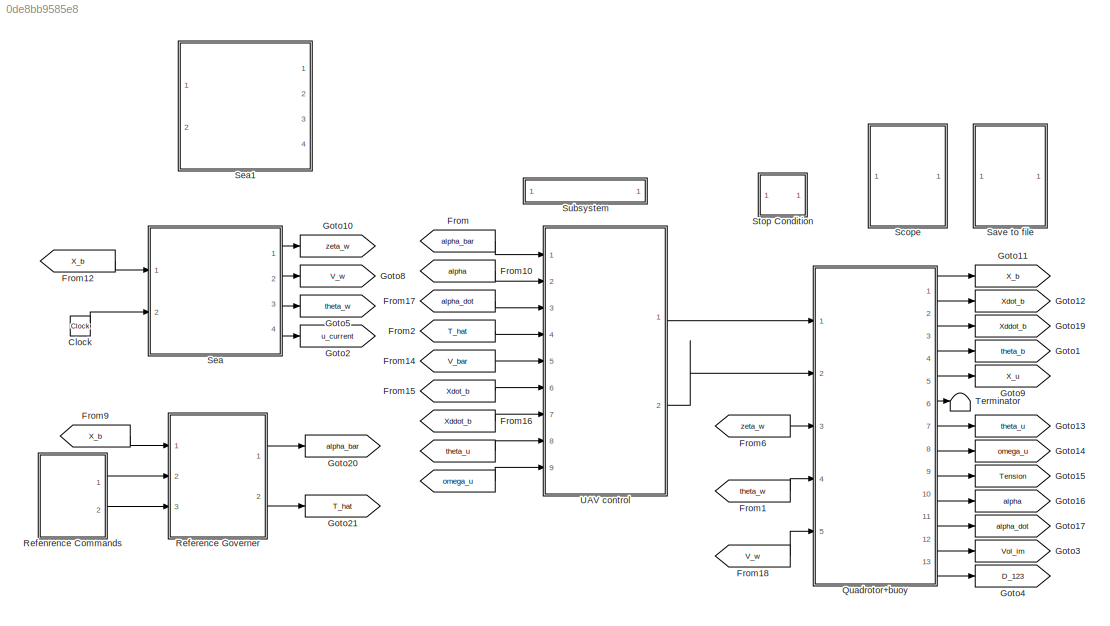
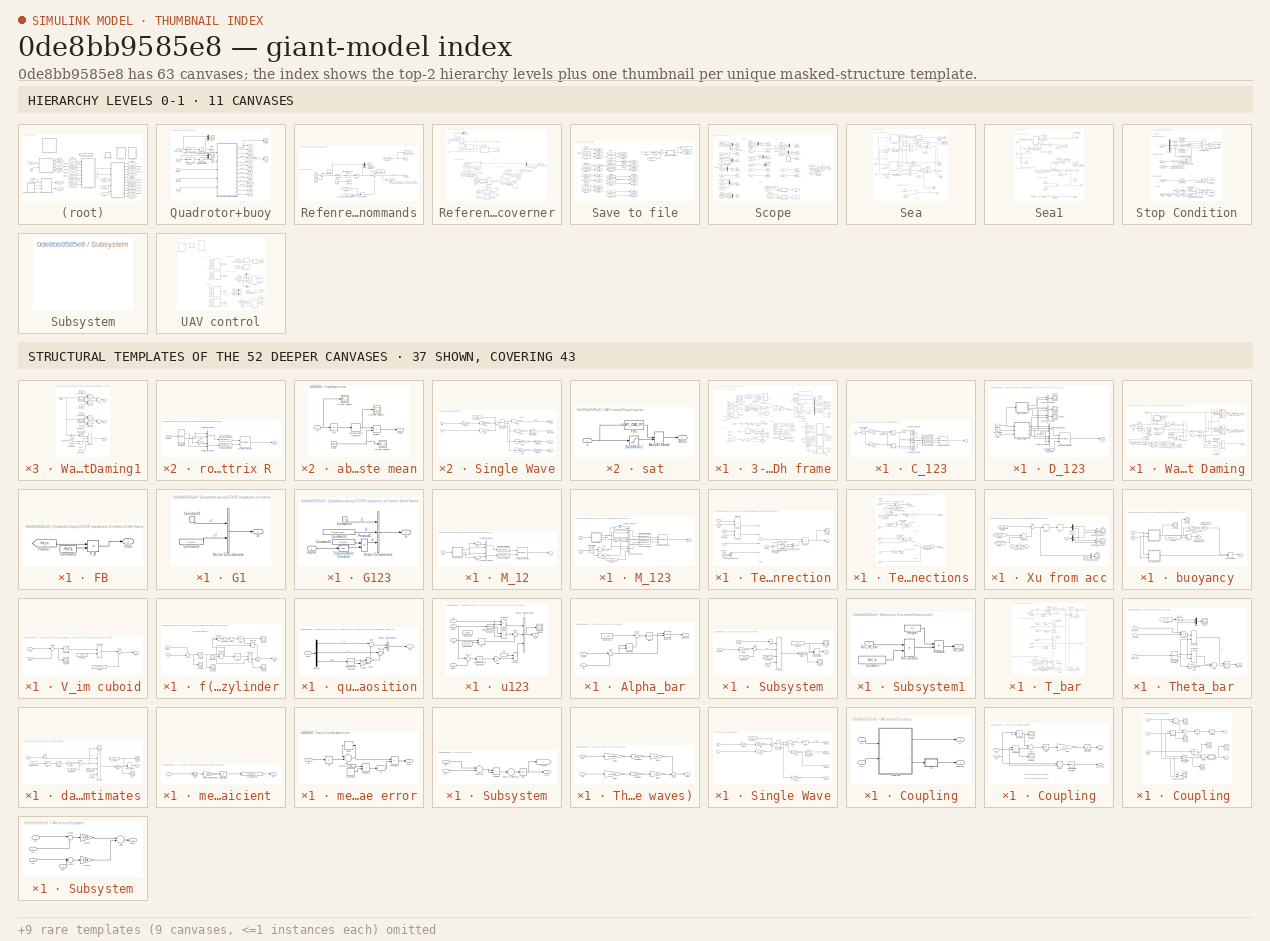
[diagram: thumbnail index - top-2 hierarchy levels (11 canvases) + 37 structural-template representatives of the remaining 52 canvases]
MODEL slx_0de8bb9585e8
KIND model
CONFIG AbsTol = auto
CONFIG EnableMultiTasking = off
CONFIG FixedStep = T
CONFIG MaxStep = auto
CONFIG MinStep = auto
CONFIG RelTol = 1e-3
CONFIG SampleTimeConstraint = Unconstrained
CONFIG Solver = ode4
CONFIG SolverName = ode4
CONFIG StartTime = 0.0
CONFIG StopTime = 60
BLOCK [From]    
  GotoTag = omega_u
  TagVisibility = global
BLOCK [From]     
  GotoTag = theta_u
  TagVisibility = global
BLOCK [Clock] Clock
BLOCK [From] From
  GotoTag = alpha_bar
  TagVisibility = global
BLOCK [From] From1
  GotoTag = theta_w
  TagVisibility = global
BLOCK [From] From10
  GotoTag = alpha
  TagVisibility = global
BLOCK [From] From12
  GotoTag = X_b
  TagVisibility = global
BLOCK [From] From14
  GotoTag = V_bar
  TagVisibility = global
BLOCK [From] From15
  GotoTag = Xdot_b
  TagVisibility = global
BLOCK [From] From16
  GotoTag = Xddot_b
  TagVisibility = global
BLOCK [From] From17
  GotoTag = alpha_dot
  TagVisibility = global
BLOCK [From] From18
  GotoTag = V_w
  TagVisibility = global
BLOCK [From] From2
  GotoTag = T_hat
  TagVisibility = global
BLOCK [From] From6
  GotoTag = zeta_w
  TagVisibility = global
BLOCK [From] From9
  GotoTag = X_b
  TagVisibility = global
BLOCK [Goto] Goto1
  GotoTag = theta_b
  TagVisibility = global
BLOCK [Goto] Goto10
  GotoTag = zeta_w
  TagVisibility = global
BLOCK [Goto] Goto11
  GotoTag = X_b
  TagVisibility = global
BLOCK [Goto] Goto12
  GotoTag = Xdot_b
  TagVisibility = global
BLOCK [Goto] Goto13
  GotoTag = theta_u
  TagVisibility = global
BLOCK [Goto] Goto14
  GotoTag = omega_u
  TagVisibility = global
BLOCK [Goto] Goto15
  GotoTag = Tension
  TagVisibility = global
BLOCK [Goto] Goto16
  GotoTag = alpha
  TagVisibility = global
BLOCK [Goto] Goto17
  GotoTag = alpha_dot
  TagVisibility = global
BLOCK [Goto] Goto19
  GotoTag = Xddot_b
  TagVisibility = global
BLOCK [Goto] Goto2
  GotoTag = u_current
  TagVisibility = global
BLOCK [Goto] Goto20
  GotoTag = alpha_bar
  TagVisibility = global
BLOCK [Goto] Goto21
  GotoTag = T_hat
  TagVisibility = global
BLOCK [Goto] Goto3
  GotoTag = Vol_im
  TagVisibility = global
BLOCK [Goto] Goto4
  GotoTag = D_123
  TagVisibility = global
BLOCK [Goto] Goto5
  GotoTag = theta_w
  TagVisibility = global
BLOCK [Goto] Goto8
  GotoTag = V_w
  TagVisibility = global
BLOCK [Goto] Goto9
  GotoTag = X_u
  TagVisibility = global
BLOCK [SubSystem] Quadrotor+buoy
  Ports = [5, 13]
  RequestExecContextInheritance = off
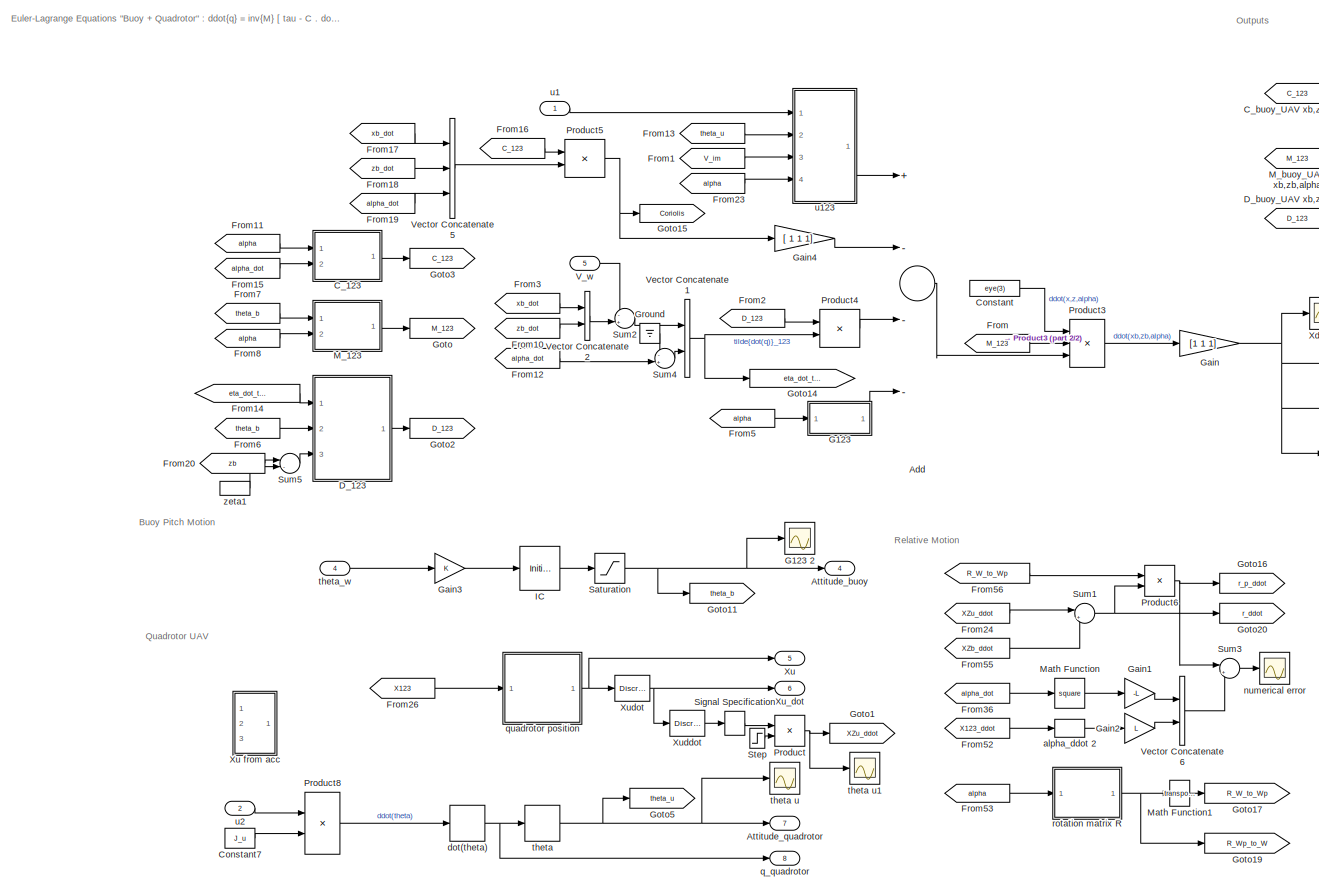
[diagram: Quadrotor+buoy/3-DOF equations of motion Earth frame - part 1/2, center side, full height]
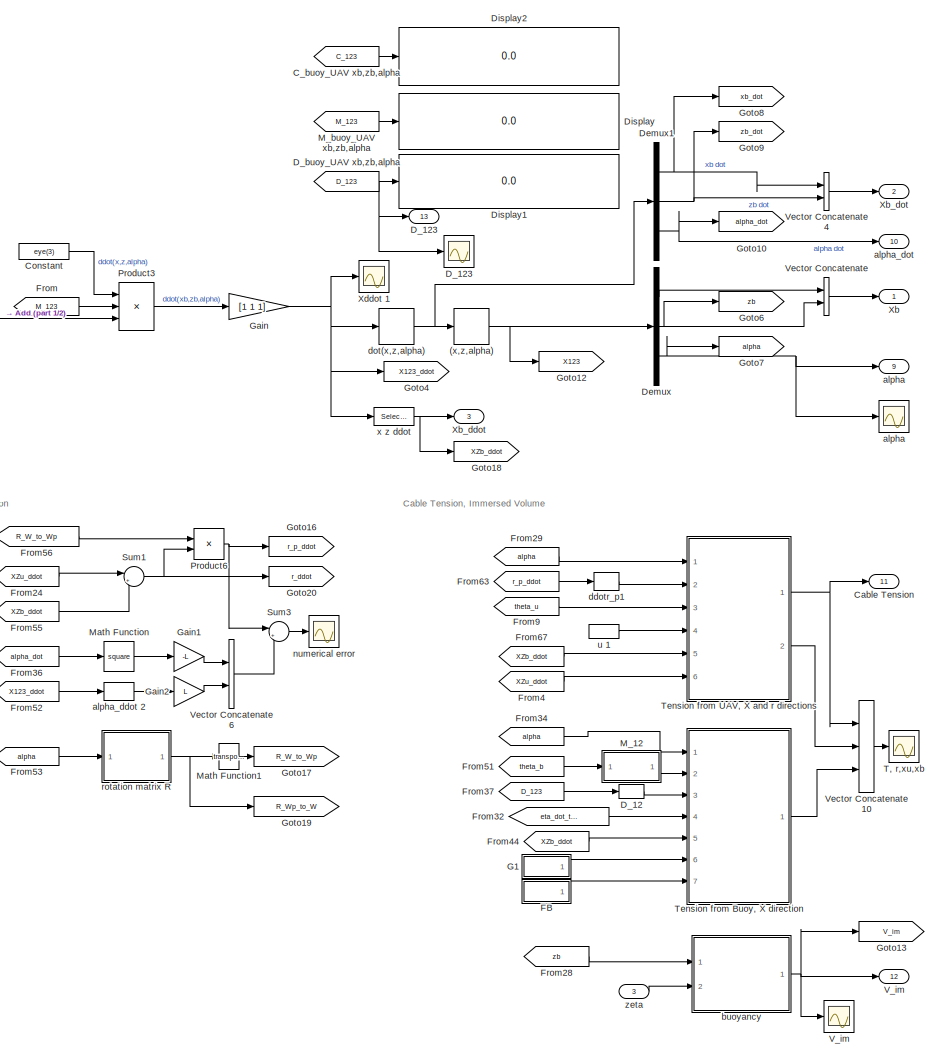
[diagram: Quadrotor+buoy/3-DOF equations of motion Earth frame - part 2/2, right side, full height]
BLOCK [SubSystem] Quadrotor+buoy/3-DOF equations of motion Earth frame
  Ports = [5, 13]
  RequestExecContextInheritance = off
BLOCK [DiscreteIntegrator] Quadrotor+buoy/3-DOF equations of motion Earth frame/(x,z,alpha)
  ICPrevOutput = DiscIntNeverNeededParam
  ICPrevScaledInput = DiscIntNeverNeededParam
  InitialCondition = [pos_b_ini alpha_0]
  InitialConditionSetting = Auto
  Ports = [1, 1]
  SampleTime = -1
BLOCK [Sum] Quadrotor+buoy/3-DOF equations of motion Earth frame/Add
  InputSameDT = off
  Inputs = +---
  OutDataTypeStr = Inherit: Inherit via internal rule
  Ports = [4, 1]
  SaturateOnIntegerOverflow = off
BLOCK [Outport] Quadrotor+buoy/3-DOF equations of motion Earth frame/Attitude_buoy
  IconDisplay = Port number
  InitialOutput = 0
  Port = 4
  Unit = rad/s^2
BLOCK [Outport] Quadrotor+buoy/3-DOF equations of motion Earth frame/Attitude_quadrotor
  IconDisplay = Port number
  InitialOutput = 0
  Port = 7
  Unit = rad
BLOCK [SubSystem] Quadrotor+buoy/3-DOF equations of motion Earth frame/C_123
  Ports = [2, 1]
  RequestExecContextInheritance = off
BLOCK [Outport] Quadrotor+buoy/3-DOF equations of motion Earth frame/C_123/C_123
  IconDisplay = Port number
BLOCK [Constant] Quadrotor+buoy/3-DOF equations of motion Earth frame/C_123/Constant
  Value = 0
BLOCK [Gain] Quadrotor+buoy/3-DOF equations of motion Earth frame/C_123/Gain
  Gain = -M_a
  OutDataTypeStr = Inherit: Inherit via internal rule
  ParamDataTypeStr = Inherit: Inherit via internal rule
  SaturateOnIntegerOverflow = off
BLOCK [Gain] Quadrotor+buoy/3-DOF equations of motion Earth frame/C_123/Gain1
  Gain = -M_a
  OutDataTypeStr = Inherit: Inherit via internal rule
  ParamDataTypeStr = Inherit: Inherit via internal rule
  SaturateOnIntegerOverflow = off
BLOCK [Product] Quadrotor+buoy/3-DOF equations of motion Earth frame/C_123/Product
  InputSameDT = off
  OutDataTypeStr = Inherit: Inherit via internal rule
  Ports = [2, 1]
  RndMeth = Floor
  SaturateOnIntegerOverflow = off
BLOCK [Product] Quadrotor+buoy/3-DOF equations of motion Earth frame/C_123/Product1
  InputSameDT = off
  OutDataTypeStr = Inherit: Inherit via internal rule
  Ports = [2, 1]
  RndMeth = Floor
  SaturateOnIntegerOverflow = off
BLOCK [SignalSpecification] Quadrotor+buoy/3-DOF equations of motion Earth frame/C_123/Signal Specification1
  Dimensions = 3
BLOCK [SignalSpecification] Quadrotor+buoy/3-DOF equations of motion Earth frame/C_123/Signal Specification2
  Dimensions = 3
BLOCK [SignalSpecification] Quadrotor+buoy/3-DOF equations of motion Earth frame/C_123/Signal Specification3
  Dimensions = 3
BLOCK [Trigonometry] Quadrotor+buoy/3-DOF equations of motion Earth frame/C_123/Trigonometric Function
  Operator = sincos
  Ports = [1, 2]
BLOCK [Concatenate] Quadrotor+buoy/3-DOF equations of motion Earth frame/C_123/Vector Concatenate1
  ConcatenateDimension = 2
  Mode = Multidimensional array
  NumInputs = 3
  Ports = [3, 1]
BLOCK [Concatenate] Quadrotor+buoy/3-DOF equations of motion Earth frame/C_123/Vector Concatenate2
  NumInputs = 3
  Ports = [3, 1]
BLOCK [Concatenate] Quadrotor+buoy/3-DOF equations of motion Earth frame/C_123/Vector Concatenate3
  NumInputs = 3
  Ports = [3, 1]
BLOCK [Concatenate] Quadrotor+buoy/3-DOF equations of motion Earth frame/C_123/Vector Concatenate4
  NumInputs = 3
  Ports = [3, 1]
BLOCK [Inport] Quadrotor+buoy/3-DOF equations of motion Earth frame/C_123/alpha 
  IconDisplay = Port number
BLOCK [Inport] Quadrotor+buoy/3-DOF equations of motion Earth frame/C_123/alpha_dot
  IconDisplay = Port number
  Port = 2
BLOCK [From] Quadrotor+buoy/3-DOF equations of motion Earth frame/C_buoy_UAV xb,zb,alpha
  GotoTag = C_123
BLOCK [Outport] Quadrotor+buoy/3-DOF equations of motion Earth frame/Cable Tension
  IconDisplay = Port number
  InitialOutput = 0
  Port = 11
  Unit = rad/s^2
BLOCK [Constant] Quadrotor+buoy/3-DOF equations of motion Earth frame/Constant
  Value = eye(3)
BLOCK [Constant] Quadrotor+buoy/3-DOF equations of motion Earth frame/Constant7
  Value = J_u
BLOCK [Selector] Quadrotor+buoy/3-DOF equations of motion Earth frame/D_12
  Commented = on
  IndexOptions = Starting index (dialog),Starting index (dialog)
  Indices = 1,1
  InputPortWidth = 3
  NumberOfDimensions = 2
  OutputSizes = 2,2
  Ports = [1, 1]
BLOCK [SubSystem] Quadrotor+buoy/3-DOF equations of motion Earth frame/D_123
  Ports = [3, 1]
  RequestExecContextInheritance = off
BLOCK [Outport] Quadrotor+buoy/3-DOF equations of motion Earth frame/D_123 
  IconDisplay = Port number
  InitialOutput = 0
  Port = 13
  Unit = m
BLOCK [Scope] Quadrotor+buoy/3-DOF equations of motion Earth frame/D_123   
  Floating = off
  NumInputPorts = 1
  Ports = [1]
  ScopeSpecificationString = Simulink.scopes.TimeScopeBlockCfg('CurrentConfiguration', extmgr.ConfigurationSet(extmgr.Configuration('Core','General UI',true),extmgr.Configuration('Core','Source UI',true),extmgr.Configuration('Sources','WiredSimulink',true,'DataLoggingVariableName','ScopeData9','DataLoggingSaveFormat','Array','DataLoggingDecimation','1','DataLoggingDecimateData',true),extmgr.Configuration('Visuals','Time Domai...<+1987ch>
BLOCK [Constant] Quadrotor+buoy/3-DOF equations of motion Earth frame/D_123/Constant6
  Value = [0 0 0]
BLOCK [Constant] Quadrotor+buoy/3-DOF equations of motion Earth frame/D_123/Constant7
  Value = 0
BLOCK [Outport] Quadrotor+buoy/3-DOF equations of motion Earth frame/D_123/D_123
  IconDisplay = Port number
BLOCK [Scope] Quadrotor+buoy/3-DOF equations of motion Earth frame/D_123/Scope
  Floating = off
  NumInputPorts = 1
  Ports = [1]
  ScopeSpecificationString = Simulink.scopes.TimeScopeBlockCfg('CurrentConfiguration', extmgr.ConfigurationSet(extmgr.Configuration('Core','General UI',true),extmgr.Configuration('Core','Source UI',true),extmgr.Configuration('Sources','WiredSimulink',true,'DataLoggingVariableName','ScopeData28'),extmgr.Configuration('Visuals','Time Domain',true,'SerializedDisplays',{struct('MinYLimReal','-0.3721','MaxYLimReal','3.34888','YLab...<+1463ch>
BLOCK [Scope] Quadrotor+buoy/3-DOF equations of motion Earth frame/D_123/Scope1
  Floating = off
  NumInputPorts = 1
  Ports = [1]
  ScopeSpecificationString = Simulink.scopes.TimeScopeBlockCfg('CurrentConfiguration', extmgr.ConfigurationSet(extmgr.Configuration('Core','General UI',true),extmgr.Configuration('Core','Source UI',true),extmgr.Configuration('Sources','WiredSimulink',true,'DataLoggingVariableName','ScopeData29'),extmgr.Configuration('Visuals','Time Domain',true,'SerializedDisplays',{struct('MinYLimReal','27.04442','MaxYLimReal','32.1785','YLa...<+1494ch>
BLOCK [Scope] Quadrotor+buoy/3-DOF equations of motion Earth frame/D_123/Scope2
  Floating = off
  NumInputPorts = 1
  Ports = [1]
  ScopeSpecificationString = Simulink.scopes.TimeScopeBlockCfg('CurrentConfiguration', extmgr.ConfigurationSet(extmgr.Configuration('Core','General UI',true),extmgr.Configuration('Core','Source UI',true),extmgr.Configuration('Sources','WiredSimulink',true,'DataLoggingVariableName','ScopeData30'),extmgr.Configuration('Visuals','Time Domain',true,'SerializedDisplays',{struct('MinYLimReal','-3.17267','MaxYLimReal','3.17267','YLa...<+1417ch>
BLOCK [Concatenate] Quadrotor+buoy/3-DOF equations of motion Earth frame/D_123/Vector Concatenate1
  ConcatenateDimension = 2
  Mode = Multidimensional array
  NumInputs = 3
  Ports = [3, 1]
BLOCK [Concatenate] Quadrotor+buoy/3-DOF equations of motion Earth frame/D_123/Vector Concatenate2
  NumInputs = 3
  Ports = [3, 1]
BLOCK [Concatenate] Quadrotor+buoy/3-DOF equations of motion Earth frame/D_123/Vector Concatenate3
  NumInputs = 3
  Ports = [3, 1]
BLOCK [Concatenate] Quadrotor+buoy/3-DOF equations of motion Earth frame/D_123/Vector Concatenate4
  Ports = [2, 1]
BLOCK [Concatenate] Quadrotor+buoy/3-DOF equations of motion Earth frame/D_123/Vector Concatenate5
  Ports = [2, 1]
BLOCK [Concatenate] Quadrotor+buoy/3-DOF equations of motion Earth frame/D_123/Vector Concatenate6
  Ports = [2, 1]
BLOCK [SubSystem] Quadrotor+buoy/3-DOF equations of motion Earth frame/D_123/Water Daming
  Ports = [3, 3]
  RequestExecContextInheritance = off
BLOCK [Abs] Quadrotor+buoy/3-DOF equations of motion Earth frame/D_123/Water Daming/Abs
  SaturateOnIntegerOverflow = off
BLOCK [Abs] Quadrotor+buoy/3-DOF equations of motion Earth frame/D_123/Water Daming/Abs3
  SaturateOnIntegerOverflow = off
BLOCK [Sum] Quadrotor+buoy/3-DOF equations of motion Earth frame/D_123/Water Daming/Add1
  InputSameDT = off
  OutDataTypeStr = Inherit: Inherit via internal rule
  Ports = [2, 1]
  SaturateOnIntegerOverflow = off
BLOCK [Sum] Quadrotor+buoy/3-DOF equations of motion Earth frame/D_123/Water Daming/Add2
  InputSameDT = off
  OutDataTypeStr = Inherit: Inherit via internal rule
  Ports = [2, 1]
  SaturateOnIntegerOverflow = off
BLOCK [Sum] Quadrotor+buoy/3-DOF equations of motion Earth frame/D_123/Water Daming/Add3
  InputSameDT = off
  Inputs = +-
  OutDataTypeStr = Inherit: Inherit via internal rule
  Ports = [2, 1]
  SaturateOnIntegerOverflow = off
BLOCK [Bias] Quadrotor+buoy/3-DOF equations of motion Earth frame/D_123/Water Daming/Bias
  Bias = h_b/2
  SaturateOnIntegerOverflow = off
BLOCK [Bias] Quadrotor+buoy/3-DOF equations of motion Earth frame/D_123/Water Daming/Bias2
  Bias = b_11
  SaturateOnIntegerOverflow = off
BLOCK [Bias] Quadrotor+buoy/3-DOF equations of motion Earth frame/D_123/Water Daming/Bias3
  Bias = b_33
  SaturateOnIntegerOverflow = off
BLOCK [Fcn] Quadrotor+buoy/3-DOF equations of motion Earth frame/D_123/Water Daming/C_S
  Expr = 0.075/(log10(u(1))-2)^2
BLOCK [Fcn] Quadrotor+buoy/3-DOF equations of motion Earth frame/D_123/Water Daming/C_S Lewis1988
  Expr = 0.075/(log10(u(1))-2)^2
BLOCK [Constant] Quadrotor+buoy/3-DOF equations of motion Earth frame/D_123/Water Daming/Constant1
  Value = 0.5*rho_w
BLOCK [Constant] Quadrotor+buoy/3-DOF equations of motion Earth frame/D_123/Water Daming/Constant13
  Value = 2
BLOCK [Constant] Quadrotor+buoy/3-DOF equations of motion Earth frame/D_123/Water Daming/Constant3
  Value = C_S
BLOCK [Outport] Quadrotor+buoy/3-DOF equations of motion Earth frame/D_123/Water Daming/D11_I
  IconDisplay = Port number
BLOCK [Outport] Quadrotor+buoy/3-DOF equations of motion Earth frame/D_123/Water Daming/D12_I
  IconDisplay = Port number
  Port = 3
BLOCK [Outport] Quadrotor+buoy/3-DOF equations of motion Earth frame/D_123/Water Daming/D22_I
  IconDisplay = Port number
  Port = 2
BLOCK [Gain] Quadrotor+buoy/3-DOF equations of motion Earth frame/D_123/Water Daming/Gain
  Gain = 2
  OutDataTypeStr = Inherit: Inherit via internal rule
  ParamDataTypeStr = Inherit: Inherit via internal rule
  SaturateOnIntegerOverflow = off
BLOCK [Gain] Quadrotor+buoy/3-DOF equations of motion Earth frame/D_123/Water Daming/Gain1
  Gain = 2*l_b
  OutDataTypeStr = Inherit: Inherit via internal rule
  ParamDataTypeStr = Inherit: Inherit via internal rule
  SaturateOnIntegerOverflow = off
BLOCK [ManualSwitch] Quadrotor+buoy/3-DOF equations of motion Earth frame/D_123/Water Daming/Manual Switch
  CurrentSetting = 0
BLOCK [Math] Quadrotor+buoy/3-DOF equations of motion Earth frame/D_123/Water Daming/Math Function
  Operator = transpose
  Ports = [1, 1]
BLOCK [Product] Quadrotor+buoy/3-DOF equations of motion Earth frame/D_123/Water Daming/Product
  InputSameDT = off
  Inputs = 3
  OutDataTypeStr = Inherit: Inherit via internal rule
  Ports = [3, 1]
  RndMeth = Floor
  SaturateOnIntegerOverflow = off
BLOCK [Product] Quadrotor+buoy/3-DOF equations of motion Earth frame/D_123/Water Daming/Product1
  InputSameDT = off
  Inputs = 4
  OutDataTypeStr = Inherit: Inherit via internal rule
  Ports = [4, 1]
  RndMeth = Floor
  SaturateOnIntegerOverflow = off
BLOCK [Product] Quadrotor+buoy/3-DOF equations of motion Earth frame/D_123/Water Daming/Product6
  InputSameDT = off
  Inputs = 3
  OutDataTypeStr = Inherit: Inherit via internal rule
  Ports = [3, 1]
  RndMeth = Floor
  SaturateOnIntegerOverflow = off
BLOCK [Product] Quadrotor+buoy/3-DOF equations of motion Earth frame/D_123/Water Daming/Product7
  InputSameDT = off
  Inputs = 3
  OutDataTypeStr = Inherit: Inherit via internal rule
  Ports = [3, 1]
  RndMeth = Floor
  SaturateOnIntegerOverflow = off
BLOCK [Product] Quadrotor+buoy/3-DOF equations of motion Earth frame/D_123/Water Daming/Product8
  InputSameDT = off
  Inputs = 3
  OutDataTypeStr = Inherit: Inherit via internal rule
  Ports = [3, 1]
  RndMeth = Floor
  SaturateOnIntegerOverflow = off
BLOCK [Product] Quadrotor+buoy/3-DOF equations of motion Earth frame/D_123/Water Daming/Product9
  InputSameDT = off
  Inputs = **/
  OutDataTypeStr = Inherit: Inherit via internal rule
  Ports = [3, 1]
  RndMeth = Floor
  SaturateOnIntegerOverflow = off
BLOCK [Gain] Quadrotor+buoy/3-DOF equations of motion Earth frame/D_123/Water Daming/Re Reynolds number
  Gain = l_b/nu_w
  OutDataTypeStr = Inherit: Inherit via internal rule
  ParamDataTypeStr = Inherit: Inherit via internal rule
  SaturateOnIntegerOverflow = off
BLOCK [Selector] Quadrotor+buoy/3-DOF equations of motion Earth frame/D_123/Water Daming/Re_Vbx
  IndexOptions = Index vector (dialog)
  Indices = 1
  InputPortWidth = 2
  OutputSizes = 1
  Ports = [1, 1]
BLOCK [Selector] Quadrotor+buoy/3-DOF equations of motion Earth frame/D_123/Water Daming/Re_Vbz
  IndexOptions = Index vector (dialog)
  Indices = 2
  InputPortWidth = 2
  OutputSizes = 1
  Ports = [1, 1]
BLOCK [Saturate] Quadrotor+buoy/3-DOF equations of motion Earth frame/D_123/Water Daming/Saturation
  InputPortMap = u0
  LowerLimit = 0
  Ports = [1, 1]
  UpperLimit = h_b
BLOCK [Saturate] Quadrotor+buoy/3-DOF equations of motion Earth frame/D_123/Water Daming/Saturation1
  InputPortMap = u0
  LowerLimit = 0.5*10^5
  Ports = [1, 1]
  UpperLimit = inf
BLOCK [Scope] Quadrotor+buoy/3-DOF equations of motion Earth frame/D_123/Water Daming/Scope2
  Floating = off
  NumInputPorts = 1
  Ports = [1]
  ScopeSpecificationString = Simulink.scopes.TimeScopeBlockCfg('CurrentConfiguration', extmgr.ConfigurationSet(extmgr.Configuration('Core','General UI',true),extmgr.Configuration('Core','Source UI',true),extmgr.Configuration('Sources','WiredSimulink',true,'DataLoggingVariableName','ScopeData2'),extmgr.Configuration('Visuals','Time Domain',true,'SerializedDisplays',{struct('MinYLimReal','0.00307','MaxYLimReal','0.0111','YLabel...<+1515ch>
BLOCK [Scope] Quadrotor+buoy/3-DOF equations of motion Earth frame/D_123/Water Daming/Scope5
  Floating = off
  NumInputPorts = 1
  Ports = [1]
  ScopeSpecificationString = Simulink.scopes.TimeScopeBlockCfg('CurrentConfiguration', extmgr.ConfigurationSet(extmgr.Configuration('Core','General UI',true),extmgr.Configuration('Core','Source UI',true),extmgr.Configuration('Sources','WiredSimulink',true,'DataLoggingVariableName','ScopeData6'),extmgr.Configuration('Visuals','Time Domain',true,'SerializedDisplays',{struct('MinYLimReal','0.01981','MaxYLimReal','0.09333','YLabe...<+1461ch>
BLOCK [Scope] Quadrotor+buoy/3-DOF equations of motion Earth frame/D_123/Water Daming/Scope6
  Floating = off
  NumInputPorts = 1
  Ports = [1]
  ScopeSpecificationString = Simulink.scopes.TimeScopeBlockCfg('CurrentConfiguration', extmgr.ConfigurationSet(extmgr.Configuration('Core','General UI',true),extmgr.Configuration('Core','Source UI',true),extmgr.Configuration('Sources','WiredSimulink',true,'DataLoggingVariableName','ScopeData1'),extmgr.Configuration('Visuals','Time Domain',true,'SerializedDisplays',{struct('MinYLimReal','-1.27328','MaxYLimReal','6.40036','YLab...<+1384ch>
BLOCK [Selector] Quadrotor+buoy/3-DOF equations of motion Earth frame/D_123/Water Daming/Selector
  IndexOptions = Index vector (dialog)
  Indices = [1 2]
  InputPortWidth = 3
  OutputSizes = 1
  Ports = [1, 1]
BLOCK [SignalSpecification] Quadrotor+buoy/3-DOF equations of motion Earth frame/D_123/Water Daming/Signal Specification
  Dimensions = 1
BLOCK [SignalSpecification] Quadrotor+buoy/3-DOF equations of motion Earth frame/D_123/Water Daming/Signal Specification1
  Dimensions = 1
BLOCK [Sum] Quadrotor+buoy/3-DOF equations of motion Earth frame/D_123/Water Daming/Sum5
  IconShape = round
  InputSameDT = off
  Inputs = |++
  OutDataTypeStr = Inherit: Inherit via internal rule
  Ports = [2, 1]
BLOCK [Trigonometry] Quadrotor+buoy/3-DOF equations of motion Earth frame/D_123/Water Daming/Trigonometric Function1
  Operator = sincos
  Ports = [1, 2]
BLOCK [Trigonometry] Quadrotor+buoy/3-DOF equations of motion Earth frame/D_123/Water Daming/Trigonometric Function2
  Operator = sincos
  Ports = [1, 2]
BLOCK [Trigonometry] Quadrotor+buoy/3-DOF equations of motion Earth frame/D_123/Water Daming/Trigonometric Function3
  Ports = [1, 1]
BLOCK [Concatenate] Quadrotor+buoy/3-DOF equations of motion Earth frame/D_123/Water Daming/Vector Concatenate
  Ports = [2, 1]
BLOCK [Constant] Quadrotor+buoy/3-DOF equations of motion Earth frame/D_123/Water Daming/bottom plan
  Value = l_b*h_b
BLOCK [Inport] Quadrotor+buoy/3-DOF equations of motion Earth frame/D_123/Water Daming/dh
  IconDisplay = Port number
  Port = 3
BLOCK [Inport] Quadrotor+buoy/3-DOF equations of motion Earth frame/D_123/Water Daming/eta_dot_tilde
  IconDisplay = Port number
  Port = 2
BLOCK [SubSystem] Quadrotor+buoy/3-DOF equations of motion Earth frame/D_123/Water Daming/rotation matrix R body to earth
  Ports = [1, 1]
  RequestExecContextInheritance = off
BLOCK [Gain] Quadrotor+buoy/3-DOF equations of motion Earth frame/D_123/Water Daming/rotation matrix R body to earth/Gain
  Gain = -1
  OutDataTypeStr = Inherit: Inherit via internal rule
  ParamDataTypeStr = Inherit: Inherit via internal rule
  SaturateOnIntegerOverflow = off
BLOCK [Outport] Quadrotor+buoy/3-DOF equations of motion Earth frame/D_123/Water Daming/rotation matrix R body to earth/R
  IconDisplay = Port number
BLOCK [SignalSpecification] Quadrotor+buoy/3-DOF equations of motion Earth frame/D_123/Water Daming/rotation matrix R body to earth/Signal Specification1
  Dimensions = 2
BLOCK [SignalSpecification] Quadrotor+buoy/3-DOF equations of motion Earth frame/D_123/Water Daming/rotation matrix R body to earth/Signal Specification2
  Dimensions = 2
BLOCK [Trigonometry] Quadrotor+buoy/3-DOF equations of motion Earth frame/D_123/Water Daming/rotation matrix R body to earth/Trigonometric Function1
  Operator = sincos
  Ports = [1, 2]
BLOCK [Concatenate] Quadrotor+buoy/3-DOF equations of motion Earth frame/D_123/Water Daming/rotation matrix R body to earth/Vector Concatenate1
  ConcatenateDimension = 2
  Mode = Multidimensional array
  Ports = [2, 1]
BLOCK [Concatenate] Quadrotor+buoy/3-DOF equations of motion Earth frame/D_123/Water Daming/rotation matrix R body to earth/Vector Concatenate2
  Ports = [2, 1]
BLOCK [Concatenate] Quadrotor+buoy/3-DOF equations of motion Earth frame/D_123/Water Daming/rotation matrix R body to earth/Vector Concatenate3
  Ports = [2, 1]
BLOCK [Inport] Quadrotor+buoy/3-DOF equations of motion Earth frame/D_123/Water Daming/rotation matrix R body to earth/angle (rad)
  IconDisplay = Port number
BLOCK [Inport] Quadrotor+buoy/3-DOF equations of motion Earth frame/D_123/Water Daming/theta_b
  IconDisplay = Port number
BLOCK [Product] Quadrotor+buoy/3-DOF equations of motion Earth frame/D_123/Water Daming/tilde{nu}_12
  InputSameDT = off
  Multiplication = Matrix(*)
  OutDataTypeStr = Inherit: Inherit via internal rule
  Ports = [2, 1]
  RndMeth = Floor
  SaturateOnIntegerOverflow = off
BLOCK [Selector] Quadrotor+buoy/3-DOF equations of motion Earth frame/D_123/Water Daming/x
  IndexOptions = Index vector (dialog)
  Indices = 1
  InputPortWidth = 2
  OutputSizes = 1
  Ports = [1, 1]
BLOCK [Selector] Quadrotor+buoy/3-DOF equations of motion Earth frame/D_123/Water Daming/z
  IndexOptions = Index vector (dialog)
  Indices = 1
  InputPortWidth = 2
  OutputSizes = 1
  Ports = [1, 1]
BLOCK [SubSystem] Quadrotor+buoy/3-DOF equations of motion Earth frame/D_123/Water Daming1
  Ports = [1, 3]
  RequestExecContextInheritance = off
BLOCK [Sum] Quadrotor+buoy/3-DOF equations of motion Earth frame/D_123/Water Daming1/Add1
  InputSameDT = off
  OutDataTypeStr = Inherit: Inherit via internal rule
  Ports = [2, 1]
  SaturateOnIntegerOverflow = off
BLOCK [Sum] Quadrotor+buoy/3-DOF equations of motion Earth frame/D_123/Water Daming1/Add2
  InputSameDT = off
  OutDataTypeStr = Inherit: Inherit via internal rule
  Ports = [2, 1]
  SaturateOnIntegerOverflow = off
BLOCK [Sum] Quadrotor+buoy/3-DOF equations of motion Earth frame/D_123/Water Daming1/Add3
  InputSameDT = off
  Inputs = +-
  OutDataTypeStr = Inherit: Inherit via internal rule
  Ports = [2, 1]
  SaturateOnIntegerOverflow = off
BLOCK [Constant] Quadrotor+buoy/3-DOF equations of motion Earth frame/D_123/Water Daming1/Constant10
  Value = D_z
BLOCK [Constant] Quadrotor+buoy/3-DOF equations of motion Earth frame/D_123/Water Daming1/Constant11
  Value = D_x
BLOCK [Constant] Quadrotor+buoy/3-DOF equations of motion Earth frame/D_123/Water Daming1/Constant12
  Value = D_z
BLOCK [Constant] Quadrotor+buoy/3-DOF equations of motion Earth frame/D_123/Water Daming1/Constant13
  Value = 2
BLOCK [Constant] Quadrotor+buoy/3-DOF equations of motion Earth frame/D_123/Water Daming1/Constant7
  Value = D_x
BLOCK [Constant] Quadrotor+buoy/3-DOF equations of motion Earth frame/D_123/Water Daming1/Constant8
  Value = D_z
BLOCK [Constant] Quadrotor+buoy/3-DOF equations of motion Earth frame/D_123/Water Daming1/Constant9
  Value = D_x
BLOCK [Outport] Quadrotor+buoy/3-DOF equations of motion Earth frame/D_123/Water Daming1/D11_I
  IconDisplay = Port number
BLOCK [Outport] Quadrotor+buoy/3-DOF equations of motion Earth frame/D_123/Water Daming1/D12_I
  IconDisplay = Port number
  Port = 3
BLOCK [Outport] Quadrotor+buoy/3-DOF equations of motion Earth frame/D_123/Water Daming1/D22_I
  IconDisplay = Port number
  Port = 2
BLOCK [Gain] Quadrotor+buoy/3-DOF equations of motion Earth frame/D_123/Water Daming1/Gain
  Gain = 2
  OutDataTypeStr = Inherit: Inherit via internal rule
  ParamDataTypeStr = Inherit: Inherit via internal rule
  SaturateOnIntegerOverflow = off
BLOCK [Product] Quadrotor+buoy/3-DOF equations of motion Earth frame/D_123/Water Daming1/Product
  InputSameDT = off
  Inputs = 3
  OutDataTypeStr = Inherit: Inherit via internal rule
  Ports = [3, 1]
  RndMeth = Floor
  SaturateOnIntegerOverflow = off
BLOCK [Product] Quadrotor+buoy/3-DOF equations of motion Earth frame/D_123/Water Daming1/Product6
  InputSameDT = off
  Inputs = 3
  OutDataTypeStr = Inherit: Inherit via internal rule
  Ports = [3, 1]
  RndMeth = Floor
  SaturateOnIntegerOverflow = off
BLOCK [Product] Quadrotor+buoy/3-DOF equations of motion Earth frame/D_123/Water Daming1/Product7
  InputSameDT = off
  Inputs = 3
  OutDataTypeStr = Inherit: Inherit via internal rule
  Ports = [3, 1]
  RndMeth = Floor
  SaturateOnIntegerOverflow = off
BLOCK [Product] Quadrotor+buoy/3-DOF equations of motion Earth frame/D_123/Water Daming1/Product8
  InputSameDT = off
  Inputs = 3
  OutDataTypeStr = Inherit: Inherit via internal rule
  Ports = [3, 1]
  RndMeth = Floor
  SaturateOnIntegerOverflow = off
BLOCK [Product] Quadrotor+buoy/3-DOF equations of motion Earth frame/D_123/Water Daming1/Product9
  InputSameDT = off
  Inputs = **/
  OutDataTypeStr = Inherit: Inherit via internal rule
  Ports = [3, 1]
  RndMeth = Floor
  SaturateOnIntegerOverflow = off
BLOCK [Trigonometry] Quadrotor+buoy/3-DOF equations of motion Earth frame/D_123/Water Daming1/Trigonometric Function1
  Operator = sincos
  Ports = [1, 2]
BLOCK [Trigonometry] Quadrotor+buoy/3-DOF equations of motion Earth frame/D_123/Water Daming1/Trigonometric Function2
  Operator = sincos
  Ports = [1, 2]
BLOCK [Trigonometry] Quadrotor+buoy/3-DOF equations of motion Earth frame/D_123/Water Daming1/Trigonometric Function3
  Ports = [1, 1]
BLOCK [Inport] Quadrotor+buoy/3-DOF equations of motion Earth frame/D_123/Water Daming1/theta
  IconDisplay = Port number
BLOCK [Inport] Quadrotor+buoy/3-DOF equations of motion Earth frame/D_123/dh
  IconDisplay = Port number
  Port = 3
BLOCK [Inport] Quadrotor+buoy/3-DOF equations of motion Earth frame/D_123/eta_dot_tilde
  IconDisplay = Port number
BLOCK [Inport] Quadrotor+buoy/3-DOF equations of motion Earth frame/D_123/theta_b
  IconDisplay = Port number
  Port = 2
BLOCK [From] Quadrotor+buoy/3-DOF equations of motion Earth frame/D_buoy_UAV xb,zb,alpha
  GotoTag = D_123
BLOCK [Demux] Quadrotor+buoy/3-DOF equations of motion Earth frame/Demux
  DisplayOption = bar
  Outputs = 3
  Ports = [1, 3]
BLOCK [Demux] Quadrotor+buoy/3-DOF equations of motion Earth frame/Demux1
  DisplayOption = bar
  Outputs = 3
  Ports = [1, 3]
BLOCK [Display] Quadrotor+buoy/3-DOF equations of motion Earth frame/Display
  Decimation = 1
  Ports = [1]
BLOCK [Display] Quadrotor+buoy/3-DOF equations of motion Earth frame/Display1
  Decimation = 1
  Ports = [1]
BLOCK [Display] Quadrotor+buoy/3-DOF equations of motion Earth frame/Display2
  Decimation = 1
  Ports = [1]
BLOCK [SubSystem] Quadrotor+buoy/3-DOF equations of motion Earth frame/FB
  Commented = on
  Ports = [0, 1]
  RequestExecContextInheritance = off
BLOCK [Constant] Quadrotor+buoy/3-DOF equations of motion Earth frame/FB/Constant1
  Value = rho_w*g
BLOCK [Product] Quadrotor+buoy/3-DOF equations of motion Earth frame/FB/F_B
  InputSameDT = off
  OutDataTypeStr = Inherit: Inherit via internal rule
  Ports = [2, 1]
  RndMeth = Floor
  SaturateOnIntegerOverflow = off
BLOCK [From] Quadrotor+buoy/3-DOF equations of motion Earth frame/FB/From57
  GotoTag = Vol_im
  TagVisibility = global
BLOCK [Outport] Quadrotor+buoy/3-DOF equations of motion Earth frame/FB/Out1
  IconDisplay = Port number
BLOCK [From] Quadrotor+buoy/3-DOF equations of motion Earth frame/From
  GotoTag = M_123
BLOCK [From] Quadrotor+buoy/3-DOF equations of motion Earth frame/From1
  GotoTag = V_im
BLOCK [From] Quadrotor+buoy/3-DOF equations of motion Earth frame/From10
  GotoTag = zb_dot
BLOCK [From] Quadrotor+buoy/3-DOF equations of motion Earth frame/From11
  GotoTag = alpha
BLOCK [From] Quadrotor+buoy/3-DOF equations of motion Earth frame/From12
  GotoTag = alpha_dot
BLOCK [From] Quadrotor+buoy/3-DOF equations of motion Earth frame/From13
  GotoTag = theta_u
BLOCK [From] Quadrotor+buoy/3-DOF equations of motion Earth frame/From14
  GotoTag = eta_dot_tilde_123
BLOCK [From] Quadrotor+buoy/3-DOF equations of motion Earth frame/From15
  GotoTag = alpha_dot
BLOCK [From] Quadrotor+buoy/3-DOF equations of motion Earth frame/From16
  GotoTag = C_123
BLOCK [From] Quadrotor+buoy/3-DOF equations of motion Earth frame/From17
  GotoTag = xb_dot
BLOCK [From] Quadrotor+buoy/3-DOF equations of motion Earth frame/From18
  GotoTag = zb_dot
BLOCK [From] Quadrotor+buoy/3-DOF equations of motion Earth frame/From19
  GotoTag = alpha_dot
BLOCK [From] Quadrotor+buoy/3-DOF equations of motion Earth frame/From2
  GotoTag = D_123
BLOCK [From] Quadrotor+buoy/3-DOF equations of motion Earth frame/From20
  GotoTag = zb
BLOCK [From] Quadrotor+buoy/3-DOF equations of motion Earth frame/From23
  GotoTag = alpha
BLOCK [From] Quadrotor+buoy/3-DOF equations of motion Earth frame/From24
  GotoTag = XZu_ddot
BLOCK [From] Quadrotor+buoy/3-DOF equations of motion Earth frame/From26
  GotoTag = X123
BLOCK [From] Quadrotor+buoy/3-DOF equations of motion Earth frame/From28
  GotoTag = zb
BLOCK [From] Quadrotor+buoy/3-DOF equations of motion Earth frame/From29
  GotoTag = alpha
BLOCK [From] Quadrotor+buoy/3-DOF equations of motion Earth frame/From3
  GotoTag = xb_dot
BLOCK [From] Quadrotor+buoy/3-DOF equations of motion Earth frame/From32
  Commented = on
  GotoTag = eta_dot_tilde_12
BLOCK [From] Quadrotor+buoy/3-DOF equations of motion Earth frame/From34
  Commented = on
  GotoTag = alpha
BLOCK [From] Quadrotor+buoy/3-DOF equations of motion Earth frame/From36
  GotoTag = alpha_dot
BLOCK [From] Quadrotor+buoy/3-DOF equations of motion Earth frame/From37
  Commented = on
  GotoTag = D_123
BLOCK [From] Quadrotor+buoy/3-DOF equations of motion Earth frame/From4
  GotoTag = XZu_ddot
BLOCK [From] Quadrotor+buoy/3-DOF equations of motion Earth frame/From44
  Commented = on
  GotoTag = XZb_ddot
BLOCK [From] Quadrotor+buoy/3-DOF equations of motion Earth frame/From5
  GotoTag = alpha
BLOCK [From] Quadrotor+buoy/3-DOF equations of motion Earth frame/From51
  Commented = on
  GotoTag = theta_b
BLOCK [From] Quadrotor+buoy/3-DOF equations of motion Earth frame/From52
  GotoTag = X123_ddot
BLOCK [From] Quadrotor+buoy/3-DOF equations of motion Earth frame/From53
  GotoTag = alpha
BLOCK [From] Quadrotor+buoy/3-DOF equations of motion Earth frame/From55
  GotoTag = XZb_ddot
BLOCK [From] Quadrotor+buoy/3-DOF equations of motion Earth frame/From56
  GotoTag = R_W_to_Wp
BLOCK [From] Quadrotor+buoy/3-DOF equations of motion Earth frame/From6
  GotoTag = theta_b
BLOCK [From] Quadrotor+buoy/3-DOF equations of motion Earth frame/From63
  GotoTag = r_p_ddot
BLOCK [From] Quadrotor+buoy/3-DOF equations of motion Earth frame/From67
  GotoTag = XZb_ddot
BLOCK [From] Quadrotor+buoy/3-DOF equations of motion Earth frame/From7
  GotoTag = theta_b
BLOCK [From] Quadrotor+buoy/3-DOF equations of motion Earth frame/From8
  GotoTag = alpha
BLOCK [From] Quadrotor+buoy/3-DOF equations of motion Earth frame/From9
  GotoTag = theta_u
BLOCK [SubSystem] Quadrotor+buoy/3-DOF equations of motion Earth frame/G1
  Commented = on
  Ports = [0, 1]
  RequestExecContextInheritance = off
BLOCK [Constant] Quadrotor+buoy/3-DOF equations of motion Earth frame/G1/Constant3
  Value = 0
BLOCK [Constant] Quadrotor+buoy/3-DOF equations of motion Earth frame/G1/Constant4
  Value = (m_b)*g
BLOCK [Outport] Quadrotor+buoy/3-DOF equations of motion Earth frame/G1/G
  IconDisplay = Port number
BLOCK [Concatenate] Quadrotor+buoy/3-DOF equations of motion Earth frame/G1/Vector Concatenate
  Ports = [2, 1]
BLOCK [SubSystem] Quadrotor+buoy/3-DOF equations of motion Earth frame/G123
  Ports = [1, 1]
  RequestExecContextInheritance = off
BLOCK [Scope] Quadrotor+buoy/3-DOF equations of motion Earth frame/G123 2
  Floating = off
  NumInputPorts = 1
  Ports = [1]
  ScopeSpecificationString = Simulink.scopes.TimeScopeBlockCfg('CurrentConfiguration', extmgr.ConfigurationSet(extmgr.Configuration('Core','General UI',true),extmgr.Configuration('Core','Source UI',true),extmgr.Configuration('Sources','WiredSimulink',true,'DataLoggingVariableName','ScopeData10','DataLoggingSaveFormat','Array','DataLoggingDecimation','1','DataLoggingDecimateData',true),extmgr.Configuration('Visuals','Time Doma...<+1749ch>
BLOCK [Constant] Quadrotor+buoy/3-DOF equations of motion Earth frame/G123/Constant3
  Value = 0
BLOCK [Constant] Quadrotor+buoy/3-DOF equations of motion Earth frame/G123/Constant4
  Value = (m_b+m_u+m_c)*g
BLOCK [Constant] Quadrotor+buoy/3-DOF equations of motion Earth frame/G123/Constant5
  Value = m_u*g*L
BLOCK [Outport] Quadrotor+buoy/3-DOF equations of motion Earth frame/G123/G
  IconDisplay = Port number
BLOCK [Product] Quadrotor+buoy/3-DOF equations of motion Earth frame/G123/Product5
  Inputs = **
  Ports = [2, 1]
  RndMeth = Floor
BLOCK [Trigonometry] Quadrotor+buoy/3-DOF equations of motion Earth frame/G123/Trigonometric Function
  Operator = cos
  Ports = [1, 1]
BLOCK [Concatenate] Quadrotor+buoy/3-DOF equations of motion Earth frame/G123/Vector Concatenate
  NumInputs = 3
  Ports = [3, 1]
BLOCK [Inport] Quadrotor+buoy/3-DOF equations of motion Earth frame/G123/alpha
  IconDisplay = Port number
BLOCK [Gain] Quadrotor+buoy/3-DOF equations of motion Earth frame/Gain
  Gain = [1 1 1]
  OutDataTypeStr = Inherit: Inherit via internal rule
  ParamDataTypeStr = Inherit: Inherit via internal rule
  SaturateOnIntegerOverflow = off
BLOCK [Gain] Quadrotor+buoy/3-DOF equations of motion Earth frame/Gain1
  Gain = -L
  OutDataTypeStr = Inherit: Inherit via internal rule
  ParamDataTypeStr = Inherit: Inherit via internal rule
  SaturateOnIntegerOverflow = off
BLOCK [Gain] Quadrotor+buoy/3-DOF equations of motion Earth frame/Gain2
  Gain = L
  OutDataTypeStr = Inherit: Inherit via internal rule
  ParamDataTypeStr = Inherit: Inherit via internal rule
  SaturateOnIntegerOverflow = off
BLOCK [Gain] Quadrotor+buoy/3-DOF equations of motion Earth frame/Gain3
  OutDataTypeStr = Inherit: Inherit via internal rule
  ParamDataTypeStr = Inherit: Inherit via internal rule
  SaturateOnIntegerOverflow = off
BLOCK [Gain] Quadrotor+buoy/3-DOF equations of motion Earth frame/Gain4
  Gain = [ 1 1 1]
  OutDataTypeStr = Inherit: Inherit via internal rule
  ParamDataTypeStr = Inherit: Inherit via internal rule
  SaturateOnIntegerOverflow = off
BLOCK [Goto] Quadrotor+buoy/3-DOF equations of motion Earth frame/Goto
  GotoTag = M_123
BLOCK [Goto] Quadrotor+buoy/3-DOF equations of motion Earth frame/Goto1
  GotoTag = XZu_ddot
BLOCK [Goto] Quadrotor+buoy/3-DOF equations of motion Earth frame/Goto10
  GotoTag = alpha_dot
BLOCK [Goto] Quadrotor+buoy/3-DOF equations of motion Earth frame/Goto11
  GotoTag = theta_b
BLOCK [Goto] Quadrotor+buoy/3-DOF equations of motion Earth frame/Goto12
  GotoTag = X123
BLOCK [Goto] Quadrotor+buoy/3-DOF equations of motion Earth frame/Goto13
  GotoTag = V_im
BLOCK [Goto] Quadrotor+buoy/3-DOF equations of motion Earth frame/Goto14
  GotoTag = eta_dot_tilde_123
BLOCK [Goto] Quadrotor+buoy/3-DOF equations of motion Earth frame/Goto15
  GotoTag = Coriolis
BLOCK [Goto] Quadrotor+buoy/3-DOF equations of motion Earth frame/Goto16
  GotoTag = r_p_ddot
BLOCK [Goto] Quadrotor+buoy/3-DOF equations of motion Earth frame/Goto17
  GotoTag = R_W_to_Wp
BLOCK [Goto] Quadrotor+buoy/3-DOF equations of motion Earth frame/Goto18
  GotoTag = XZb_ddot
BLOCK [Goto] Quadrotor+buoy/3-DOF equations of motion Earth frame/Goto19
  GotoTag = R_Wp_to_W
BLOCK [Goto] Quadrotor+buoy/3-DOF equations of motion Earth frame/Goto2
  GotoTag = D_123
BLOCK [Goto] Quadrotor+buoy/3-DOF equations of motion Earth frame/Goto20
  GotoTag = r_ddot
BLOCK [Goto] Quadrotor+buoy/3-DOF equations of motion Earth frame/Goto3
  GotoTag = C_123
BLOCK [Goto] Quadrotor+buoy/3-DOF equations of motion Earth frame/Goto4
  GotoTag = X123_ddot
BLOCK [Goto] Quadrotor+buoy/3-DOF equations of motion Earth frame/Goto5
  GotoTag = theta_u
  IconDisplay = Signal name
BLOCK [Goto] Quadrotor+buoy/3-DOF equations of motion Earth frame/Goto6
  GotoTag = zb
BLOCK [Goto] Quadrotor+buoy/3-DOF equations of motion Earth frame/Goto7
  GotoTag = alpha
BLOCK [Goto] Quadrotor+buoy/3-DOF equations of motion Earth frame/Goto8
  GotoTag = xb_dot
BLOCK [Goto] Quadrotor+buoy/3-DOF equations of motion Earth frame/Goto9
  GotoTag = zb_dot
BLOCK [Ground] Quadrotor+buoy/3-DOF equations of motion Earth frame/Ground
BLOCK [InitialCondition] Quadrotor+buoy/3-DOF equations of motion Earth frame/IC
  Value = 0
BLOCK [SubSystem] Quadrotor+buoy/3-DOF equations of motion Earth frame/M_12
  Commented = on
  Ports = [1, 1]
  RequestExecContextInheritance = off
BLOCK [Bias] Quadrotor+buoy/3-DOF equations of motion Earth frame/M_12/Bias
  SaturateOnIntegerOverflow = off
BLOCK [Bias] Quadrotor+buoy/3-DOF equations of motion Earth frame/M_12/Bias1
  SaturateOnIntegerOverflow = off
BLOCK [Outport] Quadrotor+buoy/3-DOF equations of motion Earth frame/M_12/M_12
  IconDisplay = Port number
BLOCK [SignalSpecification] Quadrotor+buoy/3-DOF equations of motion Earth frame/M_12/Signal Specification1
  Dimensions = 2
BLOCK [SignalSpecification] Quadrotor+buoy/3-DOF equations of motion Earth frame/M_12/Signal Specification2
  Dimensions = 2
BLOCK [Concatenate] Quadrotor+buoy/3-DOF equations of motion Earth frame/M_12/Vector Concatenate1
  ConcatenateDimension = 2
  Mode = Multidimensional array
  Ports = [2, 1]
BLOCK [Concatenate] Quadrotor+buoy/3-DOF equations of motion Earth frame/M_12/Vector Concatenate2
  Ports = [2, 1]
BLOCK [Concatenate] Quadrotor+buoy/3-DOF equations of motion Earth frame/M_12/Vector Concatenate3
  Ports = [2, 1]
BLOCK [SubSystem] Quadrotor+buoy/3-DOF equations of motion Earth frame/M_12/added mass
  Ports = [1, 3]
  RequestExecContextInheritance = off
BLOCK [Sum] Quadrotor+buoy/3-DOF equations of motion Earth frame/M_12/added mass/Add1
  InputSameDT = off
  OutDataTypeStr = Inherit: Inherit via internal rule
  Ports = [2, 1]
  SaturateOnIntegerOverflow = off
BLOCK [Sum] Quadrotor+buoy/3-DOF equations of motion Earth frame/M_12/added mass/Add2
  InputSameDT = off
  OutDataTypeStr = Inherit: Inherit via internal rule
  Ports = [2, 1]
  SaturateOnIntegerOverflow = off
BLOCK [Sum] Quadrotor+buoy/3-DOF equations of motion Earth frame/M_12/added mass/Add3
  InputSameDT = off
  Inputs = +-
  OutDataTypeStr = Inherit: Inherit via internal rule
  Ports = [2, 1]
  SaturateOnIntegerOverflow = off
BLOCK [Constant] Quadrotor+buoy/3-DOF equations of motion Earth frame/M_12/added mass/Constant13
  Value = 2
BLOCK [Gain] Quadrotor+buoy/3-DOF equations of motion Earth frame/M_12/added mass/Gain
  Gain = 2
  OutDataTypeStr = Inherit: Inherit via internal rule
  ParamDataTypeStr = Inherit: Inherit via internal rule
  SaturateOnIntegerOverflow = off
BLOCK [Constant] Quadrotor+buoy/3-DOF equations of motion Earth frame/M_12/added mass/M11
  Value = m_b+a_ii(1)
BLOCK [Constant] Quadrotor+buoy/3-DOF equations of motion Earth frame/M_12/added mass/M11 
  Value = m_b+a_ii(1)
BLOCK [Constant] Quadrotor+buoy/3-DOF equations of motion Earth frame/M_12/added mass/M11 1
  Value = m_b+a_ii(1)
BLOCK [Outport] Quadrotor+buoy/3-DOF equations of motion Earth frame/M_12/added mass/M11_I
  IconDisplay = Port number
BLOCK [Outport] Quadrotor+buoy/3-DOF equations of motion Earth frame/M_12/added mass/M12_I
  IconDisplay = Port number
  Port = 3
BLOCK [Constant] Quadrotor+buoy/3-DOF equations of motion Earth frame/M_12/added mass/M22 
  Value = m_b+a_ii(2)
BLOCK [Constant] Quadrotor+buoy/3-DOF equations of motion Earth frame/M_12/added mass/M22 1
  Value = m_b+a_ii(2)
BLOCK [Outport] Quadrotor+buoy/3-DOF equations of motion Earth frame/M_12/added mass/M22_I
  IconDisplay = Port number
  Port = 2
BLOCK [Constant] Quadrotor+buoy/3-DOF equations of motion Earth frame/M_12/added mass/M_22
  Value = m_b+a_ii(2)
BLOCK [Product] Quadrotor+buoy/3-DOF equations of motion Earth frame/M_12/added mass/Product
  InputSameDT = off
  Inputs = 3
  OutDataTypeStr = Inherit: Inherit via internal rule
  Ports = [3, 1]
  RndMeth = Floor
  SaturateOnIntegerOverflow = off
BLOCK [Product] Quadrotor+buoy/3-DOF equations of motion Earth frame/M_12/added mass/Product6
  InputSameDT = off
  Inputs = 3
  OutDataTypeStr = Inherit: Inherit via internal rule
  Ports = [3, 1]
  RndMeth = Floor
  SaturateOnIntegerOverflow = off
BLOCK [Product] Quadrotor+buoy/3-DOF equations of motion Earth frame/M_12/added mass/Product7
  InputSameDT = off
  Inputs = 3
  OutDataTypeStr = Inherit: Inherit via internal rule
  Ports = [3, 1]
  RndMeth = Floor
  SaturateOnIntegerOverflow = off
BLOCK [Product] Quadrotor+buoy/3-DOF equations of motion Earth frame/M_12/added mass/Product8
  InputSameDT = off
  Inputs = 3
  OutDataTypeStr = Inherit: Inherit via internal rule
  Ports = [3, 1]
  RndMeth = Floor
  SaturateOnIntegerOverflow = off
BLOCK [Product] Quadrotor+buoy/3-DOF equations of motion Earth frame/M_12/added mass/Product9
  InputSameDT = off
  Inputs = **/
  OutDataTypeStr = Inherit: Inherit via internal rule
  Ports = [3, 1]
  RndMeth = Floor
  SaturateOnIntegerOverflow = off
BLOCK [Trigonometry] Quadrotor+buoy/3-DOF equations of motion Earth frame/M_12/added mass/Trigonometric Function1
  Operator = sincos
  Ports = [1, 2]
BLOCK [Trigonometry] Quadrotor+buoy/3-DOF equations of motion Earth frame/M_12/added mass/Trigonometric Function2
  Operator = sincos
  Ports = [1, 2]
BLOCK [Trigonometry] Quadrotor+buoy/3-DOF equations of motion Earth frame/M_12/added mass/Trigonometric Function3
  Ports = [1, 1]
BLOCK [Inport] Quadrotor+buoy/3-DOF equations of motion Earth frame/M_12/added mass/theta
  IconDisplay = Port number
BLOCK [Inport] Quadrotor+buoy/3-DOF equations of motion Earth frame/M_12/theta
  IconDisplay = Port number
BLOCK [SubSystem] Quadrotor+buoy/3-DOF equations of motion Earth frame/M_123
  Ports = [2, 1]
  RequestExecContextInheritance = off
BLOCK [Bias] Quadrotor+buoy/3-DOF equations of motion Earth frame/M_123/Bias
  Bias = m_u+m_c
  SaturateOnIntegerOverflow = off
BLOCK [Bias] Quadrotor+buoy/3-DOF equations of motion Earth frame/M_123/Bias1
  Bias = m_u+m_c
  SaturateOnIntegerOverflow = off
BLOCK [SubSystem] Quadrotor+buoy/3-DOF equations of motion Earth frame/M_123/Buoy Inertia
  Ports = [1, 3]
  RequestExecContextInheritance = off
BLOCK [Sum] Quadrotor+buoy/3-DOF equations of motion Earth frame/M_123/Buoy Inertia/Add1
  InputSameDT = off
  OutDataTypeStr = Inherit: Inherit via internal rule
  Ports = [2, 1]
  SaturateOnIntegerOverflow = off
BLOCK [Sum] Quadrotor+buoy/3-DOF equations of motion Earth frame/M_123/Buoy Inertia/Add2
  InputSameDT = off
  OutDataTypeStr = Inherit: Inherit via internal rule
  Ports = [2, 1]
  SaturateOnIntegerOverflow = off
BLOCK [Sum] Quadrotor+buoy/3-DOF equations of motion Earth frame/M_123/Buoy Inertia/Add3
  InputSameDT = off
  Inputs = +-
  OutDataTypeStr = Inherit: Inherit via internal rule
  Ports = [2, 1]
  SaturateOnIntegerOverflow = off
BLOCK [Constant] Quadrotor+buoy/3-DOF equations of motion Earth frame/M_123/Buoy Inertia/Constant13
  Value = 2
BLOCK [Gain] Quadrotor+buoy/3-DOF equations of motion Earth frame/M_123/Buoy Inertia/Gain
  Gain = 2
  OutDataTypeStr = Inherit: Inherit via internal rule
  ParamDataTypeStr = Inherit: Inherit via internal rule
  SaturateOnIntegerOverflow = off
BLOCK [Constant] Quadrotor+buoy/3-DOF equations of motion Earth frame/M_123/Buoy Inertia/M11
  Value = m_b+a_ii(1)
BLOCK [Constant] Quadrotor+buoy/3-DOF equations of motion Earth frame/M_123/Buoy Inertia/M11 
  Value = m_b+a_ii(1)
BLOCK [Constant] Quadrotor+buoy/3-DOF equations of motion Earth frame/M_123/Buoy Inertia/M11 1
  Value = m_b+a_ii(1)
BLOCK [Outport] Quadrotor+buoy/3-DOF equations of motion Earth frame/M_123/Buoy Inertia/M11_I
  IconDisplay = Port number
BLOCK [Outport] Quadrotor+buoy/3-DOF equations of motion Earth frame/M_123/Buoy Inertia/M12_I
  IconDisplay = Port number
  Port = 3
BLOCK [Constant] Quadrotor+buoy/3-DOF equations of motion Earth frame/M_123/Buoy Inertia/M22 
  Value = m_b+a_ii(2)
BLOCK [Constant] Quadrotor+buoy/3-DOF equations of motion Earth frame/M_123/Buoy Inertia/M22 1
  Value = m_b+a_ii(2)
BLOCK [Outport] Quadrotor+buoy/3-DOF equations of motion Earth frame/M_123/Buoy Inertia/M22_I
  IconDisplay = Port number
  Port = 2
BLOCK [Constant] Quadrotor+buoy/3-DOF equations of motion Earth frame/M_123/Buoy Inertia/M_22
  Value = m_b+a_ii(2)
BLOCK [Product] Quadrotor+buoy/3-DOF equations of motion Earth frame/M_123/Buoy Inertia/Product
  InputSameDT = off
  Inputs = 3
  OutDataTypeStr = Inherit: Inherit via internal rule
  Ports = [3, 1]
  RndMeth = Floor
  SaturateOnIntegerOverflow = off
BLOCK [Product] Quadrotor+buoy/3-DOF equations of motion Earth frame/M_123/Buoy Inertia/Product6
  InputSameDT = off
  Inputs = 3
  OutDataTypeStr = Inherit: Inherit via internal rule
  Ports = [3, 1]
  RndMeth = Floor
  SaturateOnIntegerOverflow = off
BLOCK [Product] Quadrotor+buoy/3-DOF equations of motion Earth frame/M_123/Buoy Inertia/Product7
  InputSameDT = off
  Inputs = 3
  OutDataTypeStr = Inherit: Inherit via internal rule
  Ports = [3, 1]
  RndMeth = Floor
  SaturateOnIntegerOverflow = off
BLOCK [Product] Quadrotor+buoy/3-DOF equations of motion Earth frame/M_123/Buoy Inertia/Product8
  InputSameDT = off
  Inputs = 3
  OutDataTypeStr = Inherit: Inherit via internal rule
  Ports = [3, 1]
  RndMeth = Floor
  SaturateOnIntegerOverflow = off
BLOCK [Product] Quadrotor+buoy/3-DOF equations of motion Earth frame/M_123/Buoy Inertia/Product9
  InputSameDT = off
  Inputs = **/
  OutDataTypeStr = Inherit: Inherit via internal rule
  Ports = [3, 1]
  RndMeth = Floor
  SaturateOnIntegerOverflow = off
BLOCK [Trigonometry] Quadrotor+buoy/3-DOF equations of motion Earth frame/M_123/Buoy Inertia/Trigonometric Function1
  Operator = sincos
  Ports = [1, 2]
BLOCK [Trigonometry] Quadrotor+buoy/3-DOF equations of motion Earth frame/M_123/Buoy Inertia/Trigonometric Function2
  Operator = sincos
  Ports = [1, 2]
BLOCK [Trigonometry] Quadrotor+buoy/3-DOF equations of motion Earth frame/M_123/Buoy Inertia/Trigonometric Function3
  Ports = [1, 1]
BLOCK [Inport] Quadrotor+buoy/3-DOF equations of motion Earth frame/M_123/Buoy Inertia/theta
  IconDisplay = Port number
BLOCK [Constant] Quadrotor+buoy/3-DOF equations of motion Earth frame/M_123/Constant
  Value = J_a
BLOCK [Gain] Quadrotor+buoy/3-DOF equations of motion Earth frame/M_123/Gain
  Gain = -M_a
  OutDataTypeStr = Inherit: Inherit via internal rule
  ParamDataTypeStr = Inherit: Inherit via internal rule
  SaturateOnIntegerOverflow = off
BLOCK [Gain] Quadrotor+buoy/3-DOF equations of motion Earth frame/M_123/Gain1
  Gain = M_a
  OutDataTypeStr = Inherit: Inherit via internal rule
  ParamDataTypeStr = Inherit: Inherit via internal rule
  SaturateOnIntegerOverflow = off
BLOCK [Outport] Quadrotor+buoy/3-DOF equations of motion Earth frame/M_123/M_123
  IconDisplay = Port number
BLOCK [SignalSpecification] Quadrotor+buoy/3-DOF equations of motion Earth frame/M_123/Signal Specification1
  Dimensions = 3
BLOCK [SignalSpecification] Quadrotor+buoy/3-DOF equations of motion Earth frame/M_123/Signal Specification2
  Dimensions = 3
BLOCK [SignalSpecification] Quadrotor+buoy/3-DOF equations of motion Earth frame/M_123/Signal Specification3
  Dimensions = 3
BLOCK [Trigonometry] Quadrotor+buoy/3-DOF equations of motion Earth frame/M_123/Trigonometric Function
  Operator = sincos
  Ports = [1, 2]
BLOCK [Concatenate] Quadrotor+buoy/3-DOF equations of motion Earth frame/M_123/Vector Concatenate1
  ConcatenateDimension = 2
  Mode = Multidimensional array
  NumInputs = 3
  Ports = [3, 1]
BLOCK [Concatenate] Quadrotor+buoy/3-DOF equations of motion Earth frame/M_123/Vector Concatenate2
  NumInputs = 3
  Ports = [3, 1]
BLOCK [Concatenate] Quadrotor+buoy/3-DOF equations of motion Earth frame/M_123/Vector Concatenate3
  NumInputs = 3
  Ports = [3, 1]
BLOCK [Concatenate] Quadrotor+buoy/3-DOF equations of motion Earth frame/M_123/Vector Concatenate4
  NumInputs = 3
  Ports = [3, 1]
BLOCK [Inport] Quadrotor+buoy/3-DOF equations of motion Earth frame/M_123/alpha
  IconDisplay = Port number
  Port = 2
BLOCK [Inport] Quadrotor+buoy/3-DOF equations of motion Earth frame/M_123/theta
  IconDisplay = Port number
BLOCK [From] Quadrotor+buoy/3-DOF equations of motion Earth frame/M_buoy_UAV xb,zb,alpha
  GotoTag = M_123
BLOCK [Math] Quadrotor+buoy/3-DOF equations of motion Earth frame/Math Function
  Operator = square
  Ports = [1, 1]
BLOCK [Math] Quadrotor+buoy/3-DOF equations of motion Earth frame/Math Function1
  Operator = transpose
  Ports = [1, 1]
BLOCK [Product] Quadrotor+buoy/3-DOF equations of motion Earth frame/Product
  InputSameDT = off
  OutDataTypeStr = Inherit: Inherit via internal rule
  Ports = [2, 1]
  RndMeth = Floor
  SaturateOnIntegerOverflow = off
BLOCK [Product] Quadrotor+buoy/3-DOF equations of motion Earth frame/Product3
  Inputs = */*
  Multiplication = Matrix(*)
  Ports = [3, 1]
  RndMeth = Floor
BLOCK [Product] Quadrotor+buoy/3-DOF equations of motion Earth frame/Product4
  Inputs = **
  Multiplication = Matrix(*)
  Ports = [2, 1]
  RndMeth = Floor
BLOCK [Product] Quadrotor+buoy/3-DOF equations of motion Earth frame/Product5
  Inputs = **
  Multiplication = Matrix(*)
  Ports = [2, 1]
  RndMeth = Floor
BLOCK [Product] Quadrotor+buoy/3-DOF equations of motion Earth frame/Product6
  InputSameDT = off
  Multiplication = Matrix(*)
  OutDataTypeStr = Inherit: Inherit via internal rule
  Ports = [2, 1]
  RndMeth = Floor
  SaturateOnIntegerOverflow = off
BLOCK [Product] Quadrotor+buoy/3-DOF equations of motion Earth frame/Product8
  Inputs = */
  Ports = [2, 1]
  RndMeth = Floor
BLOCK [Saturate] Quadrotor+buoy/3-DOF equations of motion Earth frame/Saturation
  InputPortMap = u0
  LowerLimit = -0.15
  Ports = [1, 1]
  UpperLimit = 0.15
BLOCK [SignalSpecification] Quadrotor+buoy/3-DOF equations of motion Earth frame/Signal Specification
  Dimensions = 2
BLOCK [Step] Quadrotor+buoy/3-DOF equations of motion Earth frame/Step
  SampleTime = 0
  Time = 2*T
BLOCK [Sum] Quadrotor+buoy/3-DOF equations of motion Earth frame/Sum1
  IconShape = round
  InputSameDT = off
  Inputs = |+-
  OutDataTypeStr = Inherit: Inherit via internal rule
  Ports = [2, 1]
  SaturateOnIntegerOverflow = off
BLOCK [Sum] Quadrotor+buoy/3-DOF equations of motion Earth frame/Sum2
  IconShape = round
  InputSameDT = off
  Inputs = -+|
  OutDataTypeStr = Inherit: Inherit via internal rule
  Ports = [2, 1]
BLOCK [Sum] Quadrotor+buoy/3-DOF equations of motion Earth frame/Sum3
  IconShape = round
  InputSameDT = off
  Inputs = |+-
  OutDataTypeStr = Inherit: Inherit via internal rule
  Ports = [2, 1]
  SaturateOnIntegerOverflow = off
BLOCK [Sum] Quadrotor+buoy/3-DOF equations of motion Earth frame/Sum4
  IconShape = round
  InputSameDT = off
  Inputs = -+|
  OutDataTypeStr = Inherit: Inherit via internal rule
  Ports = [2, 1]
BLOCK [Sum] Quadrotor+buoy/3-DOF equations of motion Earth frame/Sum5
  IconShape = round
  InputSameDT = off
  Inputs = |-+
  OutDataTypeStr = Inherit: Inherit via internal rule
  Ports = [2, 1]
BLOCK [Scope] Quadrotor+buoy/3-DOF equations of motion Earth frame/T, r,xu,xb
  Floating = off
  NumInputPorts = 1
  Ports = [1]
  ScopeSpecificationString = Simulink.scopes.TimeScopeBlockCfg('CurrentConfiguration', extmgr.ConfigurationSet(extmgr.Configuration('Core','General UI',true),extmgr.Configuration('Core','Source UI',true),extmgr.Configuration('Sources','WiredSimulink',true,'DataLoggingVariableName','ScopeData3','DataLoggingSaveFormat','Array','DataLoggingDecimation','1','DataLoggingDecimateData',true),extmgr.Configuration('Visuals','Time Domai...<+1949ch>
BLOCK [SubSystem] Quadrotor+buoy/3-DOF equations of motion Earth frame/Tension from Buoy, X direction
  Commented = on
  Ports = [7, 1]
  RequestExecContextInheritance = off
BLOCK [Sum] Quadrotor+buoy/3-DOF equations of motion Earth frame/Tension from Buoy, X direction/Add1
  InputSameDT = off
  Inputs = +++-
  OutDataTypeStr = Inherit: Inherit via internal rule
  Ports = [4, 1]
  SaturateOnIntegerOverflow = off
BLOCK [Constant] Quadrotor+buoy/3-DOF equations of motion Earth frame/Tension from Buoy, X direction/Constant
  Value = 0
BLOCK [Inport] Quadrotor+buoy/3-DOF equations of motion Earth frame/Tension from Buoy, X direction/D12
  IconDisplay = Port number
  Port = 3
BLOCK [Inport] Quadrotor+buoy/3-DOF equations of motion Earth frame/Tension from Buoy, X direction/FB
  IconDisplay = Port number
  Port = 7
BLOCK [Inport] Quadrotor+buoy/3-DOF equations of motion Earth frame/Tension from Buoy, X direction/G
  IconDisplay = Port number
  Port = 6
BLOCK [Inport] Quadrotor+buoy/3-DOF equations of motion Earth frame/Tension from Buoy, X direction/M12
  IconDisplay = Port number
  Port = 2
BLOCK [Math] Quadrotor+buoy/3-DOF equations of motion Earth frame/Tension from Buoy, X direction/Math Function
  Operator = reciprocal
  Ports = [1, 1]
BLOCK [Math] Quadrotor+buoy/3-DOF equations of motion Earth frame/Tension from Buoy, X direction/Math Function1
  Operator = reciprocal
  Ports = [1, 1]
BLOCK [Product] Quadrotor+buoy/3-DOF equations of motion Earth frame/Tension from Buoy, X direction/Product1
  InputSameDT = off
  OutDataTypeStr = Inherit: Inherit via internal rule
  Ports = [2, 1]
  RndMeth = Floor
  SaturateOnIntegerOverflow = off
BLOCK [Product] Quadrotor+buoy/3-DOF equations of motion Earth frame/Tension from Buoy, X direction/Product2
  InputSameDT = off
  Inputs = **
  Multiplication = Matrix(*)
  OutDataTypeStr = Inherit: Inherit via internal rule
  Ports = [2, 1]
  RndMeth = Floor
  SaturateOnIntegerOverflow = off
BLOCK [Product] Quadrotor+buoy/3-DOF equations of motion Earth frame/Tension from Buoy, X direction/Product3
  InputSameDT = off
  Inputs = **
  Multiplication = Matrix(*)
  OutDataTypeStr = Inherit: Inherit via internal rule
  Ports = [2, 1]
  RndMeth = Floor
  SaturateOnIntegerOverflow = off
BLOCK [Scope] Quadrotor+buoy/3-DOF equations of motion Earth frame/Tension from Buoy, X direction/Scope5
  Floating = off
  NumInputPorts = 1
  Ports = [1]
  ScopeSpecificationString = Simulink.scopes.TimeScopeBlockCfg('CurrentConfiguration', extmgr.ConfigurationSet(extmgr.Configuration('Core','General UI',true),extmgr.Configuration('Core','Source UI',true),extmgr.Configuration('Sources','WiredSimulink',true,'DataLoggingVariableName','ScopeData22','DataLoggingSaveFormat','Array','DataLoggingDecimation','1','DataLoggingDecimateData',true),extmgr.Configuration('Visuals','Time Doma...<+1765ch>
BLOCK [Outport] Quadrotor+buoy/3-DOF equations of motion Earth frame/Tension from Buoy, X direction/T x,z
  IconDisplay = Port number
BLOCK [Trigonometry] Quadrotor+buoy/3-DOF equations of motion Earth frame/Tension from Buoy, X direction/Trigonometric Function3
  Operator = sincos
  Ports = [1, 2]
BLOCK [Concatenate] Quadrotor+buoy/3-DOF equations of motion Earth frame/Tension from Buoy, X direction/Vector Concatenate2
  Ports = [2, 1]
BLOCK [Concatenate] Quadrotor+buoy/3-DOF equations of motion Earth frame/Tension from Buoy, X direction/Vector Concatenate3
  Ports = [2, 1]
BLOCK [Inport] Quadrotor+buoy/3-DOF equations of motion Earth frame/Tension from Buoy, X direction/Vr,Wr
  IconDisplay = Port number
  Port = 4
BLOCK [Inport] Quadrotor+buoy/3-DOF equations of motion Earth frame/Tension from Buoy, X direction/Xb_ddot
  IconDisplay = Port number
  Port = 5
BLOCK [Inport] Quadrotor+buoy/3-DOF equations of motion Earth frame/Tension from Buoy, X direction/alpha
  IconDisplay = Port number
BLOCK [SubSystem] Quadrotor+buoy/3-DOF equations of motion Earth frame/Tension from UAV, X and r directions
  Ports = [6, 2]
  RequestExecContextInheritance = off
BLOCK [Sum] Quadrotor+buoy/3-DOF equations of motion Earth frame/Tension from UAV, X and r directions/Add1
  InputSameDT = off
  Inputs = +-+
  OutDataTypeStr = Inherit: Inherit via internal rule
  Ports = [3, 1]
  SaturateOnIntegerOverflow = off
BLOCK [Sum] Quadrotor+buoy/3-DOF equations of motion Earth frame/Tension from UAV, X and r directions/Add2
  InputSameDT = off
  Inputs = ---
  OutDataTypeStr = Inherit: Inherit via internal rule
  Ports = [3, 1]
  SaturateOnIntegerOverflow = off
BLOCK [Sum] Quadrotor+buoy/3-DOF equations of motion Earth frame/Tension from UAV, X and r directions/Add3
  Commented = on
  InputSameDT = off
  Inputs = +-
  OutDataTypeStr = Inherit: Inherit via internal rule
  Ports = [2, 1]
  SaturateOnIntegerOverflow = off
BLOCK [Reference] Quadrotor+buoy/3-DOF equations of motion Earth frame/Tension from UAV, X and r directions/Discrete Derivative2  REF=simulink/Discrete/Discrete Derivative
  Commented = on
  Ports = [1, 1]
  SourceBlock = simulink/Discrete/Discrete Derivative
  SourceProductBaseCode = SL
  SourceProductName = Simulink
  SourceType = Discrete Derivative
BLOCK [Reference] Quadrotor+buoy/3-DOF equations of motion Earth frame/Tension from UAV, X and r directions/Discrete Derivative3  REF=simulink/Discrete/Discrete Derivative
  Commented = on
  Ports = [1, 1]
  SourceBlock = simulink/Discrete/Discrete Derivative
  SourceProductBaseCode = SL
  SourceProductName = Simulink
  SourceType = Discrete Derivative
BLOCK [From] Quadrotor+buoy/3-DOF equations of motion Earth frame/Tension from UAV, X and r directions/From21
  GotoTag = alpha
  TagVisibility = global
BLOCK [Gain] Quadrotor+buoy/3-DOF equations of motion Earth frame/Tension from UAV, X and r directions/Gain14
  Commented = on
  OutDataTypeStr = Inherit: Inherit via internal rule
  ParamDataTypeStr = Inherit: Inherit via internal rule
  SaturateOnIntegerOverflow = off
BLOCK [Gain] Quadrotor+buoy/3-DOF equations of motion Earth frame/Tension from UAV, X and r directions/Gain15
  Commented = on
  Gain = m_u
  OutDataTypeStr = Inherit: Inherit via internal rule
  ParamDataTypeStr = Inherit: Inherit via internal rule
  SaturateOnIntegerOverflow = off
BLOCK [Gain] Quadrotor+buoy/3-DOF equations of motion Earth frame/Tension from UAV, X and r directions/Gain5
  Gain = m_u
  OutDataTypeStr = Inherit: Inherit via internal rule
  ParamDataTypeStr = Inherit: Inherit via internal rule
  SaturateOnIntegerOverflow = off
BLOCK [Gain] Quadrotor+buoy/3-DOF equations of motion Earth frame/Tension from UAV, X and r directions/Gain6
  Gain = m_u*g
  OutDataTypeStr = Inherit: Inherit via internal rule
  ParamDataTypeStr = Inherit: Inherit via internal rule
  SaturateOnIntegerOverflow = off
BLOCK [Product] Quadrotor+buoy/3-DOF equations of motion Earth frame/Tension from UAV, X and r directions/Product10
  InputSameDT = off
  Inputs = **
  Multiplication = Matrix(*)
  OutDataTypeStr = Inherit: Inherit via internal rule
  Ports = [2, 1]
  RndMeth = Floor
  SaturateOnIntegerOverflow = off
BLOCK [Product] Quadrotor+buoy/3-DOF equations of motion Earth frame/Tension from UAV, X and r directions/Product12
  Commented = on
  InputSameDT = off
  OutDataTypeStr = Inherit: Inherit via internal rule
  Ports = [2, 1]
  RndMeth = Floor
  SaturateOnIntegerOverflow = off
BLOCK [Product] Quadrotor+buoy/3-DOF equations of motion Earth frame/Tension from UAV, X and r directions/Product7
  InputSameDT = off
  OutDataTypeStr = Inherit: Inherit via internal rule
  Ports = [2, 1]
  RndMeth = Floor
  SaturateOnIntegerOverflow = off
BLOCK [Product] Quadrotor+buoy/3-DOF equations of motion Earth frame/Tension from UAV, X and r directions/Product9
  Commented = on
  InputSameDT = off
  Inputs = */
  OutDataTypeStr = Inherit: Inherit via internal rule
  Ports = [2, 1]
  RndMeth = Floor
  SaturateOnIntegerOverflow = off
BLOCK [Sum] Quadrotor+buoy/3-DOF equations of motion Earth frame/Tension from UAV, X and r directions/Sum4
  IconShape = round
  InputSameDT = off
  Inputs = |++
  OutDataTypeStr = Inherit: Inherit via internal rule
  Ports = [2, 1]
  SaturateOnIntegerOverflow = off
BLOCK [Outport] Quadrotor+buoy/3-DOF equations of motion Earth frame/Tension from UAV, X and r directions/T, from r
  IconDisplay = Port number
BLOCK [Outport] Quadrotor+buoy/3-DOF equations of motion Earth frame/Tension from UAV, X and r directions/T, from x simple
  IconDisplay = Port number
  Port = 2
BLOCK [Trigonometry] Quadrotor+buoy/3-DOF equations of motion Earth frame/Tension from UAV, X and r directions/Trigonometric Function2
  Ports = [1, 1]
BLOCK [Trigonometry] Quadrotor+buoy/3-DOF equations of motion Earth frame/Tension from UAV, X and r directions/Trigonometric Function3
  Operator = sincos
  Ports = [1, 2]
BLOCK [Trigonometry] Quadrotor+buoy/3-DOF equations of motion Earth frame/Tension from UAV, X and r directions/Trigonometric Function6
  Commented = on
  Operator = cos
  Ports = [1, 1]
BLOCK [Trigonometry] Quadrotor+buoy/3-DOF equations of motion Earth frame/Tension from UAV, X and r directions/Trigonometric Function8
  Commented = on
  Ports = [1, 1]
BLOCK [Concatenate] Quadrotor+buoy/3-DOF equations of motion Earth frame/Tension from UAV, X and r directions/Vector Concatenate
  Ports = [2, 1]
BLOCK [Inport] Quadrotor+buoy/3-DOF equations of motion Earth frame/Tension from UAV, X and r directions/Xb_ddot
  IconDisplay = Port number
  Port = 5
BLOCK [Inport] Quadrotor+buoy/3-DOF equations of motion Earth frame/Tension from UAV, X and r directions/Xu
  IconDisplay = Port number
  Port = 6
BLOCK [Inport] Quadrotor+buoy/3-DOF equations of motion Earth frame/Tension from UAV, X and r directions/alpha
  IconDisplay = Port number
BLOCK [InportShadow] Quadrotor+buoy/3-DOF equations of motion Earth frame/Tension from UAV, X and r directions/alpha1
  IconDisplay = Port number
BLOCK [Constant] Quadrotor+buoy/3-DOF equations of motion Earth frame/Tension from UAV, X and r directions/r
  Commented = on
  Value = L
BLOCK [Inport] Quadrotor+buoy/3-DOF equations of motion Earth frame/Tension from UAV, X and r directions/r_p_ddot
  IconDisplay = Port number
  Port = 2
BLOCK [Inport] Quadrotor+buoy/3-DOF equations of motion Earth frame/Tension from UAV, X and r directions/theta_u
  IconDisplay = Port number
  Port = 3
BLOCK [InportShadow] Quadrotor+buoy/3-DOF equations of motion Earth frame/Tension from UAV, X and r directions/theta_u1
  IconDisplay = Port number
  Port = 3
BLOCK [Inport] Quadrotor+buoy/3-DOF equations of motion Earth frame/Tension from UAV, X and r directions/u1
  IconDisplay = Port number
  Port = 4
BLOCK [InportShadow] Quadrotor+buoy/3-DOF equations of motion Earth frame/Tension from UAV, X and r directions/u2
  IconDisplay = Port number
  Port = 4
BLOCK [Selector] Quadrotor+buoy/3-DOF equations of motion Earth frame/Tension from UAV, X and r directions/x_ddot1
  Commented = on
  IndexOptions = Index vector (dialog)
  Indices = 1
  InputPortWidth = 2
  OutputSizes = 1
  Ports = [1, 1]
BLOCK [Outport] Quadrotor+buoy/3-DOF equations of motion Earth frame/V_im
  IconDisplay = Port number
  InitialOutput = 0
  Port = 12
  Unit = m
BLOCK [Scope] Quadrotor+buoy/3-DOF equations of motion Earth frame/V_im 
  Floating = off
  NumInputPorts = 1
  Ports = [1]
  ScopeSpecificationString = Simulink.scopes.TimeScopeBlockCfg('CurrentConfiguration', extmgr.ConfigurationSet(extmgr.Configuration('Core','General UI',true),extmgr.Configuration('Core','Source UI',true),extmgr.Configuration('Sources','WiredSimulink',true,'DataLoggingVariableName','ScopeData1','DataLoggingSaveFormat','Array','DataLoggingDecimation','1','DataLoggingDecimateData',true),extmgr.Configuration('Visuals','Time Domai...<+1774ch>
BLOCK [Inport] Quadrotor+buoy/3-DOF equations of motion Earth frame/V_w
  IconDisplay = Port number
  Port = 5
BLOCK [Concatenate] Quadrotor+buoy/3-DOF equations of motion Earth frame/Vector Concatenate
  Ports = [2, 1]
BLOCK [Concatenate] Quadrotor+buoy/3-DOF equations of motion Earth frame/Vector Concatenate1
  Ports = [2, 1]
BLOCK [Concatenate] Quadrotor+buoy/3-DOF equations of motion Earth frame/Vector Concatenate10
  NumInputs = 3
  Ports = [3, 1]
BLOCK [Concatenate] Quadrotor+buoy/3-DOF equations of motion Earth frame/Vector Concatenate2
  Ports = [2, 1]
BLOCK [Concatenate] Quadrotor+buoy/3-DOF equations of motion Earth frame/Vector Concatenate4
  Ports = [2, 1]
BLOCK [Concatenate] Quadrotor+buoy/3-DOF equations of motion Earth frame/Vector Concatenate5
  NumInputs = 3
  Ports = [3, 1]
BLOCK [Concatenate] Quadrotor+buoy/3-DOF equations of motion Earth frame/Vector Concatenate6
  Ports = [2, 1]
BLOCK [Outport] Quadrotor+buoy/3-DOF equations of motion Earth frame/Xb
  IconDisplay = Port number
  InitialOutput = 0
  Unit = m
BLOCK [Outport] Quadrotor+buoy/3-DOF equations of motion Earth frame/Xb_ddot
  IconDisplay = Port number
  InitialOutput = 0
  Port = 3
  Unit = m
BLOCK [Outport] Quadrotor+buoy/3-DOF equations of motion Earth frame/Xb_dot
  IconDisplay = Port number
  InitialOutput = 0
  Port = 2
  Unit = m
BLOCK [Scope] Quadrotor+buoy/3-DOF equations of motion Earth frame/Xddot   1
  Floating = off
  NumInputPorts = 1
  Ports = [1]
  ScopeSpecificationString = Simulink.scopes.TimeScopeBlockCfg('CurrentConfiguration', extmgr.ConfigurationSet(extmgr.Configuration('Core','General UI',true),extmgr.Configuration('Core','Source UI',true),extmgr.Configuration('Sources','WiredSimulink',true,'DataLoggingVariableName','ScopeData5','DataLoggingSaveFormat','Array','DataLoggingDecimation','1','DataLoggingDecimateData',true),extmgr.Configuration('Visuals','Time Domai...<+1923ch>
BLOCK [Outport] Quadrotor+buoy/3-DOF equations of motion Earth frame/Xu
  IconDisplay = Port number
  InitialOutput = 0
  Port = 5
  Unit = m
BLOCK [SubSystem] Quadrotor+buoy/3-DOF equations of motion Earth frame/Xu from acc
  Commented = on
  Ports = [3, 1]
  RequestExecContextInheritance = off
BLOCK [DiscreteIntegrator] Quadrotor+buoy/3-DOF equations of motion Earth frame/Xu from acc/(x,z)
  Commented = on
  ICPrevOutput = DiscIntNeverNeededParam
  ICPrevScaledInput = DiscIntNeverNeededParam
  InitialCondition = [pos_b_ini + L*[cos(alpha_0) sin(alpha_0)]]
  InitialConditionSetting = Auto
  Ports = [1, 1]
  SampleTime = -1
BLOCK [Demux] Quadrotor+buoy/3-DOF equations of motion Earth frame/Xu from acc/Demux2
  Commented = on
  DisplayOption = bar
  Outputs = 2
  Ports = [1, 2]
BLOCK [Demux] Quadrotor+buoy/3-DOF equations of motion Earth frame/Xu from acc/Demux3
  Commented = on
  DisplayOption = bar
  Outputs = 2
  Ports = [1, 2]
BLOCK [From] Quadrotor+buoy/3-DOF equations of motion Earth frame/Xu from acc/From21
  Commented = on
  GotoTag = r_p_ddot
BLOCK [From] Quadrotor+buoy/3-DOF equations of motion Earth frame/Xu from acc/From25
  Commented = on
  GotoTag = XZb_ddot
BLOCK [From] Quadrotor+buoy/3-DOF equations of motion Earth frame/Xu from acc/From54
  Commented = on
  GotoTag = R_Wp_to_W
BLOCK [Inport] Quadrotor+buoy/3-DOF equations of motion Earth frame/Xu from acc/In1
  IconDisplay = Port number
BLOCK [Inport] Quadrotor+buoy/3-DOF equations of motion Earth frame/Xu from acc/In2
  IconDisplay = Port number
  Port = 2
BLOCK [Inport] Quadrotor+buoy/3-DOF equations of motion Earth frame/Xu from acc/In3
  IconDisplay = Port number
  Port = 3
BLOCK [Math] Quadrotor+buoy/3-DOF equations of motion Earth frame/Xu from acc/Math Function2
  Commented = on
  Operator = transpose
  Ports = [1, 1]
BLOCK [Outport] Quadrotor+buoy/3-DOF equations of motion Earth frame/Xu from acc/Out1
  IconDisplay = Port number
BLOCK [Product] Quadrotor+buoy/3-DOF equations of motion Earth frame/Xu from acc/Product2
  Commented = on
  InputSameDT = off
  Multiplication = Matrix(*)
  OutDataTypeStr = Inherit: Inherit via internal rule
  Ports = [2, 1]
  RndMeth = Floor
  SaturateOnIntegerOverflow = off
BLOCK [Sum] Quadrotor+buoy/3-DOF equations of motion Earth frame/Xu from acc/Sum
  Commented = on
  IconShape = round
  InputSameDT = off
  Inputs = |++
  OutDataTypeStr = Inherit: Inherit via internal rule
  Ports = [2, 1]
  SaturateOnIntegerOverflow = off
BLOCK [Concatenate] Quadrotor+buoy/3-DOF equations of motion Earth frame/Xu from acc/Vector Concatenate7
  Commented = on
  Ports = [2, 1]
BLOCK [Concatenate] Quadrotor+buoy/3-DOF equations of motion Earth frame/Xu from acc/Vector Concatenate8
  Commented = on
  Ports = [2, 1]
BLOCK [Concatenate] Quadrotor+buoy/3-DOF equations of motion Earth frame/Xu from acc/Vector Concatenate9
  Commented = on
  Ports = [2, 1]
BLOCK [DiscreteIntegrator] Quadrotor+buoy/3-DOF equations of motion Earth frame/Xu from acc/dot(x,z)
  Commented = on
  ICPrevOutput = DiscIntNeverNeededParam
  ICPrevScaledInput = DiscIntNeverNeededParam
  InitialCondition = [v_b_ini]
  InitialConditionSetting = Auto
  Ports = [1, 1]
  SampleTime = -1
BLOCK [Scope] Quadrotor+buoy/3-DOF equations of motion Earth frame/Xu from acc/x u
  Commented = on
  Floating = off
  NumInputPorts = 1
  Ports = [1]
  ScopeSpecificationString = Simulink.scopes.TimeScopeBlockCfg('CurrentConfiguration', extmgr.ConfigurationSet(extmgr.Configuration('Core','General UI',true),extmgr.Configuration('Core','Source UI',true),extmgr.Configuration('Sources','WiredSimulink',true,'DataLoggingVariableName','ScopeData24','DataLoggingSaveFormat','Array','DataLoggingDecimation','1','DataLoggingDecimateData',true),extmgr.Configuration('Visuals','Time Doma...<+1686ch>
BLOCK [Scope] Quadrotor+buoy/3-DOF equations of motion Earth frame/Xu from acc/x u1
  Commented = on
  Floating = off
  NumInputPorts = 1
  Ports = [1]
  ScopeSpecificationString = Simulink.scopes.TimeScopeBlockCfg('CurrentConfiguration', extmgr.ConfigurationSet(extmgr.Configuration('Core','General UI',true),extmgr.Configuration('Core','Source UI',true),extmgr.Configuration('Sources','WiredSimulink',true,'DataLoggingVariableName','ScopeData26','DataLoggingSaveFormat','Array','DataLoggingDecimation','1','DataLoggingDecimateData',true),extmgr.Configuration('Visuals','Time Doma...<+1743ch>
BLOCK [Scope] Quadrotor+buoy/3-DOF equations of motion Earth frame/Xu from acc/z u
  Commented = on
  Floating = off
  NumInputPorts = 1
  Ports = [1]
  ScopeSpecificationString = Simulink.scopes.TimeScopeBlockCfg('CurrentConfiguration', extmgr.ConfigurationSet(extmgr.Configuration('Core','General UI',true),extmgr.Configuration('Core','Source UI',true),extmgr.Configuration('Sources','WiredSimulink',true,'DataLoggingVariableName','ScopeData25','DataLoggingSaveFormat','Array','DataLoggingDecimation','1','DataLoggingDecimateData',true),extmgr.Configuration('Visuals','Time Doma...<+1686ch>
BLOCK [Outport] Quadrotor+buoy/3-DOF equations of motion Earth frame/Xu_dot
  IconDisplay = Port number
  InitialOutput = 0
  Port = 6
  Unit = m/s
BLOCK [Reference] Quadrotor+buoy/3-DOF equations of motion Earth frame/Xuddot  REF=simulink/Discrete/Discrete Derivative
  Ports = [1, 1]
  SourceBlock = simulink/Discrete/Discrete Derivative
  SourceProductBaseCode = SL
  SourceProductName = Simulink
  SourceType = Discrete Derivative
BLOCK [Reference] Quadrotor+buoy/3-DOF equations of motion Earth frame/Xudot  REF=simulink/Discrete/Discrete Derivative
  Ports = [1, 1]
  SourceBlock = simulink/Discrete/Discrete Derivative
  SourceProductBaseCode = SL
  SourceProductName = Simulink
  SourceType = Discrete Derivative
BLOCK [Outport] Quadrotor+buoy/3-DOF equations of motion Earth frame/alpha
  IconDisplay = Port number
  InitialOutput = 0
  Port = 9
  Unit = m
BLOCK [Scope] Quadrotor+buoy/3-DOF equations of motion Earth frame/alpha  
  Floating = off
  NumInputPorts = 1
  Ports = [1]
  ScopeSpecificationString = Simulink.scopes.TimeScopeBlockCfg('CurrentConfiguration', extmgr.ConfigurationSet(extmgr.Configuration('Core','General UI',true),extmgr.Configuration('Core','Source UI',true),extmgr.Configuration('Sources','WiredSimulink',true,'DataLoggingVariableName','ScopeData27','DataLoggingSaveFormat','Array','DataLoggingDecimation','1','DataLoggingDecimateData',true),extmgr.Configuration('Visuals','Time Doma...<+1676ch>
BLOCK [Selector] Quadrotor+buoy/3-DOF equations of motion Earth frame/alpha_ddot  2
  IndexOptions = Index vector (dialog)
  Indices = 3
  InputPortWidth = 3
  OutputSizes = 2
  Ports = [1, 1]
BLOCK [Outport] Quadrotor+buoy/3-DOF equations of motion Earth frame/alpha_dot
  IconDisplay = Port number
  InitialOutput = 0
  Port = 10
  Unit = m
BLOCK [SubSystem] Quadrotor+buoy/3-DOF equations of motion Earth frame/buoyancy
  Ports = [2, 1]
  RequestExecContextInheritance = off
BLOCK [Constant] Quadrotor+buoy/3-DOF equations of motion Earth frame/buoyancy/Constant
  Commented = on
  Value = g*rho_w*l_b*R_b
BLOCK [ManualSwitch] Quadrotor+buoy/3-DOF equations of motion Earth frame/buoyancy/Manual Switch
  CurrentSetting = 0
BLOCK [Product] Quadrotor+buoy/3-DOF equations of motion Earth frame/buoyancy/Product
  Commented = on
  InputSameDT = off
  OutDataTypeStr = Inherit: Inherit via internal rule
  Ports = [2, 1]
  RndMeth = Floor
  SaturateOnIntegerOverflow = off
BLOCK [Scope] Quadrotor+buoy/3-DOF equations of motion Earth frame/buoyancy/Scope1
  Commented = on
  Floating = off
  NumInputPorts = 1
  Ports = [1]
  ScopeSpecificationString = Simulink.scopes.TimeScopeBlockCfg('CurrentConfiguration', extmgr.ConfigurationSet(extmgr.Configuration('Core','General UI',true),extmgr.Configuration('Core','Source UI',true),extmgr.Configuration('Sources','WiredSimulink',true,'DataLoggingVariableName','ScopeData18'),extmgr.Configuration('Visuals','Time Domain',true,'SerializedDisplays',{struct('MinYLimReal','292.4','MaxYLimReal','492.4','YLabelRe...<+1404ch>
BLOCK [Scope] Quadrotor+buoy/3-DOF equations of motion Earth frame/buoyancy/Scope3
  Commented = on
  Floating = off
  NumInputPorts = 1
  Ports = [1]
  ScopeSpecificationString = Simulink.scopes.TimeScopeBlockCfg('CurrentConfiguration', extmgr.ConfigurationSet(extmgr.Configuration('Core','General UI',true),extmgr.Configuration('Core','Source UI',true),extmgr.Configuration('Sources','WiredSimulink',true,'DataLoggingVariableName','ScopeData17'),extmgr.Configuration('Visuals','Time Domain',true,'SerializedDisplays',{struct('MinYLimReal','-0.01963','MaxYLimReal','0.17671','YLa...<+1425ch>
BLOCK [Outport] Quadrotor+buoy/3-DOF equations of motion Earth frame/buoyancy/V_im
  IconDisplay = Port number
BLOCK [SubSystem] Quadrotor+buoy/3-DOF equations of motion Earth frame/buoyancy/V_im cuboid
  Ports = [2, 1]
  RequestExecContextInheritance = off
BLOCK [Constant] Quadrotor+buoy/3-DOF equations of motion Earth frame/buoyancy/V_im cuboid/Constant
  Value = l_b*h_b
BLOCK [Product] Quadrotor+buoy/3-DOF equations of motion Earth frame/buoyancy/V_im cuboid/Product3
  Ports = [2, 1]
  RndMeth = Floor
BLOCK [Saturate] Quadrotor+buoy/3-DOF equations of motion Earth frame/buoyancy/V_im cuboid/Saturation
  InputPortMap = u0
  LowerLimit = -h_b/2
  Ports = [1, 1]
  UpperLimit = h_b/2
BLOCK [Scope] Quadrotor+buoy/3-DOF equations of motion Earth frame/buoyancy/V_im cuboid/Scope4
  Floating = off
  NumInputPorts = 1
  Ports = [1]
  ScopeSpecificationString = Simulink.scopes.TimeScopeBlockCfg('CurrentConfiguration', extmgr.ConfigurationSet(extmgr.Configuration('Core','General UI',true),extmgr.Configuration('Core','Source UI',true),extmgr.Configuration('Sources','WiredSimulink',true,'DataLoggingVariableName','ScopeData19'),extmgr.Configuration('Visuals','Time Domain',true,'SerializedDisplays',{struct('MinYLimReal','-0.04687','MaxYLimReal','0.0171','YLab...<+1432ch>
BLOCK [Sum] Quadrotor+buoy/3-DOF equations of motion Earth frame/buoyancy/V_im cuboid/Sum
  IconShape = round
  InputSameDT = off
  Inputs = |++
  OutDataTypeStr = Inherit: Inherit via internal rule
  Ports = [2, 1]
  SaturateOnIntegerOverflow = off
BLOCK [Sum] Quadrotor+buoy/3-DOF equations of motion Earth frame/buoyancy/V_im cuboid/Sum2
  IconShape = round
  InputSameDT = off
  Inputs = |+-
  OutDataTypeStr = Inherit: Inherit via internal rule
  Ports = [2, 1]
BLOCK [Constant] Quadrotor+buoy/3-DOF equations of motion Earth frame/buoyancy/V_im cuboid/Vol_b//2
  Value = l_b*h_b*h_b/2
BLOCK [Outport] Quadrotor+buoy/3-DOF equations of motion Earth frame/buoyancy/V_im cuboid/Vol_im
  IconDisplay = Port number
BLOCK [Inport] Quadrotor+buoy/3-DOF equations of motion Earth frame/buoyancy/V_im cuboid/zb
  IconDisplay = Port number
  Port = 2
BLOCK [Inport] Quadrotor+buoy/3-DOF equations of motion Earth frame/buoyancy/V_im cuboid/zeta
  IconDisplay = Port number
BLOCK [SubSystem] Quadrotor+buoy/3-DOF equations of motion Earth frame/buoyancy/f(z_b,zeta) cylinder
  Commented = on
  Ports = [2, 1]
  RequestExecContextInheritance = off
BLOCK [Bias] Quadrotor+buoy/3-DOF equations of motion Earth frame/buoyancy/f(z_b,zeta) cylinder/Bias
  Bias = 1
  SaturateOnIntegerOverflow = off
BLOCK [Constant] Quadrotor+buoy/3-DOF equations of motion Earth frame/buoyancy/f(z_b,zeta) cylinder/Constant
  Value = R_b
BLOCK [Outport] Quadrotor+buoy/3-DOF equations of motion Earth frame/buoyancy/f(z_b,zeta) cylinder/Out1
  IconDisplay = Port number
BLOCK [Product] Quadrotor+buoy/3-DOF equations of motion Earth frame/buoyancy/f(z_b,zeta) cylinder/Product3
  Inputs = */
  Ports = [2, 1]
  RndMeth = Floor
BLOCK [Product] Quadrotor+buoy/3-DOF equations of motion Earth frame/buoyancy/f(z_b,zeta) cylinder/Product4
  Ports = [2, 1]
  RndMeth = Floor
BLOCK [Product] Quadrotor+buoy/3-DOF equations of motion Earth frame/buoyancy/f(z_b,zeta) cylinder/Product5
  Ports = [2, 1]
  RndMeth = Floor
BLOCK [Product] Quadrotor+buoy/3-DOF equations of motion Earth frame/buoyancy/f(z_b,zeta) cylinder/Product6
  Ports = [2, 1]
  RndMeth = Floor
BLOCK [Saturate] Quadrotor+buoy/3-DOF equations of motion Earth frame/buoyancy/f(z_b,zeta) cylinder/Saturation
  InputPortMap = u0
  LowerLimit = 0
  Ports = [1, 1]
  UpperLimit = R_b
BLOCK [Scope] Quadrotor+buoy/3-DOF equations of motion Earth frame/buoyancy/f(z_b,zeta) cylinder/Scope1
  Floating = off
  NumInputPorts = 1
  Ports = [1]
  ScopeSpecificationString = Simulink.scopes.TimeScopeBlockCfg('CurrentConfiguration', extmgr.ConfigurationSet(extmgr.Configuration('Core','General UI',true),extmgr.Configuration('Core','Source UI',true),extmgr.Configuration('Sources','WiredSimulink',true,'DataLoggingVariableName','ScopeData15'),extmgr.Configuration('Visuals','Time Domain',true,'SerializedDisplays',{struct('MinYLimReal','0.07418','MaxYLimReal','0.0755','YLabe...<+1387ch>
BLOCK [Scope] Quadrotor+buoy/3-DOF equations of motion Earth frame/buoyancy/f(z_b,zeta) cylinder/Scope2
  Floating = off
  NumInputPorts = 1
  Ports = [1]
  ScopeSpecificationString = Simulink.scopes.TimeScopeBlockCfg('CurrentConfiguration', extmgr.ConfigurationSet(extmgr.Configuration('Core','General UI',true),extmgr.Configuration('Core','Source UI',true),extmgr.Configuration('Sources','WiredSimulink',true,'DataLoggingVariableName','ScopeData16'),extmgr.Configuration('Visuals','Time Domain',true,'SerializedDisplays',{struct('MinYLimReal','0.07282','MaxYLimReal','0.07373','YLab...<+1422ch>
BLOCK [Scope] Quadrotor+buoy/3-DOF equations of motion Earth frame/buoyancy/f(z_b,zeta) cylinder/Scope3
  Floating = off
  NumInputPorts = 1
  Ports = [1]
  ScopeSpecificationString = Simulink.scopes.TimeScopeBlockCfg('CurrentConfiguration', extmgr.ConfigurationSet(extmgr.Configuration('Core','General UI',true),extmgr.Configuration('Core','Source UI',true),extmgr.Configuration('Sources','WiredSimulink',true,'DataLoggingVariableName','ScopeData14'),extmgr.Configuration('Visuals','Time Domain',true,'SerializedDisplays',{struct('MinYLimReal','0.67559','MaxYLimReal','0.68533','YLab...<+1387ch>
BLOCK [Scope] Quadrotor+buoy/3-DOF equations of motion Earth frame/buoyancy/f(z_b,zeta) cylinder/Scope4
  Floating = off
  NumInputPorts = 1
  Ports = [1]
  ScopeSpecificationString = Simulink.scopes.TimeScopeBlockCfg('CurrentConfiguration', extmgr.ConfigurationSet(extmgr.Configuration('Core','General UI',true),extmgr.Configuration('Core','Source UI',true),extmgr.Configuration('Sources','WiredSimulink',true,'DataLoggingVariableName','ScopeData19'),extmgr.Configuration('Visuals','Time Domain',true,'SerializedDisplays',{struct('MinYLimReal','-0.01626','MaxYLimReal','0.27474','YLa...<+1434ch>
BLOCK [Sqrt] Quadrotor+buoy/3-DOF equations of motion Earth frame/buoyancy/f(z_b,zeta) cylinder/Sqrt
BLOCK [Sum] Quadrotor+buoy/3-DOF equations of motion Earth frame/buoyancy/f(z_b,zeta) cylinder/Sum2
  IconShape = round
  InputSameDT = off
  Inputs = -+|
  OutDataTypeStr = Inherit: Inherit via internal rule
  Ports = [2, 1]
BLOCK [Sum] Quadrotor+buoy/3-DOF equations of motion Earth frame/buoyancy/f(z_b,zeta) cylinder/Sum3
  IconShape = round
  InputSameDT = off
  Inputs = -+|
  OutDataTypeStr = Inherit: Inherit via internal rule
  Ports = [2, 1]
BLOCK [UnaryMinus] Quadrotor+buoy/3-DOF equations of motion Earth frame/buoyancy/f(z_b,zeta) cylinder/Unary Minus
BLOCK [Trigonometry] Quadrotor+buoy/3-DOF equations of motion Earth frame/buoyancy/f(z_b,zeta) cylinder/acos
  Operator = acos
  Ports = [1, 1]
BLOCK [Inport] Quadrotor+buoy/3-DOF equations of motion Earth frame/buoyancy/f(z_b,zeta) cylinder/zb
  IconDisplay = Port number
  Port = 2
BLOCK [Inport] Quadrotor+buoy/3-DOF equations of motion Earth frame/buoyancy/f(z_b,zeta) cylinder/zeta
  IconDisplay = Port number
BLOCK [Gain] Quadrotor+buoy/3-DOF equations of motion Earth frame/buoyancy/two connected cylindrical buoys
  Commented = on
  Gain = 2
  OutDataTypeStr = Inherit: Inherit via internal rule
  ParamDataTypeStr = Inherit: Inherit via internal rule
  SaturateOnIntegerOverflow = off
BLOCK [Gain] Quadrotor+buoy/3-DOF equations of motion Earth frame/buoyancy/two connected cylindrical buoys1
  Commented = on
  Gain = l_b*R_b
  OutDataTypeStr = Inherit: Inherit via internal rule
  ParamDataTypeStr = Inherit: Inherit via internal rule
  SaturateOnIntegerOverflow = off
BLOCK [Gain] Quadrotor+buoy/3-DOF equations of motion Earth frame/buoyancy/two connected cylindrical buoys2
  Commented = on
  Gain = 2
  OutDataTypeStr = Inherit: Inherit via internal rule
  ParamDataTypeStr = Inherit: Inherit via internal rule
  SaturateOnIntegerOverflow = off
BLOCK [Inport] Quadrotor+buoy/3-DOF equations of motion Earth frame/buoyancy/z_b
  IconDisplay = Port number
BLOCK [Inport] Quadrotor+buoy/3-DOF equations of motion Earth frame/buoyancy/zeta
  IconDisplay = Port number
  Port = 2
BLOCK [Selector] Quadrotor+buoy/3-DOF equations of motion Earth frame/ddotr_p1
  IndexOptions = Index vector (dialog)
  Indices = 1
  InputPortWidth = 2
  OutputSizes = 2
  Ports = [1, 1]
BLOCK [DiscreteIntegrator] Quadrotor+buoy/3-DOF equations of motion Earth frame/dot(theta)
  ICPrevOutput = DiscIntNeverNeededParam
  ICPrevScaledInput = DiscIntNeverNeededParam
  InitialCondition = q_b_ini
  InitialConditionSetting = Auto
  Ports = [1, 1]
  SampleTime = -1
  gainval = 1
BLOCK [DiscreteIntegrator] Quadrotor+buoy/3-DOF equations of motion Earth frame/dot(x,z,alpha)
  ICPrevOutput = DiscIntNeverNeededParam
  ICPrevScaledInput = DiscIntNeverNeededParam
  InitialCondition = [v_b_ini 0]
  InitialConditionSetting = Auto
  Ports = [1, 1]
  SampleTime = -1
BLOCK [Scope] Quadrotor+buoy/3-DOF equations of motion Earth frame/numerical error
  Floating = off
  NumInputPorts = 1
  Ports = [1]
  ScopeSpecificationString = Simulink.scopes.TimeScopeBlockCfg('CurrentConfiguration', extmgr.ConfigurationSet(extmgr.Configuration('Core','General UI',true),extmgr.Configuration('Core','Source UI',true),extmgr.Configuration('Sources','WiredSimulink',true,'DataLoggingVariableName','ScopeData30'),extmgr.Configuration('Visuals','Time Domain',true,'SerializedDisplays',{struct('MinYLimReal','-0.82045','MaxYLimReal','3.23601','YLa...<+1475ch>
BLOCK [Outport] Quadrotor+buoy/3-DOF equations of motion Earth frame/q_quadrotor
  IconDisplay = Port number
  InitialOutput = 0
  Port = 8
  Unit = rad/s
BLOCK [SubSystem] Quadrotor+buoy/3-DOF equations of motion Earth frame/quadrotor position
  Ports = [1, 1]
  RequestExecContextInheritance = off
BLOCK [Demux] Quadrotor+buoy/3-DOF equations of motion Earth frame/quadrotor position/Demux
  DisplayOption = bar
  Outputs = 3
  Ports = [1, 3]
BLOCK [Gain] Quadrotor+buoy/3-DOF equations of motion Earth frame/quadrotor position/Gain
  Gain = L
  OutDataTypeStr = Inherit: Inherit via internal rule
  ParamDataTypeStr = Inherit: Inherit via internal rule
  SaturateOnIntegerOverflow = off
BLOCK [Gain] Quadrotor+buoy/3-DOF equations of motion Earth frame/quadrotor position/Gain3
  Gain = L
  OutDataTypeStr = Inherit: Inherit via internal rule
  ParamDataTypeStr = Inherit: Inherit via internal rule
  SaturateOnIntegerOverflow = off
BLOCK [Sum] Quadrotor+buoy/3-DOF equations of motion Earth frame/quadrotor position/Sum
  IconShape = round
  InputSameDT = off
  Inputs = |++
  OutDataTypeStr = Inherit: Inherit via internal rule
  Ports = [2, 1]
  SaturateOnIntegerOverflow = off
BLOCK [Sum] Quadrotor+buoy/3-DOF equations of motion Earth frame/quadrotor position/Sum1
  IconShape = round
  InputSameDT = off
  Inputs = |++
  OutDataTypeStr = Inherit: Inherit via internal rule
  Ports = [2, 1]
  SaturateOnIntegerOverflow = off
BLOCK [Trigonometry] Quadrotor+buoy/3-DOF equations of motion Earth frame/quadrotor position/Trigonometric Function
  Operator = sincos
  Ports = [1, 2]
BLOCK [Concatenate] Quadrotor+buoy/3-DOF equations of motion Earth frame/quadrotor position/Vector Concatenate3
  Ports = [2, 1]
BLOCK [Inport] Quadrotor+buoy/3-DOF equations of motion Earth frame/quadrotor position/X123
  IconDisplay = Port number
BLOCK [Outport] Quadrotor+buoy/3-DOF equations of motion Earth frame/quadrotor position/Xu
  IconDisplay = Port number
BLOCK [SubSystem] Quadrotor+buoy/3-DOF equations of motion Earth frame/rotation matrix R 
  Ports = [1, 1]
  RequestExecContextInheritance = off
BLOCK [Gain] Quadrotor+buoy/3-DOF equations of motion Earth frame/rotation matrix R /Gain
  Gain = -1
  OutDataTypeStr = Inherit: Inherit via internal rule
  ParamDataTypeStr = Inherit: Inherit via internal rule
  SaturateOnIntegerOverflow = off
BLOCK [Outport] Quadrotor+buoy/3-DOF equations of motion Earth frame/rotation matrix R /R
  IconDisplay = Port number
BLOCK [SignalSpecification] Quadrotor+buoy/3-DOF equations of motion Earth frame/rotation matrix R /Signal Specification1
  Dimensions = 2
BLOCK [SignalSpecification] Quadrotor+buoy/3-DOF equations of motion Earth frame/rotation matrix R /Signal Specification2
  Dimensions = 2
BLOCK [Trigonometry] Quadrotor+buoy/3-DOF equations of motion Earth frame/rotation matrix R /Trigonometric Function1
  Operator = sincos
  Ports = [1, 2]
BLOCK [Concatenate] Quadrotor+buoy/3-DOF equations of motion Earth frame/rotation matrix R /Vector Concatenate1
  ConcatenateDimension = 2
  Mode = Multidimensional array
  Ports = [2, 1]
BLOCK [Concatenate] Quadrotor+buoy/3-DOF equations of motion Earth frame/rotation matrix R /Vector Concatenate2
  Ports = [2, 1]
BLOCK [Concatenate] Quadrotor+buoy/3-DOF equations of motion Earth frame/rotation matrix R /Vector Concatenate3
  Ports = [2, 1]
BLOCK [Inport] Quadrotor+buoy/3-DOF equations of motion Earth frame/rotation matrix R /angle (rad)
  IconDisplay = Port number
BLOCK [DiscreteIntegrator] Quadrotor+buoy/3-DOF equations of motion Earth frame/theta
  ICPrevOutput = DiscIntNeverNeededParam
  ICPrevScaledInput = DiscIntNeverNeededParam
  InitialCondition = theta_q_ini
  InitialConditionSetting = Auto
  Ports = [1, 1]
  SampleTime = -1
  StateName = theta
BLOCK [Scope] Quadrotor+buoy/3-DOF equations of motion Earth frame/theta u
  Floating = off
  NumInputPorts = 1
  Ports = [1]
  ScopeSpecificationString = Simulink.scopes.TimeScopeBlockCfg('CurrentConfiguration', extmgr.ConfigurationSet(extmgr.Configuration('Core','General UI',true),extmgr.Configuration('Core','Source UI',true),extmgr.Configuration('Sources','WiredSimulink',true,'DataLoggingVariableName','ScopeData21','DataLoggingSaveFormat','Array','DataLoggingDecimation','1','DataLoggingDecimateData',true),extmgr.Configuration('Visuals','Time Doma...<+1676ch>
BLOCK [Scope] Quadrotor+buoy/3-DOF equations of motion Earth frame/theta u1
  Floating = off
  NumInputPorts = 1
  Ports = [1]
  ScopeSpecificationString = Simulink.scopes.TimeScopeBlockCfg('CurrentConfiguration', extmgr.ConfigurationSet(extmgr.Configuration('Core','General UI',true),extmgr.Configuration('Core','Source UI',true),extmgr.Configuration('Sources','WiredSimulink',true,'DataLoggingVariableName','ScopeData17','DataLoggingSaveFormat','Array','DataLoggingDecimation','1','DataLoggingDecimateData',true),extmgr.Configuration('Visuals','Time Doma...<+1721ch>
BLOCK [Inport] Quadrotor+buoy/3-DOF equations of motion Earth frame/theta_w
  IconDisplay = Port number
  Port = 4
BLOCK [InportShadow] Quadrotor+buoy/3-DOF equations of motion Earth frame/u 1
  IconDisplay = Port number
BLOCK [Inport] Quadrotor+buoy/3-DOF equations of motion Earth frame/u1
  IconDisplay = Port number
BLOCK [SubSystem] Quadrotor+buoy/3-DOF equations of motion Earth frame/u123
  Ports = [4, 1]
  RequestExecContextInheritance = off
BLOCK [Constant] Quadrotor+buoy/3-DOF equations of motion Earth frame/u123/Constant1
  Value = rho_w*g
BLOCK [Constant] Quadrotor+buoy/3-DOF equations of motion Earth frame/u123/Constant2
  Commented = on
  Value = Vol_b/2
BLOCK [Product] Quadrotor+buoy/3-DOF equations of motion Earth frame/u123/F_B
  InputSameDT = off
  OutDataTypeStr = Inherit: Inherit via internal rule
  Ports = [2, 1]
  RndMeth = Floor
  SaturateOnIntegerOverflow = off
BLOCK [Gain] Quadrotor+buoy/3-DOF equations of motion Earth frame/u123/Gain
  Gain = L
  OutDataTypeStr = Inherit: Inherit via internal rule
  ParamDataTypeStr = Inherit: Inherit via internal rule
  SaturateOnIntegerOverflow = off
BLOCK [Product] Quadrotor+buoy/3-DOF equations of motion Earth frame/u123/Product1
  Inputs = **
  Ports = [2, 1]
  RndMeth = Floor
BLOCK [Product] Quadrotor+buoy/3-DOF equations of motion Earth frame/u123/Product6
  Inputs = **
  Ports = [2, 1]
  RndMeth = Floor
BLOCK [Product] Quadrotor+buoy/3-DOF equations of motion Earth frame/u123/Product7
  Inputs = **
  Ports = [2, 1]
  RndMeth = Floor
BLOCK [Scope] Quadrotor+buoy/3-DOF equations of motion Earth frame/u123/Scope9
  Floating = off
  NumInputPorts = 1
  Ports = [1]
  ScopeSpecificationString = Simulink.scopes.TimeScopeBlockCfg('CurrentConfiguration', extmgr.ConfigurationSet(extmgr.Configuration('Core','General UI',true),extmgr.Configuration('Core','Source UI',true),extmgr.Configuration('Sources','WiredSimulink',true,'DataLoggingVariableName','ScopeData18','DataLoggingSaveFormat','Array','DataLoggingDecimation','1','DataLoggingDecimateData',true),extmgr.Configuration('Visuals','Time Doma...<+1803ch>
BLOCK [Sum] Quadrotor+buoy/3-DOF equations of motion Earth frame/u123/Sum1
  IconShape = round
  InputSameDT = off
  Inputs = |++
  OutDataTypeStr = Inherit: Inherit via internal rule
  Ports = [2, 1]
BLOCK [Sum] Quadrotor+buoy/3-DOF equations of motion Earth frame/u123/Sum2
  IconShape = round
  InputSameDT = off
  Inputs = |++
  OutDataTypeStr = Inherit: Inherit via internal rule
  Ports = [2, 1]
BLOCK [Trigonometry] Quadrotor+buoy/3-DOF equations of motion Earth frame/u123/Trigonometric Function1
  Operator = sincos
  Ports = [1, 2]
BLOCK [Trigonometry] Quadrotor+buoy/3-DOF equations of motion Earth frame/u123/Trigonometric Function2
  Operator = cos
  Ports = [1, 1]
BLOCK [Inport] Quadrotor+buoy/3-DOF equations of motion Earth frame/u123/V_im
  IconDisplay = Port number
  Port = 3
BLOCK [Concatenate] Quadrotor+buoy/3-DOF equations of motion Earth frame/u123/Vector Concatenate3
  NumInputs = 3
  Ports = [3, 1]
BLOCK [Inport] Quadrotor+buoy/3-DOF equations of motion Earth frame/u123/alpha
  IconDisplay = Port number
  Port = 4
BLOCK [Inport] Quadrotor+buoy/3-DOF equations of motion Earth frame/u123/theta
  IconDisplay = Port number
  Port = 2
BLOCK [Inport] Quadrotor+buoy/3-DOF equations of motion Earth frame/u123/u1
  IconDisplay = Port number
BLOCK [Outport] Quadrotor+buoy/3-DOF equations of motion Earth frame/u123/u123
  IconDisplay = Port number
BLOCK [InportShadow] Quadrotor+buoy/3-DOF equations of motion Earth frame/u123/u2
  IconDisplay = Port number
BLOCK [Inport] Quadrotor+buoy/3-DOF equations of motion Earth frame/u2
  IconDisplay = Port number
  Port = 2
BLOCK [Selector] Quadrotor+buoy/3-DOF equations of motion Earth frame/x z ddot
  IndexOptions = Index vector (dialog)
  Indices = [1 2]
  InputPortWidth = 3
  OutputSizes = 1
  Ports = [1, 1]
BLOCK [Inport] Quadrotor+buoy/3-DOF equations of motion Earth frame/zeta
  IconDisplay = Port number
  Port = 3
BLOCK [InportShadow] Quadrotor+buoy/3-DOF equations of motion Earth frame/zeta1
  IconDisplay = Port number
  Port = 3
BLOCK [Outport] Quadrotor+buoy/D_123
  IconDisplay = Port number
  Port = 13
BLOCK [Gain] Quadrotor+buoy/Gain
  OutDataTypeStr = Inherit: Inherit via internal rule
  ParamDataTypeStr = Inherit: Inherit via internal rule
  SaturateOnIntegerOverflow = off
BLOCK [Gain] Quadrotor+buoy/Gain1
  OutDataTypeStr = Inherit: Inherit via internal rule
  ParamDataTypeStr = Inherit: Inherit via internal rule
  SaturateOnIntegerOverflow = off
BLOCK [Inport] Quadrotor+buoy/M_cmd
  IconDisplay = Port number
  Port = 2
BLOCK [Mux] Quadrotor+buoy/Mux
  DisplayOption = bar
  Inputs = 2
  Ports = [2, 1]
BLOCK [Mux] Quadrotor+buoy/Mux1
  DisplayOption = bar
  Inputs = 2
  Ports = [2, 1]
BLOCK [Saturate] Quadrotor+buoy/Saturation - Limit Height Controller1
  InputPortMap = u0
  LowerLimit = -K*L*1.41
  Ports = [1, 1]
  UpperLimit = K*L*1.41
BLOCK [Saturate] Quadrotor+buoy/Saturation - Limit Height Controller3
  InputPortMap = u0
  LowerLimit = 0
  Ports = [1, 1]
  UpperLimit = 4*K
BLOCK [Outport] Quadrotor+buoy/T(N)
  IconDisplay = Port number
  Port = 9
BLOCK [Inport] Quadrotor+buoy/Thrust_cmd,b
  IconDisplay = Port number
BLOCK [Scope] Quadrotor+buoy/Torque
  Floating = off
  NumInputPorts = 1
  Ports = [1]
  ScopeSpecificationString = Simulink.scopes.TimeScopeBlockCfg('CurrentConfiguration', extmgr.ConfigurationSet(extmgr.Configuration('Core','General UI',true),extmgr.Configuration('Core','Source UI',true),extmgr.Configuration('Sources','WiredSimulink',true,'DataLoggingVariableName','ScopeData22','DataLoggingSaveFormat','Array','DataLoggingDecimation','1','DataLoggingDecimateData',true),extmgr.Configuration('Visuals','Time Doma...<+1717ch>
BLOCK [Outport] Quadrotor+buoy/V_im
  IconDisplay = Port number
  Port = 12
BLOCK [Inport] Quadrotor+buoy/V_w
  IconDisplay = Port number
  Port = 5
BLOCK [Outport] Quadrotor+buoy/X_b
  IconDisplay = Port number
BLOCK [Outport] Quadrotor+buoy/X_q
  IconDisplay = Port number
  Port = 5
BLOCK [Scope] Quadrotor+buoy/Xb 
  Floating = off
  NumInputPorts = 1
  Ports = [1]
  ScopeSpecificationString = Simulink.scopes.TimeScopeBlockCfg('CurrentConfiguration', extmgr.ConfigurationSet(extmgr.Configuration('Core','General UI',true),extmgr.Configuration('Core','Source UI',true),extmgr.Configuration('Sources','WiredSimulink',true,'DataLoggingVariableName','ScopeData9','DataLoggingSaveFormat','Array','DataLoggingDecimation','1','DataLoggingDecimateData',true),extmgr.Configuration('Visuals','Time Domai...<+1688ch>
BLOCK [Outport] Quadrotor+buoy/Xddot_b
  IconDisplay = Port number
  Port = 3
BLOCK [Outport] Quadrotor+buoy/Xdot_b
  IconDisplay = Port number
  Port = 2
BLOCK [Outport] Quadrotor+buoy/Xdot_q
  IconDisplay = Port number
  Port = 6
BLOCK [Scope] Quadrotor+buoy/Xq 
  Floating = off
  NumInputPorts = 1
  Ports = [1]
  ScopeSpecificationString = Simulink.scopes.TimeScopeBlockCfg('CurrentConfiguration', extmgr.ConfigurationSet(extmgr.Configuration('Core','General UI',true),extmgr.Configuration('Core','Source UI',true),extmgr.Configuration('Sources','WiredSimulink',true,'DataLoggingVariableName','ScopeData2','DataLoggingSaveFormat','Array','DataLoggingDecimation','1','DataLoggingDecimateData',true),extmgr.Configuration('Visuals','Time Domai...<+1761ch>
BLOCK [Outport] Quadrotor+buoy/alpha
  IconDisplay = Port number
  Port = 10
BLOCK [Outport] Quadrotor+buoy/alpha_dot
  IconDisplay = Port number
  Port = 11
BLOCK [DiscreteTransferFcn] Quadrotor+buoy/motor dynamics (thrust)
  Denominator = Am
  InitialStates = -Am(2)/Bm(2)*m_u*g/cos(Theta0)
  InputPortMap = u0
  Numerator = Bm
  Ports = [1, 1]
BLOCK [DiscreteTransferFcn] Quadrotor+buoy/motor dynamics (torque)
  Denominator = Am
  InputPortMap = u0
  Numerator = Bm
  Ports = [1, 1]
BLOCK [Outport] Quadrotor+buoy/q_q
  IconDisplay = Port number
  Port = 8
BLOCK [Outport] Quadrotor+buoy/theta_b
  IconDisplay = Port number
  Port = 4
BLOCK [Outport] Quadrotor+buoy/theta_q
  IconDisplay = Port number
  Port = 7
BLOCK [Inport] Quadrotor+buoy/theta_w
  IconDisplay = Port number
  Port = 4
BLOCK [Scope] Quadrotor+buoy/thrust
  Floating = off
  NumInputPorts = 1
  Ports = [1]
  ScopeSpecificationString = Simulink.scopes.TimeScopeBlockCfg('CurrentConfiguration', extmgr.ConfigurationSet(extmgr.Configuration('Core','General UI',true),extmgr.Configuration('Core','Source UI',true),extmgr.Configuration('Sources','WiredSimulink',true,'DataLoggingVariableName','ScopeData3','DataLoggingSaveFormat','Array','DataLoggingDecimation','1','DataLoggingDecimateData',true),extmgr.Configuration('Visuals','Time Domai...<+1728ch>
BLOCK [Inport] Quadrotor+buoy/zeta(xb)
  IconDisplay = Port number
  Port = 3
BLOCK [SubSystem] Refenrence Commands
  Ports = [0, 2]
  RequestExecContextInheritance = off
BLOCK [Bias] Refenrence Commands/Bias1 
  Bias = u_t+u_w+u_s
  SaturateOnIntegerOverflow = off
BLOCK [Bias] Refenrence Commands/Bias1 1
  Bias = u_t+u_w+u_s
  Commented = on
  SaturateOnIntegerOverflow = off
BLOCK [Bias] Refenrence Commands/Bias2
  Bias = -(u_t+u_w+u_s+u_s2)
  SaturateOnIntegerOverflow = off
BLOCK [DiscreteTransferFcn] Refenrence Commands/Discrete Transfer Fcn
  Denominator = AmV_LPF
  InitialStates = sum(AmV_LPF)/sum(BmV_LPF)*0
  InputPortMap = u0
  Numerator = BmV_LPF
  Ports = [1, 1]
BLOCK [From] Refenrence Commands/From3
  GotoTag = u_current
  TagVisibility = global
BLOCK [Goto] Refenrence Commands/Goto1
  GotoTag = V_r_bar
  TagVisibility = global
BLOCK [ManualSwitch] Refenrence Commands/Manual Switch
BLOCK [From] Refenrence Commands/Measured?? (this is not real!)
  Commented = on
  GotoTag = V_w
  TagVisibility = global
BLOCK [Mux] Refenrence Commands/Mux
  DisplayOption = bar
  Inputs = 2
  Ports = [2, 1]
BLOCK [Reference] Refenrence Commands/Ramp  REF=simulink/Sources/Ramp
  Commented = on
  Ports = [0, 1]
  SourceBlock = simulink/Sources/Ramp
  SourceProductBaseCode = SL
  SourceProductName = Simulink
  SourceType = Ramp
BLOCK [RateLimiter] Refenrence Commands/Rate Limiter
  Commented = on
  FallingSlewLimit = -1/4
  RisingSlewLimit = 1/4
  SampleTimeMode = inherited
BLOCK [Step] Refenrence Commands/Step
  After = V_bar
  SampleTime = 0
  Time = 0
BLOCK [Step] Refenrence Commands/Step1
  After = 2
  SampleTime = 0
  Time = 30
BLOCK [Sum] Refenrence Commands/Sum
  IconShape = round
  InputSameDT = off
  Inputs = |+-
  OutDataTypeStr = Inherit: Inherit via internal rule
  Ports = [2, 1]
  SaturateOnIntegerOverflow = off
BLOCK [Sum] Refenrence Commands/Sum1
  IconShape = round
  InputSameDT = off
  Inputs = |+-
  OutDataTypeStr = Inherit: Inherit via internal rule
  Ports = [2, 1]
  SaturateOnIntegerOverflow = off
BLOCK [Scope] Refenrence Commands/V_bar (desired Velocity)
  Floating = off
  NumInputPorts = 1
  Ports = [1]
  ScopeSpecificationString = Simulink.scopes.TimeScopeBlockCfg('CurrentConfiguration', extmgr.ConfigurationSet(extmgr.Configuration('Core','General UI',true),extmgr.Configuration('Core','Source UI',true),extmgr.Configuration('Sources','WiredSimulink',true,'DataLoggingVariableName','ScopeData52'),extmgr.Configuration('Visuals','Time Domain',true,'SerializedDisplays',{struct('MinYLimReal','-0.93793','MaxYLimReal','11.21533','YL...<+1447ch>
BLOCK [Outport] Refenrence Commands/V_r0_bar
  IconDisplay = Port number
  Port = 2
BLOCK [Goto] Refenrence Commands/desired Velocity
  GotoTag = V_bar
  TagVisibility = global
BLOCK [Goto] Refenrence Commands/desired Velocity1
  GotoTag = z_bar
  TagVisibility = global
BLOCK [Selector] Refenrence Commands/v_x
  Commented = on
  IndexOptions = Index vector (dialog)
  Indices = [1]
  InputPortWidth = 2
  OutputSizes = 1
  Ports = [1, 1]
BLOCK [Constant] Refenrence Commands/z_dez
  Value = zu_bar
BLOCK [Outport] Refenrence Commands/zq_bar
  IconDisplay = Port number
BLOCK [SubSystem] Reference Governer
  Ports = [3, 2]
  RequestExecContextInheritance = off
BLOCK [SubSystem] Reference Governer/Alpha_bar
  Ports = [2, 1]
  RequestExecContextInheritance = off
BLOCK [Constant] Reference Governer/Alpha_bar/Constant1
  Value = Lc_0^2
BLOCK [Product] Reference Governer/Alpha_bar/Product
  InputSameDT = off
  OutDataTypeStr = Inherit: Inherit via internal rule
  Ports = [2, 1]
  RndMeth = Floor
  SaturateOnIntegerOverflow = off
BLOCK [Sqrt] Reference Governer/Alpha_bar/Sqrt
BLOCK [Sum] Reference Governer/Alpha_bar/Sum
  IconShape = round
  InputSameDT = off
  Inputs = |+-
  OutDataTypeStr = Inherit: Inherit via internal rule
  Ports = [2, 1]
  SaturateOnIntegerOverflow = off
BLOCK [Sum] Reference Governer/Alpha_bar/Sum1
  IconShape = round
  InputSameDT = off
  Inputs = |+-
  OutDataTypeStr = Inherit: Inherit via internal rule
  Ports = [2, 1]
  SaturateOnIntegerOverflow = off
BLOCK [Outport] Reference Governer/Alpha_bar/alpha_bar
  IconDisplay = Port number
BLOCK [Trigonometry] Reference Governer/Alpha_bar/alpha_bar 
  Operator = atan2
  Ports = [2, 1]
BLOCK [Inport] Reference Governer/Alpha_bar/zb
  IconDisplay = Port number
BLOCK [Inport] Reference Governer/Alpha_bar/zq_bar
  IconDisplay = Port number
  Port = 2
BLOCK [Constant] Reference Governer/Constant
  Value = (m_b+m_u)/rho_w
BLOCK [Constant] Reference Governer/Constant1
  Value = (m_b+m_u)/rho_w
BLOCK [Constant] Reference Governer/Constant2
  Value = rho_w*g
BLOCK [Constant] Reference Governer/Constant3
  Value = rho_w*g
BLOCK [Constant] Reference Governer/Constant4
  Value = 0
BLOCK [Constant] Reference Governer/Constant5
  Value = Vol_b
BLOCK [Scope] Reference Governer/D11 
  Floating = off
  NumInputPorts = 1
  Ports = [1]
  ScopeSpecificationString = Simulink.scopes.TimeScopeBlockCfg('CurrentConfiguration', extmgr.ConfigurationSet(extmgr.Configuration('Core','General UI',true),extmgr.Configuration('Core','Source UI',true),extmgr.Configuration('Sources','WiredSimulink',true,'DataLoggingVariableName','ScopeData3'),extmgr.Configuration('Visuals','Time Domain',true,'SerializedDisplays',{struct('MinYLimReal','-0.5','MaxYLimReal','4.5','YLabelReal',...<+1560ch>
BLOCK [Scope] Reference Governer/D11 1
  Floating = off
  NumInputPorts = 1
  Ports = [1]
  ScopeSpecificationString = Simulink.scopes.TimeScopeBlockCfg('CurrentConfiguration', extmgr.ConfigurationSet(extmgr.Configuration('Core','General UI',true),extmgr.Configuration('Core','Source UI',true),extmgr.Configuration('Sources','WiredSimulink',true,'DataLoggingVariableName','ScopeData1'),extmgr.Configuration('Visuals','Time Domain',true,'SerializedDisplays',{struct('MinYLimReal','-219.65022','MaxYLimReal','24.40558','Y...<+1599ch>
BLOCK [Scope] Reference Governer/D11 2
  Floating = off
  NumInputPorts = 1
  Ports = [1]
  ScopeSpecificationString = Simulink.scopes.TimeScopeBlockCfg('CurrentConfiguration', extmgr.ConfigurationSet(extmgr.Configuration('Core','General UI',true),extmgr.Configuration('Core','Source UI',true),extmgr.Configuration('Sources','WiredSimulink',true,'DataLoggingVariableName','ScopeData6'),extmgr.Configuration('Visuals','Time Domain',true,'SerializedDisplays',{struct('MinYLimReal','-0.05158','MaxYLimReal','0.48169','YLab...<+1605ch>
BLOCK [Scope] Reference Governer/D11 3
  Floating = off
  NumInputPorts = 1
  Ports = [1]
  ScopeSpecificationString = Simulink.scopes.TimeScopeBlockCfg('CurrentConfiguration', extmgr.ConfigurationSet(extmgr.Configuration('Core','General UI',true),extmgr.Configuration('Core','Source UI',true),extmgr.Configuration('Sources','WiredSimulink',true,'DataLoggingVariableName','ScopeData7'),extmgr.Configuration('Visuals','Time Domain',true,'SerializedDisplays',{struct('MinYLimReal','-125.02847','MaxYLimReal','79.86607','Y...<+1572ch>
BLOCK [Scope] Reference Governer/D11 4
  Floating = off
  NumInputPorts = 1
  Ports = [1]
  ScopeSpecificationString = Simulink.scopes.TimeScopeBlockCfg('CurrentConfiguration', extmgr.ConfigurationSet(extmgr.Configuration('Core','General UI',true),extmgr.Configuration('Core','Source UI',true),extmgr.Configuration('Sources','WiredSimulink',true,'DataLoggingVariableName','ScopeData14'),extmgr.Configuration('Visuals','Time Domain',true,'SerializedDisplays',{struct('MinYLimReal','-125.02847','MaxYLimReal','79.86607','...<+1592ch>
BLOCK [Selector] Reference Governer/D_1
  IndexOptions = Index vector (dialog),Index vector (dialog)
  Indices = 1,1
  InputPortWidth = 2
  NumberOfDimensions = 2
  OutputSizes = 1,1
  Ports = [1, 1]
BLOCK [Selector] Reference Governer/D_21
  IndexOptions = Index vector (dialog),Index vector (dialog)
  Indices = 2,1
  InputPortWidth = 2
  NumberOfDimensions = 2
  OutputSizes = 1,1
  Ports = [1, 1]
BLOCK [Delay] Reference Governer/Delay
  DelayLength = 1
  InitialCondition = 0
  InputPortMap = u0
  Ports = [1, 1]
BLOCK [Scope] Reference Governer/Dh bar
  Floating = off
  NumInputPorts = 1
  Ports = [1]
  ScopeSpecificationString = Simulink.scopes.TimeScopeBlockCfg('CurrentConfiguration', extmgr.ConfigurationSet(extmgr.Configuration('Core','General UI',true),extmgr.Configuration('Core','Source UI',true),extmgr.Configuration('Sources','WiredSimulink',true,'DataLoggingVariableName','ScopeData8'),extmgr.Configuration('Visuals','Time Domain',true,'SerializedDisplays',{struct('MinYLimReal','0.02876','MaxYLimReal','0.07625','YLabe...<+1591ch>
BLOCK [Scope] Reference Governer/Dh bar1
  Floating = off
  NumInputPorts = 1
  Ports = [1]
  ScopeSpecificationString = Simulink.scopes.TimeScopeBlockCfg('CurrentConfiguration', extmgr.ConfigurationSet(extmgr.Configuration('Core','General UI',true),extmgr.Configuration('Core','Source UI',true),extmgr.Configuration('Sources','WiredSimulink',true,'DataLoggingVariableName','ScopeData2'),extmgr.Configuration('Visuals','Time Domain',true,'SerializedDisplays',{struct('MinYLimReal','-0.08109','MaxYLimReal','3.31178','YLab...<+1600ch>
BLOCK [Scope] Reference Governer/Dh bar2
  Floating = off
  NumInputPorts = 1
  Ports = [1]
  ScopeSpecificationString = Simulink.scopes.TimeScopeBlockCfg('CurrentConfiguration', extmgr.ConfigurationSet(extmgr.Configuration('Core','General UI',true),extmgr.Configuration('Core','Source UI',true),extmgr.Configuration('Sources','WiredSimulink',true,'DataLoggingVariableName','ScopeData3'),extmgr.Configuration('Visuals','Time Domain',true,'SerializedDisplays',{struct('MinYLimReal','0.00348','MaxYLimReal','0.00832','YLabe...<+1612ch>
BLOCK [Scope] Reference Governer/Dh bar3
  Floating = off
  NumInputPorts = 1
  Ports = [1]
  ScopeSpecificationString = Simulink.scopes.TimeScopeBlockCfg('CurrentConfiguration', extmgr.ConfigurationSet(extmgr.Configuration('Core','General UI',true),extmgr.Configuration('Core','Source UI',true),extmgr.Configuration('Sources','WiredSimulink',true,'DataLoggingVariableName','ScopeData5'),extmgr.Configuration('Visuals','Time Domain',true,'SerializedDisplays',{struct('MinYLimReal','-0.03668','MaxYLimReal','0.37908','YLab...<+1593ch>
BLOCK [DiscreteTransferFcn] Reference Governer/Discrete Transfer Fcn1
  Denominator = AmZ_LPF
  InitialStates = [1 1]*(1-sum(AmZ_LPF))/(sum(BmZ_LPF))*X0_b(2)
  InputPortMap = u0
  Numerator = BmZ_LPF
  Ports = [1, 1]
BLOCK [Product] Reference Governer/Divide
  InputSameDT = off
  Inputs = */
  OutDataTypeStr = Inherit: Inherit via internal rule
  Ports = [2, 1]
  RndMeth = Floor
  SaturateOnIntegerOverflow = off
BLOCK [From] Reference Governer/From
  GotoTag = V_bar
  TagVisibility = global
BLOCK [From] Reference Governer/From1
  GotoTag = D_123
  TagVisibility = global
BLOCK [From] Reference Governer/From10
  GotoTag = theta_bar
  TagVisibility = global
BLOCK [From] Reference Governer/From11
  GotoTag = C_S_bar
  TagVisibility = global
BLOCK [From] Reference Governer/From13
  GotoTag = D11_bar
  TagVisibility = global
BLOCK [From] Reference Governer/From2
  GotoTag = V_r_bar
  TagVisibility = global
BLOCK [From] Reference Governer/From3
  GotoTag = D_123
  TagVisibility = global
BLOCK [From] Reference Governer/From4
  GotoTag = theta_bar
  TagVisibility = global
BLOCK [From] Reference Governer/From5
  GotoTag = V_r_bar
  TagVisibility = global
BLOCK [From] Reference Governer/From6
  GotoTag = V_bar
  TagVisibility = global
BLOCK [From] Reference Governer/From7
  GotoTag = V_r_bar
  TagVisibility = global
BLOCK [From] Reference Governer/From8
  GotoTag = Vol_im_bar
  TagVisibility = global
BLOCK [From] Reference Governer/From9
  GotoTag = C_S_bar
  TagVisibility = global
BLOCK [Goto] Reference Governer/Goto1
  GotoTag = Vol_im_bar
  TagVisibility = global
BLOCK [Goto] Reference Governer/Goto2
  GotoTag = D11_bar
  TagVisibility = global
BLOCK [Goto] Reference Governer/Goto22
  GotoTag = theta_bar
  TagVisibility = global
BLOCK [Goto] Reference Governer/Goto3
  GotoTag = D11_0
  TagVisibility = global
BLOCK [Goto] Reference Governer/Goto4
  GotoTag = C_S_bar
  TagVisibility = global
BLOCK [Goto] Reference Governer/Goto5
  GotoTag = T_bar
  TagVisibility = global
BLOCK [InitialCondition] Reference Governer/IC
  Value = D_x
BLOCK [InitialCondition] Reference Governer/IC1
  Value = Delta_h*l_b*h_b + l_b*h_b^2/2
BLOCK [Mux] Reference Governer/Mux
  DisplayOption = bar
  Inputs = 3
  Ports = [3, 1]
BLOCK [Mux] Reference Governer/Mux2
  DisplayOption = bar
  Inputs = 2
  Ports = [2, 1]
BLOCK [Product] Reference Governer/Product
  InputSameDT = off
  Inputs = */
  OutDataTypeStr = Inherit: Inherit via internal rule
  Ports = [2, 1]
  RndMeth = Floor
  SaturateOnIntegerOverflow = off
BLOCK [Product] Reference Governer/Product1
  InputSameDT = off
  Inputs = */*
  OutDataTypeStr = Inherit: Inherit via internal rule
  Ports = [3, 1]
  RndMeth = Floor
  SaturateOnIntegerOverflow = off
BLOCK [Product] Reference Governer/Product2
  InputSameDT = off
  Inputs = */
  OutDataTypeStr = Inherit: Inherit via internal rule
  Ports = [2, 1]
  RndMeth = Floor
  SaturateOnIntegerOverflow = off
BLOCK [Product] Reference Governer/Product3
  InputSameDT = off
  Inputs = */*
  OutDataTypeStr = Inherit: Inherit via internal rule
  Ports = [3, 1]
  RndMeth = Floor
  SaturateOnIntegerOverflow = off
BLOCK [Saturate] Reference Governer/Saturation1
  InputPortMap = u0
  LowerLimit = 0.1*pi/180
  Ports = [1, 1]
  UpperLimit = inf
BLOCK [Saturate] Reference Governer/Saturation2
  InputPortMap = u0
  LowerLimit = 0.1*pi/180
  Ports = [1, 1]
  UpperLimit = inf
BLOCK [SubSystem] Reference Governer/Subsystem
  Ports = [3, 1]
  RequestExecContextInheritance = off
BLOCK [Abs] Reference Governer/Subsystem/Abs
  SaturateOnIntegerOverflow = off
BLOCK [Bias] Reference Governer/Subsystem/Bias2
  Bias = b_11
  SaturateOnIntegerOverflow = off
BLOCK [Inport] Reference Governer/Subsystem/C_S
  IconDisplay = Port number
  Port = 3
BLOCK [Constant] Reference Governer/Subsystem/Constant
  Value = D_x
BLOCK [Constant] Reference Governer/Subsystem/Constant2
  Value = 0.5*rho_w
BLOCK [Outport] Reference Governer/Subsystem/D11
  IconDisplay = Port number
BLOCK [Scope] Reference Governer/Subsystem/D11  
  Floating = off
  NumInputPorts = 1
  Ports = [1]
  ScopeSpecificationString = Simulink.scopes.TimeScopeBlockCfg('CurrentConfiguration', extmgr.ConfigurationSet(extmgr.Configuration('Core','General UI',true),extmgr.Configuration('Core','Source UI',true),extmgr.Configuration('Sources','WiredSimulink',true,'DataLoggingVariableName','ScopeData7'),extmgr.Configuration('Visuals','Time Domain',true,'SerializedDisplays',{struct('MinYLimReal','-0.37775','MaxYLimReal','3.91275','YLab...<+1588ch>
BLOCK [Inport] Reference Governer/Subsystem/Dh_bar
  IconDisplay = Port number
  Port = 2
BLOCK [Scope] Reference Governer/Subsystem/Dx
  Floating = off
  NumInputPorts = 1
  Ports = [1]
  ScopeSpecificationString = Simulink.scopes.TimeScopeBlockCfg('CurrentConfiguration', extmgr.ConfigurationSet(extmgr.Configuration('Core','General UI',true),extmgr.Configuration('Core','Source UI',true),extmgr.Configuration('Sources','WiredSimulink',true,'DataLoggingVariableName','ScopeData6'),extmgr.Configuration('Visuals','Time Domain',true,'SerializedDisplays',{struct('MinYLimReal','1.00000','MaxYLimReal','3.00000','YLabe...<+1589ch>
BLOCK [Gain] Reference Governer/Subsystem/Gain1
  Gain = 2*l_b
  OutDataTypeStr = Inherit: Inherit via internal rule
  ParamDataTypeStr = Inherit: Inherit via internal rule
  SaturateOnIntegerOverflow = off
BLOCK [ManualSwitch] Reference Governer/Subsystem/Manual Switch
  CurrentSetting = 0
BLOCK [Product] Reference Governer/Subsystem/Product6
  InputSameDT = off
  Inputs = 4
  OutDataTypeStr = Inherit: Inherit via internal rule
  Ports = [4, 1]
  RndMeth = Floor
  SaturateOnIntegerOverflow = off
BLOCK [Sum] Reference Governer/Subsystem/Sum5
  IconShape = round
  InputSameDT = off
  Inputs = |++
  OutDataTypeStr = Inherit: Inherit via internal rule
  Ports = [2, 1]
BLOCK [Inport] Reference Governer/Subsystem/Vr_bar
  IconDisplay = Port number
BLOCK [Constant] Reference Governer/Subsystem/bottom plan
  Value = l_b*h_b
BLOCK [SubSystem] Reference Governer/Subsystem1
  Ports = [1, 1]
  RequestExecContextInheritance = off
BLOCK [Constant] Reference Governer/Subsystem1/Constant
  Value = Vol_b
BLOCK [Outport] Reference Governer/Subsystem1/Dh_bar
  IconDisplay = Port number
BLOCK [Product] Reference Governer/Subsystem1/Product
  InputSameDT = off
  OutDataTypeStr = Inherit: Inherit via internal rule
  Ports = [2, 1]
  RndMeth = Floor
  SaturateOnIntegerOverflow = off
BLOCK [Product] Reference Governer/Subsystem1/Vol im ratio
  InputSameDT = off
  Inputs = */
  OutDataTypeStr = Inherit: Inherit via internal rule
  Ports = [2, 1]
  RndMeth = Floor
  SaturateOnIntegerOverflow = off
BLOCK [Inport] Reference Governer/Subsystem1/Vol_im_bar
  IconDisplay = Port number
BLOCK [Constant] Reference Governer/Subsystem1/height
  Value = h_b
BLOCK [Sum] Reference Governer/Sum
  IconShape = round
  InputSameDT = off
  Inputs = |+-
  OutDataTypeStr = Inherit: Inherit via internal rule
  Ports = [2, 1]
  SaturateOnIntegerOverflow = off
BLOCK [Sum] Reference Governer/Sum1
  IconShape = round
  InputSameDT = off
  Inputs = |++
  OutDataTypeStr = Inherit: Inherit via internal rule
  Ports = [2, 1]
  SaturateOnIntegerOverflow = off
BLOCK [Sum] Reference Governer/Sum2
  IconShape = round
  InputSameDT = off
  Inputs = |+-
  OutDataTypeStr = Inherit: Inherit via internal rule
  Ports = [2, 1]
  SaturateOnIntegerOverflow = off
BLOCK [Sum] Reference Governer/Sum3
  IconShape = round
  InputSameDT = off
  Inputs = |++
  OutDataTypeStr = Inherit: Inherit via internal rule
  Ports = [2, 1]
  SaturateOnIntegerOverflow = off
BLOCK [Sum] Reference Governer/Sum4
  IconShape = round
  InputSameDT = off
  Inputs = |+-
  OutDataTypeStr = Inherit: Inherit via internal rule
  Ports = [2, 1]
  SaturateOnIntegerOverflow = off
BLOCK [SubSystem] Reference Governer/T_bar 
  Ports = [3, 2]
  RequestExecContextInheritance = off
BLOCK [Constant] Reference Governer/T_bar /Constant1
  Value = m_u*g
BLOCK [Selector] Reference Governer/T_bar /D_11
  IndexOptions = Index vector (dialog),Index vector (dialog)
  Indices = 1,1
  InputPortWidth = 2
  NumberOfDimensions = 2
  OutputSizes = 1,1
  Ports = [1, 1]
BLOCK [Selector] Reference Governer/T_bar /D_12
  IndexOptions = Index vector (dialog),Index vector (dialog)
  Indices = 1,2
  InputPortWidth = 2
  NumberOfDimensions = 2
  OutputSizes = 1,1
  Ports = [1, 1]
BLOCK [From] Reference Governer/T_bar /From
  GotoTag = V_bar
  TagVisibility = global
BLOCK [From] Reference Governer/T_bar /From1
  GotoTag = D_123
  TagVisibility = global
BLOCK [From] Reference Governer/T_bar /From16
  GotoTag = Xdot_b
  TagVisibility = global
BLOCK [From] Reference Governer/T_bar /From2
  GotoTag = V_w
  TagVisibility = global
BLOCK [From] Reference Governer/T_bar /From3
  Commented = on
  GotoTag = D11_bar
  TagVisibility = global
BLOCK [From] Reference Governer/T_bar /From4
  GotoTag = alpha
  TagVisibility = global
BLOCK [From] Reference Governer/T_bar /From5
  GotoTag = alpha
  TagVisibility = global
BLOCK [From] Reference Governer/T_bar /From6
  GotoTag = D11_0
  TagVisibility = global
BLOCK [From] Reference Governer/T_bar /From7
  GotoTag = D11_bar
  TagVisibility = global
BLOCK [Gain] Reference Governer/T_bar /Gain
  Gain = m_u*g
  OutDataTypeStr = Inherit: Inherit via internal rule
  ParamDataTypeStr = Inherit: Inherit via internal rule
  SaturateOnIntegerOverflow = off
BLOCK [Scope] Reference Governer/T_bar /Gravity Comp1
  Floating = off
  NumInputPorts = 1
  Ports = [1]
  ScopeSpecificationString = Simulink.scopes.TimeScopeBlockCfg('CurrentConfiguration', extmgr.ConfigurationSet(extmgr.Configuration('Core','General UI',true),extmgr.Configuration('Core','Source UI',true),extmgr.Configuration('Sources','WiredSimulink',true,'DataLoggingVariableName','ScopeData6'),extmgr.Configuration('Visuals','Time Domain',true,'SerializedDisplays',{struct('MinYLimReal','-5.80436','MaxYLimReal','47.39404','YLa...<+1521ch>
BLOCK [Scope] Reference Governer/T_bar /Gravity Comp10
  Floating = off
  NumInputPorts = 1
  Ports = [1]
  ScopeSpecificationString = Simulink.scopes.TimeScopeBlockCfg('CurrentConfiguration', extmgr.ConfigurationSet(extmgr.Configuration('Core','General UI',true),extmgr.Configuration('Core','Source UI',true),extmgr.Configuration('Sources','WiredSimulink',true,'DataLoggingVariableName','ScopeData1'),extmgr.Configuration('Visuals','Time Domain',true,'SerializedDisplays',{struct('MinYLimReal','3.36195','MaxYLimReal','3.49815','YLabe...<+1498ch>
BLOCK [Scope] Reference Governer/T_bar /Gravity Comp2
  Floating = off
  NumInputPorts = 1
  Ports = [1]
  ScopeSpecificationString = Simulink.scopes.TimeScopeBlockCfg('CurrentConfiguration', extmgr.ConfigurationSet(extmgr.Configuration('Core','General UI',true),extmgr.Configuration('Core','Source UI',true),extmgr.Configuration('Sources','WiredSimulink',true,'DataLoggingVariableName','ScopeData3'),extmgr.Configuration('Visuals','Time Domain',true,'SerializedDisplays',{struct('MinYLimReal','-3.73261','MaxYLimReal','33.64881','YLa...<+1520ch>
BLOCK [Scope] Reference Governer/T_bar /Gravity Comp3
  Floating = off
  NumInputPorts = 1
  Ports = [1]
  ScopeSpecificationString = Simulink.scopes.TimeScopeBlockCfg('CurrentConfiguration', extmgr.ConfigurationSet(extmgr.Configuration('Core','General UI',true),extmgr.Configuration('Core','Source UI',true),extmgr.Configuration('Sources','WiredSimulink',true,'DataLoggingVariableName','ScopeData7'),extmgr.Configuration('Visuals','Time Domain',true,'SerializedDisplays',{struct('MinYLimReal','-0.73631','MaxYLimReal','2.36627','YLab...<+1502ch>
BLOCK [Scope] Reference Governer/T_bar /Gravity Comp4
  Floating = off
  NumInputPorts = 1
  Ports = [1]
  ScopeSpecificationString = Simulink.scopes.TimeScopeBlockCfg('CurrentConfiguration', extmgr.ConfigurationSet(extmgr.Configuration('Core','General UI',true),extmgr.Configuration('Core','Source UI',true),extmgr.Configuration('Sources','WiredSimulink',true,'DataLoggingVariableName','ScopeData8'),extmgr.Configuration('Visuals','Time Domain',true,'SerializedDisplays',{struct('MinYLimReal','3.36195','MaxYLimReal','3.49815','YLabe...<+1498ch>
BLOCK [Scope] Reference Governer/T_bar /Gravity Comp6
  Floating = off
  NumInputPorts = 1
  Ports = [1]
  ScopeSpecificationString = Simulink.scopes.TimeScopeBlockCfg('CurrentConfiguration', extmgr.ConfigurationSet(extmgr.Configuration('Core','General UI',true),extmgr.Configuration('Core','Source UI',true),extmgr.Configuration('Sources','WiredSimulink',true,'DataLoggingVariableName','ScopeData12'),extmgr.Configuration('Visuals','Time Domain',true,'SerializedDisplays',{struct('MinYLimReal','-2.31133','MaxYLimReal','20.802','YLab...<+1503ch>
BLOCK [ManualSwitch] Reference Governer/T_bar /Manual Switch
BLOCK [Math] Reference Governer/T_bar /Math Function
  Operator = transpose
  Ports = [1, 1]
BLOCK [Product] Reference Governer/T_bar /Product1
  InputSameDT = off
  Multiplication = Matrix(*)
  OutDataTypeStr = Inherit: Inherit via internal rule
  Ports = [2, 1]
  RndMeth = Floor
  SaturateOnIntegerOverflow = off
BLOCK [Product] Reference Governer/T_bar /Product2
  InputSameDT = off
  Inputs = **/
  OutDataTypeStr = Inherit: Inherit via internal rule
  Ports = [3, 1]
  RndMeth = Floor
  SaturateOnIntegerOverflow = off
BLOCK [Product] Reference Governer/T_bar /Product3
  InputSameDT = off
  Inputs = ***
  OutDataTypeStr = Inherit: Inherit via internal rule
  Ports = [3, 1]
  RndMeth = Floor
  SaturateOnIntegerOverflow = off
BLOCK [Product] Reference Governer/T_bar /Product4
  InputSameDT = off
  Inputs = **/
  OutDataTypeStr = Inherit: Inherit via internal rule
  Ports = [3, 1]
  RndMeth = Floor
  SaturateOnIntegerOverflow = off
BLOCK [Product] Reference Governer/T_bar /Product5
  InputSameDT = off
  Inputs = */
  OutDataTypeStr = Inherit: Inherit via internal rule
  Ports = [2, 1]
  RndMeth = Floor
  SaturateOnIntegerOverflow = off
BLOCK [Saturate] Reference Governer/T_bar /Saturation
  InputPortMap = u0
  LowerLimit = epsilon_1
  Ports = [1, 1]
  UpperLimit = inf
BLOCK [Selector] Reference Governer/T_bar /Selector
  IndexOptions = Index vector (dialog)
  Indices = 2
  InputPortWidth = 2
  OutputSizes = 1
  Ports = [1, 1]
BLOCK [Sum] Reference Governer/T_bar /Sum2
  IconShape = round
  InputSameDT = off
  Inputs = |++
  OutDataTypeStr = Inherit: Inherit via internal rule
  Ports = [2, 1]
  SaturateOnIntegerOverflow = off
BLOCK [Sum] Reference Governer/T_bar /Sum3
  IconShape = round
  InputSameDT = off
  Inputs = |+-
  OutDataTypeStr = Inherit: Inherit via internal rule
  Ports = [2, 1]
  SaturateOnIntegerOverflow = off
BLOCK [Outport] Reference Governer/T_bar /T_bar
  IconDisplay = Port number
  Port = 2
BLOCK [Sum] Reference Governer/T_bar /T_bar 1
  InputSameDT = off
  Inputs = +-
  OutDataTypeStr = Inherit: Inherit via internal rule
  Ports = [2, 1]
  SaturateOnIntegerOverflow = off
BLOCK [Outport] Reference Governer/T_bar /T_hat
  IconDisplay = Port number
BLOCK [Trigonometry] Reference Governer/T_bar /Trigonometric Function1
  Operator = sincos
  Ports = [1, 2]
BLOCK [Trigonometry] Reference Governer/T_bar /Trigonometric Function2
  Operator = cos
  Ports = [1, 1]
BLOCK [Trigonometry] Reference Governer/T_bar /Trigonometric Function3
  Operator = cos
  Ports = [1, 1]
BLOCK [Trigonometry] Reference Governer/T_bar /Trigonometric Function6
  Operator = tan
  Ports = [1, 1]
BLOCK [Inport] Reference Governer/T_bar /V_r0_bar
  IconDisplay = Port number
  Port = 3
BLOCK [InportShadow] Reference Governer/T_bar /V_r0_bar1
  IconDisplay = Port number
  Port = 3
BLOCK [Concatenate] Reference Governer/T_bar /Vector Concatenate
  Ports = [2, 1]
BLOCK [Concatenate] Reference Governer/T_bar /Vector Concatenate1
  Ports = [2, 1]
BLOCK [Concatenate] Reference Governer/T_bar /Vector Concatenate2
  Ports = [2, 1]
BLOCK [Concatenate] Reference Governer/T_bar /Vector Concatenate3
  Ports = [2, 1]
BLOCK [Inport] Reference Governer/T_bar /alpha_bar 
  IconDisplay = Port number
BLOCK [InportShadow] Reference Governer/T_bar /alpha_bar 1
  IconDisplay = Port number
BLOCK [Inport] Reference Governer/T_bar /theta_bar
  IconDisplay = Port number
  Port = 2
BLOCK [Outport] Reference Governer/T_hat
  IconDisplay = Port number
  Port = 2
BLOCK [SubSystem] Reference Governer/Theta_bar 
  Ports = [3, 1]
  RequestExecContextInheritance = off
BLOCK [Sum] Reference Governer/Theta_bar /Add
  InputSameDT = off
  OutDataTypeStr = Inherit: Inherit via internal rule
  Ports = [2, 1]
  SaturateOnIntegerOverflow = off
BLOCK [Inport] Reference Governer/Theta_bar /D11_bar
  IconDisplay = Port number
  Port = 3
BLOCK [Selector] Reference Governer/Theta_bar /D_11
  IndexOptions = Index vector (dialog),Index vector (dialog)
  Indices = 1,1
  InputPortWidth = 2
  NumberOfDimensions = 2
  OutputSizes = 1,1
  Ports = [1, 1]
BLOCK [From] Reference Governer/Theta_bar /From3
  GotoTag = D_123
  TagVisibility = global
BLOCK [Gain] Reference Governer/Theta_bar /Gain
  Gain = m_u*g
  OutDataTypeStr = Inherit: Inherit via internal rule
  ParamDataTypeStr = Inherit: Inherit via internal rule
  SaturateOnIntegerOverflow = off
BLOCK [Mux] Reference Governer/Theta_bar /Mux
  DisplayOption = bar
  Inputs = 2
  Ports = [2, 1]
BLOCK [Product] Reference Governer/Theta_bar /Product1
  InputSameDT = off
  OutDataTypeStr = Inherit: Inherit via internal rule
  Ports = [2, 1]
  RndMeth = Floor
  SaturateOnIntegerOverflow = off
BLOCK [Product] Reference Governer/Theta_bar /Product2
  InputSameDT = off
  Inputs = **
  OutDataTypeStr = Inherit: Inherit via internal rule
  Ports = [2, 1]
  RndMeth = Floor
  SaturateOnIntegerOverflow = off
BLOCK [Product] Reference Governer/Theta_bar /Product3
  InputSameDT = off
  OutDataTypeStr = Inherit: Inherit via internal rule
  Ports = [2, 1]
  RndMeth = Floor
  SaturateOnIntegerOverflow = off
BLOCK [Scope] Reference Governer/Theta_bar /Scope
  Floating = off
  NumInputPorts = 1
  Ports = [1]
  ScopeSpecificationString = Simulink.scopes.TimeScopeBlockCfg('CurrentConfiguration', extmgr.ConfigurationSet(extmgr.Configuration('Core','General UI',true),extmgr.Configuration('Core','Source UI',true),extmgr.Configuration('Sources','WiredSimulink',true,'DataLoggingVariableName','ScopeData2'),extmgr.Configuration('Visuals','Time Domain',true,'SerializedDisplays',{struct('MinYLimReal','-0.73535','MaxYLimReal','6.61819','YLab...<+1427ch>
BLOCK [Trigonometry] Reference Governer/Theta_bar /Trigonometric Function3
  Operator = sincos
  Ports = [1, 2]
BLOCK [Inport] Reference Governer/Theta_bar /V_r0_bar
  IconDisplay = Port number
  Port = 2
BLOCK [Inport] Reference Governer/Theta_bar /alpha_bar 
  IconDisplay = Port number
BLOCK [Outport] Reference Governer/Theta_bar /theta_bar
  IconDisplay = Port number
BLOCK [Trigonometry] Reference Governer/Theta_bar /theta_bar 
  Operator = atan2
  Ports = [2, 1]
BLOCK [Trigonometry] Reference Governer/Trigonometric Function
  Operator = tan
  Ports = [1, 1]
BLOCK [Trigonometry] Reference Governer/Trigonometric Function1
  Operator = tan
  Ports = [1, 1]
BLOCK [Scope] Reference Governer/V_immersed
  Floating = off
  NumInputPorts = 1
  Ports = [1]
  ScopeSpecificationString = Simulink.scopes.TimeScopeBlockCfg('CurrentConfiguration', extmgr.ConfigurationSet(extmgr.Configuration('Core','General UI',true),extmgr.Configuration('Core','Source UI',true),extmgr.Configuration('Sources','WiredSimulink',true,'DataLoggingVariableName','ScopeData5'),extmgr.Configuration('Visuals','Time Domain',true,'SerializedDisplays',{struct('MinYLimReal','0.01191','MaxYLimReal','0.01456','YLabe...<+1557ch>
BLOCK [Scope] Reference Governer/V_immersed ratio
  Floating = off
  NumInputPorts = 1
  Ports = [1]
  ScopeSpecificationString = Simulink.scopes.TimeScopeBlockCfg('CurrentConfiguration', extmgr.ConfigurationSet(extmgr.Configuration('Core','General UI',true),extmgr.Configuration('Core','Source UI',true),extmgr.Configuration('Sources','WiredSimulink',true,'DataLoggingVariableName','ScopeData2'),extmgr.Configuration('Visuals','Time Domain',true,'SerializedDisplays',{struct('MinYLimReal','0.21636','MaxYLimReal','0.29074','YLabe...<+1573ch>
BLOCK [Inport] Reference Governer/V_r0_bar
  IconDisplay = Port number
  Port = 3
BLOCK [Inport] Reference Governer/X_b
  IconDisplay = Port number
BLOCK [Outport] Reference Governer/alpha_bar
  IconDisplay = Port number
BLOCK [Scope] Reference Governer/buoy elvation
  Floating = off
  NumInputPorts = 1
  Ports = [1]
  ScopeSpecificationString = Simulink.scopes.TimeScopeBlockCfg('CurrentConfiguration', extmgr.ConfigurationSet(extmgr.Configuration('Core','General UI',true),extmgr.Configuration('Core','Source UI',true),extmgr.Configuration('Sources','WiredSimulink',true,'DataLoggingVariableName','ScopeData49'),extmgr.Configuration('Visuals','Time Domain',true,'SerializedDisplays',{struct('MinYLimReal','8.58797','MaxYLimReal','10.57964','YLa...<+1451ch>
BLOCK [SubSystem] Reference Governer/damping estimates
  Ports = [2, 1]
  RequestExecContextInheritance = off
BLOCK [Abs] Reference Governer/damping estimates/Abs1
  SaturateOnIntegerOverflow = off
BLOCK [Bias] Reference Governer/damping estimates/Bias
  Bias = h_b/2
  SaturateOnIntegerOverflow = off
BLOCK [Bias] Reference Governer/damping estimates/Bias2
  Bias = b_11
  SaturateOnIntegerOverflow = off
BLOCK [Inport] Reference Governer/damping estimates/C_S_bar
  IconDisplay = Port number
  Port = 2
BLOCK [Constant] Reference Governer/damping estimates/Constant
  Value = D_x
BLOCK [Constant] Reference Governer/damping estimates/Constant2
  Value = 0.5*rho_w
BLOCK [Scope] Reference Governer/damping estimates/D11  
  Floating = off
  NumInputPorts = 1
  Ports = [1]
  ScopeSpecificationString = Simulink.scopes.TimeScopeBlockCfg('CurrentConfiguration', extmgr.ConfigurationSet(extmgr.Configuration('Core','General UI',true),extmgr.Configuration('Core','Source UI',true),extmgr.Configuration('Sources','WiredSimulink',true,'DataLoggingVariableName','ScopeData7'),extmgr.Configuration('Visuals','Time Domain',true,'SerializedDisplays',{struct('MinYLimReal','-0.37775','MaxYLimReal','3.91275','YLab...<+1588ch>
BLOCK [Outport] Reference Governer/damping estimates/D11,0
  IconDisplay = Port number
BLOCK [Constant] Reference Governer/damping estimates/Dh @ no tension
  Value = Delta_h
BLOCK [Scope] Reference Governer/damping estimates/Dx
  Floating = off
  NumInputPorts = 1
  Ports = [1]
  ScopeSpecificationString = Simulink.scopes.TimeScopeBlockCfg('CurrentConfiguration', extmgr.ConfigurationSet(extmgr.Configuration('Core','General UI',true),extmgr.Configuration('Core','Source UI',true),extmgr.Configuration('Sources','WiredSimulink',true,'DataLoggingVariableName','ScopeData6'),extmgr.Configuration('Visuals','Time Domain',true,'SerializedDisplays',{struct('MinYLimReal','1.00000','MaxYLimReal','3.00000','YLabe...<+1589ch>
BLOCK [Scope] Reference Governer/damping estimates/Dx1
  Floating = off
  NumInputPorts = 1
  Ports = [1]
  ScopeSpecificationString = Simulink.scopes.TimeScopeBlockCfg('CurrentConfiguration', extmgr.ConfigurationSet(extmgr.Configuration('Core','General UI',true),extmgr.Configuration('Core','Source UI',true),extmgr.Configuration('Sources','WiredSimulink',true,'DataLoggingVariableName','ScopeData4'),extmgr.Configuration('Visuals','Time Domain',true,'SerializedDisplays',{struct('MinYLimReal','1.00000','MaxYLimReal','3.00000','YLabe...<+1583ch>
BLOCK [Gain] Reference Governer/damping estimates/Gain1
  Gain = 2*l_b
  OutDataTypeStr = Inherit: Inherit via internal rule
  ParamDataTypeStr = Inherit: Inherit via internal rule
  SaturateOnIntegerOverflow = off
BLOCK [ManualSwitch] Reference Governer/damping estimates/Manual Switch
  CurrentSetting = 0
BLOCK [Product] Reference Governer/damping estimates/Product6
  InputSameDT = off
  Inputs = 4
  OutDataTypeStr = Inherit: Inherit via internal rule
  Ports = [4, 1]
  RndMeth = Floor
  SaturateOnIntegerOverflow = off
BLOCK [Saturate] Reference Governer/damping estimates/Saturation
  InputPortMap = u0
  LowerLimit = 0
  Ports = [1, 1]
  UpperLimit = h_b
BLOCK [Sum] Reference Governer/damping estimates/Sum5
  IconShape = round
  InputSameDT = off
  Inputs = |++
  OutDataTypeStr = Inherit: Inherit via internal rule
  Ports = [2, 1]
BLOCK [Inport] Reference Governer/damping estimates/V_bar
  IconDisplay = Port number
BLOCK [Constant] Reference Governer/damping estimates/bottom plan
  Value = l_b*h_b
BLOCK [SubSystem] Reference Governer/mean skin friction coefficient 
  Ports = [1, 1]
  RequestExecContextInheritance = off
BLOCK [Abs] Reference Governer/mean skin friction coefficient /Abs1
  SaturateOnIntegerOverflow = off
BLOCK [Outport] Reference Governer/mean skin friction coefficient /C_S
  IconDisplay = Port number
BLOCK [Fcn] Reference Governer/mean skin friction coefficient /C_S Lewis1988
  Expr = 0.075/(log10(u(1))-2)^2
BLOCK [Gain] Reference Governer/mean skin friction coefficient /Re Reynolds number
  Gain = l_b/nu_w
  OutDataTypeStr = Inherit: Inherit via internal rule
  ParamDataTypeStr = Inherit: Inherit via internal rule
  SaturateOnIntegerOverflow = off
BLOCK [Saturate] Reference Governer/mean skin friction coefficient /Saturation1
  InputPortMap = u0
  LowerLimit = 0.5*10^5
  Ports = [1, 1]
  UpperLimit = inf
BLOCK [Inport] Reference Governer/mean skin friction coefficient /V
  IconDisplay = Port number
BLOCK [Selector] Reference Governer/z_b
  IndexOptions = Index vector (dialog)
  Indices = 2
  InputPortWidth = 2
  OutputSizes = 1
  Ports = [1, 1]
BLOCK [Inport] Reference Governer/zq_bar
  IconDisplay = Port number
  Port = 2
BLOCK [SubSystem] Save to file
  Ports = []
  RequestExecContextInheritance = off
BLOCK [Display] Save to file/Display
  Decimation = 1
  Ports = [1]
BLOCK [From] Save to file/From
  GotoTag = theta_bar
  TagVisibility = global
BLOCK [From] Save to file/From1
  GotoTag = X_b
  TagVisibility = global
BLOCK [From] Save to file/From10
  GotoTag = Vol_im
  TagVisibility = global
BLOCK [From] Save to file/From11
  GotoTag = Vol_im_bar
  TagVisibility = global
BLOCK [From] Save to file/From12
  GotoTag = u1_c
  TagVisibility = global
BLOCK [From] Save to file/From13
  GotoTag = u2_c
  TagVisibility = global
BLOCK [From] Save to file/From17
  GotoTag = alpha_dot
  TagVisibility = global
BLOCK [From] Save to file/From2
  GotoTag = Xdot_b
  TagVisibility = global
BLOCK [From] Save to file/From27
  GotoTag = Xdot_b
  TagVisibility = global
BLOCK [From] Save to file/From29
  GotoTag = Tension
  TagVisibility = global
BLOCK [From] Save to file/From3
  GotoTag = V_bar
  TagVisibility = global
BLOCK [From] Save to file/From32
  GotoTag = alpha
  TagVisibility = global
BLOCK [From] Save to file/From33
  GotoTag = alpha_bar
  TagVisibility = global
BLOCK [From] Save to file/From34
  GotoTag = T_hat
  TagVisibility = global
BLOCK [From] Save to file/From4
  GotoTag = X_u
  TagVisibility = global
BLOCK [From] Save to file/From5
  GotoTag = theta_c
  TagVisibility = global
BLOCK [From] Save to file/From6
  GotoTag = V_bar
  TagVisibility = global
BLOCK [From] Save to file/From7
  GotoTag = V_w
  TagVisibility = global
BLOCK [From] Save to file/From8
  GotoTag = theta_w
  TagVisibility = global
BLOCK [From] Save to file/From9
  GotoTag = zeta_w
  TagVisibility = global
BLOCK [Reference] Save to file/R2D  REF=simulink_extras/Transformations/Radians
to Degrees
  Ports = [1, 1]
  SourceBlock = simulink_extras/Transformations/Radians\nto Degrees
  SourceProductBaseCode = SL
  SourceProductName = Simulink
  SourceType = RadiansToDegrees
BLOCK [Reference] Save to file/R2D1  REF=simulink_extras/Transformations/Radians
to Degrees
  Ports = [1, 1]
  SourceBlock = simulink_extras/Transformations/Radians\nto Degrees
  SourceProductBaseCode = SL
  SourceProductName = Simulink
  SourceType = RadiansToDegrees
BLOCK [Selector] Save to file/Selector
  IndexOptions = Index vector (dialog)
  Indices = 1
  InputPortWidth = 2
  OutputSizes = 1
  Ports = [1, 1]
BLOCK [Sum] Save to file/Sum
  IconShape = round
  InputSameDT = off
  Inputs = |+-
  OutDataTypeStr = Inherit: Inherit via internal rule
  Ports = [2, 1]
  SaturateOnIntegerOverflow = off
BLOCK [ToFile] Save to file/To File
  Filename = Export\T_bar.mat
  MatrixName = T_bar
  Ports = [1]
  SampleTime = floor(T/4)
  SaveFormat = Timeseries
BLOCK [ToFile] Save to file/To File1
  Filename = Export\alpha_bar.mat
  MatrixName = alpha_bar
  Ports = [1]
  SampleTime = floor(T/4)
  SaveFormat = Timeseries
BLOCK [ToFile] Save to file/To File10
  Filename = Export\Xdot_b.mat
  MatrixName = Xdot_b
  Ports = [1]
  SampleTime = floor(T/4)
  SaveFormat = Timeseries
BLOCK [ToFile] Save to file/To File11
  Filename = Export\V_im.mat
  MatrixName = V_im
  Ports = [1]
  SampleTime = floor(T/4)
  SaveFormat = Timeseries
BLOCK [ToFile] Save to file/To File12
  Filename = Export\V_im_bar.mat
  MatrixName = V_im_bar
  Ports = [1]
  SampleTime = floor(T/4)
  SaveFormat = Timeseries
BLOCK [ToFile] Save to file/To File13
  Filename = Export\u_1c.mat
  MatrixName = u_1c
  Ports = [1]
  SampleTime = floor(T/4)
  SaveFormat = Timeseries
BLOCK [ToFile] Save to file/To File14
  Filename = Export\u_2c.mat
  MatrixName = u_2c
  Ports = [1]
  SampleTime = floor(T/4)
  SaveFormat = Timeseries
BLOCK [ToFile] Save to file/To File16
  Filename = Export\theta_c.mat
  MatrixName = theta_c
  Ports = [1]
  SampleTime = floor(T/4)
  SaveFormat = Timeseries
BLOCK [ToFile] Save to file/To File17
  Filename = Export\alpha.mat
  MatrixName = alpha
  Ports = [1]
  SampleTime = floor(T/4)
  SaveFormat = Timeseries
BLOCK [ToFile] Save to file/To File18
  Filename = Export\V_w.mat
  MatrixName = V_w
  Ports = [1]
  SampleTime = floor(T/4)
  SaveFormat = Timeseries
BLOCK [ToFile] Save to file/To File19
  Filename = Export\X_b.mat
  MatrixName = X_b
  Ports = [1]
  SampleTime = floor(T/4)
  SaveFormat = Timeseries
BLOCK [ToFile] Save to file/To File2
  Filename = Export\V_bar.mat
  MatrixName = V_bar
  Ports = [1]
  SampleTime = floor(T/4)
  SaveFormat = Timeseries
BLOCK [ToFile] Save to file/To File21
  Filename = Export\e_Vx.mat
  MatrixName = Vx
  Ports = [1]
  SampleTime = floor(T/4)
  SaveFormat = Timeseries
BLOCK [ToFile] Save to file/To File3
  Filename = Export\X_q.mat
  MatrixName = X_q
  Ports = [1]
  SampleTime = floor(T/4)
  SaveFormat = Timeseries
BLOCK [ToFile] Save to file/To File4
  Filename = Export\theta_q.mat
  MatrixName = theta_q
  Ports = [1]
  SampleTime = floor(T/4)
  SaveFormat = Timeseries
BLOCK [ToFile] Save to file/To File5
  Filename = Export\alpha_dot.mat
  MatrixName = alpha_dot
  Ports = [1]
  SampleTime = floor(T/4)
  SaveFormat = Timeseries
BLOCK [ToFile] Save to file/To File6
  Filename = Export\theta_bar.mat
  MatrixName = theta_bar
  Ports = [1]
  SampleTime = floor(T/4)
  SaveFormat = Timeseries
BLOCK [ToFile] Save to file/To File7
  Filename = Export\zeta_w.mat
  MatrixName = zeta_w
  Ports = [1]
  SampleTime = floor(T/4)
  SaveFormat = Timeseries
BLOCK [ToFile] Save to file/To File8
  Filename = Export\theta_w.mat
  MatrixName = theta_w
  Ports = [1]
  SampleTime = floor(T/4)
  SaveFormat = Timeseries
BLOCK [ToFile] Save to file/To File9
  Filename = Export\T.mat
  MatrixName = T
  Ports = [1]
  SampleTime = floor(T/4)
  SaveFormat = Timeseries
BLOCK [SubSystem] Save to file/mean absolute error
  Ports = [1, 1]
  RequestExecContextInheritance = off
BLOCK [Abs] Save to file/mean absolute error/Abs
  SaturateOnIntegerOverflow = off
BLOCK [Sum] Save to file/mean absolute error/Add
  InputSameDT = off
  OutDataTypeStr = Inherit: Inherit via internal rule
  Ports = [2, 1]
  SaturateOnIntegerOverflow = off
BLOCK [Constant] Save to file/mean absolute error/Constant
  Value = T
BLOCK [Delay] Save to file/mean absolute error/Delay
  DelayLength = 1
  InputPortMap = u0
  Ports = [1, 1]
BLOCK [From] Save to file/mean absolute error/From8
  GotoTag = time
BLOCK [InitialCondition] Save to file/mean absolute error/IC
BLOCK [Inport] Save to file/mean absolute error/In1
  IconDisplay = Port number
BLOCK [Outport] Save to file/mean absolute error/Out1
  IconDisplay = Port number
BLOCK [Product] Save to file/mean absolute error/Product1
  InputSameDT = off
  Inputs = */
  OutDataTypeStr = Inherit: Inherit via internal rule
  Ports = [2, 1]
  RndMeth = Floor
  SaturateOnIntegerOverflow = off
BLOCK [Product] Save to file/mean absolute error/Product2
  InputSameDT = off
  Inputs = */
  OutDataTypeStr = Inherit: Inherit via internal rule
  Ports = [2, 1]
  RndMeth = Floor
  SaturateOnIntegerOverflow = off
BLOCK [From] Save to file/theta des1
  GotoTag = theta_u
  TagVisibility = global
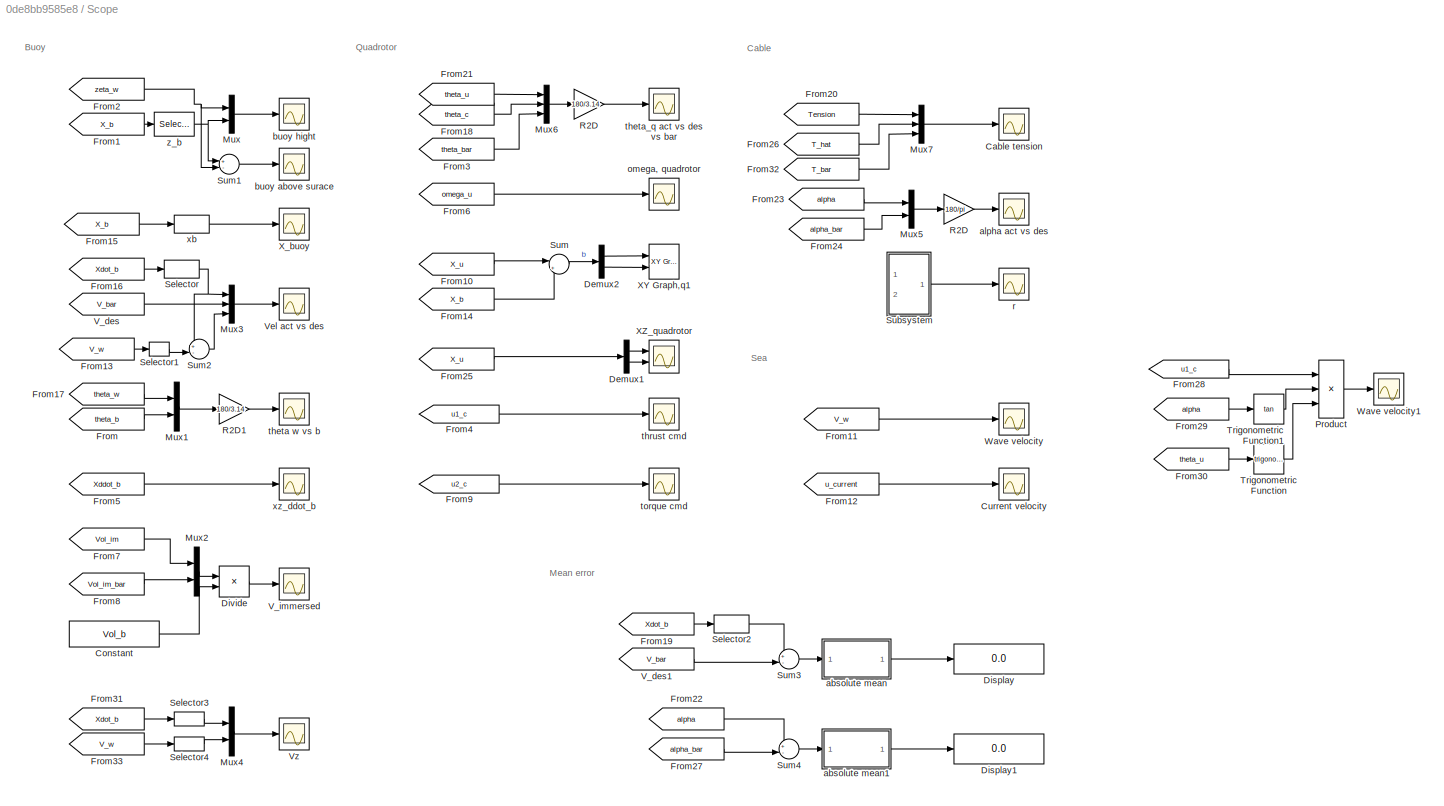
BLOCK [SubSystem] Scope
  Ports = []
  RequestExecContextInheritance = off
BLOCK [Scope] Scope/Cable tension
  Floating = off
  NumInputPorts = 1
  Ports = [1]
  ScopeSpecificationString = Simulink.scopes.TimeScopeBlockCfg('CurrentConfiguration', extmgr.ConfigurationSet(extmgr.Configuration('Core','General UI',true),extmgr.Configuration('Core','Source UI',true),extmgr.Configuration('Sources','WiredSimulink',true,'DataLoggingVariableName','ScopeData11'),extmgr.Configuration('Visuals','Time Domain',true,'SerializedDisplays',{struct('MinYLimReal','-4.02406','MaxYLimReal','35.55898','YL...<+1658ch>
BLOCK [Constant] Scope/Constant
  Value = Vol_b
BLOCK [Scope] Scope/Current velocity
  Floating = off
  NumInputPorts = 1
  Ports = [1]
  ScopeSpecificationString = Simulink.scopes.TimeScopeBlockCfg('CurrentConfiguration', extmgr.ConfigurationSet(extmgr.Configuration('Core','General UI',true),extmgr.Configuration('Core','Source UI',true),extmgr.Configuration('Sources','WiredSimulink',true,'DataLoggingVariableName','ScopeData5'),extmgr.Configuration('Visuals','Time Domain',true,'SerializedDisplays',{struct('MinYLimReal','0.1','MaxYLimReal','0.3','YLabelReal','...<+1498ch>
BLOCK [Demux] Scope/Demux1
  DisplayOption = bar
  Outputs = 2
  Ports = [1, 2]
BLOCK [Demux] Scope/Demux2
  DisplayOption = bar
  Outputs = 2
  Ports = [1, 2]
BLOCK [Display] Scope/Display
  Decimation = 1
  Ports = [1]
BLOCK [Display] Scope/Display1
  Decimation = 1
  Ports = [1]
BLOCK [Product] Scope/Divide
  InputSameDT = off
  Inputs = */
  OutDataTypeStr = Inherit: Inherit via internal rule
  Ports = [2, 1]
  RndMeth = Floor
  SaturateOnIntegerOverflow = off
BLOCK [From] Scope/From
  GotoTag = theta_b
  TagVisibility = global
BLOCK [From] Scope/From1
  GotoTag = X_b
  TagVisibility = global
BLOCK [From] Scope/From10
  GotoTag = X_u
  TagVisibility = global
BLOCK [From] Scope/From11
  GotoTag = V_w
  TagVisibility = global
BLOCK [From] Scope/From12
  GotoTag = u_current
  TagVisibility = global
BLOCK [From] Scope/From13
  GotoTag = V_w
  TagVisibility = global
BLOCK [From] Scope/From14
  GotoTag = X_b
  TagVisibility = global
BLOCK [From] Scope/From15
  GotoTag = X_b
  TagVisibility = global
BLOCK [From] Scope/From16
  GotoTag = Xdot_b
  TagVisibility = global
BLOCK [From] Scope/From17
  GotoTag = theta_w
  TagVisibility = global
BLOCK [From] Scope/From18
  GotoTag = theta_c
  TagVisibility = global
BLOCK [From] Scope/From19
  GotoTag = Xdot_b
  TagVisibility = global
BLOCK [From] Scope/From2
  GotoTag = zeta_w
  TagVisibility = global
BLOCK [From] Scope/From20
  GotoTag = Tension
  TagVisibility = global
BLOCK [From] Scope/From21
  GotoTag = theta_u
  TagVisibility = global
BLOCK [From] Scope/From22
  GotoTag = alpha
  TagVisibility = global
BLOCK [From] Scope/From23
  GotoTag = alpha
  TagVisibility = global
BLOCK [From] Scope/From24
  GotoTag = alpha_bar
  TagVisibility = global
BLOCK [From] Scope/From25
  GotoTag = X_u
  TagVisibility = global
BLOCK [From] Scope/From26
  GotoTag = T_hat
  TagVisibility = global
BLOCK [From] Scope/From27
  GotoTag = alpha_bar
  TagVisibility = global
BLOCK [From] Scope/From28
  GotoTag = u1_c
  TagVisibility = global
BLOCK [From] Scope/From29
  GotoTag = alpha
  TagVisibility = global
BLOCK [From] Scope/From3
  GotoTag = theta_bar
  TagVisibility = global
BLOCK [From] Scope/From30
  GotoTag = theta_u
  TagVisibility = global
BLOCK [From] Scope/From31
  GotoTag = Xdot_b
  TagVisibility = global
BLOCK [From] Scope/From32
  GotoTag = T_bar
  TagVisibility = global
BLOCK [From] Scope/From33
  GotoTag = V_w
  TagVisibility = global
BLOCK [From] Scope/From4
  GotoTag = u1_c
  TagVisibility = global
BLOCK [From] Scope/From5
  GotoTag = Xddot_b
  TagVisibility = global
BLOCK [From] Scope/From6
  GotoTag = omega_u
  TagVisibility = global
BLOCK [From] Scope/From7
  GotoTag = Vol_im
  TagVisibility = global
BLOCK [From] Scope/From8
  GotoTag = Vol_im_bar
  TagVisibility = global
BLOCK [From] Scope/From9
  GotoTag = u2_c
  TagVisibility = global
BLOCK [Mux] Scope/Mux
  DisplayOption = bar
  Inputs = 2
  Ports = [2, 1]
BLOCK [Mux] Scope/Mux1
  DisplayOption = bar
  Inputs = 2
  Ports = [2, 1]
BLOCK [Mux] Scope/Mux2
  DisplayOption = bar
  Inputs = 2
  Ports = [2, 1]
BLOCK [Mux] Scope/Mux3
  DisplayOption = bar
  Inputs = 3
  Ports = [3, 1]
BLOCK [Mux] Scope/Mux4
  DisplayOption = bar
  Inputs = 2
  Ports = [2, 1]
BLOCK [Mux] Scope/Mux5
  DisplayOption = bar
  Inputs = 2
  Ports = [2, 1]
BLOCK [Mux] Scope/Mux6
  DisplayOption = bar
  Inputs = 3
  Ports = [3, 1]
BLOCK [Mux] Scope/Mux7
  DisplayOption = bar
  Inputs = 3
  Ports = [3, 1]
BLOCK [Product] Scope/Product
  InputSameDT = off
  Inputs = 3
  OutDataTypeStr = Inherit: Inherit via internal rule
  Ports = [3, 1]
  RndMeth = Floor
  SaturateOnIntegerOverflow = off
BLOCK [Gain] Scope/R2D
  Gain = 180/3.14
  OutDataTypeStr = Inherit: Inherit via internal rule
  ParamDataTypeStr = Inherit: Inherit via internal rule
  SaturateOnIntegerOverflow = off
BLOCK [Gain] Scope/R2D 
  Gain = 180/pi
  OutDataTypeStr = Inherit: Inherit via internal rule
  ParamDataTypeStr = Inherit: Inherit via internal rule
  SaturateOnIntegerOverflow = off
BLOCK [Gain] Scope/R2D1
  Gain = 180/3.14
  OutDataTypeStr = Inherit: Inherit via internal rule
  ParamDataTypeStr = Inherit: Inherit via internal rule
  SaturateOnIntegerOverflow = off
BLOCK [Selector] Scope/Selector
  IndexOptions = Index vector (dialog)
  Indices = 1
  InputPortWidth = 2
  OutputSizes = 1
  Ports = [1, 1]
BLOCK [Selector] Scope/Selector1
  IndexOptions = Index vector (dialog)
  Indices = 1
  InputPortWidth = 2
  OutputSizes = 1
  Ports = [1, 1]
BLOCK [Selector] Scope/Selector2
  IndexOptions = Index vector (dialog)
  Indices = 1
  InputPortWidth = 2
  OutputSizes = 1
  Ports = [1, 1]
BLOCK [Selector] Scope/Selector3
  IndexOptions = Index vector (dialog)
  Indices = 2
  InputPortWidth = 2
  OutputSizes = 1
  Ports = [1, 1]
BLOCK [Selector] Scope/Selector4
  IndexOptions = Index vector (dialog)
  Indices = 2
  InputPortWidth = 2
  OutputSizes = 1
  Ports = [1, 1]
BLOCK [SubSystem] Scope/Subsystem
  Commented = on
  Ports = [2, 1]
  RequestExecContextInheritance = off
BLOCK [Goto] Scope/Subsystem/Goto5
  GotoTag = r
BLOCK [Inport] Scope/Subsystem/In1
  IconDisplay = Port number
BLOCK [Inport] Scope/Subsystem/In2
  IconDisplay = Port number
  Port = 2
BLOCK [Outport] Scope/Subsystem/Out1
  IconDisplay = Port number
BLOCK [Product] Scope/Subsystem/Product
  InputSameDT = off
  OutDataTypeStr = Inherit: Inherit via internal rule
  Ports = [2, 1]
  RndMeth = Floor
  SaturateOnIntegerOverflow = off
BLOCK [Sqrt] Scope/Subsystem/Sqrt
BLOCK [Sum] Scope/Subsystem/Subtract
  InputSameDT = off
  Inputs = +-
  OutDataTypeStr = Inherit: Inherit via internal rule
  Ports = [2, 1]
  SaturateOnIntegerOverflow = off
BLOCK [Sum] Scope/Subsystem/Sum of Elements
  InputSameDT = off
  Inputs = +
  OutDataTypeStr = Inherit: Inherit via internal rule
  Ports = [1, 1]
  SaturateOnIntegerOverflow = off
BLOCK [Sum] Scope/Sum
  IconShape = round
  InputSameDT = off
  Inputs = |+-
  OutDataTypeStr = Inherit: Inherit via internal rule
  Ports = [2, 1]
  SaturateOnIntegerOverflow = off
BLOCK [Sum] Scope/Sum1
  IconShape = round
  InputSameDT = off
  Inputs = +-|
  OutDataTypeStr = Inherit: Inherit via internal rule
  Ports = [2, 1]
  SaturateOnIntegerOverflow = off
BLOCK [Sum] Scope/Sum2
  IconShape = round
  InputSameDT = off
  Inputs = +-|
  OutDataTypeStr = Inherit: Inherit via internal rule
  Ports = [2, 1]
  SaturateOnIntegerOverflow = off
BLOCK [Sum] Scope/Sum3
  IconShape = round
  InputSameDT = off
  Inputs = +-|
  OutDataTypeStr = Inherit: Inherit via internal rule
  Ports = [2, 1]
  SaturateOnIntegerOverflow = off
BLOCK [Sum] Scope/Sum4
  IconShape = round
  InputSameDT = off
  Inputs = +-|
  OutDataTypeStr = Inherit: Inherit via internal rule
  Ports = [2, 1]
  SaturateOnIntegerOverflow = off
BLOCK [Trigonometry] Scope/Trigonometric Function
  Ports = [1, 1]
BLOCK [Trigonometry] Scope/Trigonometric Function1
  Operator = tan
  Ports = [1, 1]
BLOCK [From] Scope/V_des
  GotoTag = V_bar
  TagVisibility = global
BLOCK [From] Scope/V_des1
  GotoTag = V_bar
  TagVisibility = global
BLOCK [Scope] Scope/V_immersed
  Floating = off
  NumInputPorts = 1
  Ports = [1]
  ScopeSpecificationString = Simulink.scopes.TimeScopeBlockCfg('CurrentConfiguration', extmgr.ConfigurationSet(extmgr.Configuration('Core','General UI',true),extmgr.Configuration('Core','Source UI',true),extmgr.Configuration('Sources','WiredSimulink',true,'DataLoggingVariableName','ScopeData1'),extmgr.Configuration('Visuals','Time Domain',true,'SerializedDisplays',{struct('MinYLimReal','0.18794','MaxYLimReal','0.28489','YLabe...<+1528ch>
BLOCK [Scope] Scope/Vel act vs des
  Floating = off
  NumInputPorts = 1
  Ports = [1]
  ScopeSpecificationString = Simulink.scopes.TimeScopeBlockCfg('CurrentConfiguration', extmgr.ConfigurationSet(extmgr.Configuration('Core','General UI',true),extmgr.Configuration('Core','Source UI',true),extmgr.Configuration('Sources','WiredSimulink',true,'DataLoggingVariableName','ScopeData18'),extmgr.Configuration('Visuals','Time Domain',true,'SerializedDisplays',{struct('MinYLimReal','-1.54665','MaxYLimReal','5.46604','YLa...<+1609ch>
BLOCK [Scope] Scope/Vz
  Floating = off
  NumInputPorts = 1
  Ports = [1]
  ScopeSpecificationString = Simulink.scopes.TimeScopeBlockCfg('CurrentConfiguration', extmgr.ConfigurationSet(extmgr.Configuration('Core','General UI',true),extmgr.Configuration('Core','Source UI',true),extmgr.Configuration('Sources','WiredSimulink',true,'DataLoggingVariableName','ScopeData6'),extmgr.Configuration('Visuals','Time Domain',true,'SerializedDisplays',{struct('MinYLimReal','-1.41258','MaxYLimReal','2.38512','YLab...<+1605ch>
BLOCK [Scope] Scope/Wave velocity
  Floating = off
  NumInputPorts = 1
  Ports = [1]
  ScopeSpecificationString = Simulink.scopes.TimeScopeBlockCfg('CurrentConfiguration', extmgr.ConfigurationSet(extmgr.Configuration('Core','General UI',true),extmgr.Configuration('Core','Source UI',true),extmgr.Configuration('Sources','WiredSimulink',true,'DataLoggingVariableName','ScopeData4'),extmgr.Configuration('Visuals','Time Domain',true,'SerializedDisplays',{struct('MinYLimReal','-1.07189','MaxYLimReal','1.26815','YLab...<+1522ch>
BLOCK [Scope] Scope/Wave velocity1
  Floating = off
  NumInputPorts = 1
  Ports = [1]
  ScopeSpecificationString = Simulink.scopes.TimeScopeBlockCfg('CurrentConfiguration', extmgr.ConfigurationSet(extmgr.Configuration('Core','General UI',true),extmgr.Configuration('Core','Source UI',true),extmgr.Configuration('Sources','WiredSimulink',true,'DataLoggingVariableName','ScopeData7'),extmgr.Configuration('Visuals','Time Domain',true,'SerializedDisplays',{struct('MinYLimReal','-13.57406','MaxYLimReal','121.44598','Y...<+1522ch>
BLOCK [Reference] Scope/XY Graph,q1  REF=simulink/Sinks/XY Graph
  Commented = on
  Ports = [2]
  SourceBlock = simulink/Sinks/XY Graph
  SourceProductBaseCode = SL
  SourceProductName = Simulink
  SourceType = XY scope.
BLOCK [Scope] Scope/XZ_quadrotor
  Floating = off
  NumInputPorts = 2
  Ports = [2]
  ScopeSpecificationString = Simulink.scopes.TimeScopeBlockCfg('CurrentConfiguration', extmgr.ConfigurationSet(extmgr.Configuration('Core','General UI',true),extmgr.Configuration('Core','Source UI',true),extmgr.Configuration('Sources','WiredSimulink',true,'DataLoggingVariableName','ScopeData39'),extmgr.Configuration('Visuals','Time Domain',true,'SerializedDisplays',{struct('MinYLimReal','-25.9868','MaxYLimReal','283.37864','Y...<+2101ch>
BLOCK [Scope] Scope/X_buoy
  Floating = off
  NumInputPorts = 1
  Ports = [1]
  ScopeSpecificationString = Simulink.scopes.TimeScopeBlockCfg('CurrentConfiguration', extmgr.ConfigurationSet(extmgr.Configuration('Core','General UI',true),extmgr.Configuration('Core','Source UI',true),extmgr.Configuration('Sources','WiredSimulink',true,'DataLoggingVariableName','ScopeData12'),extmgr.Configuration('Visuals','Time Domain',true,'SerializedDisplays',{struct('MinYLimReal','-22.67137','MaxYLimReal','204.04231','...<+1508ch>
BLOCK [SubSystem] Scope/absolute mean
  Ports = [1, 1]
  RequestExecContextInheritance = off
BLOCK [Abs] Scope/absolute mean/Abs
  SaturateOnIntegerOverflow = off
BLOCK [Clock] Scope/absolute mean/Clock
BLOCK [Scope] Scope/absolute mean/Current velocity
  Floating = off
  NumInputPorts = 1
  Ports = [1]
  ScopeSpecificationString = Simulink.scopes.TimeScopeBlockCfg('CurrentConfiguration', extmgr.ConfigurationSet(extmgr.Configuration('Core','General UI',true),extmgr.Configuration('Core','Source UI',true),extmgr.Configuration('Sources','WiredSimulink',true,'DataLoggingVariableName','ScopeData11'),extmgr.Configuration('Visuals','Time Domain',true,'SerializedDisplays',{struct('MinYLimReal','0.1','MaxYLimReal','0.3','YLabelReal',...<+1499ch>
BLOCK [Scope] Scope/absolute mean/Current velocity1
  Floating = off
  NumInputPorts = 1
  Ports = [1]
  ScopeSpecificationString = Simulink.scopes.TimeScopeBlockCfg('CurrentConfiguration', extmgr.ConfigurationSet(extmgr.Configuration('Core','General UI',true),extmgr.Configuration('Core','Source UI',true),extmgr.Configuration('Sources','WiredSimulink',true,'DataLoggingVariableName','ScopeData12'),extmgr.Configuration('Visuals','Time Domain',true,'SerializedDisplays',{struct('MinYLimReal','0.1','MaxYLimReal','0.3','YLabelReal',...<+1499ch>
BLOCK [Scope] Scope/absolute mean/Current velocity2
  Floating = off
  NumInputPorts = 1
  Ports = [1]
  ScopeSpecificationString = Simulink.scopes.TimeScopeBlockCfg('CurrentConfiguration', extmgr.ConfigurationSet(extmgr.Configuration('Core','General UI',true),extmgr.Configuration('Core','Source UI',true),extmgr.Configuration('Sources','WiredSimulink',true,'DataLoggingVariableName','ScopeData13'),extmgr.Configuration('Visuals','Time Domain',true,'SerializedDisplays',{struct('MinYLimReal','0.1','MaxYLimReal','0.3','YLabelReal',...<+1499ch>
BLOCK [DiscreteIntegrator] Scope/absolute mean/Discrete-Time Integrator
  ICPrevOutput = DiscIntNeverNeededParam
  ICPrevScaledInput = DiscIntNeverNeededParam
  InitialConditionSetting = Auto
  Ports = [1, 1]
  SampleTime = T
  gainval = 1
BLOCK [Product] Scope/absolute mean/Divide1
  InputSameDT = off
  Inputs = */
  OutDataTypeStr = Inherit: Inherit via internal rule
  Ports = [2, 1]
  RndMeth = Floor
  SaturateOnIntegerOverflow = off
BLOCK [Outport] Scope/absolute mean/mean
  IconDisplay = Port number
BLOCK [Inport] Scope/absolute mean/u
  IconDisplay = Port number
BLOCK [SubSystem] Scope/absolute mean1
  Ports = [1, 1]
  RequestExecContextInheritance = off
BLOCK [Abs] Scope/absolute mean1/Abs
  SaturateOnIntegerOverflow = off
BLOCK [Clock] Scope/absolute mean1/Clock
BLOCK [Scope] Scope/absolute mean1/Current velocity
  Floating = off
  NumInputPorts = 1
  Ports = [1]
  ScopeSpecificationString = Simulink.scopes.TimeScopeBlockCfg('CurrentConfiguration', extmgr.ConfigurationSet(extmgr.Configuration('Core','General UI',true),extmgr.Configuration('Core','Source UI',true),extmgr.Configuration('Sources','WiredSimulink',true,'DataLoggingVariableName','ScopeData11'),extmgr.Configuration('Visuals','Time Domain',true,'SerializedDisplays',{struct('MinYLimReal','0.1','MaxYLimReal','0.3','YLabelReal',...<+1499ch>
BLOCK [Scope] Scope/absolute mean1/Current velocity1
  Floating = off
  NumInputPorts = 1
  Ports = [1]
  ScopeSpecificationString = Simulink.scopes.TimeScopeBlockCfg('CurrentConfiguration', extmgr.ConfigurationSet(extmgr.Configuration('Core','General UI',true),extmgr.Configuration('Core','Source UI',true),extmgr.Configuration('Sources','WiredSimulink',true,'DataLoggingVariableName','ScopeData12'),extmgr.Configuration('Visuals','Time Domain',true,'SerializedDisplays',{struct('MinYLimReal','0.1','MaxYLimReal','0.3','YLabelReal',...<+1499ch>
BLOCK [Scope] Scope/absolute mean1/Current velocity2
  Floating = off
  NumInputPorts = 1
  Ports = [1]
  ScopeSpecificationString = Simulink.scopes.TimeScopeBlockCfg('CurrentConfiguration', extmgr.ConfigurationSet(extmgr.Configuration('Core','General UI',true),extmgr.Configuration('Core','Source UI',true),extmgr.Configuration('Sources','WiredSimulink',true,'DataLoggingVariableName','ScopeData13'),extmgr.Configuration('Visuals','Time Domain',true,'SerializedDisplays',{struct('MinYLimReal','0.1','MaxYLimReal','0.3','YLabelReal',...<+1499ch>
BLOCK [DiscreteIntegrator] Scope/absolute mean1/Discrete-Time Integrator
  ICPrevOutput = DiscIntNeverNeededParam
  ICPrevScaledInput = DiscIntNeverNeededParam
  InitialConditionSetting = Auto
  Ports = [1, 1]
  SampleTime = T
  gainval = 1
BLOCK [Product] Scope/absolute mean1/Divide1
  InputSameDT = off
  Inputs = */
  OutDataTypeStr = Inherit: Inherit via internal rule
  Ports = [2, 1]
  RndMeth = Floor
  SaturateOnIntegerOverflow = off
BLOCK [Outport] Scope/absolute mean1/mean
  IconDisplay = Port number
BLOCK [Inport] Scope/absolute mean1/u
  IconDisplay = Port number
BLOCK [Scope] Scope/alpha act vs des 
  Floating = off
  NumInputPorts = 1
  Ports = [1]
  ScopeSpecificationString = Simulink.scopes.TimeScopeBlockCfg('CurrentConfiguration', extmgr.ConfigurationSet(extmgr.Configuration('Core','General UI',true),extmgr.Configuration('Core','Source UI',true),extmgr.Configuration('Sources','WiredSimulink',true,'DataLoggingVariableName','ScopeData19'),extmgr.Configuration('Visuals','Time Domain',true,'SerializedDisplays',{struct('MinYLimReal','32.27229','MaxYLimReal','60.51207','YL...<+1543ch>
BLOCK [Scope] Scope/buoy above surace
  Floating = off
  NumInputPorts = 1
  Ports = [1]
  ScopeSpecificationString = Simulink.scopes.TimeScopeBlockCfg('CurrentConfiguration', extmgr.ConfigurationSet(extmgr.Configuration('Core','General UI',true),extmgr.Configuration('Core','Source UI',true),extmgr.Configuration('Sources','WiredSimulink',true,'DataLoggingVariableName','ScopeData22'),extmgr.Configuration('Visuals','Time Domain',true,'SerializedDisplays',{struct('MinYLimReal','-0.11078','MaxYLimReal','0.27202','YLa...<+1520ch>
BLOCK [Scope] Scope/buoy hight
  Floating = off
  NumInputPorts = 1
  Ports = [1]
  ScopeSpecificationString = Simulink.scopes.TimeScopeBlockCfg('CurrentConfiguration', extmgr.ConfigurationSet(extmgr.Configuration('Core','General UI',true),extmgr.Configuration('Core','Source UI',true),extmgr.Configuration('Sources','WiredSimulink',true),extmgr.Configuration('Visuals','Time Domain',true,'SerializedDisplays',{struct('MinYLimReal','8.88671','MaxYLimReal','11.16961','YLabelReal','','MinYLimMag','8.88671','MaxY...<+1552ch>
BLOCK [Scope] Scope/omega, quadrotor
  Floating = off
  NumInputPorts = 1
  Ports = [1]
  ScopeSpecificationString = Simulink.scopes.TimeScopeBlockCfg('CurrentConfiguration', extmgr.ConfigurationSet(extmgr.Configuration('Core','General UI',true),extmgr.Configuration('Core','Source UI',true),extmgr.Configuration('Sources','WiredSimulink',true,'DataLoggingVariableName','ScopeData2'),extmgr.Configuration('Visuals','Time Domain',true,'SerializedDisplays',{struct('MinYLimReal','-2.3556','MaxYLimReal','2.87748','YLabe...<+1437ch>
BLOCK [Scope] Scope/r
  Commented = on
  Floating = off
  NumInputPorts = 1
  Ports = [1]
  ScopeSpecificationString = Simulink.scopes.TimeScopeBlockCfg('CurrentConfiguration', extmgr.ConfigurationSet(extmgr.Configuration('Core','General UI',true),extmgr.Configuration('Core','Source UI',true),extmgr.Configuration('Sources','WiredSimulink',true,'DataLoggingVariableName','ScopeData1'),extmgr.Configuration('Visuals','Time Domain',true,'SerializedDisplays',{struct('MinYLimReal','26.21048','MaxYLimReal','68.88144','YLa...<+1451ch>
BLOCK [Scope] Scope/theta w vs b
  Floating = off
  NumInputPorts = 1
  Ports = [1]
  ScopeSpecificationString = Simulink.scopes.TimeScopeBlockCfg('CurrentConfiguration', extmgr.ConfigurationSet(extmgr.Configuration('Core','General UI',true),extmgr.Configuration('Core','Source UI',true),extmgr.Configuration('Sources','WiredSimulink',true,'DataLoggingVariableName','ScopeData5'),extmgr.Configuration('Visuals','Time Domain',true,'SerializedDisplays',{struct('MinYLimReal','8.23501','MaxYLimReal','9.4505','YLabel...<+1573ch>
BLOCK [Scope] Scope/theta_q act vs des vs bar
  Floating = off
  NumInputPorts = 1
  Ports = [1]
  ScopeSpecificationString = Simulink.scopes.TimeScopeBlockCfg('CurrentConfiguration', extmgr.ConfigurationSet(extmgr.Configuration('Core','General UI',true),extmgr.Configuration('Core','Source UI',true),extmgr.Configuration('Sources','WiredSimulink',true,'DataLoggingVariableName','ScopeData8'),extmgr.Configuration('Visuals','Time Domain',true,'SerializedDisplays',{struct('MinYLimReal','-53.90169','MaxYLimReal','55.87493','YL...<+1677ch>
BLOCK [Scope] Scope/thrust cmd
  Floating = off
  NumInputPorts = 1
  Ports = [1]
  ScopeSpecificationString = Simulink.scopes.TimeScopeBlockCfg('CurrentConfiguration', extmgr.ConfigurationSet(extmgr.Configuration('Core','General UI',true),extmgr.Configuration('Core','Source UI',true),extmgr.Configuration('Sources','WiredSimulink',true,'DataLoggingVariableName','ScopeData2'),extmgr.Configuration('Visuals','Time Domain',true,'SerializedDisplays',{struct('MinYLimReal','-25.06737','MaxYLimReal','313.89637','Y...<+1497ch>
BLOCK [Scope] Scope/torque cmd
  Floating = off
  NumInputPorts = 1
  Ports = [1]
  ScopeSpecificationString = Simulink.scopes.TimeScopeBlockCfg('CurrentConfiguration', extmgr.ConfigurationSet(extmgr.Configuration('Core','General UI',true),extmgr.Configuration('Core','Source UI',true),extmgr.Configuration('Sources','WiredSimulink',true,'DataLoggingVariableName','ScopeData3'),extmgr.Configuration('Visuals','Time Domain',true,'SerializedDisplays',{struct('MinYLimReal','-0.99853','MaxYLimReal','0.98678','YLab...<+1507ch>
BLOCK [Selector] Scope/xb
  IndexOptions = Index vector (dialog)
  Indices = 1
  InputPortWidth = 2
  OutputSizes = 1
  Ports = [1, 1]
BLOCK [Scope] Scope/xz_ddot_b
  Floating = off
  NumInputPorts = 1
  Ports = [1]
  ScopeSpecificationString = Simulink.scopes.TimeScopeBlockCfg('CurrentConfiguration', extmgr.ConfigurationSet(extmgr.Configuration('Core','General UI',true),extmgr.Configuration('Core','Source UI',true),extmgr.Configuration('Sources','WiredSimulink',true,'DataLoggingVariableName','ScopeData2'),extmgr.Configuration('Visuals','Time Domain',true,'SerializedDisplays',{struct('MinYLimReal','-5.29272','MaxYLimReal','3.06606','YLab...<+1469ch>
BLOCK [Selector] Scope/z_b
  IndexOptions = Index vector (dialog)
  Indices = 2
  InputPortWidth = 2
  OutputSizes = 1
  Ports = [1, 1]
BLOCK [SubSystem] Sea
  Ports = [2, 4]
  RequestExecContextInheritance = off
BLOCK [Scope] Sea/ current
  Floating = off
  NumInputPorts = 1
  Ports = [1]
  ScopeSpecificationString = Simulink.scopes.TimeScopeBlockCfg('CurrentConfiguration', extmgr.ConfigurationSet(extmgr.Configuration('Core','General UI',true),extmgr.Configuration('Core','Source UI',true),extmgr.Configuration('Sources','WiredSimulink',true,'DataLoggingVariableName','ScopeData4','DataLoggingSaveFormat','Array','DataLoggingDecimation','1','DataLoggingDecimateData',true),extmgr.Configuration('Visuals','Time Domai...<+1703ch>
BLOCK [Sum] Sea/Add
  InputSameDT = off
  Inputs = 2
  OutDataTypeStr = Inherit: Inherit via internal rule
  Ports = [2, 1]
  SaturateOnIntegerOverflow = off
BLOCK [Constant] Sea/Constant1
  Value = H
BLOCK [Constant] Sea/Constant2
  Value = H
BLOCK [Gain] Sea/Gain1
  Gain = k_w
  OutDataTypeStr = Inherit: Inherit via internal rule
  ParamDataTypeStr = Inherit: Inherit via internal rule
  SaturateOnIntegerOverflow = off
BLOCK [Gain] Sea/Gain2
  Gain = k_w2
  OutDataTypeStr = Inherit: Inherit via internal rule
  ParamDataTypeStr = Inherit: Inherit via internal rule
  SaturateOnIntegerOverflow = off
BLOCK [Math] Sea/Math Function1
  Ports = [1, 1]
BLOCK [Math] Sea/Math Function2
  Ports = [1, 1]
BLOCK [Bias] Sea/Mean water level
  Bias = H
  SaturateOnIntegerOverflow = off
BLOCK [Product] Sea/Product1
  InputSameDT = off
  OutDataTypeStr = Inherit: Inherit via internal rule
  Ports = [2, 1]
  RndMeth = Floor
  SaturateOnIntegerOverflow = off
BLOCK [Product] Sea/Product2
  InputSameDT = off
  OutDataTypeStr = Inherit: Inherit via internal rule
  Ports = [2, 1]
  RndMeth = Floor
  SaturateOnIntegerOverflow = off
BLOCK [Product] Sea/Product3
  InputSameDT = off
  OutDataTypeStr = Inherit: Inherit via internal rule
  Ports = [2, 1]
  RndMeth = Floor
  SaturateOnIntegerOverflow = off
BLOCK [Product] Sea/Product4
  InputSameDT = off
  OutDataTypeStr = Inherit: Inherit via internal rule
  Ports = [2, 1]
  RndMeth = Floor
  SaturateOnIntegerOverflow = off
BLOCK [SubSystem] Sea/Single Wave
  Ports = [2, 4]
  RequestExecContextInheritance = off
BLOCK [Constant] Sea/Single Wave/Constant
  Value = epsilon
BLOCK [Gain] Sea/Single Wave/Gain
  Gain = omega
  OutDataTypeStr = Inherit: Inherit via internal rule
  ParamDataTypeStr = Inherit: Inherit via internal rule
  SaturateOnIntegerOverflow = off
BLOCK [Gain] Sea/Single Wave/Gain1
  Gain = k
  OutDataTypeStr = Inherit: Inherit via internal rule
  ParamDataTypeStr = Inherit: Inherit via internal rule
  SaturateOnIntegerOverflow = off
BLOCK [Gain] Sea/Single Wave/Gain2
  Gain = A
  OutDataTypeStr = Inherit: Inherit via internal rule
  ParamDataTypeStr = Inherit: Inherit via internal rule
  SaturateOnIntegerOverflow = off
BLOCK [Gain] Sea/Single Wave/Gain3
  Gain = omega*A
  OutDataTypeStr = Inherit: Inherit via internal rule
  ParamDataTypeStr = Inherit: Inherit via internal rule
  SaturateOnIntegerOverflow = off
BLOCK [Gain] Sea/Single Wave/Gain4
  Gain = omega*A
  OutDataTypeStr = Inherit: Inherit via internal rule
  ParamDataTypeStr = Inherit: Inherit via internal rule
  SaturateOnIntegerOverflow = off
BLOCK [Gain] Sea/Single Wave/Gain5
  Gain = A*k
  OutDataTypeStr = Inherit: Inherit via internal rule
  ParamDataTypeStr = Inherit: Inherit via internal rule
  SaturateOnIntegerOverflow = off
BLOCK [Sum] Sea/Single Wave/Sum
  IconShape = round
  InputSameDT = off
  Inputs = ++-
  OutDataTypeStr = Inherit: Inherit via internal rule
  Ports = [3, 1]
  SaturateOnIntegerOverflow = off
BLOCK [Trigonometry] Sea/Single Wave/Trigonometric Function
  Operator = sincos
  Ports = [1, 2]
BLOCK [Trigonometry] Sea/Single Wave/Trigonometric Function1
  Operator = atan
  Ports = [1, 1]
BLOCK [Gain] Sea/Single Wave/direction
  Gain = w_dir
  OutDataTypeStr = Inherit: Inherit via internal rule
  ParamDataTypeStr = Inherit: Inherit via internal rule
  SaturateOnIntegerOverflow = off
BLOCK [Gain] Sea/Single Wave/direction1
  Gain = w_dir
  OutDataTypeStr = Inherit: Inherit via internal rule
  ParamDataTypeStr = Inherit: Inherit via internal rule
  SaturateOnIntegerOverflow = off
BLOCK [Gain] Sea/Single Wave/direction2
  Gain = w_dir
  OutDataTypeStr = Inherit: Inherit via internal rule
  ParamDataTypeStr = Inherit: Inherit via internal rule
  SaturateOnIntegerOverflow = off
BLOCK [Outport] Sea/Single Wave/theta_w(x,t)
  IconDisplay = Port number
  Port = 2
BLOCK [Inport] Sea/Single Wave/time
  IconDisplay = Port number
BLOCK [Outport] Sea/Single Wave/u(z0,x,t)
  IconDisplay = Port number
  Port = 3
BLOCK [Outport] Sea/Single Wave/w(z0,x,t)
  IconDisplay = Port number
  Port = 4
BLOCK [Inport] Sea/Single Wave/x(t)
  IconDisplay = Port number
  Port = 2
BLOCK [Outport] Sea/Single Wave/zeta(x,t)
  IconDisplay = Port number
BLOCK [SubSystem] Sea/Single Wave1
  Ports = [2, 4]
  RequestExecContextInheritance = off
BLOCK [Constant] Sea/Single Wave1/Constant
  Value = epsilon
BLOCK [Gain] Sea/Single Wave1/Gain
  Gain = omega
  OutDataTypeStr = Inherit: Inherit via internal rule
  ParamDataTypeStr = Inherit: Inherit via internal rule
  SaturateOnIntegerOverflow = off
BLOCK [Gain] Sea/Single Wave1/Gain1
  Gain = k
  OutDataTypeStr = Inherit: Inherit via internal rule
  ParamDataTypeStr = Inherit: Inherit via internal rule
  SaturateOnIntegerOverflow = off
BLOCK [Gain] Sea/Single Wave1/Gain2
  Gain = A
  OutDataTypeStr = Inherit: Inherit via internal rule
  ParamDataTypeStr = Inherit: Inherit via internal rule
  SaturateOnIntegerOverflow = off
BLOCK [Gain] Sea/Single Wave1/Gain3
  Gain = omega*A
  OutDataTypeStr = Inherit: Inherit via internal rule
  ParamDataTypeStr = Inherit: Inherit via internal rule
  SaturateOnIntegerOverflow = off
BLOCK [Gain] Sea/Single Wave1/Gain4
  Gain = omega*A
  OutDataTypeStr = Inherit: Inherit via internal rule
  ParamDataTypeStr = Inherit: Inherit via internal rule
  SaturateOnIntegerOverflow = off
BLOCK [Gain] Sea/Single Wave1/Gain5
  Gain = A*k
  OutDataTypeStr = Inherit: Inherit via internal rule
  ParamDataTypeStr = Inherit: Inherit via internal rule
  SaturateOnIntegerOverflow = off
BLOCK [Sum] Sea/Single Wave1/Sum
  IconShape = round
  InputSameDT = off
  Inputs = ++-
  OutDataTypeStr = Inherit: Inherit via internal rule
  Ports = [3, 1]
  SaturateOnIntegerOverflow = off
BLOCK [Trigonometry] Sea/Single Wave1/Trigonometric Function
  Operator = sincos
  Ports = [1, 2]
BLOCK [Trigonometry] Sea/Single Wave1/Trigonometric Function1
  Operator = atan
  Ports = [1, 1]
BLOCK [Gain] Sea/Single Wave1/direction
  Gain = w_dir
  OutDataTypeStr = Inherit: Inherit via internal rule
  ParamDataTypeStr = Inherit: Inherit via internal rule
  SaturateOnIntegerOverflow = off
BLOCK [Gain] Sea/Single Wave1/direction1
  Gain = w_dir
  OutDataTypeStr = Inherit: Inherit via internal rule
  ParamDataTypeStr = Inherit: Inherit via internal rule
  SaturateOnIntegerOverflow = off
BLOCK [Gain] Sea/Single Wave1/direction2
  Gain = w_dir
  OutDataTypeStr = Inherit: Inherit via internal rule
  ParamDataTypeStr = Inherit: Inherit via internal rule
  SaturateOnIntegerOverflow = off
BLOCK [Outport] Sea/Single Wave1/theta_w(x,t)
  IconDisplay = Port number
  Port = 2
BLOCK [Inport] Sea/Single Wave1/time
  IconDisplay = Port number
BLOCK [Outport] Sea/Single Wave1/u(z0,x,t)
  IconDisplay = Port number
  Port = 3
BLOCK [Outport] Sea/Single Wave1/w(z0,x,t)
  IconDisplay = Port number
  Port = 4
BLOCK [Inport] Sea/Single Wave1/x(t)
  IconDisplay = Port number
  Port = 2
BLOCK [Outport] Sea/Single Wave1/zeta(x,t)
  IconDisplay = Port number
BLOCK [Sum] Sea/Sum1
  IconShape = round
  InputSameDT = off
  Inputs = |++
  OutDataTypeStr = Inherit: Inherit via internal rule
  Ports = [2, 1]
  SaturateOnIntegerOverflow = off
BLOCK [Sum] Sea/Sum2
  IconShape = round
  InputSameDT = off
  Inputs = ++|
  OutDataTypeStr = Inherit: Inherit via internal rule
  Ports = [2, 1]
  SaturateOnIntegerOverflow = off
BLOCK [Sum] Sea/Sum3
  IconShape = round
  InputSameDT = off
  Inputs = |+-
  OutDataTypeStr = Inherit: Inherit via internal rule
  Ports = [2, 1]
  SaturateOnIntegerOverflow = off
BLOCK [Sum] Sea/Sum4
  IconShape = round
  InputSameDT = off
  Inputs = ++|
  OutDataTypeStr = Inherit: Inherit via internal rule
  Ports = [2, 1]
  SaturateOnIntegerOverflow = off
BLOCK [Sum] Sea/Sum5
  IconShape = round
  InputSameDT = off
  Inputs = ++|
  OutDataTypeStr = Inherit: Inherit via internal rule
  Ports = [2, 1]
  SaturateOnIntegerOverflow = off
BLOCK [Sum] Sea/Sum6
  IconShape = round
  InputSameDT = off
  Inputs = |+-
  OutDataTypeStr = Inherit: Inherit via internal rule
  Ports = [2, 1]
  SaturateOnIntegerOverflow = off
BLOCK [Sum] Sea/Sum7
  IconShape = round
  InputSameDT = off
  Inputs = ++|
  OutDataTypeStr = Inherit: Inherit via internal rule
  Ports = [2, 1]
  SaturateOnIntegerOverflow = off
BLOCK [Sum] Sea/Sum8
  IconShape = round
  InputSameDT = off
  Inputs = ++|
  OutDataTypeStr = Inherit: Inherit via internal rule
  Ports = [2, 1]
  SaturateOnIntegerOverflow = off
BLOCK [SubSystem] Sea/Theta_water surface (two waves)
  Ports = [2, 1]
  RequestExecContextInheritance = off
BLOCK [Gain] Sea/Theta_water surface (two waves)/Gain2
  Gain = 1/(omega_w)
  OutDataTypeStr = Inherit: Inherit via internal rule
  ParamDataTypeStr = Inherit: Inherit via internal rule
  SaturateOnIntegerOverflow = off
BLOCK [Gain] Sea/Theta_water surface (two waves)/Gain3
  Gain = k_w
  OutDataTypeStr = Inherit: Inherit via internal rule
  ParamDataTypeStr = Inherit: Inherit via internal rule
  SaturateOnIntegerOverflow = off
BLOCK [Gain] Sea/Theta_water surface (two waves)/Gain4
  Gain = 1/(omega_w2)
  OutDataTypeStr = Inherit: Inherit via internal rule
  ParamDataTypeStr = Inherit: Inherit via internal rule
  SaturateOnIntegerOverflow = off
BLOCK [Gain] Sea/Theta_water surface (two waves)/Gain5
  Gain = k_w2
  OutDataTypeStr = Inherit: Inherit via internal rule
  ParamDataTypeStr = Inherit: Inherit via internal rule
  SaturateOnIntegerOverflow = off
BLOCK [Outport] Sea/Theta_water surface (two waves)/Out1
  IconDisplay = Port number
BLOCK [Sum] Sea/Theta_water surface (two waves)/Sum2
  IconShape = round
  InputSameDT = off
  Inputs = ++|
  OutDataTypeStr = Inherit: Inherit via internal rule
  Ports = [2, 1]
  SaturateOnIntegerOverflow = off
BLOCK [Gain] Sea/Theta_water surface (two waves)/direction1
  Gain = 1/w_dir
  OutDataTypeStr = Inherit: Inherit via internal rule
  ParamDataTypeStr = Inherit: Inherit via internal rule
  SaturateOnIntegerOverflow = off
BLOCK [Gain] Sea/Theta_water surface (two waves)/direction2
  Gain = 1/w_dir2
  OutDataTypeStr = Inherit: Inherit via internal rule
  ParamDataTypeStr = Inherit: Inherit via internal rule
  SaturateOnIntegerOverflow = off
BLOCK [Inport] Sea/Theta_water surface (two waves)/w1
  IconDisplay = Port number
BLOCK [Inport] Sea/Theta_water surface (two waves)/w2
  IconDisplay = Port number
  Port = 2
BLOCK [Trigonometry] Sea/Trigonometric Function1
  Operator = atan
  Ports = [1, 1]
BLOCK [Concatenate] Sea/Vector Concatenate
  Ports = [2, 1]
BLOCK [Concatenate] Sea/Vector Concatenate1
  Ports = [2, 1]
BLOCK [Concatenate] Sea/Vector Concatenate2
  Ports = [2, 1]
BLOCK [Inport] Sea/X_b
  IconDisplay = Port number
BLOCK [Constant] Sea/stocks drift1
  Value = u_s
BLOCK [Constant] Sea/stocks drift2
  Value = u_s2
BLOCK [Outport] Sea/theta_w
  IconDisplay = Port number
  Port = 3
BLOCK [Constant] Sea/tidal current
  Value = u_t
BLOCK [Inport] Sea/time
  IconDisplay = Port number
  Port = 2
BLOCK [Scope] Sea/u
  Floating = off
  NumInputPorts = 1
  Ports = [1]
  ScopeSpecificationString = Simulink.scopes.TimeScopeBlockCfg('CurrentConfiguration', extmgr.ConfigurationSet(extmgr.Configuration('Core','General UI',true),extmgr.Configuration('Core','Source UI',true),extmgr.Configuration('Sources','WiredSimulink',true,'DataLoggingVariableName','ScopeData2','DataLoggingSaveFormat','Array','DataLoggingDecimation','1','DataLoggingDecimateData',true),extmgr.Configuration('Visuals','Time Domai...<+1702ch>
BLOCK [Scope] Sea/u1
  Floating = off
  NumInputPorts = 1
  Ports = [1]
  ScopeSpecificationString = Simulink.scopes.TimeScopeBlockCfg('CurrentConfiguration', extmgr.ConfigurationSet(extmgr.Configuration('Core','General UI',true),extmgr.Configuration('Core','Source UI',true),extmgr.Configuration('Sources','WiredSimulink',true,'DataLoggingVariableName','ScopeData1','DataLoggingSaveFormat','Array','DataLoggingDecimation','1','DataLoggingDecimateData',true),extmgr.Configuration('Visuals','Time Domai...<+1721ch>
BLOCK [Scope] Sea/u2
  Floating = off
  NumInputPorts = 1
  Ports = [1]
  ScopeSpecificationString = Simulink.scopes.TimeScopeBlockCfg('CurrentConfiguration', extmgr.ConfigurationSet(extmgr.Configuration('Core','General UI',true),extmgr.Configuration('Core','Source UI',true),extmgr.Configuration('Sources','WiredSimulink',true,'DataLoggingVariableName','ScopeData2','DataLoggingSaveFormat','Array','DataLoggingDecimation','1','DataLoggingDecimateData',true),extmgr.Configuration('Visuals','Time Domai...<+1736ch>
BLOCK [Outport] Sea/u_cur
  IconDisplay = Port number
  Port = 4
BLOCK [Outport] Sea/v_xz(x,t)
  IconDisplay = Port number
  Port = 2
BLOCK [Scope] Sea/w
  Floating = off
  NumInputPorts = 1
  Ports = [1]
  ScopeSpecificationString = Simulink.scopes.TimeScopeBlockCfg('CurrentConfiguration', extmgr.ConfigurationSet(extmgr.Configuration('Core','General UI',true),extmgr.Configuration('Core','Source UI',true),extmgr.Configuration('Sources','WiredSimulink',true,'DataLoggingVariableName','ScopeData1','DataLoggingSaveFormat','Array','DataLoggingDecimation','1','DataLoggingDecimateData',true),extmgr.Configuration('Visuals','Time Domai...<+1677ch>
BLOCK [Scope] Sea/w1
  Floating = off
  NumInputPorts = 1
  Ports = [1]
  ScopeSpecificationString = Simulink.scopes.TimeScopeBlockCfg('CurrentConfiguration', extmgr.ConfigurationSet(extmgr.Configuration('Core','General UI',true),extmgr.Configuration('Core','Source UI',true),extmgr.Configuration('Sources','WiredSimulink',true,'DataLoggingVariableName','ScopeData3','DataLoggingSaveFormat','Array','DataLoggingDecimation','1','DataLoggingDecimateData',true),extmgr.Configuration('Visuals','Time Domai...<+1706ch>
BLOCK [Scope] Sea/w2
  Floating = off
  NumInputPorts = 1
  Ports = [1]
  ScopeSpecificationString = Simulink.scopes.TimeScopeBlockCfg('CurrentConfiguration', extmgr.ConfigurationSet(extmgr.Configuration('Core','General UI',true),extmgr.Configuration('Core','Source UI',true),extmgr.Configuration('Sources','WiredSimulink',true,'DataLoggingVariableName','ScopeData4','DataLoggingSaveFormat','Array','DataLoggingDecimation','1','DataLoggingDecimateData',true),extmgr.Configuration('Visuals','Time Domai...<+1677ch>
BLOCK [Constant] Sea/wind generated current
  Value = u_w
BLOCK [Selector] Sea/x_b
  IndexOptions = Index vector (dialog)
  Indices = 1
  InputPortWidth = 2
  OutputSizes = 1
  Ports = [1, 1]
BLOCK [Selector] Sea/z_b
  IndexOptions = Index vector (dialog)
  Indices = 2
  InputPortWidth = 2
  OutputSizes = 1
  Ports = [1, 1]
BLOCK [Selector] Sea/z_b1
  IndexOptions = Index vector (dialog)
  Indices = 2
  InputPortWidth = 2
  OutputSizes = 1
  Ports = [1, 1]
BLOCK [Outport] Sea/zeta(x,t)
  IconDisplay = Port number
BLOCK [SubSystem] Sea1
  Commented = on
  Ports = [2, 4]
  RequestExecContextInheritance = off
BLOCK [Scope] Sea1/ current
  Floating = off
  NumInputPorts = 1
  Ports = [1]
  ScopeSpecificationString = Simulink.scopes.TimeScopeBlockCfg('CurrentConfiguration', extmgr.ConfigurationSet(extmgr.Configuration('Core','General UI',true),extmgr.Configuration('Core','Source UI',true),extmgr.Configuration('Sources','WiredSimulink',true,'DataLoggingVariableName','ScopeData4','DataLoggingSaveFormat','Array','DataLoggingDecimation','1','DataLoggingDecimateData',true),extmgr.Configuration('Visuals','Time Domai...<+1669ch>
BLOCK [Sum] Sea1/Add
  InputSameDT = off
  Inputs = 2
  OutDataTypeStr = Inherit: Inherit via internal rule
  Ports = [2, 1]
  SaturateOnIntegerOverflow = off
BLOCK [Constant] Sea1/Constant1
  Value = H
BLOCK [From] Sea1/From
  GotoTag = A_sin_wt_kx
BLOCK [From] Sea1/From1
  GotoTag = cos_wt_kx
BLOCK [Gain] Sea1/Gain1
  Gain = k_w
  OutDataTypeStr = Inherit: Inherit via internal rule
  ParamDataTypeStr = Inherit: Inherit via internal rule
  SaturateOnIntegerOverflow = off
BLOCK [Gain] Sea1/Gain3
  Gain = k_w
  OutDataTypeStr = Inherit: Inherit via internal rule
  ParamDataTypeStr = Inherit: Inherit via internal rule
  SaturateOnIntegerOverflow = off
BLOCK [Gain] Sea1/Gain4
  Gain = omega_w
  OutDataTypeStr = Inherit: Inherit via internal rule
  ParamDataTypeStr = Inherit: Inherit via internal rule
  SaturateOnIntegerOverflow = off
BLOCK [Gain] Sea1/Gain5
  Gain = A_w*k_w
  OutDataTypeStr = Inherit: Inherit via internal rule
  ParamDataTypeStr = Inherit: Inherit via internal rule
  SaturateOnIntegerOverflow = off
BLOCK [Gain] Sea1/Gain9
  Gain = A_w
  OutDataTypeStr = Inherit: Inherit via internal rule
  ParamDataTypeStr = Inherit: Inherit via internal rule
  SaturateOnIntegerOverflow = off
BLOCK [Goto] Sea1/Goto
  GotoTag = A_sin_wt_kx
BLOCK [Goto] Sea1/Goto1
  GotoTag = cos_wt_kx
BLOCK [Goto] Sea1/Goto2
  GotoTag = zeta_x
BLOCK [Math] Sea1/Math Function
  Ports = [1, 1]
BLOCK [Math] Sea1/Math Function1
  Ports = [1, 1]
BLOCK [Product] Sea1/Product
  InputSameDT = off
  OutDataTypeStr = Inherit: Inherit via internal rule
  Ports = [2, 1]
  RndMeth = Floor
  SaturateOnIntegerOverflow = off
BLOCK [Product] Sea1/Product1
  InputSameDT = off
  OutDataTypeStr = Inherit: Inherit via internal rule
  Ports = [2, 1]
  RndMeth = Floor
  SaturateOnIntegerOverflow = off
BLOCK [Product] Sea1/Product2
  InputSameDT = off
  OutDataTypeStr = Inherit: Inherit via internal rule
  Ports = [2, 1]
  RndMeth = Floor
  SaturateOnIntegerOverflow = off
BLOCK [Product] Sea1/Product3
  InputSameDT = off
  OutDataTypeStr = Inherit: Inherit via internal rule
  Ports = [2, 1]
  RndMeth = Floor
  SaturateOnIntegerOverflow = off
BLOCK [Scope] Sea1/Scope3
  Floating = off
  NumInputPorts = 1
  Ports = [1]
  ScopeSpecificationString = Simulink.scopes.TimeScopeBlockCfg('CurrentConfiguration', extmgr.ConfigurationSet(extmgr.Configuration('Core','General UI',true),extmgr.Configuration('Core','Source UI',true),extmgr.Configuration('Sources','WiredSimulink',true,'DataLoggingVariableName','ScopeData15','DataLoggingSaveFormat','Array','DataLoggingDecimation','1','DataLoggingDecimateData',true),extmgr.Configuration('Visuals','Time Doma...<+1697ch>
BLOCK [Scope] Sea1/Scope9
  Floating = off
  NumInputPorts = 1
  Ports = [1]
  ScopeSpecificationString = Simulink.scopes.TimeScopeBlockCfg('CurrentConfiguration', extmgr.ConfigurationSet(extmgr.Configuration('Core','General UI',true),extmgr.Configuration('Core','Source UI',true),extmgr.Configuration('Sources','WiredSimulink',true,'DataLoggingVariableName','ScopeData21','DataLoggingSaveFormat','Array','DataLoggingDecimation','1','DataLoggingDecimateData',true),extmgr.Configuration('Visuals','Time Doma...<+1713ch>
BLOCK [SubSystem] Sea1/Single Wave
  Ports = [2, 4]
  RequestExecContextInheritance = off
BLOCK [Bias] Sea1/Single Wave/Bias
  Bias = H
  SaturateOnIntegerOverflow = off
BLOCK [Constant] Sea1/Single Wave/Constant
  Value = epsilon_w
BLOCK [Gain] Sea1/Single Wave/Gain
  Gain = omega_w
  OutDataTypeStr = Inherit: Inherit via internal rule
  ParamDataTypeStr = Inherit: Inherit via internal rule
  SaturateOnIntegerOverflow = off
BLOCK [Gain] Sea1/Single Wave/Gain1
  Gain = k_w
  OutDataTypeStr = Inherit: Inherit via internal rule
  ParamDataTypeStr = Inherit: Inherit via internal rule
  SaturateOnIntegerOverflow = off
BLOCK [Gain] Sea1/Single Wave/Gain2
  Gain = A_w
  OutDataTypeStr = Inherit: Inherit via internal rule
  ParamDataTypeStr = Inherit: Inherit via internal rule
  SaturateOnIntegerOverflow = off
BLOCK [Gain] Sea1/Single Wave/Gain3
  Gain = A_w*k_w
  OutDataTypeStr = Inherit: Inherit via internal rule
  ParamDataTypeStr = Inherit: Inherit via internal rule
  SaturateOnIntegerOverflow = off
BLOCK [Gain] Sea1/Single Wave/Gain5
  Gain = A_w*k_w
  OutDataTypeStr = Inherit: Inherit via internal rule
  ParamDataTypeStr = Inherit: Inherit via internal rule
  SaturateOnIntegerOverflow = off
BLOCK [Gain] Sea1/Single Wave/Gain6
  Gain = w_dir
  OutDataTypeStr = Inherit: Inherit via internal rule
  ParamDataTypeStr = Inherit: Inherit via internal rule
  SaturateOnIntegerOverflow = off
BLOCK [Sum] Sea1/Single Wave/Sum
  IconShape = round
  InputSameDT = off
  Inputs = ++-
  OutDataTypeStr = Inherit: Inherit via internal rule
  Ports = [3, 1]
  SaturateOnIntegerOverflow = off
BLOCK [Trigonometry] Sea1/Single Wave/Trigonometric Function
  Operator = sincos
  Ports = [1, 2]
BLOCK [Trigonometry] Sea1/Single Wave/Trigonometric Function1
  Operator = atan
  Ports = [1, 1]
BLOCK [Outport] Sea1/Single Wave/theta_w(x,t)
  IconDisplay = Port number
  Port = 2
BLOCK [Inport] Sea1/Single Wave/time
  IconDisplay = Port number
BLOCK [Outport] Sea1/Single Wave/u(z0,x,t)
  IconDisplay = Port number
  Port = 3
BLOCK [Outport] Sea1/Single Wave/w(z0,x,t)
  IconDisplay = Port number
  Port = 4
BLOCK [Inport] Sea1/Single Wave/x(t)
  IconDisplay = Port number
  Port = 2
BLOCK [Outport] Sea1/Single Wave/zeta(x,t)
  IconDisplay = Port number
BLOCK [Sum] Sea1/Sum1
  IconShape = round
  InputSameDT = off
  Inputs = |++
  OutDataTypeStr = Inherit: Inherit via internal rule
  Ports = [2, 1]
  SaturateOnIntegerOverflow = off
BLOCK [Sum] Sea1/Sum2
  IconShape = round
  InputSameDT = off
  Inputs = |++
  OutDataTypeStr = Inherit: Inherit via internal rule
  Ports = [2, 1]
  SaturateOnIntegerOverflow = off
BLOCK [Sum] Sea1/Sum3
  IconShape = round
  InputSameDT = off
  Inputs = |+-
  OutDataTypeStr = Inherit: Inherit via internal rule
  Ports = [2, 1]
  SaturateOnIntegerOverflow = off
BLOCK [Sum] Sea1/Sum4
  IconShape = round
  InputSameDT = off
  Inputs = |++
  OutDataTypeStr = Inherit: Inherit via internal rule
  Ports = [2, 1]
  SaturateOnIntegerOverflow = off
BLOCK [Trigonometry] Sea1/Trigonometric Function1
  Operator = atan
  Ports = [1, 1]
BLOCK [Trigonometry] Sea1/Trigonometric Function2
  Operator = cos
  Ports = [1, 1]
BLOCK [Concatenate] Sea1/Vector Concatenate
  Ports = [2, 1]
BLOCK [Inport] Sea1/X_b
  IconDisplay = Port number
BLOCK [Constant] Sea1/stocks drift
  Value = u_s
BLOCK [Constant] Sea1/stocks drift1
  Value = u_s
BLOCK [Outport] Sea1/theta_w
  IconDisplay = Port number
  Port = 3
BLOCK [Constant] Sea1/tidal current
  Value = u_t
BLOCK [Inport] Sea1/time
  IconDisplay = Port number
  Port = 2
BLOCK [Scope] Sea1/u
  Floating = off
  NumInputPorts = 1
  Ports = [1]
  ScopeSpecificationString = Simulink.scopes.TimeScopeBlockCfg('CurrentConfiguration', extmgr.ConfigurationSet(extmgr.Configuration('Core','General UI',true),extmgr.Configuration('Core','Source UI',true),extmgr.Configuration('Sources','WiredSimulink',true,'DataLoggingVariableName','ScopeData2','DataLoggingSaveFormat','Array','DataLoggingDecimation','1','DataLoggingDecimateData',true),extmgr.Configuration('Visuals','Time Domai...<+1699ch>
BLOCK [Outport] Sea1/u_cur
  IconDisplay = Port number
  Port = 4
BLOCK [Outport] Sea1/v_xz(x,t)
  IconDisplay = Port number
  Port = 2
BLOCK [Scope] Sea1/w
  Floating = off
  NumInputPorts = 1
  Ports = [1]
  ScopeSpecificationString = Simulink.scopes.TimeScopeBlockCfg('CurrentConfiguration', extmgr.ConfigurationSet(extmgr.Configuration('Core','General UI',true),extmgr.Configuration('Core','Source UI',true),extmgr.Configuration('Sources','WiredSimulink',true,'DataLoggingVariableName','ScopeData1','DataLoggingSaveFormat','Array','DataLoggingDecimation','1','DataLoggingDecimateData',true),extmgr.Configuration('Visuals','Time Domai...<+1699ch>
BLOCK [Constant] Sea1/wind generated current
  Value = u_w
BLOCK [Selector] Sea1/x_b
  IndexOptions = Index vector (dialog)
  Indices = 1
  InputPortWidth = 2
  OutputSizes = 1
  Ports = [1, 1]
BLOCK [Selector] Sea1/z_b
  IndexOptions = Index vector (dialog)
  Indices = 2
  InputPortWidth = 2
  OutputSizes = 1
  Ports = [1, 1]
BLOCK [Outport] Sea1/zeta(x,t)
  IconDisplay = Port number
BLOCK [SubSystem] Stop Condition
  Commented = on
  Ports = []
  RequestExecContextInheritance = off
BLOCK [Abs] Stop Condition/Abs
  SaturateOnIntegerOverflow = off
BLOCK [Abs] Stop Condition/Abs1
  SaturateOnIntegerOverflow = off
BLOCK [Abs] Stop Condition/Abs2
  SaturateOnIntegerOverflow = off
BLOCK [Abs] Stop Condition/Abs3
  SaturateOnIntegerOverflow = off
BLOCK [Assertion] Stop Condition/Assertion
  AssertionFailFcn = msgbox('Low Voltage!')
BLOCK [Assertion] Stop Condition/Assertion1
  AssertionFailFcn = msgbox('Crash!')
BLOCK [Assertion] Stop Condition/Assertion2
  AssertionFailFcn = msgbox('Drone Flip!')
BLOCK [Reference] Stop Condition/Compare To Constant  REF=simulink/Logic and Bit
Operations/Compare
To Constant
  Ports = [1, 1]
  SourceBlock = simulink/Logic and Bit\nOperations/Compare\nTo Constant
  SourceProductBaseCode = SL
  SourceProductName = Simulink
  SourceType = Compare To Constant
BLOCK [Reference] Stop Condition/Compare To Constant1  REF=simulink/Logic and Bit
Operations/Compare
To Constant
  Ports = [1, 1]
  SourceBlock = simulink/Logic and Bit\nOperations/Compare\nTo Constant
  SourceProductBaseCode = SL
  SourceProductName = Simulink
  SourceType = Compare To Constant
BLOCK [Reference] Stop Condition/Compare To Constant2  REF=simulink/Logic and Bit
Operations/Compare
To Constant
  Ports = [1, 1]
  SourceBlock = simulink/Logic and Bit\nOperations/Compare\nTo Constant
  SourceProductBaseCode = SL
  SourceProductName = Simulink
  SourceType = Compare To Constant
BLOCK [Reference] Stop Condition/Compare To Constant3  REF=simulink/Logic and Bit
Operations/Compare
To Constant
  Ports = [1, 1]
  SourceBlock = simulink/Logic and Bit\nOperations/Compare\nTo Constant
  SourceProductBaseCode = SL
  SourceProductName = Simulink
  SourceType = Compare To Constant
BLOCK [Reference] Stop Condition/Compare To Constant4  REF=simulink/Logic and Bit
Operations/Compare
To Constant
  Ports = [1, 1]
  SourceBlock = simulink/Logic and Bit\nOperations/Compare\nTo Constant
  SourceProductBaseCode = SL
  SourceProductName = Simulink
  SourceType = Compare To Constant
BLOCK [Reference] Stop Condition/Compare To Constant5  REF=simulink/Logic and Bit
Operations/Compare
To Constant
  Ports = [1, 1]
  SourceBlock = simulink/Logic and Bit\nOperations/Compare\nTo Constant
  SourceProductBaseCode = SL
  SourceProductName = Simulink
  SourceType = Compare To Constant
BLOCK [Reference] Stop Condition/Compare To Constant6  REF=simulink/Logic and Bit
Operations/Compare
To Constant
  Ports = [1, 1]
  SourceBlock = simulink/Logic and Bit\nOperations/Compare\nTo Constant
  SourceProductBaseCode = SL
  SourceProductName = Simulink
  SourceType = Compare To Constant
BLOCK [Reference] Stop Condition/Compare To Constant7  REF=simulink/Logic and Bit
Operations/Compare
To Constant
  Ports = [1, 1]
  SourceBlock = simulink/Logic and Bit\nOperations/Compare\nTo Constant
  SourceProductBaseCode = SL
  SourceProductName = Simulink
  SourceType = Compare To Constant
BLOCK [Reference] Stop Condition/Compare To Constant8  REF=simulink/Logic and Bit
Operations/Compare
To Constant
  Ports = [1, 1]
  SourceBlock = simulink/Logic and Bit\nOperations/Compare\nTo Constant
  SourceProductBaseCode = SL
  SourceProductName = Simulink
  SourceType = Compare To Constant
BLOCK [Demux] Stop Condition/Demux
  DisplayOption = bar
  Outputs = 3
  Ports = [1, 3]
BLOCK [From] Stop Condition/From1
  GotoTag = V_bat
  TagVisibility = global
BLOCK [From] Stop Condition/From10
  GotoTag = Euler
  TagVisibility = global
BLOCK [From] Stop Condition/From3
  GotoTag = z_des
  TagVisibility = global
BLOCK [From] Stop Condition/From4
  GotoTag = Xe
  TagVisibility = global
BLOCK [From] Stop Condition/From5
  GotoTag = Ve
  TagVisibility = global
BLOCK [Logic] Stop Condition/Logical Operator
  AllPortsSameDT = off
  Inputs = 3
  OutDataTypeStr = boolean
  Ports = [3, 1]
BLOCK [Logic] Stop Condition/Logical Operator1
  AllPortsSameDT = off
  Inputs = 4
  Operator = OR
  OutDataTypeStr = boolean
  Ports = [4, 1]
BLOCK [Logic] Stop Condition/Logical Operator2
  AllPortsSameDT = off
  Operator = NOT
  OutDataTypeStr = boolean
  Ports = [1, 1]
BLOCK [Logic] Stop Condition/Logical Operator3
  AllPortsSameDT = off
  Operator = NOT
  OutDataTypeStr = boolean
  Ports = [1, 1]
BLOCK [Logic] Stop Condition/Logical Operator4
  AllPortsSameDT = off
  Operator = NOT
  OutDataTypeStr = boolean
  Ports = [1, 1]
BLOCK [Logic] Stop Condition/Logical Operator5
  AllPortsSameDT = off
  Operator = OR
  OutDataTypeStr = boolean
  Ports = [2, 1]
BLOCK [Reference] Stop Condition/R2D  REF=simulink_extras/Transformations/Radians
to Degrees
  Ports = [1, 1]
  SourceBlock = simulink_extras/Transformations/Radians\nto Degrees
  SourceProductBaseCode = SL
  SourceProductName = Simulink
  SourceType = RadiansToDegrees
BLOCK [Selector] Stop Condition/Vz
  IndexOptions = Index vector (dialog)
  Indices = 3
  InputPortWidth = 3
  OutputSizes = 1
  Ports = [1, 1]
BLOCK [Selector] Stop Condition/pitch
  IndexOptions = Index vector (dialog)
  Indices = 2
  InputPortWidth = 3
  OutputSizes = 1
  Ports = [1, 1]
BLOCK [Selector] Stop Condition/roll
  IndexOptions = Index vector (dialog)
  Indices = 1
  InputPortWidth = 3
  OutputSizes = 1
  Ports = [1, 1]
BLOCK [SubSystem] Subsystem
  OpenFcn = Marine_LocoMotive_UAV_parameters
  Ports = []
  RequestExecContextInheritance = off
BLOCK [Terminator] Terminator
BLOCK [SubSystem] UAV control
  Ports = [9, 2]
  RequestExecContextInheritance = off
BLOCK [Scope] UAV control/ theta_c 
  Floating = off
  NumInputPorts = 1
  Ports = [1]
  ScopeSpecificationString = Simulink.scopes.TimeScopeBlockCfg('CurrentConfiguration', extmgr.ConfigurationSet(extmgr.Configuration('Core','General UI',true),extmgr.Configuration('Core','Source UI',true),extmgr.Configuration('Sources','WiredSimulink',true,'DataLoggingVariableName','ScopeData13'),extmgr.Configuration('Visuals','Time Domain',true,'SerializedDisplays',{struct('MinYLimReal','-0.83874','MaxYLimReal','0.6159','YLab...<+1413ch>
BLOCK [Scope] UAV control/ u1 
  Floating = off
  NumInputPorts = 1
  Ports = [1]
  ScopeSpecificationString = Simulink.scopes.TimeScopeBlockCfg('CurrentConfiguration', extmgr.ConfigurationSet(extmgr.Configuration('Core','General UI',true),extmgr.Configuration('Core','Source UI',true),extmgr.Configuration('Sources','WiredSimulink',true,'DataLoggingVariableName','ScopeData17'),extmgr.Configuration('Visuals','Time Domain',true,'SerializedDisplays',{struct('MinYLimReal','14.68515','MaxYLimReal','24.69081','YL...<+1463ch>
BLOCK [SubSystem] UAV control/Coupling
  Ports = [2, 2]
  RequestExecContextInheritance = off
BLOCK [SubSystem] UAV control/Coupling 
  Ports = [3, 2]
  RequestExecContextInheritance = off
BLOCK [Sum] UAV control/Coupling /Add5
  InputSameDT = off
  Inputs = 2
  OutDataTypeStr = Inherit: Inherit via internal rule
  Ports = [2, 1]
  SaturateOnIntegerOverflow = off
BLOCK [Bias] UAV control/Coupling /Bias
  Bias = -pi/2
  SaturateOnIntegerOverflow = off
BLOCK [Product] UAV control/Coupling /Product1
  InputSameDT = off
  OutDataTypeStr = Inherit: Inherit via internal rule
  Ports = [2, 1]
  RndMeth = Floor
  SaturateOnIntegerOverflow = off
BLOCK [Product] UAV control/Coupling /Product3
  InputSameDT = off
  OutDataTypeStr = Inherit: Inherit via internal rule
  Ports = [2, 1]
  RndMeth = Floor
  SaturateOnIntegerOverflow = off
BLOCK [Saturate] UAV control/Coupling /Saturation
  InputPortMap = u0
  LowerLimit = m_u*g*0.5
  Ports = [1, 1]
  UpperLimit = LIMIT_uCMD_HEIGHT
BLOCK [Scope] UAV control/Coupling /Scope
  Floating = off
  NumInputPorts = 1
  Ports = [1]
  ScopeSpecificationString = Simulink.scopes.TimeScopeBlockCfg('CurrentConfiguration', extmgr.ConfigurationSet(extmgr.Configuration('Core','General UI',true),extmgr.Configuration('Core','Source UI',true),extmgr.Configuration('Sources','WiredSimulink',true,'DataLoggingVariableName','ScopeData1'),extmgr.Configuration('Visuals','Time Domain',true),extmgr.Configuration('Tools','Plot Navigation',true),extmgr.Configuration('Tools',...<+40ch>
BLOCK [Scope] UAV control/Coupling /Scope1
  Floating = off
  NumInputPorts = 1
  Ports = [1]
  ScopeSpecificationString = Simulink.scopes.TimeScopeBlockCfg('CurrentConfiguration', extmgr.ConfigurationSet(extmgr.Configuration('Core','General UI',true),extmgr.Configuration('Core','Source UI',true),extmgr.Configuration('Sources','WiredSimulink',true,'DataLoggingVariableName','ScopeData2'),extmgr.Configuration('Visuals','Time Domain',true),extmgr.Configuration('Tools','Plot Navigation',true),extmgr.Configuration('Tools',...<+40ch>
BLOCK [Scope] UAV control/Coupling /Scope2
  Floating = off
  NumInputPorts = 1
  Ports = [1]
  ScopeSpecificationString = Simulink.scopes.TimeScopeBlockCfg('CurrentConfiguration', extmgr.ConfigurationSet(extmgr.Configuration('Core','General UI',true),extmgr.Configuration('Core','Source UI',true),extmgr.Configuration('Sources','WiredSimulink',true,'DataLoggingVariableName','ScopeData2'),extmgr.Configuration('Visuals','Time Domain',true,'SerializedDisplays',{struct('MinYLimReal','-0.95127','MaxYLimReal','-0.55258','YLa...<+1438ch>
BLOCK [Scope] UAV control/Coupling /Scope3
  Floating = off
  NumInputPorts = 1
  Ports = [1]
  ScopeSpecificationString = Simulink.scopes.TimeScopeBlockCfg('CurrentConfiguration', extmgr.ConfigurationSet(extmgr.Configuration('Core','General UI',true),extmgr.Configuration('Core','Source UI',true),extmgr.Configuration('Sources','WiredSimulink',true,'DataLoggingVariableName','ScopeData4'),extmgr.Configuration('Visuals','Time Domain',true,'SerializedDisplays',{struct('MinYLimReal','0.15173','MaxYLimReal','0.67291','YLabe...<+1434ch>
BLOCK [Scope] UAV control/Coupling /Scope4
  Floating = off
  NumInputPorts = 1
  Ports = [1]
  ScopeSpecificationString = Simulink.scopes.TimeScopeBlockCfg('CurrentConfiguration', extmgr.ConfigurationSet(extmgr.Configuration('Core','General UI',true),extmgr.Configuration('Core','Source UI',true),extmgr.Configuration('Sources','WiredSimulink',true,'DataLoggingVariableName','ScopeData5'),extmgr.Configuration('Visuals','Time Domain',true,'SerializedDisplays',{struct('MinYLimReal','-0.03176','MaxYLimReal','1.13305','YLab...<+1482ch>
BLOCK [Scope] UAV control/Coupling /Scope5
  Floating = off
  NumInputPorts = 1
  Ports = [1]
  ScopeSpecificationString = Simulink.scopes.TimeScopeBlockCfg('CurrentConfiguration', extmgr.ConfigurationSet(extmgr.Configuration('Core','General UI',true),extmgr.Configuration('Core','Source UI',true),extmgr.Configuration('Sources','WiredSimulink',true,'DataLoggingVariableName','ScopeData6'),extmgr.Configuration('Visuals','Time Domain',true,'SerializedDisplays',{struct('MinYLimReal','-3.71019','MaxYLimReal','22.20874','YLa...<+1472ch>
BLOCK [Sqrt] UAV control/Coupling /Sqrt
BLOCK [Sum] UAV control/Coupling /Subtract
  InputSameDT = off
  Inputs = --
  OutDataTypeStr = Inherit: Inherit via internal rule
  Ports = [2, 1]
  SaturateOnIntegerOverflow = off
BLOCK [Trigonometry] UAV control/Coupling /Trigonometric Function1
  Operator = atan2
  Ports = [2, 1]
BLOCK [Concatenate] UAV control/Coupling /Vector Concatenate
  Ports = [2, 1]
BLOCK [Inport] UAV control/Coupling /alpha
  IconDisplay = Port number
  Port = 3
BLOCK [SubSystem] UAV control/Coupling /sat 
  Ports = [1, 1]
  RequestExecContextInheritance = off
BLOCK [Fcn] UAV control/Coupling /sat /Fcn1
  Expr = LIMIT_CMD_PITCH*tanh(u(1)/LIMIT_CMD_PITCH)
BLOCK [ManualSwitch] UAV control/Coupling /sat /Manual Switch
BLOCK [Saturate] UAV control/Coupling /sat /Saturation1
  InputPortMap = u0
  LowerLimit = -LIMIT_CMD_PITCH
  Ports = [1, 1]
  UpperLimit = LIMIT_CMD_PITCH
BLOCK [Outport] UAV control/Coupling /sat /sat(u)
  IconDisplay = Port number
BLOCK [Inport] UAV control/Coupling /sat /u
  IconDisplay = Port number
BLOCK [Outport] UAV control/Coupling /theta_c
  IconDisplay = Port number
  Port = 2
BLOCK [Outport] UAV control/Coupling /u1
  IconDisplay = Port number
BLOCK [Inport] UAV control/Coupling /u_T
  IconDisplay = Port number
BLOCK [Inport] UAV control/Coupling /u_a
  IconDisplay = Port number
  Port = 2
BLOCK [SubSystem] UAV control/Coupling/Coupling
  Ports = [2, 2]
  RequestExecContextInheritance = off
BLOCK [Sum] UAV control/Coupling/Coupling/Add5
  InputSameDT = off
  Inputs = 2
  OutDataTypeStr = Inherit: Inherit via internal rule
  Ports = [2, 1]
  SaturateOnIntegerOverflow = off
BLOCK [Product] UAV control/Coupling/Coupling/Divide1
  InputSameDT = off
  Inputs = */
  OutDataTypeStr = Inherit: Inherit via internal rule
  Ports = [2, 1]
  RndMeth = Floor
  SaturateOnIntegerOverflow = off
BLOCK [Gain] UAV control/Coupling/Coupling/Gain
  Gain = m_u
  OutDataTypeStr = Inherit: Inherit via internal rule
  ParamDataTypeStr = Inherit: Inherit via internal rule
  SaturateOnIntegerOverflow = off
BLOCK [Product] UAV control/Coupling/Coupling/Product4
  InputSameDT = off
  OutDataTypeStr = Inherit: Inherit via internal rule
  Ports = [2, 1]
  RndMeth = Floor
  SaturateOnIntegerOverflow = off
BLOCK [Product] UAV control/Coupling/Coupling/Product5
  InputSameDT = off
  OutDataTypeStr = Inherit: Inherit via internal rule
  Ports = [2, 1]
  RndMeth = Floor
  SaturateOnIntegerOverflow = off
BLOCK [Saturate] UAV control/Coupling/Coupling/Saturation
  InputPortMap = u0
  LowerLimit = m_u*g*0.5
  Ports = [1, 1]
  UpperLimit = LIMIT_uCMD_HEIGHT
BLOCK [Scope] UAV control/Coupling/Coupling/Scope
  Floating = off
  NumInputPorts = 1
  Ports = [1]
  ScopeSpecificationString = Simulink.scopes.TimeScopeBlockCfg('CurrentConfiguration', extmgr.ConfigurationSet(extmgr.Configuration('Core','General UI',true),extmgr.Configuration('Core','Source UI',true),extmgr.Configuration('Sources','WiredSimulink',true,'DataLoggingVariableName','ScopeData15'),extmgr.Configuration('Visuals','Time Domain',true,'SerializedDisplays',{struct('MinYLimReal','-312.5','MaxYLimReal','2812.5','YLabel...<+1362ch>
BLOCK [Scope] UAV control/Coupling/Coupling/Scope1
  Floating = off
  NumInputPorts = 1
  Ports = [1]
  ScopeSpecificationString = Simulink.scopes.TimeScopeBlockCfg('CurrentConfiguration', extmgr.ConfigurationSet(extmgr.Configuration('Core','General UI',true),extmgr.Configuration('Core','Source UI',true),extmgr.Configuration('Sources','WiredSimulink',true,'DataLoggingVariableName','ScopeData16'),extmgr.Configuration('Visuals','Time Domain',true,'SerializedDisplays',{struct('MinYLimReal','80.43999','MaxYLimReal','162.5021','YL...<+1374ch>
BLOCK [Sqrt] UAV control/Coupling/Coupling/Sqrt1
BLOCK [Trigonometry] UAV control/Coupling/Coupling/Trigonometric Function2
  Operator = atan
  Ports = [1, 1]
BLOCK [Inport] UAV control/Coupling/Coupling/U1
  IconDisplay = Port number
BLOCK [Inport] UAV control/Coupling/Coupling/U3
  IconDisplay = Port number
  Port = 2
BLOCK [Outport] UAV control/Coupling/Coupling/phi_d (rad)
  IconDisplay = Port number
  Port = 2
BLOCK [Outport] UAV control/Coupling/Coupling/u1 (N)
  IconDisplay = Port number
BLOCK [Inport] UAV control/Coupling/U1
  IconDisplay = Port number
BLOCK [Inport] UAV control/Coupling/U3
  IconDisplay = Port number
  Port = 2
BLOCK [SubSystem] UAV control/Coupling/sat
  Ports = [1, 1]
  RequestExecContextInheritance = off
BLOCK [Fcn] UAV control/Coupling/sat/Fcn1
  Expr = LIMIT_CMD_PITCH*tanh(u(1)/LIMIT_CMD_PITCH)
BLOCK [ManualSwitch] UAV control/Coupling/sat/Manual Switch
BLOCK [Saturate] UAV control/Coupling/sat/Saturation1
  InputPortMap = u0
  LowerLimit = -LIMIT_CMD_PITCH
  Ports = [1, 1]
  UpperLimit = LIMIT_CMD_PITCH
BLOCK [Outport] UAV control/Coupling/sat/sat(u)
  IconDisplay = Port number
BLOCK [Inport] UAV control/Coupling/sat/u
  IconDisplay = Port number
BLOCK [Outport] UAV control/Coupling/theta_d
  IconDisplay = Port number
  Port = 2
BLOCK [Outport] UAV control/Coupling/u_1
  IconDisplay = Port number
BLOCK [Reference] UAV control/Discrete Derivative1  REF=simulink/Discrete/Discrete Derivative
  Ports = [1, 1]
  SourceBlock = simulink/Discrete/Discrete Derivative
  SourceProductBaseCode = SL
  SourceProductName = Simulink
  SourceType = Discrete Derivative
BLOCK [From] UAV control/From
  GotoTag = u_alpha_nicotra
BLOCK [From] UAV control/From1
  GotoTag = z_bar
  TagVisibility = global
BLOCK [From] UAV control/From10
  GotoTag = X_u
  TagVisibility = global
BLOCK [From] UAV control/From11
  GotoTag = theta_d_Polar
BLOCK [From] UAV control/From12
  GotoTag = u_1_Polar
BLOCK [From] UAV control/From13
  GotoTag = u_1_Polar
BLOCK [From] UAV control/From14
  GotoTag = theta_d_PID
BLOCK [From] UAV control/From15
  GotoTag = u_1_PID
BLOCK [From] UAV control/From2
  GotoTag = V_bar
  TagVisibility = global
BLOCK [From] UAV control/From3
  GotoTag = X_u
  TagVisibility = global
BLOCK [From] UAV control/From4
  GotoTag = u_T_nicotra
BLOCK [From] UAV control/From5
  GotoTag = u_1_PID
BLOCK [From] UAV control/From6
  GotoTag = theta_d_PID
BLOCK [From] UAV control/From7
  GotoTag = u_alpha_Lyapunov
  TagVisibility = global
BLOCK [From] UAV control/From8
  GotoTag = u_T_Lyapunov
  TagVisibility = global
BLOCK [From] UAV control/From9
  GotoTag = theta_d_Polar
BLOCK [Goto] UAV control/Goto
  GotoTag = theta_c
  TagVisibility = global
BLOCK [Goto] UAV control/Goto1
  GotoTag = u1_c
  TagVisibility = global
BLOCK [Goto] UAV control/Goto10
  GotoTag = u_1_Polar
BLOCK [Goto] UAV control/Goto2
  GotoTag = u2_c
  TagVisibility = global
BLOCK [Goto] UAV control/Goto3
  Commented = on
  GotoTag = u_T_nicotra
  TagVisibility = global
BLOCK [Goto] UAV control/Goto4
  Commented = on
  GotoTag = u_alpha_nicotra
  TagVisibility = global
BLOCK [Goto] UAV control/Goto5
  GotoTag = theta_d_PID
BLOCK [Goto] UAV control/Goto6
  GotoTag = u_1_PID
BLOCK [Goto] UAV control/Goto7
  GotoTag = u_T_Lyapunov
  TagVisibility = global
BLOCK [Goto] UAV control/Goto8
  GotoTag = u_alpha_Lyapunov
  TagVisibility = global
BLOCK [Goto] UAV control/Goto9
  GotoTag = theta_d_Polar
BLOCK [ManualSwitch] UAV control/Manual Switch3
  CurrentSetting = 0
BLOCK [Mux] UAV control/Mux
  DisplayOption = bar
  Inputs = 2
  Ports = [2, 1]
BLOCK [Mux] UAV control/Mux1
  DisplayOption = bar
  Inputs = 2
  Ports = [2, 1]
BLOCK [Mux] UAV control/Mux2
  DisplayOption = bar
  Inputs = 2
  Ports = [2, 1]
BLOCK [Mux] UAV control/Mux3
  DisplayOption = bar
  Inputs = 2
  Ports = [2, 1]
BLOCK [ManualSwitch] UAV control/Nicotra vs Lyapunov 
  CurrentSetting = 0
BLOCK [ManualSwitch] UAV control/PID vs FSVC
BLOCK [Selector] UAV control/Selector
  IndexOptions = Index vector (dialog)
  Indices = 2
  InputPortWidth = 2
  OutputSizes = 1
  Ports = [1, 1]
BLOCK [Selector] UAV control/Selector1
  IndexOptions = Index vector (dialog)
  Indices = 1
  InputPortWidth = 2
  OutputSizes = 1
  Ports = [1, 1]
BLOCK [SubSystem] UAV control/Subsystem
  Commented = on
  Ports = [4, 1]
  RequestExecContextInheritance = off
BLOCK [Sum] UAV control/Subsystem/Add1
  InputSameDT = off
  OutDataTypeStr = Inherit: Inherit via internal rule
  Ports = [2, 1]
  SaturateOnIntegerOverflow = off
BLOCK [Gain] UAV control/Subsystem/Gain1
  Gain = k_Da
  OutDataTypeStr = Inherit: Inherit via internal rule
  ParamDataTypeStr = Inherit: Inherit via internal rule
  SaturateOnIntegerOverflow = off
BLOCK [Gain] UAV control/Subsystem/Gain2
  Gain = k_Pa
  OutDataTypeStr = Inherit: Inherit via internal rule
  ParamDataTypeStr = Inherit: Inherit via internal rule
  SaturateOnIntegerOverflow = off
BLOCK [Inport] UAV control/Subsystem/In1
  IconDisplay = Port number
BLOCK [Inport] UAV control/Subsystem/In2
  IconDisplay = Port number
  Port = 2
BLOCK [Inport] UAV control/Subsystem/In3
  IconDisplay = Port number
  Port = 3
BLOCK [Inport] UAV control/Subsystem/In4
  IconDisplay = Port number
  Port = 4
BLOCK [Outport] UAV control/Subsystem/Out1
  IconDisplay = Port number
BLOCK [Sum] UAV control/Subsystem/Sum5
  IconShape = round
  InputSameDT = off
  Inputs = |+-
  OutDataTypeStr = Inherit: Inherit via internal rule
  Ports = [2, 1]
  SaturateOnIntegerOverflow = off
BLOCK [Sum] UAV control/Subsystem/Sum6
  IconShape = round
  InputSameDT = off
  Inputs = |+-
  OutDataTypeStr = Inherit: Inherit via internal rule
  Ports = [2, 1]
  SaturateOnIntegerOverflow = off
BLOCK [Inport] UAV control/T_bar
  IconDisplay = Port number
  Port = 4
BLOCK [InportShadow] UAV control/T_bar1
  IconDisplay = Port number
  Port = 4
BLOCK [SubSystem] UAV control/V control
  Ports = [2, 1]
  RequestExecContextInheritance = off
BLOCK [Reference] UAV control/V control/Discrete Derivative1  REF=simulink/Discrete/Discrete Derivative
  Ports = [1, 1]
  SourceBlock = simulink/Discrete/Discrete Derivative
  SourceProductBaseCode = SL
  SourceProductName = Simulink
  SourceType = Discrete Derivative
BLOCK [Reference] UAV control/V control/Discrete Derivative6  REF=simulink/Discrete/Discrete Derivative
  Ports = [1, 1]
  SourceBlock = simulink/Discrete/Discrete Derivative
  SourceProductBaseCode = SL
  SourceProductName = Simulink
  SourceType = Discrete Derivative
BLOCK [DiscreteIntegrator] UAV control/V control/Discrete-Time Integrator
  ICPrevOutput = DiscIntNeverNeededParam
  ICPrevScaledInput = DiscIntNeverNeededParam
  InitialConditionSetting = Auto
  LimitOutput = on
  LowerSaturationLimit = -200
  Ports = [1, 1]
  SampleTime = -1
  UpperSaturationLimit = 300
BLOCK [Gain] UAV control/V control/Gain
  Gain = ki_x
  OutDataTypeStr = Inherit: Inherit via internal rule
  ParamDataTypeStr = Inherit: Inherit via internal rule
  SaturateOnIntegerOverflow = off
BLOCK [InitialCondition] UAV control/V control/IC
  Value = 0
BLOCK [InitialCondition] UAV control/V control/IC1
  Value = 0
BLOCK [InitialCondition] UAV control/V control/IC2
  Value = 0
BLOCK [Gain] UAV control/V control/K1
  Gain = kp_x
  OutDataTypeStr = Inherit: Inherit via internal rule
  ParamDataTypeStr = Inherit: Inherit via internal rule
  SaturateOnIntegerOverflow = off
BLOCK [Gain] UAV control/V control/K2
  Gain = kd_x
  OutDataTypeStr = Inherit: Inherit via internal rule
  ParamDataTypeStr = Inherit: Inherit via internal rule
  SaturateOnIntegerOverflow = off
BLOCK [Gain] UAV control/V control/K3
  OutDataTypeStr = Inherit: Inherit via internal rule
  ParamDataTypeStr = Inherit: Inherit via internal rule
  SaturateOnIntegerOverflow = off
BLOCK [Gain] UAV control/V control/K4
  OutDataTypeStr = Inherit: Inherit via internal rule
  ParamDataTypeStr = Inherit: Inherit via internal rule
  SaturateOnIntegerOverflow = off
BLOCK [Mux] UAV control/V control/Mux
  DisplayOption = bar
  Inputs = 2
  Ports = [2, 1]
BLOCK [Mux] UAV control/V control/Mux1
  DisplayOption = bar
  Inputs = 2
  Ports = [2, 1]
BLOCK [Product] UAV control/V control/Product
  InputSameDT = off
  OutDataTypeStr = Inherit: Inherit via internal rule
  Ports = [2, 1]
  RndMeth = Floor
  SaturateOnIntegerOverflow = off
BLOCK [Saturate] UAV control/V control/Saturation1
  InputPortMap = u0
  LowerLimit = -20
  Ports = [1, 1]
  UpperLimit = 50
BLOCK [Scope] UAV control/V control/Scope1
  Floating = off
  NumInputPorts = 1
  Ports = [1]
  ScopeSpecificationString = Simulink.scopes.TimeScopeBlockCfg('CurrentConfiguration', extmgr.ConfigurationSet(extmgr.Configuration('Core','General UI',true),extmgr.Configuration('Core','Source UI',true),extmgr.Configuration('Sources','WiredSimulink',true,'DataLoggingVariableName','ScopeData19','DataLoggingSaveFormat','Array','DataLoggingDecimation','1','DataLoggingDecimateData',true),extmgr.Configuration('Visuals','Time Doma...<+1682ch>
BLOCK [Scope] UAV control/V control/Scope2
  Floating = off
  NumInputPorts = 1
  Ports = [1]
  ScopeSpecificationString = Simulink.scopes.TimeScopeBlockCfg('CurrentConfiguration', extmgr.ConfigurationSet(extmgr.Configuration('Core','General UI',true),extmgr.Configuration('Core','Source UI',true),extmgr.Configuration('Sources','WiredSimulink',true,'DataLoggingVariableName','ScopeData20','DataLoggingSaveFormat','Array','DataLoggingDecimation','1','DataLoggingDecimateData',true),extmgr.Configuration('Visuals','Time Doma...<+1719ch>
BLOCK [Scope] UAV control/V control/Scope3
  Floating = off
  NumInputPorts = 1
  Ports = [1]
  ScopeSpecificationString = Simulink.scopes.TimeScopeBlockCfg('CurrentConfiguration', extmgr.ConfigurationSet(extmgr.Configuration('Core','General UI',true),extmgr.Configuration('Core','Source UI',true),extmgr.Configuration('Sources','WiredSimulink',true,'DataLoggingVariableName','ScopeData21','DataLoggingSaveFormat','Array','DataLoggingDecimation','1','DataLoggingDecimateData',true),extmgr.Configuration('Visuals','Time Doma...<+1681ch>
BLOCK [Scope] UAV control/V control/Scope4
  Floating = off
  NumInputPorts = 1
  Ports = [1]
  ScopeSpecificationString = Simulink.scopes.TimeScopeBlockCfg('CurrentConfiguration', extmgr.ConfigurationSet(extmgr.Configuration('Core','General UI',true),extmgr.Configuration('Core','Source UI',true),extmgr.Configuration('Sources','WiredSimulink',true,'DataLoggingVariableName','ScopeData10','DataLoggingSaveFormat','Array','DataLoggingDecimation','1','DataLoggingDecimateData',true),extmgr.Configuration('Visuals','Time Doma...<+1718ch>
BLOCK [Scope] UAV control/V control/Scope5
  Floating = off
  NumInputPorts = 1
  Ports = [1]
  ScopeSpecificationString = Simulink.scopes.TimeScopeBlockCfg('CurrentConfiguration', extmgr.ConfigurationSet(extmgr.Configuration('Core','General UI',true),extmgr.Configuration('Core','Source UI',true),extmgr.Configuration('Sources','WiredSimulink',true,'DataLoggingVariableName','ScopeData22','DataLoggingSaveFormat','Array','DataLoggingDecimation','1','DataLoggingDecimateData',true),extmgr.Configuration('Visuals','Time Doma...<+1707ch>
BLOCK [Scope] UAV control/V control/Scope6
  Floating = off
  NumInputPorts = 1
  Ports = [1]
  ScopeSpecificationString = Simulink.scopes.TimeScopeBlockCfg('CurrentConfiguration', extmgr.ConfigurationSet(extmgr.Configuration('Core','General UI',true),extmgr.Configuration('Core','Source UI',true),extmgr.Configuration('Sources','WiredSimulink',true,'DataLoggingVariableName','ScopeData23','DataLoggingSaveFormat','Array','DataLoggingDecimation','1','DataLoggingDecimateData',true),extmgr.Configuration('Visuals','Time Doma...<+1674ch>
BLOCK [Step] UAV control/V control/Step
  SampleTime = 0
  Time = 3*T
BLOCK [Sum] UAV control/V control/Sum
  IconShape = round
  InputSameDT = off
  Inputs = |+-
  OutDataTypeStr = Inherit: Inherit via internal rule
  Ports = [2, 1]
  SaturateOnIntegerOverflow = off
BLOCK [Sum] UAV control/V control/Sum1
  IconShape = round
  InputSameDT = off
  Inputs = |+-
  OutDataTypeStr = Inherit: Inherit via internal rule
  Ports = [2, 1]
  SaturateOnIntegerOverflow = off
BLOCK [Sum] UAV control/V control/Sum4
  InputSameDT = off
  Inputs = ---
  OutDataTypeStr = Inherit: Inherit via internal rule
  Ports = [3, 1]
  SaturateOnIntegerOverflow = off
BLOCK [Outport] UAV control/V control/U1 (m//s^2)
  IconDisplay = Port number
BLOCK [Inport] UAV control/V control/V
  IconDisplay = Port number
  Port = 2
BLOCK [Inport] UAV control/V control/V_bar
  IconDisplay = Port number
BLOCK [Inport] UAV control/V_bar
  IconDisplay = Port number
  Port = 5
BLOCK [InportShadow] UAV control/V_bar2
  IconDisplay = Port number
  Port = 5
BLOCK [Inport] UAV control/Xb_ddot
  IconDisplay = Port number
  Port = 7
BLOCK [InportShadow] UAV control/Xb_ddot1
  IconDisplay = Port number
  Port = 7
BLOCK [InportShadow] UAV control/Xb_ddot2
  IconDisplay = Port number
  Port = 7
BLOCK [InportShadow] UAV control/Xb_ddot3
  IconDisplay = Port number
  Port = 7
BLOCK [Inport] UAV control/Xb_dot
  IconDisplay = Port number
  Port = 6
BLOCK [InportShadow] UAV control/Xb_dot1
  IconDisplay = Port number
  Port = 6
BLOCK [SubSystem] UAV control/Z controller
  Ports = [2, 1]
  RequestExecContextInheritance = off
BLOCK [Constant] UAV control/Z controller/Constant
  Value = g
BLOCK [Reference] UAV control/Z controller/Discrete Derivative1  REF=simulink/Discrete/Discrete Derivative
  Ports = [1, 1]
  SourceBlock = simulink/Discrete/Discrete Derivative
  SourceProductBaseCode = SL
  SourceProductName = Simulink
  SourceType = Discrete Derivative
BLOCK [Reference] UAV control/Z controller/Discrete Derivative6  REF=simulink/Discrete/Discrete Derivative
  Ports = [1, 1]
  SourceBlock = simulink/Discrete/Discrete Derivative
  SourceProductBaseCode = SL
  SourceProductName = Simulink
  SourceType = Discrete Derivative
BLOCK [DiscreteIntegrator] UAV control/Z controller/Discrete-Time Integrator
  ICPrevOutput = DiscIntNeverNeededParam
  ICPrevScaledInput = DiscIntNeverNeededParam
  InitialConditionSetting = Auto
  LimitOutput = on
  LowerSaturationLimit = -100
  Ports = [1, 1]
  SampleTime = -1
  UpperSaturationLimit = 100
BLOCK [Product] UAV control/Z controller/Divide
  InputSameDT = off
  Inputs = */
  OutDataTypeStr = Inherit: Inherit via internal rule
  Ports = [2, 1]
  RndMeth = Floor
  SaturateOnIntegerOverflow = off
BLOCK [From] UAV control/Z controller/From21
  GotoTag = theta_u
  TagVisibility = global
BLOCK [Gain] UAV control/Z controller/Gain
  Gain = ki_z
  OutDataTypeStr = Inherit: Inherit via internal rule
  ParamDataTypeStr = Inherit: Inherit via internal rule
  SaturateOnIntegerOverflow = off
BLOCK [InitialCondition] UAV control/Z controller/IC
  Value = 0
BLOCK [InitialCondition] UAV control/Z controller/IC1
  Value = 0
BLOCK [Gain] UAV control/Z controller/K1
  Gain = kp_z
  OutDataTypeStr = Inherit: Inherit via internal rule
  ParamDataTypeStr = Inherit: Inherit via internal rule
  SaturateOnIntegerOverflow = off
BLOCK [Gain] UAV control/Z controller/K2
  Gain = kd_z
  OutDataTypeStr = Inherit: Inherit via internal rule
  ParamDataTypeStr = Inherit: Inherit via internal rule
  SaturateOnIntegerOverflow = off
BLOCK [Gain] UAV control/Z controller/K3
  OutDataTypeStr = Inherit: Inherit via internal rule
  ParamDataTypeStr = Inherit: Inherit via internal rule
  SaturateOnIntegerOverflow = off
BLOCK [Mux] UAV control/Z controller/Mux
  DisplayOption = bar
  Inputs = 2
  Ports = [2, 1]
BLOCK [Mux] UAV control/Z controller/Mux1
  DisplayOption = bar
  Inputs = 2
  Ports = [2, 1]
BLOCK [Saturate] UAV control/Z controller/Saturation1
  InputPortMap = u0
  LowerLimit = g/2
  Ports = [1, 1]
  UpperLimit = inf
BLOCK [Scope] UAV control/Z controller/Scope1
  Floating = off
  NumInputPorts = 1
  Ports = [1]
  ScopeSpecificationString = Simulink.scopes.TimeScopeBlockCfg('CurrentConfiguration', extmgr.ConfigurationSet(extmgr.Configuration('Core','General UI',true),extmgr.Configuration('Core','Source UI',true),extmgr.Configuration('Sources','WiredSimulink',true,'DataLoggingVariableName','ScopeData24','DataLoggingSaveFormat','Array','DataLoggingDecimation','1','DataLoggingDecimateData',true),extmgr.Configuration('Visuals','Time Doma...<+1691ch>
BLOCK [Scope] UAV control/Z controller/Scope2
  Floating = off
  NumInputPorts = 1
  Ports = [1]
  ScopeSpecificationString = Simulink.scopes.TimeScopeBlockCfg('CurrentConfiguration', extmgr.ConfigurationSet(extmgr.Configuration('Core','General UI',true),extmgr.Configuration('Core','Source UI',true),extmgr.Configuration('Sources','WiredSimulink',true,'DataLoggingVariableName','ScopeData25','DataLoggingSaveFormat','Array','DataLoggingDecimation','1','DataLoggingDecimateData',true),extmgr.Configuration('Visuals','Time Doma...<+1751ch>
BLOCK [Scope] UAV control/Z controller/Scope3
  Floating = off
  NumInputPorts = 1
  Ports = [1]
  ScopeSpecificationString = Simulink.scopes.TimeScopeBlockCfg('CurrentConfiguration', extmgr.ConfigurationSet(extmgr.Configuration('Core','General UI',true),extmgr.Configuration('Core','Source UI',true),extmgr.Configuration('Sources','WiredSimulink',true,'DataLoggingVariableName','ScopeData26','DataLoggingSaveFormat','Array','DataLoggingDecimation','1','DataLoggingDecimateData',true),extmgr.Configuration('Visuals','Time Doma...<+1680ch>
BLOCK [Scope] UAV control/Z controller/Scope4
  Floating = off
  NumInputPorts = 1
  Ports = [1]
  ScopeSpecificationString = Simulink.scopes.TimeScopeBlockCfg('CurrentConfiguration', extmgr.ConfigurationSet(extmgr.Configuration('Core','General UI',true),extmgr.Configuration('Core','Source UI',true),extmgr.Configuration('Sources','WiredSimulink',true,'DataLoggingVariableName','ScopeData10','DataLoggingSaveFormat','Array','DataLoggingDecimation','1','DataLoggingDecimateData',true),extmgr.Configuration('Visuals','Time Doma...<+1686ch>
BLOCK [Scope] UAV control/Z controller/Scope5
  Floating = off
  NumInputPorts = 1
  Ports = [1]
  ScopeSpecificationString = Simulink.scopes.TimeScopeBlockCfg('CurrentConfiguration', extmgr.ConfigurationSet(extmgr.Configuration('Core','General UI',true),extmgr.Configuration('Core','Source UI',true),extmgr.Configuration('Sources','WiredSimulink',true,'DataLoggingVariableName','ScopeData27','DataLoggingSaveFormat','Array','DataLoggingDecimation','1','DataLoggingDecimateData',true),extmgr.Configuration('Visuals','Time Doma...<+1674ch>
BLOCK [Scope] UAV control/Z controller/Scope6
  Floating = off
  NumInputPorts = 1
  Ports = [1]
  ScopeSpecificationString = Simulink.scopes.TimeScopeBlockCfg('CurrentConfiguration', extmgr.ConfigurationSet(extmgr.Configuration('Core','General UI',true),extmgr.Configuration('Core','Source UI',true),extmgr.Configuration('Sources','WiredSimulink',true,'DataLoggingVariableName','ScopeData28','DataLoggingSaveFormat','Array','DataLoggingDecimation','1','DataLoggingDecimateData',true),extmgr.Configuration('Visuals','Time Doma...<+1670ch>
BLOCK [Sum] UAV control/Z controller/Sum
  IconShape = round
  InputSameDT = off
  Inputs = |+-
  OutDataTypeStr = Inherit: Inherit via internal rule
  Ports = [2, 1]
  SaturateOnIntegerOverflow = off
BLOCK [Sum] UAV control/Z controller/Sum1
  IconShape = round
  InputSameDT = off
  Inputs = |+-
  OutDataTypeStr = Inherit: Inherit via internal rule
  Ports = [2, 1]
  SaturateOnIntegerOverflow = off
BLOCK [Sum] UAV control/Z controller/Sum2
  IconShape = round
  InputSameDT = off
  Inputs = |++
  OutDataTypeStr = Inherit: Inherit via internal rule
  Ports = [2, 1]
  SaturateOnIntegerOverflow = off
BLOCK [Sum] UAV control/Z controller/Sum4
  InputSameDT = off
  Inputs = ---
  OutDataTypeStr = Inherit: Inherit via internal rule
  Ports = [3, 1]
  SaturateOnIntegerOverflow = off
BLOCK [Trigonometry] UAV control/Z controller/Trigonometric Function
  Operator = cos
  Ports = [1, 1]
BLOCK [Outport] UAV control/Z controller/U3 (m//s^2)
  IconDisplay = Port number
BLOCK [Inport] UAV control/Z controller/z_bar
  IconDisplay = Port number
BLOCK [Inport] UAV control/Z controller/z_u
  IconDisplay = Port number
  Port = 2
BLOCK [Inport] UAV control/alpha
  IconDisplay = Port number
  Port = 2
BLOCK [InportShadow] UAV control/alpha1
  IconDisplay = Port number
  Port = 2
BLOCK [InportShadow] UAV control/alpha2
  IconDisplay = Port number
  Port = 2
BLOCK [InportShadow] UAV control/alpha3
  IconDisplay = Port number
  Port = 2
BLOCK [InportShadow] UAV control/alpha4
  IconDisplay = Port number
  Port = 2
BLOCK [Inport] UAV control/alpha_dot
  IconDisplay = Port number
  Port = 3
BLOCK [InportShadow] UAV control/alpha_dot1
  IconDisplay = Port number
  Port = 3
BLOCK [InportShadow] UAV control/alpha_dot2
  IconDisplay = Port number
  Port = 3
BLOCK [Inport] UAV control/alpha_ref
  IconDisplay = Port number
BLOCK [InportShadow] UAV control/alpha_ref1
  IconDisplay = Port number
BLOCK [Inport] UAV control/omega_q
  IconDisplay = Port number
  Port = 9
BLOCK [SubSystem] UAV control/pitch control
  Ports = [3, 1]
  RequestExecContextInheritance = off
BLOCK [Constant] UAV control/pitch control/Constant
  Value = J_u
BLOCK [Reference] UAV control/pitch control/Discrete Derivative3  REF=simulink/Discrete/Discrete Derivative
  Ports = [1, 1]
  SourceBlock = simulink/Discrete/Discrete Derivative
  SourceProductBaseCode = SL
  SourceProductName = Simulink
  SourceType = Discrete Derivative
BLOCK [Reference] UAV control/pitch control/Discrete Derivative4  REF=simulink/Discrete/Discrete Derivative
  Ports = [1, 1]
  SourceBlock = simulink/Discrete/Discrete Derivative
  SourceProductBaseCode = SL
  SourceProductName = Simulink
  SourceType = Discrete Derivative
BLOCK [Reference] UAV control/pitch control/Discrete Derivative6  REF=simulink/Discrete/Discrete Derivative
  Ports = [1, 1]
  SourceBlock = simulink/Discrete/Discrete Derivative
  SourceProductBaseCode = SL
  SourceProductName = Simulink
  SourceType = Discrete Derivative
BLOCK [DiscreteTransferFcn] UAV control/pitch control/Discrete Transfer Fcn
  Denominator = Am1_LPF
  InputPortMap = u0
  Numerator = Bm1_LPF
  Ports = [1, 1]
BLOCK [DiscreteTransferFcn] UAV control/pitch control/Discrete Transfer Fcn1
  Denominator = Am2_LPF
  InputPortMap = u0
  Numerator = Bm2_LPF
  Ports = [1, 1]
BLOCK [DiscreteIntegrator] UAV control/pitch control/Discrete-Time Integrator
  ICPrevOutput = DiscIntNeverNeededParam
  ICPrevScaledInput = DiscIntNeverNeededParam
  InitialConditionSetting = Auto
  LimitOutput = on
  LowerSaturationLimit = -dc_M_p
  Ports = [1, 1]
  SampleTime = -1
  UpperSaturationLimit = dc_M_p
BLOCK [Gain] UAV control/pitch control/Gain
  Gain = gamma_d_p
  OutDataTypeStr = Inherit: Inherit via internal rule
  ParamDataTypeStr = Inherit: Inherit via internal rule
  SaturateOnIntegerOverflow = off
BLOCK [InitialCondition] UAV control/pitch control/IC
  Value = 0
BLOCK [InitialCondition] UAV control/pitch control/IC2
  Value = 0
BLOCK [Integrator] UAV control/pitch control/Integrator
  Commented = on
  LimitOutput = on
  LowerSaturationLimit = -dc_M_p
  Ports = [1, 1]
  UpperSaturationLimit = dc_M_p
BLOCK [Gain] UAV control/pitch control/K1
  Gain = kp_t
  OutDataTypeStr = Inherit: Inherit via internal rule
  ParamDataTypeStr = Inherit: Inherit via internal rule
  SaturateOnIntegerOverflow = off
BLOCK [Gain] UAV control/pitch control/K2
  Gain = kd_t
  OutDataTypeStr = Inherit: Inherit via internal rule
  ParamDataTypeStr = Inherit: Inherit via internal rule
  SaturateOnIntegerOverflow = off
BLOCK [Gain] UAV control/pitch control/K3
  Gain = 1+k3*k4
  OutDataTypeStr = Inherit: Inherit via internal rule
  ParamDataTypeStr = Inherit: Inherit via internal rule
  SaturateOnIntegerOverflow = off
BLOCK [Gain] UAV control/pitch control/K4
  Gain = k3+k4
  OutDataTypeStr = Inherit: Inherit via internal rule
  ParamDataTypeStr = Inherit: Inherit via internal rule
  SaturateOnIntegerOverflow = off
BLOCK [Gain] UAV control/pitch control/K5
  Gain = 0
  OutDataTypeStr = Inherit: Inherit via internal rule
  ParamDataTypeStr = Inherit: Inherit via internal rule
  SaturateOnIntegerOverflow = off
BLOCK [Gain] UAV control/pitch control/K6
  OutDataTypeStr = Inherit: Inherit via internal rule
  ParamDataTypeStr = Inherit: Inherit via internal rule
  SaturateOnIntegerOverflow = off
BLOCK [Outport] UAV control/pitch control/M1 (N.m)
  IconDisplay = Port number
BLOCK [Mux] UAV control/pitch control/Mux
  DisplayOption = bar
  Inputs = 2
  Ports = [2, 1]
BLOCK [Mux] UAV control/pitch control/Mux1
  DisplayOption = bar
  Inputs = 3
  Ports = [3, 1]
BLOCK [Mux] UAV control/pitch control/Mux2
  DisplayOption = bar
  Inputs = 2
  Ports = [2, 1]
BLOCK [Product] UAV control/pitch control/Product1
  InputSameDT = off
  OutDataTypeStr = Inherit: Inherit via internal rule
  Ports = [2, 1]
  RndMeth = Floor
  SaturateOnIntegerOverflow = off
BLOCK [Saturate] UAV control/pitch control/Saturation
  InputPortMap = u0
  LowerLimit = [-5]
  Ports = [1, 1]
  UpperLimit = [5]
BLOCK [Saturate] UAV control/pitch control/Saturation - Limit Height Controller1
  InputPortMap = u0
  LowerLimit = -0.8
  Ports = [1, 1]
  UpperLimit = 0.8
BLOCK [Saturate] UAV control/pitch control/Saturation - Limit Height Controller2
  InputPortMap = u0
  LowerLimit = -15
  Ports = [1, 1]
  UpperLimit = 15
BLOCK [Sum] UAV control/pitch control/Sum
  IconShape = round
  InputSameDT = off
  Inputs = |+-
  OutDataTypeStr = Inherit: Inherit via internal rule
  Ports = [2, 1]
  SaturateOnIntegerOverflow = off
BLOCK [Sum] UAV control/pitch control/Sum1
  IconShape = round
  InputSameDT = off
  Inputs = |+-
  OutDataTypeStr = Inherit: Inherit via internal rule
  Ports = [2, 1]
  SaturateOnIntegerOverflow = off
BLOCK [Sum] UAV control/pitch control/Sum4
  InputSameDT = off
  Inputs = --+-
  OutDataTypeStr = Inherit: Inherit via internal rule
  Ports = [4, 1]
  SaturateOnIntegerOverflow = off
BLOCK [Scope] UAV control/pitch control/T2 
  Floating = off
  NumInputPorts = 1
  Ports = [1]
  ScopeSpecificationString = Simulink.scopes.TimeScopeBlockCfg('CurrentConfiguration', extmgr.ConfigurationSet(extmgr.Configuration('Core','General UI',true),extmgr.Configuration('Core','Source UI',true),extmgr.Configuration('Sources','WiredSimulink',true,'DataLoggingVariableName','ScopeData10','DataLoggingSaveFormat','Array','DataLoggingDecimation','1','DataLoggingDecimateData',true),extmgr.Configuration('Visuals','Time Doma...<+1710ch>
BLOCK [Scope] UAV control/pitch control/T2 1
  Floating = off
  NumInputPorts = 1
  Ports = [1]
  ScopeSpecificationString = Simulink.scopes.TimeScopeBlockCfg('CurrentConfiguration', extmgr.ConfigurationSet(extmgr.Configuration('Core','General UI',true),extmgr.Configuration('Core','Source UI',true),extmgr.Configuration('Sources','WiredSimulink',true,'DataLoggingVariableName','ScopeData10','DataLoggingSaveFormat','Array','DataLoggingDecimation','1','DataLoggingDecimateData',true),extmgr.Configuration('Visuals','Time Doma...<+1688ch>
BLOCK [Scope] UAV control/pitch control/T2 2
  Floating = off
  NumInputPorts = 1
  Ports = [1]
  ScopeSpecificationString = Simulink.scopes.TimeScopeBlockCfg('CurrentConfiguration', extmgr.ConfigurationSet(extmgr.Configuration('Core','General UI',true),extmgr.Configuration('Core','Source UI',true),extmgr.Configuration('Sources','WiredSimulink',true,'DataLoggingVariableName','ScopeData11','DataLoggingSaveFormat','Array','DataLoggingDecimation','1','DataLoggingDecimateData',true),extmgr.Configuration('Visuals','Time Doma...<+1686ch>
BLOCK [Scope] UAV control/pitch control/T2 3
  Floating = off
  NumInputPorts = 1
  Ports = [1]
  ScopeSpecificationString = Simulink.scopes.TimeScopeBlockCfg('CurrentConfiguration', extmgr.ConfigurationSet(extmgr.Configuration('Core','General UI',true),extmgr.Configuration('Core','Source UI',true),extmgr.Configuration('Sources','WiredSimulink',true,'DataLoggingVariableName','ScopeData12','DataLoggingSaveFormat','Array','DataLoggingDecimation','1','DataLoggingDecimateData',true),extmgr.Configuration('Visuals','Time Doma...<+1719ch>
BLOCK [Scope] UAV control/pitch control/T2 4
  Floating = off
  NumInputPorts = 1
  Ports = [1]
  ScopeSpecificationString = Simulink.scopes.TimeScopeBlockCfg('CurrentConfiguration', extmgr.ConfigurationSet(extmgr.Configuration('Core','General UI',true),extmgr.Configuration('Core','Source UI',true),extmgr.Configuration('Sources','WiredSimulink',true,'DataLoggingVariableName','ScopeData13','DataLoggingSaveFormat','Array','DataLoggingDecimation','1','DataLoggingDecimateData',true),extmgr.Configuration('Visuals','Time Doma...<+1734ch>
BLOCK [Scope] UAV control/pitch control/T2 5
  Floating = off
  NumInputPorts = 1
  Ports = [1]
  ScopeSpecificationString = Simulink.scopes.TimeScopeBlockCfg('CurrentConfiguration', extmgr.ConfigurationSet(extmgr.Configuration('Core','General UI',true),extmgr.Configuration('Core','Source UI',true),extmgr.Configuration('Sources','WiredSimulink',true,'DataLoggingVariableName','ScopeData61','DataLoggingSaveFormat','Array','DataLoggingDecimation','1','DataLoggingDecimateData',true),extmgr.Configuration('Visuals','Time Doma...<+1677ch>
BLOCK [Scope] UAV control/pitch control/T2 6
  Floating = off
  NumInputPorts = 1
  Ports = [1]
  ScopeSpecificationString = Simulink.scopes.TimeScopeBlockCfg('CurrentConfiguration', extmgr.ConfigurationSet(extmgr.Configuration('Core','General UI',true),extmgr.Configuration('Core','Source UI',true),extmgr.Configuration('Sources','WiredSimulink',true,'DataLoggingVariableName','ScopeData1','DataLoggingSaveFormat','Array','DataLoggingDecimation','1','DataLoggingDecimateData',true),extmgr.Configuration('Visuals','Time Domai...<+1680ch>
BLOCK [Scope] UAV control/pitch control/T2 7
  Floating = off
  NumInputPorts = 1
  Ports = [1]
  ScopeSpecificationString = Simulink.scopes.TimeScopeBlockCfg('CurrentConfiguration', extmgr.ConfigurationSet(extmgr.Configuration('Core','General UI',true),extmgr.Configuration('Core','Source UI',true),extmgr.Configuration('Sources','WiredSimulink',true,'DataLoggingVariableName','ScopeData2','DataLoggingSaveFormat','Array','DataLoggingDecimation','1','DataLoggingDecimateData',true),extmgr.Configuration('Visuals','Time Domai...<+1678ch>
BLOCK [Scope] UAV control/pitch control/T2 8
  Floating = off
  NumInputPorts = 1
  Ports = [1]
  ScopeSpecificationString = Simulink.scopes.TimeScopeBlockCfg('CurrentConfiguration', extmgr.ConfigurationSet(extmgr.Configuration('Core','General UI',true),extmgr.Configuration('Core','Source UI',true),extmgr.Configuration('Sources','WiredSimulink',true,'DataLoggingVariableName','ScopeData7','DataLoggingSaveFormat','Array','DataLoggingDecimation','1','DataLoggingDecimateData',true),extmgr.Configuration('Visuals','Time Domai...<+1682ch>
BLOCK [Scope] UAV control/pitch control/T2 9
  Floating = off
  NumInputPorts = 1
  Ports = [1]
  ScopeSpecificationString = Simulink.scopes.TimeScopeBlockCfg('CurrentConfiguration', extmgr.ConfigurationSet(extmgr.Configuration('Core','General UI',true),extmgr.Configuration('Core','Source UI',true),extmgr.Configuration('Sources','WiredSimulink',true,'DataLoggingVariableName','ScopeData56','DataLoggingSaveFormat','Array','DataLoggingDecimation','1','DataLoggingDecimateData',true),extmgr.Configuration('Visuals','Time Doma...<+1719ch>
BLOCK [Inport] UAV control/pitch control/omega_q
  IconDisplay = Port number
  Port = 3
BLOCK [Inport] UAV control/pitch control/theta_d
  IconDisplay = Port number
BLOCK [InportShadow] UAV control/pitch control/theta_d1
  IconDisplay = Port number
BLOCK [Inport] UAV control/pitch control/theta_q
  IconDisplay = Port number
  Port = 2
BLOCK [Scope] UAV control/theta_c 
  Floating = off
  NumInputPorts = 1
  Ports = [1]
  ScopeSpecificationString = Simulink.scopes.TimeScopeBlockCfg('CurrentConfiguration', extmgr.ConfigurationSet(extmgr.Configuration('Core','General UI',true),extmgr.Configuration('Core','Source UI',true),extmgr.Configuration('Sources','WiredSimulink',true,'DataLoggingVariableName','ScopeData17'),extmgr.Configuration('Visuals','Time Domain',true,'SerializedDisplays',{struct('MinYLimReal','-0.74226','MaxYLimReal','0.73695','YLa...<+1471ch>
BLOCK [Inport] UAV control/theta_q
  IconDisplay = Port number
  Port = 8
BLOCK [Outport] UAV control/u1
  IconDisplay = Port number
BLOCK [ManualSwitch] UAV control/u1:  PID bs FSVC
BLOCK [Outport] UAV control/u2
  IconDisplay = Port number
  Port = 2
BLOCK [SubSystem] UAV control/u_T
  Commented = on
  Ports = [5, 1]
  RequestExecContextInheritance = off
BLOCK [Scope] UAV control/u_T 
  Commented = on
  Floating = off
  NumInputPorts = 1
  Ports = [1]
  ScopeSpecificationString = Simulink.scopes.TimeScopeBlockCfg('CurrentConfiguration', extmgr.ConfigurationSet(extmgr.Configuration('Core','General UI',true),extmgr.Configuration('Core','Source UI',true),extmgr.Configuration('Sources','WiredSimulink',true,'DataLoggingVariableName','ScopeData14'),extmgr.Configuration('Visuals','Time Domain',true,'SerializedDisplays',{struct('MinYLimReal','8.30748','MaxYLimReal','53.47844','YLa...<+1465ch>
BLOCK [Scope] UAV control/u_T 1
  Floating = off
  NumInputPorts = 1
  Ports = [1]
  ScopeSpecificationString = Simulink.scopes.TimeScopeBlockCfg('CurrentConfiguration', extmgr.ConfigurationSet(extmgr.Configuration('Core','General UI',true),extmgr.Configuration('Core','Source UI',true),extmgr.Configuration('Sources','WiredSimulink',true,'DataLoggingVariableName','ScopeData1'),extmgr.Configuration('Visuals','Time Domain',true,'SerializedDisplays',{struct('MinYLimReal','-0.18845','MaxYLimReal','70.17626','YLa...<+1454ch>
BLOCK [Sum] UAV control/u_T/Add1
  InputSameDT = off
  Inputs = +++
  OutDataTypeStr = Inherit: Inherit via internal rule
  Ports = [3, 1]
  SaturateOnIntegerOverflow = off
BLOCK [Sum] UAV control/u_T/Add2
  InputSameDT = off
  Inputs = +++
  OutDataTypeStr = Inherit: Inherit via internal rule
  Ports = [3, 1]
  SaturateOnIntegerOverflow = off
BLOCK [Sum] UAV control/u_T/Add3
  InputSameDT = off
  OutDataTypeStr = Inherit: Inherit via internal rule
  Ports = [2, 1]
  SaturateOnIntegerOverflow = off
BLOCK [Reference] UAV control/u_T/Discrete Derivative1  REF=simulink/Discrete/Discrete Derivative
  Ports = [1, 1]
  SourceBlock = simulink/Discrete/Discrete Derivative
  SourceProductBaseCode = SL
  SourceProductName = Simulink
  SourceType = Discrete Derivative
BLOCK [DiscreteIntegrator] UAV control/u_T/Discrete-Time Integrator1
  ICPrevOutput = DiscIntNeverNeededParam
  ICPrevScaledInput = DiscIntNeverNeededParam
  InitialConditionSetting = Auto
  LimitOutput = on
  LowerSaturationLimit = -10
  Ports = [1, 1]
  SampleTime = -1
  UpperSaturationLimit = 10
BLOCK [Gain] UAV control/u_T/Gain1
  Gain = kd_T
  OutDataTypeStr = Inherit: Inherit via internal rule
  ParamDataTypeStr = Inherit: Inherit via internal rule
  SaturateOnIntegerOverflow = off
BLOCK [Gain] UAV control/u_T/Gain11
  Gain = ki_T
  OutDataTypeStr = Inherit: Inherit via internal rule
  ParamDataTypeStr = Inherit: Inherit via internal rule
  SaturateOnIntegerOverflow = off
BLOCK [Gain] UAV control/u_T/Gain14
  OutDataTypeStr = Inherit: Inherit via internal rule
  ParamDataTypeStr = Inherit: Inherit via internal rule
  SaturateOnIntegerOverflow = off
BLOCK [Gain] UAV control/u_T/Gain2
  Gain = kp_T
  OutDataTypeStr = Inherit: Inherit via internal rule
  ParamDataTypeStr = Inherit: Inherit via internal rule
  SaturateOnIntegerOverflow = off
BLOCK [Gain] UAV control/u_T/Gain3
  Gain = m_u*g
  OutDataTypeStr = Inherit: Inherit via internal rule
  ParamDataTypeStr = Inherit: Inherit via internal rule
  SaturateOnIntegerOverflow = off
BLOCK [Gain] UAV control/u_T/Gain5
  Gain = m_u+1.05*m_b
  OutDataTypeStr = Inherit: Inherit via internal rule
  ParamDataTypeStr = Inherit: Inherit via internal rule
  SaturateOnIntegerOverflow = off
BLOCK [InitialCondition] UAV control/u_T/IC1
  Value = 0
BLOCK [Product] UAV control/u_T/Product
  InputSameDT = off
  OutDataTypeStr = Inherit: Inherit via internal rule
  Ports = [2, 1]
  RndMeth = Floor
  SaturateOnIntegerOverflow = off
BLOCK [Saturate] UAV control/u_T/Saturation1
  InputPortMap = u0
  LowerLimit = 0
  Ports = [1, 1]
  UpperLimit = inf
BLOCK [Scope] UAV control/u_T/Scope1
  Floating = off
  NumInputPorts = 1
  Ports = [1]
  ScopeSpecificationString = Simulink.scopes.TimeScopeBlockCfg('CurrentConfiguration', extmgr.ConfigurationSet(extmgr.Configuration('Core','General UI',true),extmgr.Configuration('Core','Source UI',true),extmgr.Configuration('Sources','WiredSimulink',true,'DataLoggingVariableName','ScopeData2'),extmgr.Configuration('Visuals','Time Domain',true,'SerializedDisplays',{struct('MinYLimReal','11.11904','MaxYLimReal','23.94009','YLa...<+1441ch>
BLOCK [Scope] UAV control/u_T/Scope2
  Floating = off
  NumInputPorts = 1
  Ports = [1]
  ScopeSpecificationString = Simulink.scopes.TimeScopeBlockCfg('CurrentConfiguration', extmgr.ConfigurationSet(extmgr.Configuration('Core','General UI',true),extmgr.Configuration('Core','Source UI',true),extmgr.Configuration('Sources','WiredSimulink',true,'DataLoggingVariableName','ScopeData7'),extmgr.Configuration('Visuals','Time Domain',true,'SerializedDisplays',{struct('MinYLimReal','9.49792','MaxYLimReal','60.20217','YLab...<+1465ch>
BLOCK [Scope] UAV control/u_T/Scope20
  Floating = off
  NumInputPorts = 1
  Ports = [1]
  ScopeSpecificationString = Simulink.scopes.TimeScopeBlockCfg('CurrentConfiguration', extmgr.ConfigurationSet(extmgr.Configuration('Core','General UI',true),extmgr.Configuration('Core','Source UI',true),extmgr.Configuration('Sources','WiredSimulink',true,'DataLoggingVariableName','ScopeData47'),extmgr.Configuration('Visuals','Time Domain',true,'SerializedDisplays',{struct('MinYLimReal','-0.01725','MaxYLimReal','0.15521','YLa...<+1438ch>
BLOCK [Scope] UAV control/u_T/Scope3
  Floating = off
  NumInputPorts = 1
  Ports = [1]
  ScopeSpecificationString = Simulink.scopes.TimeScopeBlockCfg('CurrentConfiguration', extmgr.ConfigurationSet(extmgr.Configuration('Core','General UI',true),extmgr.Configuration('Core','Source UI',true),extmgr.Configuration('Sources','WiredSimulink',true,'DataLoggingVariableName','ScopeData1'),extmgr.Configuration('Visuals','Time Domain',true,'SerializedDisplays',{struct('MinYLimReal','-1.00000','MaxYLimReal','1.00000','YLab...<+1437ch>
BLOCK [Scope] UAV control/u_T/Scope4
  Floating = off
  NumInputPorts = 1
  Ports = [1]
  ScopeSpecificationString = Simulink.scopes.TimeScopeBlockCfg('CurrentConfiguration', extmgr.ConfigurationSet(extmgr.Configuration('Core','General UI',true),extmgr.Configuration('Core','Source UI',true),extmgr.Configuration('Sources','WiredSimulink',true,'DataLoggingVariableName','ScopeData9'),extmgr.Configuration('Visuals','Time Domain',true,'SerializedDisplays',{struct('MinYLimReal','-0.40726','MaxYLimReal','0.80043','YLab...<+1434ch>
BLOCK [Scope] UAV control/u_T/Scope5
  Floating = off
  NumInputPorts = 1
  Ports = [1]
  ScopeSpecificationString = Simulink.scopes.TimeScopeBlockCfg('CurrentConfiguration', extmgr.ConfigurationSet(extmgr.Configuration('Core','General UI',true),extmgr.Configuration('Core','Source UI',true),extmgr.Configuration('Sources','WiredSimulink',true,'DataLoggingVariableName','ScopeData10'),extmgr.Configuration('Visuals','Time Domain',true,'SerializedDisplays',{struct('MinYLimReal','-0.1986','MaxYLimReal','0.14405','YLab...<+1481ch>
BLOCK [Scope] UAV control/u_T/Scope6
  Floating = off
  NumInputPorts = 1
  Ports = [1]
  ScopeSpecificationString = Simulink.scopes.TimeScopeBlockCfg('CurrentConfiguration', extmgr.ConfigurationSet(extmgr.Configuration('Core','General UI',true),extmgr.Configuration('Core','Source UI',true),extmgr.Configuration('Sources','WiredSimulink',true,'DataLoggingVariableName','ScopeData14'),extmgr.Configuration('Visuals','Time Domain',true,'SerializedDisplays',{struct('MinYLimReal','-0.15756','MaxYLimReal','0.17805','YLa...<+1438ch>
BLOCK [Scope] UAV control/u_T/Scope7
  Floating = off
  NumInputPorts = 1
  Ports = [1]
  ScopeSpecificationString = Simulink.scopes.TimeScopeBlockCfg('CurrentConfiguration', extmgr.ConfigurationSet(extmgr.Configuration('Core','General UI',true),extmgr.Configuration('Core','Source UI',true),extmgr.Configuration('Sources','WiredSimulink',true,'DataLoggingVariableName','ScopeData24'),extmgr.Configuration('Visuals','Time Domain',true,'SerializedDisplays',{struct('MinYLimReal','-6.47099','MaxYLimReal','9.27316','YLa...<+1441ch>
BLOCK [Sum] UAV control/u_T/Sum5
  IconShape = round
  InputSameDT = off
  Inputs = |+-
  OutDataTypeStr = Inherit: Inherit via internal rule
  Ports = [2, 1]
  SaturateOnIntegerOverflow = off
BLOCK [Sum] UAV control/u_T/Sum6
  IconShape = round
  InputSameDT = off
  Inputs = |+-
  OutDataTypeStr = Inherit: Inherit via internal rule
  Ports = [2, 1]
  SaturateOnIntegerOverflow = off
BLOCK [Inport] UAV control/u_T/T_bar
  IconDisplay = Port number
  Port = 2
BLOCK [Trigonometry] UAV control/u_T/Trigonometric Function
  Ports = [1, 1]
BLOCK [Inport] UAV control/u_T/V_bar
  IconDisplay = Port number
  Port = 3
BLOCK [InportShadow] UAV control/u_T/V_bar1
  IconDisplay = Port number
  Port = 3
BLOCK [Inport] UAV control/u_T/Xb_ddot
  IconDisplay = Port number
  Port = 5
BLOCK [Inport] UAV control/u_T/Xb_dot
  IconDisplay = Port number
  Port = 4
BLOCK [Inport] UAV control/u_T/alpha
  IconDisplay = Port number
BLOCK [Outport] UAV control/u_T/u_T
  IconDisplay = Port number
BLOCK [Selector] UAV control/u_T/xb_ddot
  IndexOptions = Index vector (dialog)
  Indices = 1
  InputPortWidth = 2
  OutputSizes = 1
  Ports = [1, 1]
BLOCK [Selector] UAV control/u_T/xb_dot
  IndexOptions = Index vector (dialog)
  Indices = 1
  InputPortWidth = 2
  OutputSizes = 1
  Ports = [1, 1]
BLOCK [SubSystem] UAV control/u_T1
  Commented = on
  Ports = [5, 1]
  RequestExecContextInheritance = off
BLOCK [Sum] UAV control/u_T1/Add1
  InputSameDT = off
  Inputs = +++
  OutDataTypeStr = Inherit: Inherit via internal rule
  Ports = [3, 1]
  SaturateOnIntegerOverflow = off
BLOCK [Sum] UAV control/u_T1/Add2
  InputSameDT = off
  Inputs = +++
  OutDataTypeStr = Inherit: Inherit via internal rule
  Ports = [3, 1]
  SaturateOnIntegerOverflow = off
BLOCK [Sum] UAV control/u_T1/Add3
  InputSameDT = off
  OutDataTypeStr = Inherit: Inherit via internal rule
  Ports = [2, 1]
  SaturateOnIntegerOverflow = off
BLOCK [Reference] UAV control/u_T1/Discrete Derivative1  REF=simulink/Discrete/Discrete Derivative
  Ports = [1, 1]
  SourceBlock = simulink/Discrete/Discrete Derivative
  SourceProductBaseCode = SL
  SourceProductName = Simulink
  SourceType = Discrete Derivative
BLOCK [DiscreteIntegrator] UAV control/u_T1/Discrete-Time Integrator1
  ICPrevOutput = DiscIntNeverNeededParam
  ICPrevScaledInput = DiscIntNeverNeededParam
  InitialConditionSetting = Auto
  LimitOutput = on
  LowerSaturationLimit = -10
  Ports = [1, 1]
  SampleTime = -1
  UpperSaturationLimit = 10
BLOCK [Gain] UAV control/u_T1/Gain1
  Gain = kd_T
  OutDataTypeStr = Inherit: Inherit via internal rule
  ParamDataTypeStr = Inherit: Inherit via internal rule
  SaturateOnIntegerOverflow = off
BLOCK [Gain] UAV control/u_T1/Gain11
  Gain = ki_T/2*4
  OutDataTypeStr = Inherit: Inherit via internal rule
  ParamDataTypeStr = Inherit: Inherit via internal rule
  SaturateOnIntegerOverflow = off
BLOCK [Gain] UAV control/u_T1/Gain14
  Gain = 0
  OutDataTypeStr = Inherit: Inherit via internal rule
  ParamDataTypeStr = Inherit: Inherit via internal rule
  SaturateOnIntegerOverflow = off
BLOCK [Gain] UAV control/u_T1/Gain2
  Gain = kp_T*2*4
  OutDataTypeStr = Inherit: Inherit via internal rule
  ParamDataTypeStr = Inherit: Inherit via internal rule
  SaturateOnIntegerOverflow = off
BLOCK [Gain] UAV control/u_T1/Gain3
  Gain = m_u*g
  OutDataTypeStr = Inherit: Inherit via internal rule
  ParamDataTypeStr = Inherit: Inherit via internal rule
  SaturateOnIntegerOverflow = off
BLOCK [Gain] UAV control/u_T1/Gain5
  Gain = m_u
  OutDataTypeStr = Inherit: Inherit via internal rule
  ParamDataTypeStr = Inherit: Inherit via internal rule
  SaturateOnIntegerOverflow = off
BLOCK [Gain] UAV control/u_T1/Gain7
  OutDataTypeStr = Inherit: Inherit via internal rule
  ParamDataTypeStr = Inherit: Inherit via internal rule
  SaturateOnIntegerOverflow = off
BLOCK [InitialCondition] UAV control/u_T1/IC1
  Value = 0
BLOCK [Saturate] UAV control/u_T1/Saturation1
  InputPortMap = u0
  LowerLimit = 0
  Ports = [1, 1]
  UpperLimit = inf
BLOCK [Scope] UAV control/u_T1/Scope1
  Floating = off
  NumInputPorts = 1
  Ports = [1]
  ScopeSpecificationString = Simulink.scopes.TimeScopeBlockCfg('CurrentConfiguration', extmgr.ConfigurationSet(extmgr.Configuration('Core','General UI',true),extmgr.Configuration('Core','Source UI',true),extmgr.Configuration('Sources','WiredSimulink',true,'DataLoggingVariableName','ScopeData2'),extmgr.Configuration('Visuals','Time Domain',true,'SerializedDisplays',{struct('MinYLimReal','9.07634','MaxYLimReal','44.50622','YLab...<+1435ch>
BLOCK [Scope] UAV control/u_T1/Scope19
  Floating = off
  NumInputPorts = 1
  Ports = [1]
  ScopeSpecificationString = Simulink.scopes.TimeScopeBlockCfg('CurrentConfiguration', extmgr.ConfigurationSet(extmgr.Configuration('Core','General UI',true),extmgr.Configuration('Core','Source UI',true),extmgr.Configuration('Sources','WiredSimulink',true,'DataLoggingVariableName','ScopeData46'),extmgr.Configuration('Visuals','Time Domain',true,'SerializedDisplays',{struct('MinYLimReal','-0.81544','MaxYLimReal','1.45736','YLa...<+1437ch>
BLOCK [Scope] UAV control/u_T1/Scope2
  Floating = off
  NumInputPorts = 1
  Ports = [1]
  ScopeSpecificationString = Simulink.scopes.TimeScopeBlockCfg('CurrentConfiguration', extmgr.ConfigurationSet(extmgr.Configuration('Core','General UI',true),extmgr.Configuration('Core','Source UI',true),extmgr.Configuration('Sources','WiredSimulink',true,'DataLoggingVariableName','ScopeData7'),extmgr.Configuration('Visuals','Time Domain',true,'SerializedDisplays',{struct('MinYLimReal','9.49792','MaxYLimReal','60.20217','YLab...<+1465ch>
BLOCK [Scope] UAV control/u_T1/Scope20
  Floating = off
  NumInputPorts = 1
  Ports = [1]
  ScopeSpecificationString = Simulink.scopes.TimeScopeBlockCfg('CurrentConfiguration', extmgr.ConfigurationSet(extmgr.Configuration('Core','General UI',true),extmgr.Configuration('Core','Source UI',true),extmgr.Configuration('Sources','WiredSimulink',true,'DataLoggingVariableName','ScopeData47'),extmgr.Configuration('Visuals','Time Domain',true,'SerializedDisplays',{struct('MinYLimReal','-0.0023','MaxYLimReal','0.02069','YLab...<+1434ch>
BLOCK [Scope] UAV control/u_T1/Scope23
  Floating = off
  NumInputPorts = 1
  Ports = [1]
  ScopeSpecificationString = Simulink.scopes.TimeScopeBlockCfg('CurrentConfiguration', extmgr.ConfigurationSet(extmgr.Configuration('Core','General UI',true),extmgr.Configuration('Core','Source UI',true),extmgr.Configuration('Sources','WiredSimulink',true,'DataLoggingVariableName','ScopeData53'),extmgr.Configuration('Visuals','Time Domain',true,'SerializedDisplays',{struct('MinYLimReal','-4.50379','MaxYLimReal','0.5341','YLab...<+1483ch>
BLOCK [Scope] UAV control/u_T1/Scope3
  Floating = off
  NumInputPorts = 1
  Ports = [1]
  ScopeSpecificationString = Simulink.scopes.TimeScopeBlockCfg('CurrentConfiguration', extmgr.ConfigurationSet(extmgr.Configuration('Core','General UI',true),extmgr.Configuration('Core','Source UI',true),extmgr.Configuration('Sources','WiredSimulink',true,'DataLoggingVariableName','ScopeData1'),extmgr.Configuration('Visuals','Time Domain',true,'SerializedDisplays',{struct('MinYLimReal','-9.03901','MaxYLimReal','7.4276','YLabe...<+1433ch>
BLOCK [Scope] UAV control/u_T1/Scope5
  Floating = off
  NumInputPorts = 1
  Ports = [1]
  ScopeSpecificationString = Simulink.scopes.TimeScopeBlockCfg('CurrentConfiguration', extmgr.ConfigurationSet(extmgr.Configuration('Core','General UI',true),extmgr.Configuration('Core','Source UI',true),extmgr.Configuration('Sources','WiredSimulink',true,'DataLoggingVariableName','ScopeData22'),extmgr.Configuration('Visuals','Time Domain',true,'SerializedDisplays',{struct('MinYLimReal','10.97667','MaxYLimReal','11.66408','YL...<+1471ch>
BLOCK [Scope] UAV control/u_T1/Scope6
  Floating = off
  NumInputPorts = 1
  Ports = [1]
  ScopeSpecificationString = Simulink.scopes.TimeScopeBlockCfg('CurrentConfiguration', extmgr.ConfigurationSet(extmgr.Configuration('Core','General UI',true),extmgr.Configuration('Core','Source UI',true),extmgr.Configuration('Sources','WiredSimulink',true,'DataLoggingVariableName','ScopeData23'),extmgr.Configuration('Visuals','Time Domain',true,'SerializedDisplays',{struct('MinYLimReal','0.37424','MaxYLimReal','46.63185','YLa...<+1438ch>
BLOCK [Scope] UAV control/u_T1/Scope7
  Floating = off
  NumInputPorts = 1
  Ports = [1]
  ScopeSpecificationString = Simulink.scopes.TimeScopeBlockCfg('CurrentConfiguration', extmgr.ConfigurationSet(extmgr.Configuration('Core','General UI',true),extmgr.Configuration('Core','Source UI',true),extmgr.Configuration('Sources','WiredSimulink',true,'DataLoggingVariableName','ScopeData24'),extmgr.Configuration('Visuals','Time Domain',true,'SerializedDisplays',{struct('MinYLimReal','-3.31252','MaxYLimReal','8.08781','YLa...<+1409ch>
BLOCK [Scope] UAV control/u_T1/Scope9
  Floating = off
  NumInputPorts = 1
  Ports = [1]
  ScopeSpecificationString = Simulink.scopes.TimeScopeBlockCfg('CurrentConfiguration', extmgr.ConfigurationSet(extmgr.Configuration('Core','General UI',true),extmgr.Configuration('Core','Source UI',true),extmgr.Configuration('Sources','WiredSimulink',true,'DataLoggingVariableName','ScopeData29'),extmgr.Configuration('Visuals','Time Domain',true,'SerializedDisplays',{struct('MinYLimReal','-1.00000','MaxYLimReal','1.00000','YLa...<+1425ch>
BLOCK [Sum] UAV control/u_T1/Sum5
  IconShape = round
  InputSameDT = off
  Inputs = |+-
  OutDataTypeStr = Inherit: Inherit via internal rule
  Ports = [2, 1]
  SaturateOnIntegerOverflow = off
BLOCK [Sum] UAV control/u_T1/Sum6
  IconShape = round
  InputSameDT = off
  Inputs = |+-
  OutDataTypeStr = Inherit: Inherit via internal rule
  Ports = [2, 1]
  SaturateOnIntegerOverflow = off
BLOCK [Inport] UAV control/u_T1/T_bar
  IconDisplay = Port number
  Port = 2
BLOCK [Trigonometry] UAV control/u_T1/Trigonometric Function
  Ports = [1, 1]
BLOCK [Inport] UAV control/u_T1/V_bar
  IconDisplay = Port number
  Port = 3
BLOCK [Inport] UAV control/u_T1/Xb_ddot
  IconDisplay = Port number
  Port = 5
BLOCK [Inport] UAV control/u_T1/Xb_dot
  IconDisplay = Port number
  Port = 4
BLOCK [Inport] UAV control/u_T1/alpha
  IconDisplay = Port number
BLOCK [Outport] UAV control/u_T1/u_T
  IconDisplay = Port number
BLOCK [Selector] UAV control/u_T1/xb_ddot
  IndexOptions = Index vector (dialog)
  Indices = 1
  InputPortWidth = 2
  OutputSizes = 1
  Ports = [1, 1]
BLOCK [Selector] UAV control/u_T1/xb_dot
  IndexOptions = Index vector (dialog)
  Indices = 1
  InputPortWidth = 2
  OutputSizes = 1
  Ports = [1, 1]
BLOCK [SubSystem] UAV control/u_T_Lyapunov
  Ports = [6, 1]
  RequestExecContextInheritance = off
BLOCK [Sum] UAV control/u_T_Lyapunov/Add1
  InputSameDT = off
  OutDataTypeStr = Inherit: Inherit via internal rule
  Ports = [2, 1]
  SaturateOnIntegerOverflow = off
BLOCK [Sum] UAV control/u_T_Lyapunov/Add2
  InputSameDT = off
  Inputs = -++-
  OutDataTypeStr = Inherit: Inherit via internal rule
  Ports = [4, 1]
  SaturateOnIntegerOverflow = off
BLOCK [Sum] UAV control/u_T_Lyapunov/Add4
  InputSameDT = off
  Inputs = +--
  OutDataTypeStr = Inherit: Inherit via internal rule
  Ports = [3, 1]
  SaturateOnIntegerOverflow = off
BLOCK [Reference] UAV control/u_T_Lyapunov/Discrete Derivative1  REF=simulink/Discrete/Discrete Derivative
  Ports = [1, 1]
  SourceBlock = simulink/Discrete/Discrete Derivative
  SourceProductBaseCode = SL
  SourceProductName = Simulink
  SourceType = Discrete Derivative
BLOCK [DiscreteIntegrator] UAV control/u_T_Lyapunov/Discrete-Time Integrator1
  ICPrevOutput = DiscIntNeverNeededParam
  ICPrevScaledInput = DiscIntNeverNeededParam
  InitialConditionSetting = Auto
  LimitOutput = on
  LowerSaturationLimit = -10
  Ports = [1, 1]
  SampleTime = -1
  UpperSaturationLimit = 10
BLOCK [Gain] UAV control/u_T_Lyapunov/Gain11
  Gain = ki_T*12
  OutDataTypeStr = Inherit: Inherit via internal rule
  ParamDataTypeStr = Inherit: Inherit via internal rule
  SaturateOnIntegerOverflow = off
BLOCK [Gain] UAV control/u_T_Lyapunov/Gain2
  Gain = kp_T*12
  OutDataTypeStr = Inherit: Inherit via internal rule
  ParamDataTypeStr = Inherit: Inherit via internal rule
  SaturateOnIntegerOverflow = off
BLOCK [Gain] UAV control/u_T_Lyapunov/Gain3
  Gain = g
  OutDataTypeStr = Inherit: Inherit via internal rule
  ParamDataTypeStr = Inherit: Inherit via internal rule
  SaturateOnIntegerOverflow = off
BLOCK [Gain] UAV control/u_T_Lyapunov/Gain4
  Gain = Lc_0
  OutDataTypeStr = Inherit: Inherit via internal rule
  ParamDataTypeStr = Inherit: Inherit via internal rule
  SaturateOnIntegerOverflow = off
BLOCK [Gain] UAV control/u_T_Lyapunov/Gain5
  Gain = m_u
  OutDataTypeStr = Inherit: Inherit via internal rule
  ParamDataTypeStr = Inherit: Inherit via internal rule
  SaturateOnIntegerOverflow = off
BLOCK [Gain] UAV control/u_T_Lyapunov/Gain6
  Gain = m_u
  OutDataTypeStr = Inherit: Inherit via internal rule
  ParamDataTypeStr = Inherit: Inherit via internal rule
  SaturateOnIntegerOverflow = off
BLOCK [InitialCondition] UAV control/u_T_Lyapunov/IC1
  Value = 0
BLOCK [Math] UAV control/u_T_Lyapunov/Math Function
  Operator = square
  Ports = [1, 1]
BLOCK [Product] UAV control/u_T_Lyapunov/Product
  InputSameDT = off
  OutDataTypeStr = Inherit: Inherit via internal rule
  Ports = [2, 1]
  RndMeth = Floor
  SaturateOnIntegerOverflow = off
BLOCK [Product] UAV control/u_T_Lyapunov/Product1
  InputSameDT = off
  OutDataTypeStr = Inherit: Inherit via internal rule
  Ports = [2, 1]
  RndMeth = Floor
  SaturateOnIntegerOverflow = off
BLOCK [Product] UAV control/u_T_Lyapunov/Product2
  InputSameDT = off
  OutDataTypeStr = Inherit: Inherit via internal rule
  Ports = [2, 1]
  RndMeth = Floor
  SaturateOnIntegerOverflow = off
BLOCK [Product] UAV control/u_T_Lyapunov/Product3
  InputSameDT = off
  OutDataTypeStr = Inherit: Inherit via internal rule
  Ports = [2, 1]
  RndMeth = Floor
  SaturateOnIntegerOverflow = off
BLOCK [Saturate] UAV control/u_T_Lyapunov/Saturation1
  InputPortMap = u0
  LowerLimit = 0
  Ports = [1, 1]
  UpperLimit = inf
BLOCK [Scope] UAV control/u_T_Lyapunov/Scope1
  Floating = off
  NumInputPorts = 1
  Ports = [1]
  ScopeSpecificationString = Simulink.scopes.TimeScopeBlockCfg('CurrentConfiguration', extmgr.ConfigurationSet(extmgr.Configuration('Core','General UI',true),extmgr.Configuration('Core','Source UI',true),extmgr.Configuration('Sources','WiredSimulink',true,'DataLoggingVariableName','ScopeData2'),extmgr.Configuration('Visuals','Time Domain',true,'SerializedDisplays',{struct('MinYLimReal','5.99615','MaxYLimReal','62.91267','YLab...<+1437ch>
BLOCK [Scope] UAV control/u_T_Lyapunov/Scope2
  Floating = off
  NumInputPorts = 1
  Ports = [1]
  ScopeSpecificationString = Simulink.scopes.TimeScopeBlockCfg('CurrentConfiguration', extmgr.ConfigurationSet(extmgr.Configuration('Core','General UI',true),extmgr.Configuration('Core','Source UI',true),extmgr.Configuration('Sources','WiredSimulink',true,'DataLoggingVariableName','ScopeData2'),extmgr.Configuration('Visuals','Time Domain',true,'SerializedDisplays',{struct('MinYLimReal','-16.0786','MaxYLimReal','-8.74557','YLa...<+1439ch>
BLOCK [Scope] UAV control/u_T_Lyapunov/Scope3
  Floating = off
  NumInputPorts = 1
  Ports = [1]
  ScopeSpecificationString = Simulink.scopes.TimeScopeBlockCfg('CurrentConfiguration', extmgr.ConfigurationSet(extmgr.Configuration('Core','General UI',true),extmgr.Configuration('Core','Source UI',true),extmgr.Configuration('Sources','WiredSimulink',true,'DataLoggingVariableName','ScopeData3'),extmgr.Configuration('Visuals','Time Domain',true,'SerializedDisplays',{struct('MinYLimReal','3.2663','MaxYLimReal','30.60326','YLabe...<+1435ch>
BLOCK [Scope] UAV control/u_T_Lyapunov/Scope4
  Floating = off
  NumInputPorts = 1
  Ports = [1]
  ScopeSpecificationString = Simulink.scopes.TimeScopeBlockCfg('CurrentConfiguration', extmgr.ConfigurationSet(extmgr.Configuration('Core','General UI',true),extmgr.Configuration('Core','Source UI',true),extmgr.Configuration('Sources','WiredSimulink',true,'DataLoggingVariableName','ScopeData9'),extmgr.Configuration('Visuals','Time Domain',true,'SerializedDisplays',{struct('MinYLimReal','-0.40726','MaxYLimReal','0.80043','YLab...<+1434ch>
BLOCK [Scope] UAV control/u_T_Lyapunov/Scope5
  Floating = off
  NumInputPorts = 1
  Ports = [1]
  ScopeSpecificationString = Simulink.scopes.TimeScopeBlockCfg('CurrentConfiguration', extmgr.ConfigurationSet(extmgr.Configuration('Core','General UI',true),extmgr.Configuration('Core','Source UI',true),extmgr.Configuration('Sources','WiredSimulink',true,'DataLoggingVariableName','ScopeData10'),extmgr.Configuration('Visuals','Time Domain',true,'SerializedDisplays',{struct('MinYLimReal','-0.96598','MaxYLimReal','1.21542','YLa...<+1485ch>
BLOCK [Scope] UAV control/u_T_Lyapunov/Scope6
  Floating = off
  NumInputPorts = 1
  Ports = [1]
  ScopeSpecificationString = Simulink.scopes.TimeScopeBlockCfg('CurrentConfiguration', extmgr.ConfigurationSet(extmgr.Configuration('Core','General UI',true),extmgr.Configuration('Core','Source UI',true),extmgr.Configuration('Sources','WiredSimulink',true,'DataLoggingVariableName','ScopeData14'),extmgr.Configuration('Visuals','Time Domain',true,'SerializedDisplays',{struct('MinYLimReal','-3.17473','MaxYLimReal','7.48271','YLa...<+1438ch>
BLOCK [Scope] UAV control/u_T_Lyapunov/Scope7
  Floating = off
  NumInputPorts = 1
  Ports = [1]
  ScopeSpecificationString = Simulink.scopes.TimeScopeBlockCfg('CurrentConfiguration', extmgr.ConfigurationSet(extmgr.Configuration('Core','General UI',true),extmgr.Configuration('Core','Source UI',true),extmgr.Configuration('Sources','WiredSimulink',true,'DataLoggingVariableName','ScopeData24'),extmgr.Configuration('Visuals','Time Domain',true,'SerializedDisplays',{struct('MinYLimReal','-21.54903','MaxYLimReal','9.33586','YL...<+1444ch>
BLOCK [Scope] UAV control/u_T_Lyapunov/Scope8
  Floating = off
  NumInputPorts = 1
  Ports = [1]
  ScopeSpecificationString = Simulink.scopes.TimeScopeBlockCfg('CurrentConfiguration', extmgr.ConfigurationSet(extmgr.Configuration('Core','General UI',true),extmgr.Configuration('Core','Source UI',true),extmgr.Configuration('Sources','WiredSimulink',true,'DataLoggingVariableName','ScopeData4'),extmgr.Configuration('Visuals','Time Domain',true,'SerializedDisplays',{struct('MinYLimReal','-0.05113','MaxYLimReal','0.46017','YLab...<+1435ch>
BLOCK [Sum] UAV control/u_T_Lyapunov/Sum5
  IconShape = round
  InputSameDT = off
  Inputs = |+-
  OutDataTypeStr = Inherit: Inherit via internal rule
  Ports = [2, 1]
  SaturateOnIntegerOverflow = off
BLOCK [Inport] UAV control/u_T_Lyapunov/T_bar
  IconDisplay = Port number
  Port = 2
BLOCK [Trigonometry] UAV control/u_T_Lyapunov/Trigonometric Function
  Ports = [1, 1]
BLOCK [Trigonometry] UAV control/u_T_Lyapunov/Trigonometric Function1
  Operator = cos
  Ports = [1, 1]
BLOCK [Inport] UAV control/u_T_Lyapunov/V_bar
  IconDisplay = Port number
  Port = 3
BLOCK [InportShadow] UAV control/u_T_Lyapunov/V_bar1
  IconDisplay = Port number
  Port = 3
BLOCK [Inport] UAV control/u_T_Lyapunov/Xb_ddot
  IconDisplay = Port number
  Port = 5
BLOCK [Inport] UAV control/u_T_Lyapunov/Xb_dot
  IconDisplay = Port number
  Port = 4
BLOCK [Inport] UAV control/u_T_Lyapunov/alpha
  IconDisplay = Port number
BLOCK [InportShadow] UAV control/u_T_Lyapunov/alpha1
  IconDisplay = Port number
BLOCK [Inport] UAV control/u_T_Lyapunov/alphadot
  IconDisplay = Port number
  Port = 6
BLOCK [Gain] UAV control/u_T_Lyapunov/tuner
  OutDataTypeStr = Inherit: Inherit via internal rule
  ParamDataTypeStr = Inherit: Inherit via internal rule
  SaturateOnIntegerOverflow = off
BLOCK [Outport] UAV control/u_T_Lyapunov/u_T
  IconDisplay = Port number
BLOCK [Selector] UAV control/u_T_Lyapunov/xb_dot
  IndexOptions = Index vector (dialog)
  Indices = 1
  InputPortWidth = 2
  OutputSizes = 1
  Ports = [1, 1]
BLOCK [Selector] UAV control/u_T_Lyapunov/zb_dot1
  IndexOptions = Index vector (dialog)
  Indices = 2
  InputPortWidth = 2
  OutputSizes = 1
  Ports = [1, 1]
BLOCK [Scope] UAV control/u_a
  Commented = on
  Floating = off
  NumInputPorts = 1
  Ports = [1]
  ScopeSpecificationString = Simulink.scopes.TimeScopeBlockCfg('CurrentConfiguration', extmgr.ConfigurationSet(extmgr.Configuration('Core','General UI',true),extmgr.Configuration('Core','Source UI',true),extmgr.Configuration('Sources','WiredSimulink',true,'DataLoggingVariableName','ScopeData15'),extmgr.Configuration('Visuals','Time Domain',true,'SerializedDisplays',{struct('MinYLimReal','-3.67976','MaxYLimReal','38.14402','YL...<+1471ch>
BLOCK [Scope] UAV control/u_a1
  Floating = off
  NumInputPorts = 1
  Ports = [1]
  ScopeSpecificationString = Simulink.scopes.TimeScopeBlockCfg('CurrentConfiguration', extmgr.ConfigurationSet(extmgr.Configuration('Core','General UI',true),extmgr.Configuration('Core','Source UI',true),extmgr.Configuration('Sources','WiredSimulink',true,'DataLoggingVariableName','ScopeData5'),extmgr.Configuration('Visuals','Time Domain',true,'SerializedDisplays',{struct('MinYLimReal','-2.3778','MaxYLimReal','34.53229','YLab...<+1449ch>
BLOCK [SubSystem] UAV control/u_a_Lyapunov
  Ports = [4, 1]
  RequestExecContextInheritance = off
BLOCK [InportShadow] UAV control/u_a_Lyapunov/ alpha
  IconDisplay = Port number
BLOCK [Sum] UAV control/u_a_Lyapunov/Add1
  InputSameDT = off
  Inputs = +--
  OutDataTypeStr = Inherit: Inherit via internal rule
  Ports = [3, 1]
  SaturateOnIntegerOverflow = off
BLOCK [Sum] UAV control/u_a_Lyapunov/Add3
  InputSameDT = off
  Inputs = -+-
  OutDataTypeStr = Inherit: Inherit via internal rule
  Ports = [3, 1]
  SaturateOnIntegerOverflow = off
BLOCK [Sum] UAV control/u_a_Lyapunov/Add4
  InputSameDT = off
  Inputs = 3
  OutDataTypeStr = Inherit: Inherit via internal rule
  Ports = [3, 1]
  SaturateOnIntegerOverflow = off
BLOCK [Reference] UAV control/u_a_Lyapunov/Discrete Derivative1  REF=simulink/Discrete/Discrete Derivative
  Ports = [1, 1]
  SourceBlock = simulink/Discrete/Discrete Derivative
  SourceProductBaseCode = SL
  SourceProductName = Simulink
  SourceType = Discrete Derivative
BLOCK [Reference] UAV control/u_a_Lyapunov/Discrete Derivative2  REF=simulink/Discrete/Discrete Derivative
  Ports = [1, 1]
  SourceBlock = simulink/Discrete/Discrete Derivative
  SourceProductBaseCode = SL
  SourceProductName = Simulink
  SourceType = Discrete Derivative
BLOCK [DiscreteTransferFcn] UAV control/u_a_Lyapunov/Discrete Transfer Fcn
  Commented = on
  Denominator = AmAlpha_LPF
  InputPortMap = u0
  Numerator = BmAlpha_LPF
  Ports = [1, 1]
BLOCK [DiscreteIntegrator] UAV control/u_a_Lyapunov/Discrete-Time Integrator
  ICPrevOutput = DiscIntNeverNeededParam
  ICPrevScaledInput = DiscIntNeverNeededParam
  InitialConditionSetting = Auto
  LimitOutput = on
  LowerSaturationLimit = -1
  Ports = [1, 1]
  SampleTime = -1
  UpperSaturationLimit = 1
BLOCK [Gain] UAV control/u_a_Lyapunov/Gain10
  Gain = kd_a
  OutDataTypeStr = Inherit: Inherit via internal rule
  ParamDataTypeStr = Inherit: Inherit via internal rule
  SaturateOnIntegerOverflow = off
BLOCK [Gain] UAV control/u_a_Lyapunov/Gain15
  Gain = 1/Lc_0
  OutDataTypeStr = Inherit: Inherit via internal rule
  ParamDataTypeStr = Inherit: Inherit via internal rule
  SaturateOnIntegerOverflow = off
BLOCK [Gain] UAV control/u_a_Lyapunov/Gain4
  Gain = m_u*Lc_0
  OutDataTypeStr = Inherit: Inherit via internal rule
  ParamDataTypeStr = Inherit: Inherit via internal rule
  SaturateOnIntegerOverflow = off
BLOCK [Gain] UAV control/u_a_Lyapunov/Gain6
  Gain = g
  OutDataTypeStr = Inherit: Inherit via internal rule
  ParamDataTypeStr = Inherit: Inherit via internal rule
  SaturateOnIntegerOverflow = off
BLOCK [Gain] UAV control/u_a_Lyapunov/Gain8
  Gain = kp_a
  OutDataTypeStr = Inherit: Inherit via internal rule
  ParamDataTypeStr = Inherit: Inherit via internal rule
  SaturateOnIntegerOverflow = off
BLOCK [Gain] UAV control/u_a_Lyapunov/Gain9
  Gain = ki_a*1
  OutDataTypeStr = Inherit: Inherit via internal rule
  ParamDataTypeStr = Inherit: Inherit via internal rule
  SaturateOnIntegerOverflow = off
BLOCK [InitialCondition] UAV control/u_a_Lyapunov/IC
  Value = 0
BLOCK [InitialCondition] UAV control/u_a_Lyapunov/IC1
  Value = 0
BLOCK [Mux] UAV control/u_a_Lyapunov/Mux1
  DisplayOption = bar
  Ports = [4, 1]
BLOCK [Mux] UAV control/u_a_Lyapunov/Mux2
  DisplayOption = bar
  Inputs = 3
  Ports = [3, 1]
BLOCK [Product] UAV control/u_a_Lyapunov/Product1
  InputSameDT = off
  OutDataTypeStr = Inherit: Inherit via internal rule
  Ports = [2, 1]
  RndMeth = Floor
  SaturateOnIntegerOverflow = off
BLOCK [Product] UAV control/u_a_Lyapunov/Product2
  InputSameDT = off
  OutDataTypeStr = Inherit: Inherit via internal rule
  Ports = [2, 1]
  RndMeth = Floor
  SaturateOnIntegerOverflow = off
BLOCK [Product] UAV control/u_a_Lyapunov/Product4
  InputSameDT = off
  OutDataTypeStr = Inherit: Inherit via internal rule
  Ports = [2, 1]
  RndMeth = Floor
  SaturateOnIntegerOverflow = off
BLOCK [Scope] UAV control/u_a_Lyapunov/Scope1
  Floating = off
  NumInputPorts = 1
  Ports = [1]
  ScopeSpecificationString = Simulink.scopes.TimeScopeBlockCfg('CurrentConfiguration', extmgr.ConfigurationSet(extmgr.Configuration('Core','General UI',true),extmgr.Configuration('Core','Source UI',true),extmgr.Configuration('Sources','WiredSimulink',true,'DataLoggingVariableName','ScopeData1'),extmgr.Configuration('Visuals','Time Domain',true,'SerializedDisplays',{struct('MinYLimReal','-2.90625','MaxYLimReal','2.88385','YLab...<+1467ch>
BLOCK [Scope] UAV control/u_a_Lyapunov/Scope17
  Floating = off
  NumInputPorts = 1
  Ports = [1]
  ScopeSpecificationString = Simulink.scopes.TimeScopeBlockCfg('CurrentConfiguration', extmgr.ConfigurationSet(extmgr.Configuration('Core','General UI',true),extmgr.Configuration('Core','Source UI',true),extmgr.Configuration('Sources','WiredSimulink',true,'DataLoggingVariableName','ScopeData37'),extmgr.Configuration('Visuals','Time Domain',true,'SerializedDisplays',{struct('MinYLimReal','-0.007','MaxYLimReal','0.00641','YLabe...<+1427ch>
BLOCK [Scope] UAV control/u_a_Lyapunov/Scope2
  Floating = off
  NumInputPorts = 1
  Ports = [1]
  ScopeSpecificationString = Simulink.scopes.TimeScopeBlockCfg('CurrentConfiguration', extmgr.ConfigurationSet(extmgr.Configuration('Core','General UI',true),extmgr.Configuration('Core','Source UI',true),extmgr.Configuration('Sources','WiredSimulink',true,'DataLoggingVariableName','ScopeData2'),extmgr.Configuration('Visuals','Time Domain',true,'SerializedDisplays',{struct('MinYLimReal','-0.18864','MaxYLimReal','1.13','YLabelR...<+1456ch>
BLOCK [Scope] UAV control/u_a_Lyapunov/Scope3
  Floating = off
  NumInputPorts = 1
  Ports = [1]
  ScopeSpecificationString = Simulink.scopes.TimeScopeBlockCfg('CurrentConfiguration', extmgr.ConfigurationSet(extmgr.Configuration('Core','General UI',true),extmgr.Configuration('Core','Source UI',true),extmgr.Configuration('Sources','WiredSimulink',true,'DataLoggingVariableName','ScopeData9'),extmgr.Configuration('Visuals','Time Domain',true,'SerializedDisplays',{struct('MinYLimReal','-2.90625','MaxYLimReal','2.88385','YLab...<+1467ch>
BLOCK [Scope] UAV control/u_a_Lyapunov/Scope4
  Floating = off
  NumInputPorts = 1
  Ports = [1]
  ScopeSpecificationString = Simulink.scopes.TimeScopeBlockCfg('CurrentConfiguration', extmgr.ConfigurationSet(extmgr.Configuration('Core','General UI',true),extmgr.Configuration('Core','Source UI',true),extmgr.Configuration('Sources','WiredSimulink',true,'DataLoggingVariableName','ScopeData10'),extmgr.Configuration('Visuals','Time Domain',true,'SerializedDisplays',{struct('MinYLimReal','-2.90625','MaxYLimReal','2.88385','YLa...<+1480ch>
BLOCK [Scope] UAV control/u_a_Lyapunov/Scope5
  Floating = off
  NumInputPorts = 1
  Ports = [1]
  ScopeSpecificationString = Simulink.scopes.TimeScopeBlockCfg('CurrentConfiguration', extmgr.ConfigurationSet(extmgr.Configuration('Core','General UI',true),extmgr.Configuration('Core','Source UI',true),extmgr.Configuration('Sources','WiredSimulink',true,'DataLoggingVariableName','ScopeData11'),extmgr.Configuration('Visuals','Time Domain',true,'SerializedDisplays',{struct('MinYLimReal','-0.02662','MaxYLimReal','0.00802','YLa...<+1435ch>
BLOCK [Scope] UAV control/u_a_Lyapunov/Scope6
  Floating = off
  NumInputPorts = 1
  Ports = [1]
  ScopeSpecificationString = Simulink.scopes.TimeScopeBlockCfg('CurrentConfiguration', extmgr.ConfigurationSet(extmgr.Configuration('Core','General UI',true),extmgr.Configuration('Core','Source UI',true),extmgr.Configuration('Sources','WiredSimulink',true,'DataLoggingVariableName','ScopeData12'),extmgr.Configuration('Visuals','Time Domain',true,'SerializedDisplays',{struct('MinYLimReal','-2.90625','MaxYLimReal','2.88385','YLa...<+1469ch>
BLOCK [Scope] UAV control/u_a_Lyapunov/Scope7
  Floating = off
  NumInputPorts = 1
  Ports = [1]
  ScopeSpecificationString = Simulink.scopes.TimeScopeBlockCfg('CurrentConfiguration', extmgr.ConfigurationSet(extmgr.Configuration('Core','General UI',true),extmgr.Configuration('Core','Source UI',true),extmgr.Configuration('Sources','WiredSimulink',true,'DataLoggingVariableName','ScopeData13'),extmgr.Configuration('Visuals','Time Domain',true,'SerializedDisplays',{struct('MinYLimReal','-1.3896','MaxYLimReal','1.58653','YLab...<+1478ch>
BLOCK [Step] UAV control/u_a_Lyapunov/Step
  SampleTime = 0
  Time = 250*T
BLOCK [Sum] UAV control/u_a_Lyapunov/Sum1
  IconShape = round
  InputSameDT = off
  Inputs = |+-
  OutDataTypeStr = Inherit: Inherit via internal rule
  Ports = [2, 1]
  SaturateOnIntegerOverflow = off
BLOCK [Sum] UAV control/u_a_Lyapunov/Sum2
  IconShape = round
  InputSameDT = off
  Inputs = |+-
  OutDataTypeStr = Inherit: Inherit via internal rule
  Ports = [2, 1]
  SaturateOnIntegerOverflow = off
BLOCK [Trigonometry] UAV control/u_a_Lyapunov/Trigonometric Function2
  Operator = cos
  Ports = [1, 1]
BLOCK [Trigonometry] UAV control/u_a_Lyapunov/Trigonometric Function3
  Operator = sincos
  Ports = [1, 2]
BLOCK [Inport] UAV control/u_a_Lyapunov/Xb_ddot1
  IconDisplay = Port number
  Port = 2
BLOCK [Inport] UAV control/u_a_Lyapunov/alpha
  IconDisplay = Port number
BLOCK [InportShadow] UAV control/u_a_Lyapunov/alpha 
  IconDisplay = Port number
BLOCK [Inport] UAV control/u_a_Lyapunov/alpha_dot 
  IconDisplay = Port number
  Port = 4
BLOCK [Inport] UAV control/u_a_Lyapunov/alpha_ref
  IconDisplay = Port number
  Port = 3
BLOCK [Scope] UAV control/u_a_Lyapunov/pid_fb
  Floating = off
  NumInputPorts = 1
  Ports = [1]
  ScopeSpecificationString = Simulink.scopes.TimeScopeBlockCfg('CurrentConfiguration', extmgr.ConfigurationSet(extmgr.Configuration('Core','General UI',true),extmgr.Configuration('Core','Source UI',true),extmgr.Configuration('Sources','WiredSimulink',true,'DataLoggingVariableName','ScopeData51'),extmgr.Configuration('Visuals','Time Domain',true,'SerializedDisplays',{struct('MinYLimReal','-1.44905','MaxYLimReal','0.81639','YLa...<+1472ch>
BLOCK [Gain] UAV control/u_a_Lyapunov/tuner
  OutDataTypeStr = Inherit: Inherit via internal rule
  ParamDataTypeStr = Inherit: Inherit via internal rule
  SaturateOnIntegerOverflow = off
BLOCK [Outport] UAV control/u_a_Lyapunov/u_a
  IconDisplay = Port number
BLOCK [Scope] UAV control/u_a_Lyapunov/ua_ff fb
  Floating = off
  NumInputPorts = 1
  Ports = [1]
  ScopeSpecificationString = Simulink.scopes.TimeScopeBlockCfg('CurrentConfiguration', extmgr.ConfigurationSet(extmgr.Configuration('Core','General UI',true),extmgr.Configuration('Core','Source UI',true),extmgr.Configuration('Sources','WiredSimulink',true,'DataLoggingVariableName','ScopeData1'),extmgr.Configuration('Visuals','Time Domain',true,'SerializedDisplays',{struct('MinYLimReal','-4.63348','MaxYLimReal','14.1456','YLab...<+1455ch>
BLOCK [Selector] UAV control/u_a_Lyapunov/xb_ddot 1
  IndexOptions = Index vector (dialog)
  Indices = 1
  InputPortWidth = 2
  OutputSizes = 1
  Ports = [1, 1]
BLOCK [Selector] UAV control/u_a_Lyapunov/zb_ddot2
  IndexOptions = Index vector (dialog)
  Indices = 2
  InputPortWidth = 2
  OutputSizes = 1
  Ports = [1, 1]
BLOCK [SubSystem] UAV control/u_alpha
  Commented = on
  Ports = [4, 1]
  RequestExecContextInheritance = off
BLOCK [InportShadow] UAV control/u_alpha/ alpha
  IconDisplay = Port number
BLOCK [Sum] UAV control/u_alpha/Add3
  InputSameDT = off
  Inputs = +--
  OutDataTypeStr = Inherit: Inherit via internal rule
  Ports = [3, 1]
  SaturateOnIntegerOverflow = off
BLOCK [Sum] UAV control/u_alpha/Add4
  InputSameDT = off
  Inputs = 3
  OutDataTypeStr = Inherit: Inherit via internal rule
  Ports = [3, 1]
  SaturateOnIntegerOverflow = off
BLOCK [Reference] UAV control/u_alpha/Discrete Derivative2  REF=simulink/Discrete/Discrete Derivative
  Ports = [1, 1]
  SourceBlock = simulink/Discrete/Discrete Derivative
  SourceProductBaseCode = SL
  SourceProductName = Simulink
  SourceType = Discrete Derivative
BLOCK [DiscreteTransferFcn] UAV control/u_alpha/Discrete Transfer Fcn
  Commented = on
  Denominator = AmAlpha_LPF
  InputPortMap = u0
  Numerator = BmAlpha_LPF
  Ports = [1, 1]
BLOCK [DiscreteIntegrator] UAV control/u_alpha/Discrete-Time Integrator
  ICPrevOutput = DiscIntNeverNeededParam
  ICPrevScaledInput = DiscIntNeverNeededParam
  InitialConditionSetting = Auto
  LimitOutput = on
  LowerSaturationLimit = -1
  Ports = [1, 1]
  SampleTime = -1
  UpperSaturationLimit = 1
BLOCK [Gain] UAV control/u_alpha/Gain10
  Gain = kd_a
  OutDataTypeStr = Inherit: Inherit via internal rule
  ParamDataTypeStr = Inherit: Inherit via internal rule
  SaturateOnIntegerOverflow = off
BLOCK [Gain] UAV control/u_alpha/Gain12
  Gain = Lc_0
  OutDataTypeStr = Inherit: Inherit via internal rule
  ParamDataTypeStr = Inherit: Inherit via internal rule
  SaturateOnIntegerOverflow = off
BLOCK [Gain] UAV control/u_alpha/Gain4
  Gain = m_u
  OutDataTypeStr = Inherit: Inherit via internal rule
  ParamDataTypeStr = Inherit: Inherit via internal rule
  SaturateOnIntegerOverflow = off
BLOCK [Gain] UAV control/u_alpha/Gain6
  Gain = g
  OutDataTypeStr = Inherit: Inherit via internal rule
  ParamDataTypeStr = Inherit: Inherit via internal rule
  SaturateOnIntegerOverflow = off
BLOCK [Gain] UAV control/u_alpha/Gain8
  Gain = kp_a
  OutDataTypeStr = Inherit: Inherit via internal rule
  ParamDataTypeStr = Inherit: Inherit via internal rule
  SaturateOnIntegerOverflow = off
BLOCK [Gain] UAV control/u_alpha/Gain9
  Gain = ki_a*1
  OutDataTypeStr = Inherit: Inherit via internal rule
  ParamDataTypeStr = Inherit: Inherit via internal rule
  SaturateOnIntegerOverflow = off
BLOCK [InitialCondition] UAV control/u_alpha/IC
  Value = 0
BLOCK [Mux] UAV control/u_alpha/Mux1
  DisplayOption = bar
  Ports = [4, 1]
BLOCK [Mux] UAV control/u_alpha/Mux2
  DisplayOption = bar
  Inputs = 3
  Ports = [3, 1]
BLOCK [Product] UAV control/u_alpha/Product2
  InputSameDT = off
  OutDataTypeStr = Inherit: Inherit via internal rule
  Ports = [2, 1]
  RndMeth = Floor
  SaturateOnIntegerOverflow = off
BLOCK [Product] UAV control/u_alpha/Product4
  InputSameDT = off
  OutDataTypeStr = Inherit: Inherit via internal rule
  Ports = [2, 1]
  RndMeth = Floor
  SaturateOnIntegerOverflow = off
BLOCK [Scope] UAV control/u_alpha/Scope1
  Floating = off
  NumInputPorts = 1
  Ports = [1]
  ScopeSpecificationString = Simulink.scopes.TimeScopeBlockCfg('CurrentConfiguration', extmgr.ConfigurationSet(extmgr.Configuration('Core','General UI',true),extmgr.Configuration('Core','Source UI',true),extmgr.Configuration('Sources','WiredSimulink',true,'DataLoggingVariableName','ScopeData1'),extmgr.Configuration('Visuals','Time Domain',true,'SerializedDisplays',{struct('MinYLimReal','-1.13017','MaxYLimReal','0.82485','YLab...<+1467ch>
BLOCK [Scope] UAV control/u_alpha/Scope17
  Floating = off
  NumInputPorts = 1
  Ports = [1]
  ScopeSpecificationString = Simulink.scopes.TimeScopeBlockCfg('CurrentConfiguration', extmgr.ConfigurationSet(extmgr.Configuration('Core','General UI',true),extmgr.Configuration('Core','Source UI',true),extmgr.Configuration('Sources','WiredSimulink',true,'DataLoggingVariableName','ScopeData37'),extmgr.Configuration('Visuals','Time Domain',true,'SerializedDisplays',{struct('MinYLimReal','-0.19371','MaxYLimReal','0.18178','YLa...<+1462ch>
BLOCK [Scope] UAV control/u_alpha/Scope2
  Floating = off
  NumInputPorts = 1
  Ports = [1]
  ScopeSpecificationString = Simulink.scopes.TimeScopeBlockCfg('CurrentConfiguration', extmgr.ConfigurationSet(extmgr.Configuration('Core','General UI',true),extmgr.Configuration('Core','Source UI',true),extmgr.Configuration('Sources','WiredSimulink',true,'DataLoggingVariableName','ScopeData2'),extmgr.Configuration('Visuals','Time Domain',true,'SerializedDisplays',{struct('MinYLimReal','-0.09938','MaxYLimReal','0.67842','YLab...<+1468ch>
BLOCK [Sum] UAV control/u_alpha/Sum1
  IconShape = round
  InputSameDT = off
  Inputs = |+-
  OutDataTypeStr = Inherit: Inherit via internal rule
  Ports = [2, 1]
  SaturateOnIntegerOverflow = off
BLOCK [Sum] UAV control/u_alpha/Sum2
  IconShape = round
  InputSameDT = off
  Inputs = |+-
  OutDataTypeStr = Inherit: Inherit via internal rule
  Ports = [2, 1]
  SaturateOnIntegerOverflow = off
BLOCK [Sum] UAV control/u_alpha/Sum7
  IconShape = round
  InputSameDT = off
  Inputs = |+-
  OutDataTypeStr = Inherit: Inherit via internal rule
  Ports = [2, 1]
  SaturateOnIntegerOverflow = off
BLOCK [Trigonometry] UAV control/u_alpha/Trigonometric Function2
  Operator = cos
  Ports = [1, 1]
BLOCK [Trigonometry] UAV control/u_alpha/Trigonometric Function3
  Operator = sincos
  Ports = [1, 2]
BLOCK [Inport] UAV control/u_alpha/Xb_ddot1
  IconDisplay = Port number
  Port = 2
BLOCK [Inport] UAV control/u_alpha/alpha
  IconDisplay = Port number
BLOCK [InportShadow] UAV control/u_alpha/alpha 
  IconDisplay = Port number
BLOCK [Inport] UAV control/u_alpha/alpha_dot 
  IconDisplay = Port number
  Port = 4
BLOCK [Inport] UAV control/u_alpha/alpha_ref
  IconDisplay = Port number
  Port = 3
BLOCK [Scope] UAV control/u_alpha/pid_fb
  Floating = off
  NumInputPorts = 1
  Ports = [1]
  ScopeSpecificationString = Simulink.scopes.TimeScopeBlockCfg('CurrentConfiguration', extmgr.ConfigurationSet(extmgr.Configuration('Core','General UI',true),extmgr.Configuration('Core','Source UI',true),extmgr.Configuration('Sources','WiredSimulink',true,'DataLoggingVariableName','ScopeData51'),extmgr.Configuration('Visuals','Time Domain',true,'SerializedDisplays',{struct('MinYLimReal','-1.16295','MaxYLimReal','1.17368','YLa...<+1445ch>
BLOCK [Gain] UAV control/u_alpha/tuner
  OutDataTypeStr = Inherit: Inherit via internal rule
  ParamDataTypeStr = Inherit: Inherit via internal rule
  SaturateOnIntegerOverflow = off
BLOCK [Gain] UAV control/u_alpha/tuner 
  OutDataTypeStr = Inherit: Inherit via internal rule
  ParamDataTypeStr = Inherit: Inherit via internal rule
  SaturateOnIntegerOverflow = off
BLOCK [Outport] UAV control/u_alpha/u_a
  IconDisplay = Port number
BLOCK [Scope] UAV control/u_alpha/ua_ff fb
  Floating = off
  NumInputPorts = 1
  Ports = [1]
  ScopeSpecificationString = Simulink.scopes.TimeScopeBlockCfg('CurrentConfiguration', extmgr.ConfigurationSet(extmgr.Configuration('Core','General UI',true),extmgr.Configuration('Core','Source UI',true),extmgr.Configuration('Sources','WiredSimulink',true,'DataLoggingVariableName','ScopeData1'),extmgr.Configuration('Visuals','Time Domain',true,'SerializedDisplays',{struct('MinYLimReal','-7.97741','MaxYLimReal','9.70094','YLab...<+1505ch>
BLOCK [Selector] UAV control/u_alpha/xb_ddot 1
  IndexOptions = Index vector (dialog)
  Indices = 1
  InputPortWidth = 2
  OutputSizes = 1
  Ports = [1, 1]
BLOCK [Selector] UAV control/u_alpha/zb_ddot2
  IndexOptions = Index vector (dialog)
  Indices = 2
  InputPortWidth = 2
  OutputSizes = 1
  Ports = [1, 1]
BLOCK [SubSystem] UAV control/u_alpha1
  Commented = on
  Ports = [4, 1]
  RequestExecContextInheritance = off
BLOCK [InportShadow] UAV control/u_alpha1/ alpha
  IconDisplay = Port number
BLOCK [Sum] UAV control/u_alpha1/Add3
  InputSameDT = off
  Inputs = +--
  OutDataTypeStr = Inherit: Inherit via internal rule
  Ports = [3, 1]
  SaturateOnIntegerOverflow = off
BLOCK [Sum] UAV control/u_alpha1/Add4
  InputSameDT = off
  Inputs = 3
  OutDataTypeStr = Inherit: Inherit via internal rule
  Ports = [3, 1]
  SaturateOnIntegerOverflow = off
BLOCK [Reference] UAV control/u_alpha1/Discrete Derivative2  REF=simulink/Discrete/Discrete Derivative
  Ports = [1, 1]
  SourceBlock = simulink/Discrete/Discrete Derivative
  SourceProductBaseCode = SL
  SourceProductName = Simulink
  SourceType = Discrete Derivative
BLOCK [DiscreteTransferFcn] UAV control/u_alpha1/Discrete Transfer Fcn
  Commented = on
  Denominator = AmAlpha_LPF
  InputPortMap = u0
  Numerator = BmAlpha_LPF
  Ports = [1, 1]
BLOCK [DiscreteIntegrator] UAV control/u_alpha1/Discrete-Time Integrator
  ICPrevOutput = DiscIntNeverNeededParam
  ICPrevScaledInput = DiscIntNeverNeededParam
  InitialConditionSetting = Auto
  LimitOutput = on
  LowerSaturationLimit = -1
  Ports = [1, 1]
  SampleTime = -1
  UpperSaturationLimit = 1
BLOCK [Gain] UAV control/u_alpha1/Gain10
  Gain = kd_a*2
  OutDataTypeStr = Inherit: Inherit via internal rule
  ParamDataTypeStr = Inherit: Inherit via internal rule
  SaturateOnIntegerOverflow = off
BLOCK [Gain] UAV control/u_alpha1/Gain12
  Gain = Lc_0
  OutDataTypeStr = Inherit: Inherit via internal rule
  ParamDataTypeStr = Inherit: Inherit via internal rule
  SaturateOnIntegerOverflow = off
BLOCK [Gain] UAV control/u_alpha1/Gain15
  Gain = Lc_0
  OutDataTypeStr = Inherit: Inherit via internal rule
  ParamDataTypeStr = Inherit: Inherit via internal rule
  SaturateOnIntegerOverflow = off
BLOCK [Gain] UAV control/u_alpha1/Gain4
  Gain = m_u
  OutDataTypeStr = Inherit: Inherit via internal rule
  ParamDataTypeStr = Inherit: Inherit via internal rule
  SaturateOnIntegerOverflow = off
BLOCK [Gain] UAV control/u_alpha1/Gain6
  Gain = g
  OutDataTypeStr = Inherit: Inherit via internal rule
  ParamDataTypeStr = Inherit: Inherit via internal rule
  SaturateOnIntegerOverflow = off
BLOCK [Gain] UAV control/u_alpha1/Gain8
  Gain = kp_a
  OutDataTypeStr = Inherit: Inherit via internal rule
  ParamDataTypeStr = Inherit: Inherit via internal rule
  SaturateOnIntegerOverflow = off
BLOCK [Gain] UAV control/u_alpha1/Gain9
  Gain = ki_a*2
  OutDataTypeStr = Inherit: Inherit via internal rule
  ParamDataTypeStr = Inherit: Inherit via internal rule
  SaturateOnIntegerOverflow = off
BLOCK [InitialCondition] UAV control/u_alpha1/IC
  Value = 0
BLOCK [Mux] UAV control/u_alpha1/Mux
  DisplayOption = bar
  Inputs = 2
  Ports = [2, 1]
BLOCK [Mux] UAV control/u_alpha1/Mux1
  DisplayOption = bar
  Ports = [4, 1]
BLOCK [Product] UAV control/u_alpha1/Product2
  InputSameDT = off
  OutDataTypeStr = Inherit: Inherit via internal rule
  Ports = [2, 1]
  RndMeth = Floor
  SaturateOnIntegerOverflow = off
BLOCK [Product] UAV control/u_alpha1/Product4
  InputSameDT = off
  OutDataTypeStr = Inherit: Inherit via internal rule
  Ports = [2, 1]
  RndMeth = Floor
  SaturateOnIntegerOverflow = off
BLOCK [Scope] UAV control/u_alpha1/Scope10
  Floating = off
  NumInputPorts = 1
  Ports = [1]
  ScopeSpecificationString = Simulink.scopes.TimeScopeBlockCfg('CurrentConfiguration', extmgr.ConfigurationSet(extmgr.Configuration('Core','General UI',true),extmgr.Configuration('Core','Source UI',true),extmgr.Configuration('Sources','WiredSimulink',true,'DataLoggingVariableName','ScopeData30'),extmgr.Configuration('Visuals','Time Domain',true,'SerializedDisplays',{struct('MinYLimReal','5.98508','MaxYLimReal','7.48989','YLab...<+1436ch>
BLOCK [Scope] UAV control/u_alpha1/Scope11
  Floating = off
  NumInputPorts = 1
  Ports = [1]
  ScopeSpecificationString = Simulink.scopes.TimeScopeBlockCfg('CurrentConfiguration', extmgr.ConfigurationSet(extmgr.Configuration('Core','General UI',true),extmgr.Configuration('Core','Source UI',true),extmgr.Configuration('Sources','WiredSimulink',true,'DataLoggingVariableName','ScopeData31'),extmgr.Configuration('Visuals','Time Domain',true,'SerializedDisplays',{struct('MinYLimReal','-0.11618','MaxYLimReal','0.12503','YLa...<+1439ch>
BLOCK [Scope] UAV control/u_alpha1/Scope17
  Floating = off
  NumInputPorts = 1
  Ports = [1]
  ScopeSpecificationString = Simulink.scopes.TimeScopeBlockCfg('CurrentConfiguration', extmgr.ConfigurationSet(extmgr.Configuration('Core','General UI',true),extmgr.Configuration('Core','Source UI',true),extmgr.Configuration('Sources','WiredSimulink',true,'DataLoggingVariableName','ScopeData37'),extmgr.Configuration('Visuals','Time Domain',true,'SerializedDisplays',{struct('MinYLimReal','-0.08996','MaxYLimReal','0.08897','YLa...<+1462ch>
BLOCK [Scope] UAV control/u_alpha1/Scope18
  Floating = off
  NumInputPorts = 1
  Ports = [1]
  ScopeSpecificationString = Simulink.scopes.TimeScopeBlockCfg('CurrentConfiguration', extmgr.ConfigurationSet(extmgr.Configuration('Core','General UI',true),extmgr.Configuration('Core','Source UI',true),extmgr.Configuration('Sources','WiredSimulink',true,'DataLoggingVariableName','ScopeData38'),extmgr.Configuration('Visuals','Time Domain',true,'SerializedDisplays',{struct('MinYLimReal','0.76818','MaxYLimReal','0.78736','YLab...<+1468ch>
BLOCK [Scope] UAV control/u_alpha1/Scope26
  Floating = off
  NumInputPorts = 1
  Ports = [1]
  ScopeSpecificationString = Simulink.scopes.TimeScopeBlockCfg('CurrentConfiguration', extmgr.ConfigurationSet(extmgr.Configuration('Core','General UI',true),extmgr.Configuration('Core','Source UI',true),extmgr.Configuration('Sources','WiredSimulink',true,'DataLoggingVariableName','ScopeData57'),extmgr.Configuration('Visuals','Time Domain',true,'SerializedDisplays',{struct('MinYLimReal','-9.34291','MaxYLimReal','10.38663','YL...<+1442ch>
BLOCK [Sum] UAV control/u_alpha1/Sum1
  IconShape = round
  InputSameDT = off
  Inputs = |+-
  OutDataTypeStr = Inherit: Inherit via internal rule
  Ports = [2, 1]
  SaturateOnIntegerOverflow = off
BLOCK [Sum] UAV control/u_alpha1/Sum2
  IconShape = round
  InputSameDT = off
  Inputs = |+-
  OutDataTypeStr = Inherit: Inherit via internal rule
  Ports = [2, 1]
  SaturateOnIntegerOverflow = off
BLOCK [Sum] UAV control/u_alpha1/Sum7
  IconShape = round
  InputSameDT = off
  Inputs = |+-
  OutDataTypeStr = Inherit: Inherit via internal rule
  Ports = [2, 1]
  SaturateOnIntegerOverflow = off
BLOCK [Trigonometry] UAV control/u_alpha1/Trigonometric Function2
  Operator = cos
  Ports = [1, 1]
BLOCK [Trigonometry] UAV control/u_alpha1/Trigonometric Function3
  Operator = sincos
  Ports = [1, 2]
BLOCK [Inport] UAV control/u_alpha1/Xb_ddot1
  IconDisplay = Port number
  Port = 2
BLOCK [Inport] UAV control/u_alpha1/alpha
  IconDisplay = Port number
BLOCK [InportShadow] UAV control/u_alpha1/alpha 
  IconDisplay = Port number
BLOCK [Inport] UAV control/u_alpha1/alpha_dot 
  IconDisplay = Port number
  Port = 4
BLOCK [Inport] UAV control/u_alpha1/alpha_ref
  IconDisplay = Port number
  Port = 3
BLOCK [Scope] UAV control/u_alpha1/pid_fb
  Floating = off
  NumInputPorts = 1
  Ports = [1]
  ScopeSpecificationString = Simulink.scopes.TimeScopeBlockCfg('CurrentConfiguration', extmgr.ConfigurationSet(extmgr.Configuration('Core','General UI',true),extmgr.Configuration('Core','Source UI',true),extmgr.Configuration('Sources','WiredSimulink',true,'DataLoggingVariableName','ScopeData51'),extmgr.Configuration('Visuals','Time Domain',true,'SerializedDisplays',{struct('MinYLimReal','-0.08067','MaxYLimReal','0.09916','YLa...<+1472ch>
BLOCK [Gain] UAV control/u_alpha1/tuner
  Gain = 2
  OutDataTypeStr = Inherit: Inherit via internal rule
  ParamDataTypeStr = Inherit: Inherit via internal rule
  SaturateOnIntegerOverflow = off
BLOCK [Outport] UAV control/u_alpha1/u_a
  IconDisplay = Port number
BLOCK [Scope] UAV control/u_alpha1/ua_fb 
  Floating = off
  NumInputPorts = 1
  Ports = [1]
  ScopeSpecificationString = Simulink.scopes.TimeScopeBlockCfg('CurrentConfiguration', extmgr.ConfigurationSet(extmgr.Configuration('Core','General UI',true),extmgr.Configuration('Core','Source UI',true),extmgr.Configuration('Sources','WiredSimulink',true,'DataLoggingVariableName','ScopeData55'),extmgr.Configuration('Visuals','Time Domain',true,'SerializedDisplays',{struct('MinYLimReal','-6.77798','MaxYLimReal','7.73315','YLa...<+1465ch>
BLOCK [Gain] UAV control/u_alpha1/very high frequency not useful
  OutDataTypeStr = Inherit: Inherit via internal rule
  ParamDataTypeStr = Inherit: Inherit via internal rule
  SaturateOnIntegerOverflow = off
BLOCK [Selector] UAV control/u_alpha1/xb_ddot 1
  IndexOptions = Index vector (dialog)
  Indices = 1
  InputPortWidth = 2
  OutputSizes = 1
  Ports = [1, 1]
BLOCK [Selector] UAV control/u_alpha1/zb_ddot2
  IndexOptions = Index vector (dialog)
  Indices = 1
  InputPortWidth = 2
  OutputSizes = 1
  Ports = [1, 1]
ANNOTATION Quadrotor+buoy/3-DOF equations of motion Earth frame: Buoy Pitch Motion
ANNOTATION Quadrotor+buoy/3-DOF equations of motion Earth frame: Cable Tension, Immersed Volume
ANNOTATION Quadrotor+buoy/3-DOF equations of motion Earth frame: Euler-Lagrange Equations "Buoy + Quadrotor" : ddot{q} = inv{M} [ tau - C . dot{q} - D . dot{q_tilde} - G]
ANNOTATION Quadrotor+buoy/3-DOF equations of motion Earth frame: Outputs
ANNOTATION Quadrotor+buoy/3-DOF equations of motion Earth frame: Quadrotor UAV
ANNOTATION Quadrotor+buoy/3-DOF equations of motion Earth frame: Relative Motion
ANNOTATION Quadrotor+buoy/3-DOF equations of motion Earth frame/buoyancy/f(z_b,zeta) cylinder: This model is valid for d<=R
ANNOTATION Refenrence Commands: V_r0_bar is the velocity of the buoy relative to the water current (wave velocity is not included)
ANNOTATION Refenrence Commands: Refecence velocity
ANNOTATION Reference Governer: Expected Immersed Volume (m^3)
ANNOTATION Reference Governer: Mean Immersed Volume (m^3)
ANNOTATION Reference Governer/T_bar : T bar
ANNOTATION Reference Governer/T_bar : Tension feadabck from available signals
ANNOTATION Reference Governer/T_bar : True Cable Tension feedback (not available for measurement!) (not very true, since it includes V_bar)
ANNOTATION Scope: Buoy
ANNOTATION Scope: Cable
ANNOTATION Scope: Mean error
ANNOTATION Scope: Quadrotor
ANNOTATION Scope: Sea
ANNOTATION Sea: Total Current (without stocks drift)
ANNOTATION Sea: Water elevation at buoy location (x_b)
ANNOTATION Sea/Single Wave: Aw.Sin
ANNOTATION Sea/Single Wave1: Aw.Sin
ANNOTATION Sea1: Aw.Cos
ANNOTATION Sea1: Total Current (without stocks drift)
ANNOTATION Sea1: Water elevation at buoy location (x_b)
ANNOTATION Sea1: water velocity at buoy location (v_z)
ANNOTATION Sea1: water velocity at buoy location (x_b,z_b)
ANNOTATION Sea1/Single Wave: Aw.Sin
ANNOTATION Stop Condition: Crash
ANNOTATION Stop Condition: Drained Battery
ANNOTATION Stop Condition: Drop Flip
ANNOTATION Stop Condition: Fall, landing crash
ANNOTATION Stop Condition: Room borders crash
ANNOTATION UAV control: Decoupling & Inner Loop Controller
ANNOTATION UAV control: Lyapunov, FSVC
ANNOTATION UAV control: Nicotra, Polar based
ANNOTATION UAV control: PID controller, Cartesian based
ANNOTATION UAV control/Coupling/Coupling: atan({U1.sin_psi-U2.cos_psi}/U3) asin{(U2.sin_psi+U1.cos_psi)/u1}
ANNOTATION UAV control/u_T: PID
ANNOTATION UAV control/u_T1: PID
ANNOTATION UAV control/u_T_Lyapunov: PID
ANNOTATION UAV control/u_a_Lyapunov: PID
ANNOTATION UAV control/u_alpha: PID
ANNOTATION UAV control/u_alpha1: PID
LINE     :1 -> UAV control:8
LINE    :1 -> UAV control:9
LINE Clock:1 -> Sea:2
LINE From10:1 -> UAV control:2
LINE From12:1 -> Sea:1
LINE From14:1 -> UAV control:5
LINE From15:1 -> UAV control:6
LINE From16:1 -> UAV control:7
LINE From17:1 -> UAV control:3
LINE From18:1 -> Quadrotor+buoy:5
LINE From1:1 -> Quadrotor+buoy:4
LINE From2:1 -> UAV control:4
LINE From6:1 -> Quadrotor+buoy:3
LINE From9:1 -> Reference Governer:1
LINE From:1 -> UAV control:1
NET Quadrotor+buoy/3-DOF equations of motion Earth frame/(x,z,alpha):1 -> Quadrotor+buoy/3-DOF equations of motion Earth frame/Demux:1, Quadrotor+buoy/3-DOF equations of motion Earth frame/Goto12:1
LINE Quadrotor+buoy/3-DOF equations of motion Earth frame/Add:1 -> Quadrotor+buoy/3-DOF equations of motion Earth frame/Product3:3
NET Quadrotor+buoy/3-DOF equations of motion Earth frame/C_123/Constant:1 -> Quadrotor+buoy/3-DOF equations of motion Earth frame/C_123/Vector Concatenate2:1, Quadrotor+buoy/3-DOF equations of motion Earth frame/C_123/Vector Concatenate2:2, Quadrotor+buoy/3-DOF equations of motion Earth frame/C_123/Vector Concatenate2:3, Quadrotor+buoy/3-DOF equations of motion Earth frame/C_123/Vector Concatenate3:3, Quadrotor+buoy/3-DOF equations of motion Earth frame/C_123/Vector Concatenate4:1, Quadrotor+buoy/3-DOF equations of motion Earth frame/C_123/Vector Concatenate4:2, Quadrotor+buoy/3-DOF equations of motion Earth frame/C_123/Vector Concatenate4:3
LINE Quadrotor+buoy/3-DOF equations of motion Earth frame/C_123/Gain1:1 -> Quadrotor+buoy/3-DOF equations of motion Earth frame/C_123/Product1:1
LINE Quadrotor+buoy/3-DOF equations of motion Earth frame/C_123/Gain:1 -> Quadrotor+buoy/3-DOF equations of motion Earth frame/C_123/Product:1
LINE Quadrotor+buoy/3-DOF equations of motion Earth frame/C_123/Product1:1 -> Quadrotor+buoy/3-DOF equations of motion Earth frame/C_123/Vector Concatenate3:1
LINE Quadrotor+buoy/3-DOF equations of motion Earth frame/C_123/Product:1 -> Quadrotor+buoy/3-DOF equations of motion Earth frame/C_123/Vector Concatenate3:2
LINE Quadrotor+buoy/3-DOF equations of motion Earth frame/C_123/Signal Specification1:1 -> Quadrotor+buoy/3-DOF equations of motion Earth frame/C_123/Vector Concatenate1:1
LINE Quadrotor+buoy/3-DOF equations of motion Earth frame/C_123/Signal Specification2:1 -> Quadrotor+buoy/3-DOF equations of motion Earth frame/C_123/Vector Concatenate1:2
LINE Quadrotor+buoy/3-DOF equations of motion Earth frame/C_123/Signal Specification3:1 -> Quadrotor+buoy/3-DOF equations of motion Earth frame/C_123/Vector Concatenate1:3
LINE Quadrotor+buoy/3-DOF equations of motion Earth frame/C_123/Trigonometric Function:1 -> Quadrotor+buoy/3-DOF equations of motion Earth frame/C_123/Gain:1
LINE Quadrotor+buoy/3-DOF equations of motion Earth frame/C_123/Trigonometric Function:2 -> Quadrotor+buoy/3-DOF equations of motion Earth frame/C_123/Gain1:1
LINE Quadrotor+buoy/3-DOF equations of motion Earth frame/C_123/Vector Concatenate1:1 -> Quadrotor+buoy/3-DOF equations of motion Earth frame/C_123/C_123:1
LINE Quadrotor+buoy/3-DOF equations of motion Earth frame/C_123/Vector Concatenate2:1 -> Quadrotor+buoy/3-DOF equations of motion Earth frame/C_123/Signal Specification1:1
LINE Quadrotor+buoy/3-DOF equations of motion Earth frame/C_123/Vector Concatenate3:1 -> Quadrotor+buoy/3-DOF equations of motion Earth frame/C_123/Signal Specification3:1
LINE Quadrotor+buoy/3-DOF equations of motion Earth frame/C_123/Vector Concatenate4:1 -> Quadrotor+buoy/3-DOF equations of motion Earth frame/C_123/Signal Specification2:1
LINE Quadrotor+buoy/3-DOF equations of motion Earth frame/C_123/alpha :1 -> Quadrotor+buoy/3-DOF equations of motion Earth frame/C_123/Trigonometric Function:1
NET Quadrotor+buoy/3-DOF equations of motion Earth frame/C_123/alpha_dot:1 -> Quadrotor+buoy/3-DOF equations of motion Earth frame/C_123/Product1:2, Quadrotor+buoy/3-DOF equations of motion Earth frame/C_123/Product:2
LINE Quadrotor+buoy/3-DOF equations of motion Earth frame/C_123:1 -> Quadrotor+buoy/3-DOF equations of motion Earth frame/Goto3:1
LINE Quadrotor+buoy/3-DOF equations of motion Earth frame/C_buoy_UAV xb,zb,alpha:1 -> Quadrotor+buoy/3-DOF equations of motion Earth frame/Display2:1
LINE Quadrotor+buoy/3-DOF equations of motion Earth frame/Constant7:1 -> Quadrotor+buoy/3-DOF equations of motion Earth frame/Product8:2
LINE Quadrotor+buoy/3-DOF equations of motion Earth frame/Constant:1 -> Quadrotor+buoy/3-DOF equations of motion Earth frame/Product3:1
LINE Quadrotor+buoy/3-DOF equations of motion Earth frame/D_123/Constant6:1 -> Quadrotor+buoy/3-DOF equations of motion Earth frame/D_123/Vector Concatenate1:3
NET Quadrotor+buoy/3-DOF equations of motion Earth frame/D_123/Constant7:1 -> Quadrotor+buoy/3-DOF equations of motion Earth frame/D_123/Vector Concatenate2:3, Quadrotor+buoy/3-DOF equations of motion Earth frame/D_123/Vector Concatenate3:3
LINE Quadrotor+buoy/3-DOF equations of motion Earth frame/D_123/Vector Concatenate1:1 -> Quadrotor+buoy/3-DOF equations of motion Earth frame/D_123/D_123:1
LINE Quadrotor+buoy/3-DOF equations of motion Earth frame/D_123/Vector Concatenate2:1 -> Quadrotor+buoy/3-DOF equations of motion Earth frame/D_123/Vector Concatenate1:1
LINE Quadrotor+buoy/3-DOF equations of motion Earth frame/D_123/Vector Concatenate3:1 -> Quadrotor+buoy/3-DOF equations of motion Earth frame/D_123/Vector Concatenate1:2
LINE Quadrotor+buoy/3-DOF equations of motion Earth frame/D_123/Vector Concatenate4:1 -> Quadrotor+buoy/3-DOF equations of motion Earth frame/D_123/Scope:1
LINE Quadrotor+buoy/3-DOF equations of motion Earth frame/D_123/Vector Concatenate5:1 -> Quadrotor+buoy/3-DOF equations of motion Earth frame/D_123/Scope1:1
LINE Quadrotor+buoy/3-DOF equations of motion Earth frame/D_123/Vector Concatenate6:1 -> Quadrotor+buoy/3-DOF equations of motion Earth frame/D_123/Scope2:1
LINE Quadrotor+buoy/3-DOF equations of motion Earth frame/D_123/Water Daming/Abs3:1 -> Quadrotor+buoy/3-DOF equations of motion Earth frame/D_123/Water Daming/Product1:1
LINE Quadrotor+buoy/3-DOF equations of motion Earth frame/D_123/Water Daming/Abs:1 -> Quadrotor+buoy/3-DOF equations of motion Earth frame/D_123/Water Daming/Re Reynolds number:1
LINE Quadrotor+buoy/3-DOF equations of motion Earth frame/D_123/Water Daming/Add1:1 -> Quadrotor+buoy/3-DOF equations of motion Earth frame/D_123/Water Daming/Signal Specification:1
LINE Quadrotor+buoy/3-DOF equations of motion Earth frame/D_123/Water Daming/Add2:1 -> Quadrotor+buoy/3-DOF equations of motion Earth frame/D_123/Water Daming/Signal Specification1:1
LINE Quadrotor+buoy/3-DOF equations of motion Earth frame/D_123/Water Daming/Add3:1 -> Quadrotor+buoy/3-DOF equations of motion Earth frame/D_123/Water Daming/Product9:2
NET Quadrotor+buoy/3-DOF equations of motion Earth frame/D_123/Water Daming/Bias2:1 -> Quadrotor+buoy/3-DOF equations of motion Earth frame/D_123/Water Daming/Add3:2, Quadrotor+buoy/3-DOF equations of motion Earth frame/D_123/Water Daming/Product6:3, Quadrotor+buoy/3-DOF equations of motion Earth frame/D_123/Water Daming/Product7:1
NET Quadrotor+buoy/3-DOF equations of motion Earth frame/D_123/Water Daming/Bias3:1 -> Quadrotor+buoy/3-DOF equations of motion Earth frame/D_123/Water Daming/Add3:1, Quadrotor+buoy/3-DOF equations of motion Earth frame/D_123/Water Daming/Product8:3, Quadrotor+buoy/3-DOF equations of motion Earth frame/D_123/Water Daming/Product:1
NET Quadrotor+buoy/3-DOF equations of motion Earth frame/D_123/Water Daming/Bias:1 -> Quadrotor+buoy/3-DOF equations of motion Earth frame/D_123/Water Daming/Saturation:1, Quadrotor+buoy/3-DOF equations of motion Earth frame/D_123/Water Daming/Scope5:1
LINE Quadrotor+buoy/3-DOF equations of motion Earth frame/D_123/Water Daming/C_S Lewis1988:1 -> Quadrotor+buoy/3-DOF equations of motion Earth frame/D_123/Water Daming/Vector Concatenate:2
LINE Quadrotor+buoy/3-DOF equations of motion Earth frame/D_123/Water Daming/C_S:1 -> Quadrotor+buoy/3-DOF equations of motion Earth frame/D_123/Water Daming/Vector Concatenate:1
LINE Quadrotor+buoy/3-DOF equations of motion Earth frame/D_123/Water Daming/Constant13:1 -> Quadrotor+buoy/3-DOF equations of motion Earth frame/D_123/Water Daming/Product9:3
LINE Quadrotor+buoy/3-DOF equations of motion Earth frame/D_123/Water Daming/Constant1:1 -> Quadrotor+buoy/3-DOF equations of motion Earth frame/D_123/Water Daming/Product1:3
LINE Quadrotor+buoy/3-DOF equations of motion Earth frame/D_123/Water Daming/Constant3:1 -> Quadrotor+buoy/3-DOF equations of motion Earth frame/D_123/Water Daming/Manual Switch:1
LINE Quadrotor+buoy/3-DOF equations of motion Earth frame/D_123/Water Daming/Gain1:1 -> Quadrotor+buoy/3-DOF equations of motion Earth frame/D_123/Water Daming/Sum5:1
LINE Quadrotor+buoy/3-DOF equations of motion Earth frame/D_123/Water Daming/Gain:1 -> Quadrotor+buoy/3-DOF equations of motion Earth frame/D_123/Water Daming/Trigonometric Function3:1
LINE Quadrotor+buoy/3-DOF equations of motion Earth frame/D_123/Water Daming/Manual Switch:1 -> Quadrotor+buoy/3-DOF equations of motion Earth frame/D_123/Water Daming/Product1:4
LINE Quadrotor+buoy/3-DOF equations of motion Earth frame/D_123/Water Daming/Math Function:1 -> Quadrotor+buoy/3-DOF equations of motion Earth frame/D_123/Water Daming/tilde{nu}_12:1
NET Quadrotor+buoy/3-DOF equations of motion Earth frame/D_123/Water Daming/Product1:1 -> Quadrotor+buoy/3-DOF equations of motion Earth frame/D_123/Water Daming/x:1, Quadrotor+buoy/3-DOF equations of motion Earth frame/D_123/Water Daming/z:1
LINE Quadrotor+buoy/3-DOF equations of motion Earth frame/D_123/Water Daming/Product6:1 -> Quadrotor+buoy/3-DOF equations of motion Earth frame/D_123/Water Daming/Add1:2
LINE Quadrotor+buoy/3-DOF equations of motion Earth frame/D_123/Water Daming/Product7:1 -> Quadrotor+buoy/3-DOF equations of motion Earth frame/D_123/Water Daming/Add2:1
LINE Quadrotor+buoy/3-DOF equations of motion Earth frame/D_123/Water Daming/Product8:1 -> Quadrotor+buoy/3-DOF equations of motion Earth frame/D_123/Water Daming/Add2:2
LINE Quadrotor+buoy/3-DOF equations of motion Earth frame/D_123/Water Daming/Product9:1 -> Quadrotor+buoy/3-DOF equations of motion Earth frame/D_123/Water Daming/D12_I:1
LINE Quadrotor+buoy/3-DOF equations of motion Earth frame/D_123/Water Daming/Product:1 -> Quadrotor+buoy/3-DOF equations of motion Earth frame/D_123/Water Daming/Add1:1
NET Quadrotor+buoy/3-DOF equations of motion Earth frame/D_123/Water Daming/Re Reynolds number:1 -> Quadrotor+buoy/3-DOF equations of motion Earth frame/D_123/Water Daming/Saturation1:1, Quadrotor+buoy/3-DOF equations of motion Earth frame/D_123/Water Daming/Scope6:1
LINE Quadrotor+buoy/3-DOF equations of motion Earth frame/D_123/Water Daming/Re_Vbx:1 -> Quadrotor+buoy/3-DOF equations of motion Earth frame/D_123/Water Daming/C_S:1
LINE Quadrotor+buoy/3-DOF equations of motion Earth frame/D_123/Water Daming/Re_Vbz:1 -> Quadrotor+buoy/3-DOF equations of motion Earth frame/D_123/Water Daming/C_S Lewis1988:1
NET Quadrotor+buoy/3-DOF equations of motion Earth frame/D_123/Water Daming/Saturation1:1 -> Quadrotor+buoy/3-DOF equations of motion Earth frame/D_123/Water Daming/Re_Vbx:1, Quadrotor+buoy/3-DOF equations of motion Earth frame/D_123/Water Daming/Re_Vbz:1
LINE Quadrotor+buoy/3-DOF equations of motion Earth frame/D_123/Water Daming/Saturation:1 -> Quadrotor+buoy/3-DOF equations of motion Earth frame/D_123/Water Daming/Gain1:1
NET Quadrotor+buoy/3-DOF equations of motion Earth frame/D_123/Water Daming/Selector:1 -> Quadrotor+buoy/3-DOF equations of motion Earth frame/D_123/Water Daming/Abs:1, Quadrotor+buoy/3-DOF equations of motion Earth frame/D_123/Water Daming/tilde{nu}_12:2
LINE Quadrotor+buoy/3-DOF equations of motion Earth frame/D_123/Water Daming/Signal Specification1:1 -> Quadrotor+buoy/3-DOF equations of motion Earth frame/D_123/Water Daming/D22_I:1
LINE Quadrotor+buoy/3-DOF equations of motion Earth frame/D_123/Water Daming/Signal Specification:1 -> Quadrotor+buoy/3-DOF equations of motion Earth frame/D_123/Water Daming/D11_I:1
LINE Quadrotor+buoy/3-DOF equations of motion Earth frame/D_123/Water Daming/Sum5:1 -> Quadrotor+buoy/3-DOF equations of motion Earth frame/D_123/Water Daming/Product1:2
NET Quadrotor+buoy/3-DOF equations of motion Earth frame/D_123/Water Daming/Trigonometric Function1:1 -> Quadrotor+buoy/3-DOF equations of motion Earth frame/D_123/Water Daming/Product:2, Quadrotor+buoy/3-DOF equations of motion Earth frame/D_123/Water Daming/Product:3
NET Quadrotor+buoy/3-DOF equations of motion Earth frame/D_123/Water Daming/Trigonometric Function1:2 -> Quadrotor+buoy/3-DOF equations of motion Earth frame/D_123/Water Daming/Product6:1, Quadrotor+buoy/3-DOF equations of motion Earth frame/D_123/Water Daming/Product6:2
NET Quadrotor+buoy/3-DOF equations of motion Earth frame/D_123/Water Daming/Trigonometric Function2:1 -> Quadrotor+buoy/3-DOF equations of motion Earth frame/D_123/Water Daming/Product7:2, Quadrotor+buoy/3-DOF equations of motion Earth frame/D_123/Water Daming/Product7:3
NET Quadrotor+buoy/3-DOF equations of motion Earth frame/D_123/Water Daming/Trigonometric Function2:2 -> Quadrotor+buoy/3-DOF equations of motion Earth frame/D_123/Water Daming/Product8:1, Quadrotor+buoy/3-DOF equations of motion Earth frame/D_123/Water Daming/Product8:2
LINE Quadrotor+buoy/3-DOF equations of motion Earth frame/D_123/Water Daming/Trigonometric Function3:1 -> Quadrotor+buoy/3-DOF equations of motion Earth frame/D_123/Water Daming/Product9:1
NET Quadrotor+buoy/3-DOF equations of motion Earth frame/D_123/Water Daming/Vector Concatenate:1 -> Quadrotor+buoy/3-DOF equations of motion Earth frame/D_123/Water Daming/Manual Switch:2, Quadrotor+buoy/3-DOF equations of motion Earth frame/D_123/Water Daming/Scope2:1
LINE Quadrotor+buoy/3-DOF equations of motion Earth frame/D_123/Water Daming/bottom plan:1 -> Quadrotor+buoy/3-DOF equations of motion Earth frame/D_123/Water Daming/Sum5:2
LINE Quadrotor+buoy/3-DOF equations of motion Earth frame/D_123/Water Daming/dh:1 -> Quadrotor+buoy/3-DOF equations of motion Earth frame/D_123/Water Daming/Bias:1
LINE Quadrotor+buoy/3-DOF equations of motion Earth frame/D_123/Water Daming/eta_dot_tilde:1 -> Quadrotor+buoy/3-DOF equations of motion Earth frame/D_123/Water Daming/Selector:1
LINE Quadrotor+buoy/3-DOF equations of motion Earth frame/D_123/Water Daming/rotation matrix R body to earth/Gain:1 -> Quadrotor+buoy/3-DOF equations of motion Earth frame/D_123/Water Daming/rotation matrix R body to earth/Vector Concatenate3:1
LINE Quadrotor+buoy/3-DOF equations of motion Earth frame/D_123/Water Daming/rotation matrix R body to earth/Signal Specification1:1 -> Quadrotor+buoy/3-DOF equations of motion Earth frame/D_123/Water Daming/rotation matrix R body to earth/Vector Concatenate1:1
LINE Quadrotor+buoy/3-DOF equations of motion Earth frame/D_123/Water Daming/rotation matrix R body to earth/Signal Specification2:1 -> Quadrotor+buoy/3-DOF equations of motion Earth frame/D_123/Water Daming/rotation matrix R body to earth/Vector Concatenate1:2
NET Quadrotor+buoy/3-DOF equations of motion Earth frame/D_123/Water Daming/rotation matrix R body to earth/Trigonometric Function1:1 -> Quadrotor+buoy/3-DOF equations of motion Earth frame/D_123/Water Daming/rotation matrix R body to earth/Gain:1, Quadrotor+buoy/3-DOF equations of motion Earth frame/D_123/Water Daming/rotation matrix R body to earth/Vector Concatenate2:2
NET Quadrotor+buoy/3-DOF equations of motion Earth frame/D_123/Water Daming/rotation matrix R body to earth/Trigonometric Function1:2 -> Quadrotor+buoy/3-DOF equations of motion Earth frame/D_123/Water Daming/rotation matrix R body to earth/Vector Concatenate2:1, Quadrotor+buoy/3-DOF equations of motion Earth frame/D_123/Water Daming/rotation matrix R body to earth/Vector Concatenate3:2
LINE Quadrotor+buoy/3-DOF equations of motion Earth frame/D_123/Water Daming/rotation matrix R body to earth/Vector Concatenate1:1 -> Quadrotor+buoy/3-DOF equations of motion Earth frame/D_123/Water Daming/rotation matrix R body to earth/R:1
LINE Quadrotor+buoy/3-DOF equations of motion Earth frame/D_123/Water Daming/rotation matrix R body to earth/Vector Concatenate2:1 -> Quadrotor+buoy/3-DOF equations of motion Earth frame/D_123/Water Daming/rotation matrix R body to earth/Signal Specification1:1
LINE Quadrotor+buoy/3-DOF equations of motion Earth frame/D_123/Water Daming/rotation matrix R body to earth/Vector Concatenate3:1 -> Quadrotor+buoy/3-DOF equations of motion Earth frame/D_123/Water Daming/rotation matrix R body to earth/Signal Specification2:1
LINE Quadrotor+buoy/3-DOF equations of motion Earth frame/D_123/Water Daming/rotation matrix R body to earth/angle (rad):1 -> Quadrotor+buoy/3-DOF equations of motion Earth frame/D_123/Water Daming/rotation matrix R body to earth/Trigonometric Function1:1
LINE Quadrotor+buoy/3-DOF equations of motion Earth frame/D_123/Water Daming/rotation matrix R body to earth:1 -> Quadrotor+buoy/3-DOF equations of motion Earth frame/D_123/Water Daming/Math Function:1
NET Quadrotor+buoy/3-DOF equations of motion Earth frame/D_123/Water Daming/theta_b:1 -> Quadrotor+buoy/3-DOF equations of motion Earth frame/D_123/Water Daming/Gain:1, Quadrotor+buoy/3-DOF equations of motion Earth frame/D_123/Water Daming/Trigonometric Function1:1, Quadrotor+buoy/3-DOF equations of motion Earth frame/D_123/Water Daming/Trigonometric Function2:1, Quadrotor+buoy/3-DOF equations of motion Earth frame/D_123/Water Daming/rotation matrix R body to earth:1
LINE Quadrotor+buoy/3-DOF equations of motion Earth frame/D_123/Water Daming/tilde{nu}_12:1 -> Quadrotor+buoy/3-DOF equations of motion Earth frame/D_123/Water Daming/Abs3:1
LINE Quadrotor+buoy/3-DOF equations of motion Earth frame/D_123/Water Daming/x:1 -> Quadrotor+buoy/3-DOF equations of motion Earth frame/D_123/Water Daming/Bias2:1
LINE Quadrotor+buoy/3-DOF equations of motion Earth frame/D_123/Water Daming/z:1 -> Quadrotor+buoy/3-DOF equations of motion Earth frame/D_123/Water Daming/Bias3:1
LINE Quadrotor+buoy/3-DOF equations of motion Earth frame/D_123/Water Daming1/Add1:1 -> Quadrotor+buoy/3-DOF equations of motion Earth frame/D_123/Water Daming1/D11_I:1
LINE Quadrotor+buoy/3-DOF equations of motion Earth frame/D_123/Water Daming1/Add2:1 -> Quadrotor+buoy/3-DOF equations of motion Earth frame/D_123/Water Daming1/D22_I:1
LINE Quadrotor+buoy/3-DOF equations of motion Earth frame/D_123/Water Daming1/Add3:1 -> Quadrotor+buoy/3-DOF equations of motion Earth frame/D_123/Water Daming1/Product9:2
LINE Quadrotor+buoy/3-DOF equations of motion Earth frame/D_123/Water Daming1/Constant10:1 -> Quadrotor+buoy/3-DOF equations of motion Earth frame/D_123/Water Daming1/Product8:3
LINE Quadrotor+buoy/3-DOF equations of motion Earth frame/D_123/Water Daming1/Constant11:1 -> Quadrotor+buoy/3-DOF equations of motion Earth frame/D_123/Water Daming1/Add3:2
LINE Quadrotor+buoy/3-DOF equations of motion Earth frame/D_123/Water Daming1/Constant12:1 -> Quadrotor+buoy/3-DOF equations of motion Earth frame/D_123/Water Daming1/Add3:1
LINE Quadrotor+buoy/3-DOF equations of motion Earth frame/D_123/Water Daming1/Constant13:1 -> Quadrotor+buoy/3-DOF equations of motion Earth frame/D_123/Water Daming1/Product9:3
LINE Quadrotor+buoy/3-DOF equations of motion Earth frame/D_123/Water Daming1/Constant7:1 -> Quadrotor+buoy/3-DOF equations of motion Earth frame/D_123/Water Daming1/Product6:3
LINE Quadrotor+buoy/3-DOF equations of motion Earth frame/D_123/Water Daming1/Constant8:1 -> Quadrotor+buoy/3-DOF equations of motion Earth frame/D_123/Water Daming1/Product:1
LINE Quadrotor+buoy/3-DOF equations of motion Earth frame/D_123/Water Daming1/Constant9:1 -> Quadrotor+buoy/3-DOF equations of motion Earth frame/D_123/Water Daming1/Product7:1
LINE Quadrotor+buoy/3-DOF equations of motion Earth frame/D_123/Water Daming1/Gain:1 -> Quadrotor+buoy/3-DOF equations of motion Earth frame/D_123/Water Daming1/Trigonometric Function3:1
LINE Quadrotor+buoy/3-DOF equations of motion Earth frame/D_123/Water Daming1/Product6:1 -> Quadrotor+buoy/3-DOF equations of motion Earth frame/D_123/Water Daming1/Add1:2
LINE Quadrotor+buoy/3-DOF equations of motion Earth frame/D_123/Water Daming1/Product7:1 -> Quadrotor+buoy/3-DOF equations of motion Earth frame/D_123/Water Daming1/Add2:1
LINE Quadrotor+buoy/3-DOF equations of motion Earth frame/D_123/Water Daming1/Product8:1 -> Quadrotor+buoy/3-DOF equations of motion Earth frame/D_123/Water Daming1/Add2:2
LINE Quadrotor+buoy/3-DOF equations of motion Earth frame/D_123/Water Daming1/Product9:1 -> Quadrotor+buoy/3-DOF equations of motion Earth frame/D_123/Water Daming1/D12_I:1
LINE Quadrotor+buoy/3-DOF equations of motion Earth frame/D_123/Water Daming1/Product:1 -> Quadrotor+buoy/3-DOF equations of motion Earth frame/D_123/Water Daming1/Add1:1
NET Quadrotor+buoy/3-DOF equations of motion Earth frame/D_123/Water Daming1/Trigonometric Function1:1 -> Quadrotor+buoy/3-DOF equations of motion Earth frame/D_123/Water Daming1/Product:2, Quadrotor+buoy/3-DOF equations of motion Earth frame/D_123/Water Daming1/Product:3
NET Quadrotor+buoy/3-DOF equations of motion Earth frame/D_123/Water Daming1/Trigonometric Function1:2 -> Quadrotor+buoy/3-DOF equations of motion Earth frame/D_123/Water Daming1/Product6:1, Quadrotor+buoy/3-DOF equations of motion Earth frame/D_123/Water Daming1/Product6:2
NET Quadrotor+buoy/3-DOF equations of motion Earth frame/D_123/Water Daming1/Trigonometric Function2:1 -> Quadrotor+buoy/3-DOF equations of motion Earth frame/D_123/Water Daming1/Product7:2, Quadrotor+buoy/3-DOF equations of motion Earth frame/D_123/Water Daming1/Product7:3
NET Quadrotor+buoy/3-DOF equations of motion Earth frame/D_123/Water Daming1/Trigonometric Function2:2 -> Quadrotor+buoy/3-DOF equations of motion Earth frame/D_123/Water Daming1/Product8:1, Quadrotor+buoy/3-DOF equations of motion Earth frame/D_123/Water Daming1/Product8:2
LINE Quadrotor+buoy/3-DOF equations of motion Earth frame/D_123/Water Daming1/Trigonometric Function3:1 -> Quadrotor+buoy/3-DOF equations of motion Earth frame/D_123/Water Daming1/Product9:1
NET Quadrotor+buoy/3-DOF equations of motion Earth frame/D_123/Water Daming1/theta:1 -> Quadrotor+buoy/3-DOF equations of motion Earth frame/D_123/Water Daming1/Gain:1, Quadrotor+buoy/3-DOF equations of motion Earth frame/D_123/Water Daming1/Trigonometric Function1:1, Quadrotor+buoy/3-DOF equations of motion Earth frame/D_123/Water Daming1/Trigonometric Function2:1
LINE Quadrotor+buoy/3-DOF equations of motion Earth frame/D_123/Water Daming1:1 -> Quadrotor+buoy/3-DOF equations of motion Earth frame/D_123/Vector Concatenate4:1
LINE Quadrotor+buoy/3-DOF equations of motion Earth frame/D_123/Water Daming1:2 -> Quadrotor+buoy/3-DOF equations of motion Earth frame/D_123/Vector Concatenate5:1
LINE Quadrotor+buoy/3-DOF equations of motion Earth frame/D_123/Water Daming1:3 -> Quadrotor+buoy/3-DOF equations of motion Earth frame/D_123/Vector Concatenate6:1
NET Quadrotor+buoy/3-DOF equations of motion Earth frame/D_123/Water Daming:1 -> Quadrotor+buoy/3-DOF equations of motion Earth frame/D_123/Vector Concatenate2:1, Quadrotor+buoy/3-DOF equations of motion Earth frame/D_123/Vector Concatenate4:2
NET Quadrotor+buoy/3-DOF equations of motion Earth frame/D_123/Water Daming:2 -> Quadrotor+buoy/3-DOF equations of motion Earth frame/D_123/Vector Concatenate3:2, Quadrotor+buoy/3-DOF equations of motion Earth frame/D_123/Vector Concatenate5:2
NET Quadrotor+buoy/3-DOF equations of motion Earth frame/D_123/Water Daming:3 -> Quadrotor+buoy/3-DOF equations of motion Earth frame/D_123/Vector Concatenate2:2, Quadrotor+buoy/3-DOF equations of motion Earth frame/D_123/Vector Concatenate3:1, Quadrotor+buoy/3-DOF equations of motion Earth frame/D_123/Vector Concatenate6:2
LINE Quadrotor+buoy/3-DOF equations of motion Earth frame/D_123/dh:1 -> Quadrotor+buoy/3-DOF equations of motion Earth frame/D_123/Water Daming:3
LINE Quadrotor+buoy/3-DOF equations of motion Earth frame/D_123/eta_dot_tilde:1 -> Quadrotor+buoy/3-DOF equations of motion Earth frame/D_123/Water Daming:2
NET Quadrotor+buoy/3-DOF equations of motion Earth frame/D_123/theta_b:1 -> Quadrotor+buoy/3-DOF equations of motion Earth frame/D_123/Water Daming1:1, Quadrotor+buoy/3-DOF equations of motion Earth frame/D_123/Water Daming:1
LINE Quadrotor+buoy/3-DOF equations of motion Earth frame/D_123:1 -> Quadrotor+buoy/3-DOF equations of motion Earth frame/Goto2:1
LINE Quadrotor+buoy/3-DOF equations of motion Earth frame/D_12:1 -> Quadrotor+buoy/3-DOF equations of motion Earth frame/Tension from Buoy, X direction:3
NET Quadrotor+buoy/3-DOF equations of motion Earth frame/D_buoy_UAV xb,zb,alpha:1 -> Quadrotor+buoy/3-DOF equations of motion Earth frame/D_123   :1, Quadrotor+buoy/3-DOF equations of motion Earth frame/D_123 :1, Quadrotor+buoy/3-DOF equations of motion Earth frame/Display1:1
NET Quadrotor+buoy/3-DOF equations of motion Earth frame/Demux1:1 -> Quadrotor+buoy/3-DOF equations of motion Earth frame/Goto8:1, Quadrotor+buoy/3-DOF equations of motion Earth frame/Vector Concatenate4:1
NET Quadrotor+buoy/3-DOF equations of motion Earth frame/Demux1:2 -> Quadrotor+buoy/3-DOF equations of motion Earth frame/Goto9:1, Quadrotor+buoy/3-DOF equations of motion Earth frame/Vector Concatenate4:2
NET Quadrotor+buoy/3-DOF equations of motion Earth frame/Demux1:3 -> Quadrotor+buoy/3-DOF equations of motion Earth frame/Goto10:1, Quadrotor+buoy/3-DOF equations of motion Earth frame/alpha_dot:1
LINE Quadrotor+buoy/3-DOF equations of motion Earth frame/Demux:1 -> Quadrotor+buoy/3-DOF equations of motion Earth frame/Vector Concatenate:1
NET Quadrotor+buoy/3-DOF equations of motion Earth frame/Demux:2 -> Quadrotor+buoy/3-DOF equations of motion Earth frame/Goto6:1, Quadrotor+buoy/3-DOF equations of motion Earth frame/Vector Concatenate:2
NET Quadrotor+buoy/3-DOF equations of motion Earth frame/Demux:3 -> Quadrotor+buoy/3-DOF equations of motion Earth frame/Goto7:1, Quadrotor+buoy/3-DOF equations of motion Earth frame/alpha  :1, Quadrotor+buoy/3-DOF equations of motion Earth frame/alpha:1
LINE Quadrotor+buoy/3-DOF equations of motion Earth frame/FB/Constant1:1 -> Quadrotor+buoy/3-DOF equations of motion Earth frame/FB/F_B:2
LINE Quadrotor+buoy/3-DOF equations of motion Earth frame/FB/F_B:1 -> Quadrotor+buoy/3-DOF equations of motion Earth frame/FB/Out1:1
LINE Quadrotor+buoy/3-DOF equations of motion Earth frame/FB/From57:1 -> Quadrotor+buoy/3-DOF equations of motion Earth frame/FB/F_B:1
LINE Quadrotor+buoy/3-DOF equations of motion Earth frame/FB:1 -> Quadrotor+buoy/3-DOF equations of motion Earth frame/Tension from Buoy, X direction:7
LINE Quadrotor+buoy/3-DOF equations of motion Earth frame/From10:1 -> Quadrotor+buoy/3-DOF equations of motion Earth frame/Vector Concatenate2:2
LINE Quadrotor+buoy/3-DOF equations of motion Earth frame/From11:1 -> Quadrotor+buoy/3-DOF equations of motion Earth frame/C_123:1
LINE Quadrotor+buoy/3-DOF equations of motion Earth frame/From12:1 -> Quadrotor+buoy/3-DOF equations of motion Earth frame/Sum4:2
LINE Quadrotor+buoy/3-DOF equations of motion Earth frame/From13:1 -> Quadrotor+buoy/3-DOF equations of motion Earth frame/u123:2
LINE Quadrotor+buoy/3-DOF equations of motion Earth frame/From14:1 -> Quadrotor+buoy/3-DOF equations of motion Earth frame/D_123:1
LINE Quadrotor+buoy/3-DOF equations of motion Earth frame/From15:1 -> Quadrotor+buoy/3-DOF equations of motion Earth frame/C_123:2
LINE Quadrotor+buoy/3-DOF equations of motion Earth frame/From16:1 -> Quadrotor+buoy/3-DOF equations of motion Earth frame/Product5:1
LINE Quadrotor+buoy/3-DOF equations of motion Earth frame/From17:1 -> Quadrotor+buoy/3-DOF equations of motion Earth frame/Vector Concatenate5:1
LINE Quadrotor+buoy/3-DOF equations of motion Earth frame/From18:1 -> Quadrotor+buoy/3-DOF equations of motion Earth frame/Vector Concatenate5:2
LINE Quadrotor+buoy/3-DOF equations of motion Earth frame/From19:1 -> Quadrotor+buoy/3-DOF equations of motion Earth frame/Vector Concatenate5:3
LINE Quadrotor+buoy/3-DOF equations of motion Earth frame/From1:1 -> Quadrotor+buoy/3-DOF equations of motion Earth frame/u123:3
LINE Quadrotor+buoy/3-DOF equations of motion Earth frame/From20:1 -> Quadrotor+buoy/3-DOF equations of motion Earth frame/Sum5:1
LINE Quadrotor+buoy/3-DOF equations of motion Earth frame/From23:1 -> Quadrotor+buoy/3-DOF equations of motion Earth frame/u123:4
LINE Quadrotor+buoy/3-DOF equations of motion Earth frame/From24:1 -> Quadrotor+buoy/3-DOF equations of motion Earth frame/Sum1:1
LINE Quadrotor+buoy/3-DOF equations of motion Earth frame/From26:1 -> Quadrotor+buoy/3-DOF equations of motion Earth frame/quadrotor position:1
LINE Quadrotor+buoy/3-DOF equations of motion Earth frame/From28:1 -> Quadrotor+buoy/3-DOF equations of motion Earth frame/buoyancy:1
LINE Quadrotor+buoy/3-DOF equations of motion Earth frame/From29:1 -> Quadrotor+buoy/3-DOF equations of motion Earth frame/Tension from UAV, X and r directions:1
LINE Quadrotor+buoy/3-DOF equations of motion Earth frame/From2:1 -> Quadrotor+buoy/3-DOF equations of motion Earth frame/Product4:1
LINE Quadrotor+buoy/3-DOF equations of motion Earth frame/From32:1 -> Quadrotor+buoy/3-DOF equations of motion Earth frame/Tension from Buoy, X direction:4
LINE Quadrotor+buoy/3-DOF equations of motion Earth frame/From34:1 -> Quadrotor+buoy/3-DOF equations of motion Earth frame/Tension from Buoy, X direction:1
LINE Quadrotor+buoy/3-DOF equations of motion Earth frame/From36:1 -> Quadrotor+buoy/3-DOF equations of motion Earth frame/Math Function:1
LINE Quadrotor+buoy/3-DOF equations of motion Earth frame/From37:1 -> Quadrotor+buoy/3-DOF equations of motion Earth frame/D_12:1
LINE Quadrotor+buoy/3-DOF equations of motion Earth frame/From3:1 -> Quadrotor+buoy/3-DOF equations of motion Earth frame/Vector Concatenate2:1
LINE Quadrotor+buoy/3-DOF equations of motion Earth frame/From44:1 -> Quadrotor+buoy/3-DOF equations of motion Earth frame/Tension from Buoy, X direction:5
LINE Quadrotor+buoy/3-DOF equations of motion Earth frame/From4:1 -> Quadrotor+buoy/3-DOF equations of motion Earth frame/Tension from UAV, X and r directions:6
LINE Quadrotor+buoy/3-DOF equations of motion Earth frame/From51:1 -> Quadrotor+buoy/3-DOF equations of motion Earth frame/M_12:1
LINE Quadrotor+buoy/3-DOF equations of motion Earth frame/From52:1 -> Quadrotor+buoy/3-DOF equations of motion Earth frame/alpha_ddot  2:1
LINE Quadrotor+buoy/3-DOF equations of motion Earth frame/From53:1 -> Quadrotor+buoy/3-DOF equations of motion Earth frame/rotation matrix R :1
LINE Quadrotor+buoy/3-DOF equations of motion Earth frame/From55:1 -> Quadrotor+buoy/3-DOF equations of motion Earth frame/Sum1:2
LINE Quadrotor+buoy/3-DOF equations of motion Earth frame/From56:1 -> Quadrotor+buoy/3-DOF equations of motion Earth frame/Product6:1
LINE Quadrotor+buoy/3-DOF equations of motion Earth frame/From5:1 -> Quadrotor+buoy/3-DOF equations of motion Earth frame/G123:1
LINE Quadrotor+buoy/3-DOF equations of motion Earth frame/From63:1 -> Quadrotor+buoy/3-DOF equations of motion Earth frame/ddotr_p1:1
LINE Quadrotor+buoy/3-DOF equations of motion Earth frame/From67:1 -> Quadrotor+buoy/3-DOF equations of motion Earth frame/Tension from UAV, X and r directions:5
LINE Quadrotor+buoy/3-DOF equations of motion Earth frame/From6:1 -> Quadrotor+buoy/3-DOF equations of motion Earth frame/D_123:2
LINE Quadrotor+buoy/3-DOF equations of motion Earth frame/From7:1 -> Quadrotor+buoy/3-DOF equations of motion Earth frame/M_123:1
LINE Quadrotor+buoy/3-DOF equations of motion Earth frame/From8:1 -> Quadrotor+buoy/3-DOF equations of motion Earth frame/M_123:2
LINE Quadrotor+buoy/3-DOF equations of motion Earth frame/From9:1 -> Quadrotor+buoy/3-DOF equations of motion Earth frame/Tension from UAV, X and r directions:3
LINE Quadrotor+buoy/3-DOF equations of motion Earth frame/From:1 -> Quadrotor+buoy/3-DOF equations of motion Earth frame/Product3:2
LINE Quadrotor+buoy/3-DOF equations of motion Earth frame/G1/Constant3:1 -> Quadrotor+buoy/3-DOF equations of motion Earth frame/G1/Vector Concatenate:1
LINE Quadrotor+buoy/3-DOF equations of motion Earth frame/G1/Constant4:1 -> Quadrotor+buoy/3-DOF equations of motion Earth frame/G1/Vector Concatenate:2
LINE Quadrotor+buoy/3-DOF equations of motion Earth frame/G1/Vector Concatenate:1 -> Quadrotor+buoy/3-DOF equations of motion Earth frame/G1/G:1
LINE Quadrotor+buoy/3-DOF equations of motion Earth frame/G123/Constant3:1 -> Quadrotor+buoy/3-DOF equations of motion Earth frame/G123/Vector Concatenate:1
LINE Quadrotor+buoy/3-DOF equations of motion Earth frame/G123/Constant4:1 -> Quadrotor+buoy/3-DOF equations of motion Earth frame/G123/Vector Concatenate:2
LINE Quadrotor+buoy/3-DOF equations of motion Earth frame/G123/Constant5:1 -> Quadrotor+buoy/3-DOF equations of motion Earth frame/G123/Product5:1
LINE Quadrotor+buoy/3-DOF equations of motion Earth frame/G123/Product5:1 -> Quadrotor+buoy/3-DOF equations of motion Earth frame/G123/Vector Concatenate:3
LINE Quadrotor+buoy/3-DOF equations of motion Earth frame/G123/Trigonometric Function:1 -> Quadrotor+buoy/3-DOF equations of motion Earth frame/G123/Product5:2
LINE Quadrotor+buoy/3-DOF equations of motion Earth frame/G123/Vector Concatenate:1 -> Quadrotor+buoy/3-DOF equations of motion Earth frame/G123/G:1
LINE Quadrotor+buoy/3-DOF equations of motion Earth frame/G123/alpha:1 -> Quadrotor+buoy/3-DOF equations of motion Earth frame/G123/Trigonometric Function:1
LINE Quadrotor+buoy/3-DOF equations of motion Earth frame/G123:1 -> Quadrotor+buoy/3-DOF equations of motion Earth frame/Add:4
LINE Quadrotor+buoy/3-DOF equations of motion Earth frame/G1:1 -> Quadrotor+buoy/3-DOF equations of motion Earth frame/Tension from Buoy, X direction:6
LINE Quadrotor+buoy/3-DOF equations of motion Earth frame/Gain1:1 -> Quadrotor+buoy/3-DOF equations of motion Earth frame/Vector Concatenate6:1
LINE Quadrotor+buoy/3-DOF equations of motion Earth frame/Gain2:1 -> Quadrotor+buoy/3-DOF equations of motion Earth frame/Vector Concatenate6:2
LINE Quadrotor+buoy/3-DOF equations of motion Earth frame/Gain3:1 -> Quadrotor+buoy/3-DOF equations of motion Earth frame/IC:1
LINE Quadrotor+buoy/3-DOF equations of motion Earth frame/Gain4:1 -> Quadrotor+buoy/3-DOF equations of motion Earth frame/Add:2
NET Quadrotor+buoy/3-DOF equations of motion Earth frame/Gain:1 -> Quadrotor+buoy/3-DOF equations of motion Earth frame/Goto4:1, Quadrotor+buoy/3-DOF equations of motion Earth frame/Xddot   1:1, Quadrotor+buoy/3-DOF equations of motion Earth frame/dot(x,z,alpha):1, Quadrotor+buoy/3-DOF equations of motion Earth frame/x z ddot:1
LINE Quadrotor+buoy/3-DOF equations of motion Earth frame/Ground:1 -> Quadrotor+buoy/3-DOF equations of motion Earth frame/Sum4:1
LINE Quadrotor+buoy/3-DOF equations of motion Earth frame/IC:1 -> Quadrotor+buoy/3-DOF equations of motion Earth frame/Saturation:1
LINE Quadrotor+buoy/3-DOF equations of motion Earth frame/M_12/Bias1:1 -> Quadrotor+buoy/3-DOF equations of motion Earth frame/M_12/Vector Concatenate3:2
LINE Quadrotor+buoy/3-DOF equations of motion Earth frame/M_12/Bias:1 -> Quadrotor+buoy/3-DOF equations of motion Earth frame/M_12/Vector Concatenate2:1
LINE Quadrotor+buoy/3-DOF equations of motion Earth frame/M_12/Signal Specification1:1 -> Quadrotor+buoy/3-DOF equations of motion Earth frame/M_12/Vector Concatenate1:1
LINE Quadrotor+buoy/3-DOF equations of motion Earth frame/M_12/Signal Specification2:1 -> Quadrotor+buoy/3-DOF equations of motion Earth frame/M_12/Vector Concatenate1:2
LINE Quadrotor+buoy/3-DOF equations of motion Earth frame/M_12/Vector Concatenate1:1 -> Quadrotor+buoy/3-DOF equations of motion Earth frame/M_12/M_12:1
LINE Quadrotor+buoy/3-DOF equations of motion Earth frame/M_12/Vector Concatenate2:1 -> Quadrotor+buoy/3-DOF equations of motion Earth frame/M_12/Signal Specification1:1
LINE Quadrotor+buoy/3-DOF equations of motion Earth frame/M_12/Vector Concatenate3:1 -> Quadrotor+buoy/3-DOF equations of motion Earth frame/M_12/Signal Specification2:1
LINE Quadrotor+buoy/3-DOF equations of motion Earth frame/M_12/added mass/Add1:1 -> Quadrotor+buoy/3-DOF equations of motion Earth frame/M_12/added mass/M11_I:1
LINE Quadrotor+buoy/3-DOF equations of motion Earth frame/M_12/added mass/Add2:1 -> Quadrotor+buoy/3-DOF equations of motion Earth frame/M_12/added mass/M22_I:1
LINE Quadrotor+buoy/3-DOF equations of motion Earth frame/M_12/added mass/Add3:1 -> Quadrotor+buoy/3-DOF equations of motion Earth frame/M_12/added mass/Product9:2
LINE Quadrotor+buoy/3-DOF equations of motion Earth frame/M_12/added mass/Constant13:1 -> Quadrotor+buoy/3-DOF equations of motion Earth frame/M_12/added mass/Product9:3
LINE Quadrotor+buoy/3-DOF equations of motion Earth frame/M_12/added mass/Gain:1 -> Quadrotor+buoy/3-DOF equations of motion Earth frame/M_12/added mass/Trigonometric Function3:1
LINE Quadrotor+buoy/3-DOF equations of motion Earth frame/M_12/added mass/M11 1:1 -> Quadrotor+buoy/3-DOF equations of motion Earth frame/M_12/added mass/Add3:2
LINE Quadrotor+buoy/3-DOF equations of motion Earth frame/M_12/added mass/M11 :1 -> Quadrotor+buoy/3-DOF equations of motion Earth frame/M_12/added mass/Product7:1
LINE Quadrotor+buoy/3-DOF equations of motion Earth frame/M_12/added mass/M11:1 -> Quadrotor+buoy/3-DOF equations of motion Earth frame/M_12/added mass/Product6:3
LINE Quadrotor+buoy/3-DOF equations of motion Earth frame/M_12/added mass/M22 1:1 -> Quadrotor+buoy/3-DOF equations of motion Earth frame/M_12/added mass/Add3:1
LINE Quadrotor+buoy/3-DOF equations of motion Earth frame/M_12/added mass/M22 :1 -> Quadrotor+buoy/3-DOF equations of motion Earth frame/M_12/added mass/Product8:3
LINE Quadrotor+buoy/3-DOF equations of motion Earth frame/M_12/added mass/M_22:1 -> Quadrotor+buoy/3-DOF equations of motion Earth frame/M_12/added mass/Product:1
LINE Quadrotor+buoy/3-DOF equations of motion Earth frame/M_12/added mass/Product6:1 -> Quadrotor+buoy/3-DOF equations of motion Earth frame/M_12/added mass/Add1:2
LINE Quadrotor+buoy/3-DOF equations of motion Earth frame/M_12/added mass/Product7:1 -> Quadrotor+buoy/3-DOF equations of motion Earth frame/M_12/added mass/Add2:1
LINE Quadrotor+buoy/3-DOF equations of motion Earth frame/M_12/added mass/Product8:1 -> Quadrotor+buoy/3-DOF equations of motion Earth frame/M_12/added mass/Add2:2
LINE Quadrotor+buoy/3-DOF equations of motion Earth frame/M_12/added mass/Product9:1 -> Quadrotor+buoy/3-DOF equations of motion Earth frame/M_12/added mass/M12_I:1
LINE Quadrotor+buoy/3-DOF equations of motion Earth frame/M_12/added mass/Product:1 -> Quadrotor+buoy/3-DOF equations of motion Earth frame/M_12/added mass/Add1:1
NET Quadrotor+buoy/3-DOF equations of motion Earth frame/M_12/added mass/Trigonometric Function1:1 -> Quadrotor+buoy/3-DOF equations of motion Earth frame/M_12/added mass/Product:2, Quadrotor+buoy/3-DOF equations of motion Earth frame/M_12/added mass/Product:3
NET Quadrotor+buoy/3-DOF equations of motion Earth frame/M_12/added mass/Trigonometric Function1:2 -> Quadrotor+buoy/3-DOF equations of motion Earth frame/M_12/added mass/Product6:1, Quadrotor+buoy/3-DOF equations of motion Earth frame/M_12/added mass/Product6:2
NET Quadrotor+buoy/3-DOF equations of motion Earth frame/M_12/added mass/Trigonometric Function2:1 -> Quadrotor+buoy/3-DOF equations of motion Earth frame/M_12/added mass/Product7:2, Quadrotor+buoy/3-DOF equations of motion Earth frame/M_12/added mass/Product7:3
NET Quadrotor+buoy/3-DOF equations of motion Earth frame/M_12/added mass/Trigonometric Function2:2 -> Quadrotor+buoy/3-DOF equations of motion Earth frame/M_12/added mass/Product8:1, Quadrotor+buoy/3-DOF equations of motion Earth frame/M_12/added mass/Product8:2
LINE Quadrotor+buoy/3-DOF equations of motion Earth frame/M_12/added mass/Trigonometric Function3:1 -> Quadrotor+buoy/3-DOF equations of motion Earth frame/M_12/added mass/Product9:1
NET Quadrotor+buoy/3-DOF equations of motion Earth frame/M_12/added mass/theta:1 -> Quadrotor+buoy/3-DOF equations of motion Earth frame/M_12/added mass/Gain:1, Quadrotor+buoy/3-DOF equations of motion Earth frame/M_12/added mass/Trigonometric Function1:1, Quadrotor+buoy/3-DOF equations of motion Earth frame/M_12/added mass/Trigonometric Function2:1
LINE Quadrotor+buoy/3-DOF equations of motion Earth frame/M_12/added mass:1 -> Quadrotor+buoy/3-DOF equations of motion Earth frame/M_12/Bias:1
LINE Quadrotor+buoy/3-DOF equations of motion Earth frame/M_12/added mass:2 -> Quadrotor+buoy/3-DOF equations of motion Earth frame/M_12/Bias1:1
NET Quadrotor+buoy/3-DOF equations of motion Earth frame/M_12/added mass:3 -> Quadrotor+buoy/3-DOF equations of motion Earth frame/M_12/Vector Concatenate2:2, Quadrotor+buoy/3-DOF equations of motion Earth frame/M_12/Vector Concatenate3:1
LINE Quadrotor+buoy/3-DOF equations of motion Earth frame/M_12/theta:1 -> Quadrotor+buoy/3-DOF equations of motion Earth frame/M_12/added mass:1
LINE Quadrotor+buoy/3-DOF equations of motion Earth frame/M_123/Bias1:1 -> Quadrotor+buoy/3-DOF equations of motion Earth frame/M_123/Vector Concatenate3:2
LINE Quadrotor+buoy/3-DOF equations of motion Earth frame/M_123/Bias:1 -> Quadrotor+buoy/3-DOF equations of motion Earth frame/M_123/Vector Concatenate2:1
LINE Quadrotor+buoy/3-DOF equations of motion Earth frame/M_123/Buoy Inertia/Add1:1 -> Quadrotor+buoy/3-DOF equations of motion Earth frame/M_123/Buoy Inertia/M11_I:1
LINE Quadrotor+buoy/3-DOF equations of motion Earth frame/M_123/Buoy Inertia/Add2:1 -> Quadrotor+buoy/3-DOF equations of motion Earth frame/M_123/Buoy Inertia/M22_I:1
LINE Quadrotor+buoy/3-DOF equations of motion Earth frame/M_123/Buoy Inertia/Add3:1 -> Quadrotor+buoy/3-DOF equations of motion Earth frame/M_123/Buoy Inertia/Product9:2
LINE Quadrotor+buoy/3-DOF equations of motion Earth frame/M_123/Buoy Inertia/Constant13:1 -> Quadrotor+buoy/3-DOF equations of motion Earth frame/M_123/Buoy Inertia/Product9:3
LINE Quadrotor+buoy/3-DOF equations of motion Earth frame/M_123/Buoy Inertia/Gain:1 -> Quadrotor+buoy/3-DOF equations of motion Earth frame/M_123/Buoy Inertia/Trigonometric Function3:1
LINE Quadrotor+buoy/3-DOF equations of motion Earth frame/M_123/Buoy Inertia/M11 1:1 -> Quadrotor+buoy/3-DOF equations of motion Earth frame/M_123/Buoy Inertia/Add3:2
LINE Quadrotor+buoy/3-DOF equations of motion Earth frame/M_123/Buoy Inertia/M11 :1 -> Quadrotor+buoy/3-DOF equations of motion Earth frame/M_123/Buoy Inertia/Product7:1
LINE Quadrotor+buoy/3-DOF equations of motion Earth frame/M_123/Buoy Inertia/M11:1 -> Quadrotor+buoy/3-DOF equations of motion Earth frame/M_123/Buoy Inertia/Product6:3
LINE Quadrotor+buoy/3-DOF equations of motion Earth frame/M_123/Buoy Inertia/M22 1:1 -> Quadrotor+buoy/3-DOF equations of motion Earth frame/M_123/Buoy Inertia/Add3:1
LINE Quadrotor+buoy/3-DOF equations of motion Earth frame/M_123/Buoy Inertia/M22 :1 -> Quadrotor+buoy/3-DOF equations of motion Earth frame/M_123/Buoy Inertia/Product8:3
LINE Quadrotor+buoy/3-DOF equations of motion Earth frame/M_123/Buoy Inertia/M_22:1 -> Quadrotor+buoy/3-DOF equations of motion Earth frame/M_123/Buoy Inertia/Product:1
LINE Quadrotor+buoy/3-DOF equations of motion Earth frame/M_123/Buoy Inertia/Product6:1 -> Quadrotor+buoy/3-DOF equations of motion Earth frame/M_123/Buoy Inertia/Add1:2
LINE Quadrotor+buoy/3-DOF equations of motion Earth frame/M_123/Buoy Inertia/Product7:1 -> Quadrotor+buoy/3-DOF equations of motion Earth frame/M_123/Buoy Inertia/Add2:1
LINE Quadrotor+buoy/3-DOF equations of motion Earth frame/M_123/Buoy Inertia/Product8:1 -> Quadrotor+buoy/3-DOF equations of motion Earth frame/M_123/Buoy Inertia/Add2:2
LINE Quadrotor+buoy/3-DOF equations of motion Earth frame/M_123/Buoy Inertia/Product9:1 -> Quadrotor+buoy/3-DOF equations of motion Earth frame/M_123/Buoy Inertia/M12_I:1
LINE Quadrotor+buoy/3-DOF equations of motion Earth frame/M_123/Buoy Inertia/Product:1 -> Quadrotor+buoy/3-DOF equations of motion Earth frame/M_123/Buoy Inertia/Add1:1
NET Quadrotor+buoy/3-DOF equations of motion Earth frame/M_123/Buoy Inertia/Trigonometric Function1:1 -> Quadrotor+buoy/3-DOF equations of motion Earth frame/M_123/Buoy Inertia/Product:2, Quadrotor+buoy/3-DOF equations of motion Earth frame/M_123/Buoy Inertia/Product:3
NET Quadrotor+buoy/3-DOF equations of motion Earth frame/M_123/Buoy Inertia/Trigonometric Function1:2 -> Quadrotor+buoy/3-DOF equations of motion Earth frame/M_123/Buoy Inertia/Product6:1, Quadrotor+buoy/3-DOF equations of motion Earth frame/M_123/Buoy Inertia/Product6:2
NET Quadrotor+buoy/3-DOF equations of motion Earth frame/M_123/Buoy Inertia/Trigonometric Function2:1 -> Quadrotor+buoy/3-DOF equations of motion Earth frame/M_123/Buoy Inertia/Product7:2, Quadrotor+buoy/3-DOF equations of motion Earth frame/M_123/Buoy Inertia/Product7:3
NET Quadrotor+buoy/3-DOF equations of motion Earth frame/M_123/Buoy Inertia/Trigonometric Function2:2 -> Quadrotor+buoy/3-DOF equations of motion Earth frame/M_123/Buoy Inertia/Product8:1, Quadrotor+buoy/3-DOF equations of motion Earth frame/M_123/Buoy Inertia/Product8:2
LINE Quadrotor+buoy/3-DOF equations of motion Earth frame/M_123/Buoy Inertia/Trigonometric Function3:1 -> Quadrotor+buoy/3-DOF equations of motion Earth frame/M_123/Buoy Inertia/Product9:1
NET Quadrotor+buoy/3-DOF equations of motion Earth frame/M_123/Buoy Inertia/theta:1 -> Quadrotor+buoy/3-DOF equations of motion Earth frame/M_123/Buoy Inertia/Gain:1, Quadrotor+buoy/3-DOF equations of motion Earth frame/M_123/Buoy Inertia/Trigonometric Function1:1, Quadrotor+buoy/3-DOF equations of motion Earth frame/M_123/Buoy Inertia/Trigonometric Function2:1
LINE Quadrotor+buoy/3-DOF equations of motion Earth frame/M_123/Buoy Inertia:1 -> Quadrotor+buoy/3-DOF equations of motion Earth frame/M_123/Bias:1
LINE Quadrotor+buoy/3-DOF equations of motion Earth frame/M_123/Buoy Inertia:2 -> Quadrotor+buoy/3-DOF equations of motion Earth frame/M_123/Bias1:1
NET Quadrotor+buoy/3-DOF equations of motion Earth frame/M_123/Buoy Inertia:3 -> Quadrotor+buoy/3-DOF equations of motion Earth frame/M_123/Vector Concatenate2:2, Quadrotor+buoy/3-DOF equations of motion Earth frame/M_123/Vector Concatenate3:1
LINE Quadrotor+buoy/3-DOF equations of motion Earth frame/M_123/Constant:1 -> Quadrotor+buoy/3-DOF equations of motion Earth frame/M_123/Vector Concatenate4:3
NET Quadrotor+buoy/3-DOF equations of motion Earth frame/M_123/Gain1:1 -> Quadrotor+buoy/3-DOF equations of motion Earth frame/M_123/Vector Concatenate3:3, Quadrotor+buoy/3-DOF equations of motion Earth frame/M_123/Vector Concatenate4:2
NET Quadrotor+buoy/3-DOF equations of motion Earth frame/M_123/Gain:1 -> Quadrotor+buoy/3-DOF equations of motion Earth frame/M_123/Vector Concatenate2:3, Quadrotor+buoy/3-DOF equations of motion Earth frame/M_123/Vector Concatenate4:1
LINE Quadrotor+buoy/3-DOF equations of motion Earth frame/M_123/Signal Specification1:1 -> Quadrotor+buoy/3-DOF equations of motion Earth frame/M_123/Vector Concatenate1:1
LINE Quadrotor+buoy/3-DOF equations of motion Earth frame/M_123/Signal Specification2:1 -> Quadrotor+buoy/3-DOF equations of motion Earth frame/M_123/Vector Concatenate1:2
LINE Quadrotor+buoy/3-DOF equations of motion Earth frame/M_123/Signal Specification3:1 -> Quadrotor+buoy/3-DOF equations of motion Earth frame/M_123/Vector Concatenate1:3
LINE Quadrotor+buoy/3-DOF equations of motion Earth frame/M_123/Trigonometric Function:1 -> Quadrotor+buoy/3-DOF equations of motion Earth frame/M_123/Gain:1
LINE Quadrotor+buoy/3-DOF equations of motion Earth frame/M_123/Trigonometric Function:2 -> Quadrotor+buoy/3-DOF equations of motion Earth frame/M_123/Gain1:1
LINE Quadrotor+buoy/3-DOF equations of motion Earth frame/M_123/Vector Concatenate1:1 -> Quadrotor+buoy/3-DOF equations of motion Earth frame/M_123/M_123:1
LINE Quadrotor+buoy/3-DOF equations of motion Earth frame/M_123/Vector Concatenate2:1 -> Quadrotor+buoy/3-DOF equations of motion Earth frame/M_123/Signal Specification1:1
LINE Quadrotor+buoy/3-DOF equations of motion Earth frame/M_123/Vector Concatenate3:1 -> Quadrotor+buoy/3-DOF equations of motion Earth frame/M_123/Signal Specification2:1
LINE Quadrotor+buoy/3-DOF equations of motion Earth frame/M_123/Vector Concatenate4:1 -> Quadrotor+buoy/3-DOF equations of motion Earth frame/M_123/Signal Specification3:1
LINE Quadrotor+buoy/3-DOF equations of motion Earth frame/M_123/alpha:1 -> Quadrotor+buoy/3-DOF equations of motion Earth frame/M_123/Trigonometric Function:1
LINE Quadrotor+buoy/3-DOF equations of motion Earth frame/M_123/theta:1 -> Quadrotor+buoy/3-DOF equations of motion Earth frame/M_123/Buoy Inertia:1
LINE Quadrotor+buoy/3-DOF equations of motion Earth frame/M_123:1 -> Quadrotor+buoy/3-DOF equations of motion Earth frame/Goto:1
LINE Quadrotor+buoy/3-DOF equations of motion Earth frame/M_12:1 -> Quadrotor+buoy/3-DOF equations of motion Earth frame/Tension from Buoy, X direction:2
LINE Quadrotor+buoy/3-DOF equations of motion Earth frame/M_buoy_UAV xb,zb,alpha:1 -> Quadrotor+buoy/3-DOF equations of motion Earth frame/Display:1
LINE Quadrotor+buoy/3-DOF equations of motion Earth frame/Math Function1:1 -> Quadrotor+buoy/3-DOF equations of motion Earth frame/Goto17:1
LINE Quadrotor+buoy/3-DOF equations of motion Earth frame/Math Function:1 -> Quadrotor+buoy/3-DOF equations of motion Earth frame/Gain1:1
LINE Quadrotor+buoy/3-DOF equations of motion Earth frame/Product3:1 -> Quadrotor+buoy/3-DOF equations of motion Earth frame/Gain:1
LINE Quadrotor+buoy/3-DOF equations of motion Earth frame/Product4:1 -> Quadrotor+buoy/3-DOF equations of motion Earth frame/Add:3
NET Quadrotor+buoy/3-DOF equations of motion Earth frame/Product5:1 -> Quadrotor+buoy/3-DOF equations of motion Earth frame/Gain4:1, Quadrotor+buoy/3-DOF equations of motion Earth frame/Goto15:1
NET Quadrotor+buoy/3-DOF equations of motion Earth frame/Product6:1 -> Quadrotor+buoy/3-DOF equations of motion Earth frame/Goto16:1, Quadrotor+buoy/3-DOF equations of motion Earth frame/Sum3:1
LINE Quadrotor+buoy/3-DOF equations of motion Earth frame/Product8:1 -> Quadrotor+buoy/3-DOF equations of motion Earth frame/dot(theta):1
NET Quadrotor+buoy/3-DOF equations of motion Earth frame/Product:1 -> Quadrotor+buoy/3-DOF equations of motion Earth frame/Goto1:1, Quadrotor+buoy/3-DOF equations of motion Earth frame/theta u1:1
NET Quadrotor+buoy/3-DOF equations of motion Earth frame/Saturation:1 -> Quadrotor+buoy/3-DOF equations of motion Earth frame/Attitude_buoy:1, Quadrotor+buoy/3-DOF equations of motion Earth frame/G123 2:1, Quadrotor+buoy/3-DOF equations of motion Earth frame/Goto11:1
LINE Quadrotor+buoy/3-DOF equations of motion Earth frame/Signal Specification:1 -> Quadrotor+buoy/3-DOF equations of motion Earth frame/Product:1
LINE Quadrotor+buoy/3-DOF equations of motion Earth frame/Step:1 -> Quadrotor+buoy/3-DOF equations of motion Earth frame/Product:2
NET Quadrotor+buoy/3-DOF equations of motion Earth frame/Sum1:1 -> Quadrotor+buoy/3-DOF equations of motion Earth frame/Goto20:1, Quadrotor+buoy/3-DOF equations of motion Earth frame/Product6:2
LINE Quadrotor+buoy/3-DOF equations of motion Earth frame/Sum2:1 -> Quadrotor+buoy/3-DOF equations of motion Earth frame/Vector Concatenate1:1
LINE Quadrotor+buoy/3-DOF equations of motion Earth frame/Sum3:1 -> Quadrotor+buoy/3-DOF equations of motion Earth frame/numerical error:1
LINE Quadrotor+buoy/3-DOF equations of motion Earth frame/Sum4:1 -> Quadrotor+buoy/3-DOF equations of motion Earth frame/Vector Concatenate1:2
LINE Quadrotor+buoy/3-DOF equations of motion Earth frame/Sum5:1 -> Quadrotor+buoy/3-DOF equations of motion Earth frame/D_123:3
LINE Quadrotor+buoy/3-DOF equations of motion Earth frame/Tension from Buoy, X direction/Add1:1 -> Quadrotor+buoy/3-DOF equations of motion Earth frame/Tension from Buoy, X direction/Product1:1
LINE Quadrotor+buoy/3-DOF equations of motion Earth frame/Tension from Buoy, X direction/Constant:1 -> Quadrotor+buoy/3-DOF equations of motion Earth frame/Tension from Buoy, X direction/Vector Concatenate3:1
LINE Quadrotor+buoy/3-DOF equations of motion Earth frame/Tension from Buoy, X direction/D12:1 -> Quadrotor+buoy/3-DOF equations of motion Earth frame/Tension from Buoy, X direction/Product3:1
LINE Quadrotor+buoy/3-DOF equations of motion Earth frame/Tension from Buoy, X direction/FB:1 -> Quadrotor+buoy/3-DOF equations of motion Earth frame/Tension from Buoy, X direction/Vector Concatenate3:2
LINE Quadrotor+buoy/3-DOF equations of motion Earth frame/Tension from Buoy, X direction/G:1 -> Quadrotor+buoy/3-DOF equations of motion Earth frame/Tension from Buoy, X direction/Add1:3
LINE Quadrotor+buoy/3-DOF equations of motion Earth frame/Tension from Buoy, X direction/M12:1 -> Quadrotor+buoy/3-DOF equations of motion Earth frame/Tension from Buoy, X direction/Product2:1
LINE Quadrotor+buoy/3-DOF equations of motion Earth frame/Tension from Buoy, X direction/Math Function1:1 -> Quadrotor+buoy/3-DOF equations of motion Earth frame/Tension from Buoy, X direction/Vector Concatenate2:2
LINE Quadrotor+buoy/3-DOF equations of motion Earth frame/Tension from Buoy, X direction/Math Function:1 -> Quadrotor+buoy/3-DOF equations of motion Earth frame/Tension from Buoy, X direction/Vector Concatenate2:1
NET Quadrotor+buoy/3-DOF equations of motion Earth frame/Tension from Buoy, X direction/Product1:1 -> Quadrotor+buoy/3-DOF equations of motion Earth frame/Tension from Buoy, X direction/Scope5:1, Quadrotor+buoy/3-DOF equations of motion Earth frame/Tension from Buoy, X direction/T x,z:1
LINE Quadrotor+buoy/3-DOF equations of motion Earth frame/Tension from Buoy, X direction/Product2:1 -> Quadrotor+buoy/3-DOF equations of motion Earth frame/Tension from Buoy, X direction/Add1:2
LINE Quadrotor+buoy/3-DOF equations of motion Earth frame/Tension from Buoy, X direction/Product3:1 -> Quadrotor+buoy/3-DOF equations of motion Earth frame/Tension from Buoy, X direction/Add1:1
LINE Quadrotor+buoy/3-DOF equations of motion Earth frame/Tension from Buoy, X direction/Trigonometric Function3:1 -> Quadrotor+buoy/3-DOF equations of motion Earth frame/Tension from Buoy, X direction/Math Function1:1
LINE Quadrotor+buoy/3-DOF equations of motion Earth frame/Tension from Buoy, X direction/Trigonometric Function3:2 -> Quadrotor+buoy/3-DOF equations of motion Earth frame/Tension from Buoy, X direction/Math Function:1
LINE Quadrotor+buoy/3-DOF equations of motion Earth frame/Tension from Buoy, X direction/Vector Concatenate2:1 -> Quadrotor+buoy/3-DOF equations of motion Earth frame/Tension from Buoy, X direction/Product1:2
LINE Quadrotor+buoy/3-DOF equations of motion Earth frame/Tension from Buoy, X direction/Vector Concatenate3:1 -> Quadrotor+buoy/3-DOF equations of motion Earth frame/Tension from Buoy, X direction/Add1:4
LINE Quadrotor+buoy/3-DOF equations of motion Earth frame/Tension from Buoy, X direction/Vr,Wr:1 -> Quadrotor+buoy/3-DOF equations of motion Earth frame/Tension from Buoy, X direction/Product3:2
LINE Quadrotor+buoy/3-DOF equations of motion Earth frame/Tension from Buoy, X direction/Xb_ddot:1 -> Quadrotor+buoy/3-DOF equations of motion Earth frame/Tension from Buoy, X direction/Product2:2
LINE Quadrotor+buoy/3-DOF equations of motion Earth frame/Tension from Buoy, X direction/alpha:1 -> Quadrotor+buoy/3-DOF equations of motion Earth frame/Tension from Buoy, X direction/Trigonometric Function3:1
LINE Quadrotor+buoy/3-DOF equations of motion Earth frame/Tension from Buoy, X direction:1 -> Quadrotor+buoy/3-DOF equations of motion Earth frame/Vector Concatenate10:3
LINE Quadrotor+buoy/3-DOF equations of motion Earth frame/Tension from UAV, X and r directions/Add1:1 -> Quadrotor+buoy/3-DOF equations of motion Earth frame/Tension from UAV, X and r directions/T, from r:1
LINE Quadrotor+buoy/3-DOF equations of motion Earth frame/Tension from UAV, X and r directions/Add2:1 -> Quadrotor+buoy/3-DOF equations of motion Earth frame/Tension from UAV, X and r directions/Gain5:1
LINE Quadrotor+buoy/3-DOF equations of motion Earth frame/Tension from UAV, X and r directions/Add3:1 -> Quadrotor+buoy/3-DOF equations of motion Earth frame/Tension from UAV, X and r directions/Product9:1
LINE Quadrotor+buoy/3-DOF equations of motion Earth frame/Tension from UAV, X and r directions/Discrete Derivative2:1 -> Quadrotor+buoy/3-DOF equations of motion Earth frame/Tension from UAV, X and r directions/Discrete Derivative3:1
LINE Quadrotor+buoy/3-DOF equations of motion Earth frame/Tension from UAV, X and r directions/Discrete Derivative3:1 -> Quadrotor+buoy/3-DOF equations of motion Earth frame/Tension from UAV, X and r directions/Add2:3
LINE Quadrotor+buoy/3-DOF equations of motion Earth frame/Tension from UAV, X and r directions/From21:1 -> Quadrotor+buoy/3-DOF equations of motion Earth frame/Tension from UAV, X and r directions/Sum4:1
LINE Quadrotor+buoy/3-DOF equations of motion Earth frame/Tension from UAV, X and r directions/Gain14:1 -> Quadrotor+buoy/3-DOF equations of motion Earth frame/Tension from UAV, X and r directions/Add3:1
LINE Quadrotor+buoy/3-DOF equations of motion Earth frame/Tension from UAV, X and r directions/Gain15:1 -> Quadrotor+buoy/3-DOF equations of motion Earth frame/Tension from UAV, X and r directions/Add3:2
LINE Quadrotor+buoy/3-DOF equations of motion Earth frame/Tension from UAV, X and r directions/Gain5:1 -> Quadrotor+buoy/3-DOF equations of motion Earth frame/Tension from UAV, X and r directions/Add1:1
LINE Quadrotor+buoy/3-DOF equations of motion Earth frame/Tension from UAV, X and r directions/Gain6:1 -> Quadrotor+buoy/3-DOF equations of motion Earth frame/Tension from UAV, X and r directions/Add1:2
LINE Quadrotor+buoy/3-DOF equations of motion Earth frame/Tension from UAV, X and r directions/Product10:1 -> Quadrotor+buoy/3-DOF equations of motion Earth frame/Tension from UAV, X and r directions/Add2:2
LINE Quadrotor+buoy/3-DOF equations of motion Earth frame/Tension from UAV, X and r directions/Product12:1 -> Quadrotor+buoy/3-DOF equations of motion Earth frame/Tension from UAV, X and r directions/Gain14:1
LINE Quadrotor+buoy/3-DOF equations of motion Earth frame/Tension from UAV, X and r directions/Product7:1 -> Quadrotor+buoy/3-DOF equations of motion Earth frame/Tension from UAV, X and r directions/Add1:3
LINE Quadrotor+buoy/3-DOF equations of motion Earth frame/Tension from UAV, X and r directions/Product9:1 -> Quadrotor+buoy/3-DOF equations of motion Earth frame/Tension from UAV, X and r directions/T, from x simple:1
LINE Quadrotor+buoy/3-DOF equations of motion Earth frame/Tension from UAV, X and r directions/Sum4:1 -> Quadrotor+buoy/3-DOF equations of motion Earth frame/Tension from UAV, X and r directions/Trigonometric Function2:1
LINE Quadrotor+buoy/3-DOF equations of motion Earth frame/Tension from UAV, X and r directions/Trigonometric Function2:1 -> Quadrotor+buoy/3-DOF equations of motion Earth frame/Tension from UAV, X and r directions/Product7:1
NET Quadrotor+buoy/3-DOF equations of motion Earth frame/Tension from UAV, X and r directions/Trigonometric Function3:1 -> Quadrotor+buoy/3-DOF equations of motion Earth frame/Tension from UAV, X and r directions/Gain6:1, Quadrotor+buoy/3-DOF equations of motion Earth frame/Tension from UAV, X and r directions/Vector Concatenate:2
LINE Quadrotor+buoy/3-DOF equations of motion Earth frame/Tension from UAV, X and r directions/Trigonometric Function3:2 -> Quadrotor+buoy/3-DOF equations of motion Earth frame/Tension from UAV, X and r directions/Vector Concatenate:1
LINE Quadrotor+buoy/3-DOF equations of motion Earth frame/Tension from UAV, X and r directions/Trigonometric Function6:1 -> Quadrotor+buoy/3-DOF equations of motion Earth frame/Tension from UAV, X and r directions/Product9:2
LINE Quadrotor+buoy/3-DOF equations of motion Earth frame/Tension from UAV, X and r directions/Trigonometric Function8:1 -> Quadrotor+buoy/3-DOF equations of motion Earth frame/Tension from UAV, X and r directions/Product12:1
LINE Quadrotor+buoy/3-DOF equations of motion Earth frame/Tension from UAV, X and r directions/Vector Concatenate:1 -> Quadrotor+buoy/3-DOF equations of motion Earth frame/Tension from UAV, X and r directions/Product10:2
LINE Quadrotor+buoy/3-DOF equations of motion Earth frame/Tension from UAV, X and r directions/Xb_ddot:1 -> Quadrotor+buoy/3-DOF equations of motion Earth frame/Tension from UAV, X and r directions/Product10:1
LINE Quadrotor+buoy/3-DOF equations of motion Earth frame/Tension from UAV, X and r directions/Xu:1 -> Quadrotor+buoy/3-DOF equations of motion Earth frame/Tension from UAV, X and r directions/x_ddot1:1
LINE Quadrotor+buoy/3-DOF equations of motion Earth frame/Tension from UAV, X and r directions/alpha1:1 -> Quadrotor+buoy/3-DOF equations of motion Earth frame/Tension from UAV, X and r directions/Trigonometric Function6:1
LINE Quadrotor+buoy/3-DOF equations of motion Earth frame/Tension from UAV, X and r directions/alpha:1 -> Quadrotor+buoy/3-DOF equations of motion Earth frame/Tension from UAV, X and r directions/Trigonometric Function3:1
LINE Quadrotor+buoy/3-DOF equations of motion Earth frame/Tension from UAV, X and r directions/r:1 -> Quadrotor+buoy/3-DOF equations of motion Earth frame/Tension from UAV, X and r directions/Discrete Derivative2:1
LINE Quadrotor+buoy/3-DOF equations of motion Earth frame/Tension from UAV, X and r directions/r_p_ddot:1 -> Quadrotor+buoy/3-DOF equations of motion Earth frame/Tension from UAV, X and r directions/Add2:1
LINE Quadrotor+buoy/3-DOF equations of motion Earth frame/Tension from UAV, X and r directions/theta_u1:1 -> Quadrotor+buoy/3-DOF equations of motion Earth frame/Tension from UAV, X and r directions/Trigonometric Function8:1
LINE Quadrotor+buoy/3-DOF equations of motion Earth frame/Tension from UAV, X and r directions/theta_u:1 -> Quadrotor+buoy/3-DOF equations of motion Earth frame/Tension from UAV, X and r directions/Sum4:2
LINE Quadrotor+buoy/3-DOF equations of motion Earth frame/Tension from UAV, X and r directions/u1:1 -> Quadrotor+buoy/3-DOF equations of motion Earth frame/Tension from UAV, X and r directions/Product7:2
LINE Quadrotor+buoy/3-DOF equations of motion Earth frame/Tension from UAV, X and r directions/u2:1 -> Quadrotor+buoy/3-DOF equations of motion Earth frame/Tension from UAV, X and r directions/Product12:2
LINE Quadrotor+buoy/3-DOF equations of motion Earth frame/Tension from UAV, X and r directions/x_ddot1:1 -> Quadrotor+buoy/3-DOF equations of motion Earth frame/Tension from UAV, X and r directions/Gain15:1
NET Quadrotor+buoy/3-DOF equations of motion Earth frame/Tension from UAV, X and r directions:1 -> Quadrotor+buoy/3-DOF equations of motion Earth frame/Cable Tension:1, Quadrotor+buoy/3-DOF equations of motion Earth frame/Vector Concatenate10:1
LINE Quadrotor+buoy/3-DOF equations of motion Earth frame/Tension from UAV, X and r directions:2 -> Quadrotor+buoy/3-DOF equations of motion Earth frame/Vector Concatenate10:2
LINE Quadrotor+buoy/3-DOF equations of motion Earth frame/V_w:1 -> Quadrotor+buoy/3-DOF equations of motion Earth frame/Sum2:1
LINE Quadrotor+buoy/3-DOF equations of motion Earth frame/Vector Concatenate10:1 -> Quadrotor+buoy/3-DOF equations of motion Earth frame/T, r,xu,xb:1
NET Quadrotor+buoy/3-DOF equations of motion Earth frame/Vector Concatenate1:1 -> Quadrotor+buoy/3-DOF equations of motion Earth frame/Goto14:1, Quadrotor+buoy/3-DOF equations of motion Earth frame/Product4:2
LINE Quadrotor+buoy/3-DOF equations of motion Earth frame/Vector Concatenate2:1 -> Quadrotor+buoy/3-DOF equations of motion Earth frame/Sum2:2
LINE Quadrotor+buoy/3-DOF equations of motion Earth frame/Vector Concatenate4:1 -> Quadrotor+buoy/3-DOF equations of motion Earth frame/Xb_dot:1
LINE Quadrotor+buoy/3-DOF equations of motion Earth frame/Vector Concatenate5:1 -> Quadrotor+buoy/3-DOF equations of motion Earth frame/Product5:2
LINE Quadrotor+buoy/3-DOF equations of motion Earth frame/Vector Concatenate6:1 -> Quadrotor+buoy/3-DOF equations of motion Earth frame/Sum3:2
LINE Quadrotor+buoy/3-DOF equations of motion Earth frame/Vector Concatenate:1 -> Quadrotor+buoy/3-DOF equations of motion Earth frame/Xb:1
LINE Quadrotor+buoy/3-DOF equations of motion Earth frame/Xu from acc/(x,z):1 -> Quadrotor+buoy/3-DOF equations of motion Earth frame/Xu from acc/Demux2:1
LINE Quadrotor+buoy/3-DOF equations of motion Earth frame/Xu from acc/Demux2:1 -> Quadrotor+buoy/3-DOF equations of motion Earth frame/Xu from acc/Vector Concatenate7:1
LINE Quadrotor+buoy/3-DOF equations of motion Earth frame/Xu from acc/Demux2:2 -> Quadrotor+buoy/3-DOF equations of motion Earth frame/Xu from acc/Vector Concatenate8:1
LINE Quadrotor+buoy/3-DOF equations of motion Earth frame/Xu from acc/Demux3:1 -> Quadrotor+buoy/3-DOF equations of motion Earth frame/Xu from acc/Vector Concatenate7:2
LINE Quadrotor+buoy/3-DOF equations of motion Earth frame/Xu from acc/Demux3:2 -> Quadrotor+buoy/3-DOF equations of motion Earth frame/Xu from acc/Vector Concatenate8:2
LINE Quadrotor+buoy/3-DOF equations of motion Earth frame/Xu from acc/From21:1 -> Quadrotor+buoy/3-DOF equations of motion Earth frame/Xu from acc/Product2:2
LINE Quadrotor+buoy/3-DOF equations of motion Earth frame/Xu from acc/From25:1 -> Quadrotor+buoy/3-DOF equations of motion Earth frame/Xu from acc/Sum:1
LINE Quadrotor+buoy/3-DOF equations of motion Earth frame/Xu from acc/From54:1 -> Quadrotor+buoy/3-DOF equations of motion Earth frame/Xu from acc/Product2:1
LINE Quadrotor+buoy/3-DOF equations of motion Earth frame/Xu from acc/In1:1 -> Quadrotor+buoy/3-DOF equations of motion Earth frame/Xu from acc/Demux3:1
LINE Quadrotor+buoy/3-DOF equations of motion Earth frame/Xu from acc/In2:1 -> Quadrotor+buoy/3-DOF equations of motion Earth frame/Xu from acc/Math Function2:1
LINE Quadrotor+buoy/3-DOF equations of motion Earth frame/Xu from acc/In3:1 -> Quadrotor+buoy/3-DOF equations of motion Earth frame/Xu from acc/Vector Concatenate9:2
LINE Quadrotor+buoy/3-DOF equations of motion Earth frame/Xu from acc/Math Function2:1 -> Quadrotor+buoy/3-DOF equations of motion Earth frame/Xu from acc/Out1:1
LINE Quadrotor+buoy/3-DOF equations of motion Earth frame/Xu from acc/Product2:1 -> Quadrotor+buoy/3-DOF equations of motion Earth frame/Xu from acc/Sum:2
NET Quadrotor+buoy/3-DOF equations of motion Earth frame/Xu from acc/Sum:1 -> Quadrotor+buoy/3-DOF equations of motion Earth frame/Xu from acc/Vector Concatenate9:1, Quadrotor+buoy/3-DOF equations of motion Earth frame/Xu from acc/dot(x,z):1
LINE Quadrotor+buoy/3-DOF equations of motion Earth frame/Xu from acc/Vector Concatenate7:1 -> Quadrotor+buoy/3-DOF equations of motion Earth frame/Xu from acc/x u:1
LINE Quadrotor+buoy/3-DOF equations of motion Earth frame/Xu from acc/Vector Concatenate8:1 -> Quadrotor+buoy/3-DOF equations of motion Earth frame/Xu from acc/z u:1
LINE Quadrotor+buoy/3-DOF equations of motion Earth frame/Xu from acc/Vector Concatenate9:1 -> Quadrotor+buoy/3-DOF equations of motion Earth frame/Xu from acc/x u1:1
LINE Quadrotor+buoy/3-DOF equations of motion Earth frame/Xu from acc/dot(x,z):1 -> Quadrotor+buoy/3-DOF equations of motion Earth frame/Xu from acc/(x,z):1
LINE Quadrotor+buoy/3-DOF equations of motion Earth frame/Xuddot:1 -> Quadrotor+buoy/3-DOF equations of motion Earth frame/Signal Specification:1
NET Quadrotor+buoy/3-DOF equations of motion Earth frame/Xudot:1 -> Quadrotor+buoy/3-DOF equations of motion Earth frame/Xu_dot:1, Quadrotor+buoy/3-DOF equations of motion Earth frame/Xuddot:1
LINE Quadrotor+buoy/3-DOF equations of motion Earth frame/alpha_ddot  2:1 -> Quadrotor+buoy/3-DOF equations of motion Earth frame/Gain2:1
NET Quadrotor+buoy/3-DOF equations of motion Earth frame/buoyancy/Constant:1 -> Quadrotor+buoy/3-DOF equations of motion Earth frame/buoyancy/Product:2, Quadrotor+buoy/3-DOF equations of motion Earth frame/buoyancy/Scope1:1
LINE Quadrotor+buoy/3-DOF equations of motion Earth frame/buoyancy/Manual Switch:1 -> Quadrotor+buoy/3-DOF equations of motion Earth frame/buoyancy/V_im:1
LINE Quadrotor+buoy/3-DOF equations of motion Earth frame/buoyancy/Product:1 -> Quadrotor+buoy/3-DOF equations of motion Earth frame/buoyancy/two connected cylindrical buoys:1
LINE Quadrotor+buoy/3-DOF equations of motion Earth frame/buoyancy/V_im cuboid/Constant:1 -> Quadrotor+buoy/3-DOF equations of motion Earth frame/buoyancy/V_im cuboid/Product3:2
LINE Quadrotor+buoy/3-DOF equations of motion Earth frame/buoyancy/V_im cuboid/Product3:1 -> Quadrotor+buoy/3-DOF equations of motion Earth frame/buoyancy/V_im cuboid/Sum:1
LINE Quadrotor+buoy/3-DOF equations of motion Earth frame/buoyancy/V_im cuboid/Saturation:1 -> Quadrotor+buoy/3-DOF equations of motion Earth frame/buoyancy/V_im cuboid/Product3:1
NET Quadrotor+buoy/3-DOF equations of motion Earth frame/buoyancy/V_im cuboid/Sum2:1 -> Quadrotor+buoy/3-DOF equations of motion Earth frame/buoyancy/V_im cuboid/Saturation:1, Quadrotor+buoy/3-DOF equations of motion Earth frame/buoyancy/V_im cuboid/Scope4:1
LINE Quadrotor+buoy/3-DOF equations of motion Earth frame/buoyancy/V_im cuboid/Sum:1 -> Quadrotor+buoy/3-DOF equations of motion Earth frame/buoyancy/V_im cuboid/Vol_im:1
LINE Quadrotor+buoy/3-DOF equations of motion Earth frame/buoyancy/V_im cuboid/Vol_b//2:1 -> Quadrotor+buoy/3-DOF equations of motion Earth frame/buoyancy/V_im cuboid/Sum:2
LINE Quadrotor+buoy/3-DOF equations of motion Earth frame/buoyancy/V_im cuboid/zb:1 -> Quadrotor+buoy/3-DOF equations of motion Earth frame/buoyancy/V_im cuboid/Sum2:2
LINE Quadrotor+buoy/3-DOF equations of motion Earth frame/buoyancy/V_im cuboid/zeta:1 -> Quadrotor+buoy/3-DOF equations of motion Earth frame/buoyancy/V_im cuboid/Sum2:1
LINE Quadrotor+buoy/3-DOF equations of motion Earth frame/buoyancy/V_im cuboid:1 -> Quadrotor+buoy/3-DOF equations of motion Earth frame/buoyancy/Manual Switch:2
LINE Quadrotor+buoy/3-DOF equations of motion Earth frame/buoyancy/f(z_b,zeta) cylinder/Bias:1 -> Quadrotor+buoy/3-DOF equations of motion Earth frame/buoyancy/f(z_b,zeta) cylinder/Sqrt:1
NET Quadrotor+buoy/3-DOF equations of motion Earth frame/buoyancy/f(z_b,zeta) cylinder/Constant:1 -> Quadrotor+buoy/3-DOF equations of motion Earth frame/buoyancy/f(z_b,zeta) cylinder/Product3:2, Quadrotor+buoy/3-DOF equations of motion Earth frame/buoyancy/f(z_b,zeta) cylinder/Product5:2
NET Quadrotor+buoy/3-DOF equations of motion Earth frame/buoyancy/f(z_b,zeta) cylinder/Product3:1 -> Quadrotor+buoy/3-DOF equations of motion Earth frame/buoyancy/f(z_b,zeta) cylinder/Product6:1, Quadrotor+buoy/3-DOF equations of motion Earth frame/buoyancy/f(z_b,zeta) cylinder/Product6:2, Quadrotor+buoy/3-DOF equations of motion Earth frame/buoyancy/f(z_b,zeta) cylinder/acos:1
LINE Quadrotor+buoy/3-DOF equations of motion Earth frame/buoyancy/f(z_b,zeta) cylinder/Product4:1 -> Quadrotor+buoy/3-DOF equations of motion Earth frame/buoyancy/f(z_b,zeta) cylinder/Sum3:1
NET Quadrotor+buoy/3-DOF equations of motion Earth frame/buoyancy/f(z_b,zeta) cylinder/Product5:1 -> Quadrotor+buoy/3-DOF equations of motion Earth frame/buoyancy/f(z_b,zeta) cylinder/Scope1:1, Quadrotor+buoy/3-DOF equations of motion Earth frame/buoyancy/f(z_b,zeta) cylinder/Sum3:2
LINE Quadrotor+buoy/3-DOF equations of motion Earth frame/buoyancy/f(z_b,zeta) cylinder/Product6:1 -> Quadrotor+buoy/3-DOF equations of motion Earth frame/buoyancy/f(z_b,zeta) cylinder/Unary Minus:1
NET Quadrotor+buoy/3-DOF equations of motion Earth frame/buoyancy/f(z_b,zeta) cylinder/Saturation:1 -> Quadrotor+buoy/3-DOF equations of motion Earth frame/buoyancy/f(z_b,zeta) cylinder/Product3:1, Quadrotor+buoy/3-DOF equations of motion Earth frame/buoyancy/f(z_b,zeta) cylinder/Product4:2, Quadrotor+buoy/3-DOF equations of motion Earth frame/buoyancy/f(z_b,zeta) cylinder/Scope2:1
NET Quadrotor+buoy/3-DOF equations of motion Earth frame/buoyancy/f(z_b,zeta) cylinder/Sqrt:1 -> Quadrotor+buoy/3-DOF equations of motion Earth frame/buoyancy/f(z_b,zeta) cylinder/Product4:1, Quadrotor+buoy/3-DOF equations of motion Earth frame/buoyancy/f(z_b,zeta) cylinder/Scope3:1
NET Quadrotor+buoy/3-DOF equations of motion Earth frame/buoyancy/f(z_b,zeta) cylinder/Sum2:1 -> Quadrotor+buoy/3-DOF equations of motion Earth frame/buoyancy/f(z_b,zeta) cylinder/Saturation:1, Quadrotor+buoy/3-DOF equations of motion Earth frame/buoyancy/f(z_b,zeta) cylinder/Scope4:1
LINE Quadrotor+buoy/3-DOF equations of motion Earth frame/buoyancy/f(z_b,zeta) cylinder/Sum3:1 -> Quadrotor+buoy/3-DOF equations of motion Earth frame/buoyancy/f(z_b,zeta) cylinder/Out1:1
LINE Quadrotor+buoy/3-DOF equations of motion Earth frame/buoyancy/f(z_b,zeta) cylinder/Unary Minus:1 -> Quadrotor+buoy/3-DOF equations of motion Earth frame/buoyancy/f(z_b,zeta) cylinder/Bias:1
LINE Quadrotor+buoy/3-DOF equations of motion Earth frame/buoyancy/f(z_b,zeta) cylinder/acos:1 -> Quadrotor+buoy/3-DOF equations of motion Earth frame/buoyancy/f(z_b,zeta) cylinder/Product5:1
LINE Quadrotor+buoy/3-DOF equations of motion Earth frame/buoyancy/f(z_b,zeta) cylinder/zb:1 -> Quadrotor+buoy/3-DOF equations of motion Earth frame/buoyancy/f(z_b,zeta) cylinder/Sum2:2
LINE Quadrotor+buoy/3-DOF equations of motion Earth frame/buoyancy/f(z_b,zeta) cylinder/zeta:1 -> Quadrotor+buoy/3-DOF equations of motion Earth frame/buoyancy/f(z_b,zeta) cylinder/Sum2:1
NET Quadrotor+buoy/3-DOF equations of motion Earth frame/buoyancy/f(z_b,zeta) cylinder:1 -> Quadrotor+buoy/3-DOF equations of motion Earth frame/buoyancy/Product:1, Quadrotor+buoy/3-DOF equations of motion Earth frame/buoyancy/Scope3:1, Quadrotor+buoy/3-DOF equations of motion Earth frame/buoyancy/two connected cylindrical buoys1:1
LINE Quadrotor+buoy/3-DOF equations of motion Earth frame/buoyancy/two connected cylindrical buoys1:1 -> Quadrotor+buoy/3-DOF equations of motion Earth frame/buoyancy/two connected cylindrical buoys2:1
LINE Quadrotor+buoy/3-DOF equations of motion Earth frame/buoyancy/two connected cylindrical buoys2:1 -> Quadrotor+buoy/3-DOF equations of motion Earth frame/buoyancy/Manual Switch:1
NET Quadrotor+buoy/3-DOF equations of motion Earth frame/buoyancy/z_b:1 -> Quadrotor+buoy/3-DOF equations of motion Earth frame/buoyancy/V_im cuboid:2, Quadrotor+buoy/3-DOF equations of motion Earth frame/buoyancy/f(z_b,zeta) cylinder:2
NET Quadrotor+buoy/3-DOF equations of motion Earth frame/buoyancy/zeta:1 -> Quadrotor+buoy/3-DOF equations of motion Earth frame/buoyancy/V_im cuboid:1, Quadrotor+buoy/3-DOF equations of motion Earth frame/buoyancy/f(z_b,zeta) cylinder:1
NET Quadrotor+buoy/3-DOF equations of motion Earth frame/buoyancy:1 -> Quadrotor+buoy/3-DOF equations of motion Earth frame/Goto13:1, Quadrotor+buoy/3-DOF equations of motion Earth frame/V_im :1, Quadrotor+buoy/3-DOF equations of motion Earth frame/V_im:1
LINE Quadrotor+buoy/3-DOF equations of motion Earth frame/ddotr_p1:1 -> Quadrotor+buoy/3-DOF equations of motion Earth frame/Tension from UAV, X and r directions:2
NET Quadrotor+buoy/3-DOF equations of motion Earth frame/dot(theta):1 -> Quadrotor+buoy/3-DOF equations of motion Earth frame/q_quadrotor:1, Quadrotor+buoy/3-DOF equations of motion Earth frame/theta:1
NET Quadrotor+buoy/3-DOF equations of motion Earth frame/dot(x,z,alpha):1 -> Quadrotor+buoy/3-DOF equations of motion Earth frame/(x,z,alpha):1, Quadrotor+buoy/3-DOF equations of motion Earth frame/Demux1:1
LINE Quadrotor+buoy/3-DOF equations of motion Earth frame/quadrotor position/Demux:1 -> Quadrotor+buoy/3-DOF equations of motion Earth frame/quadrotor position/Sum:1
LINE Quadrotor+buoy/3-DOF equations of motion Earth frame/quadrotor position/Demux:2 -> Quadrotor+buoy/3-DOF equations of motion Earth frame/quadrotor position/Sum1:1
LINE Quadrotor+buoy/3-DOF equations of motion Earth frame/quadrotor position/Demux:3 -> Quadrotor+buoy/3-DOF equations of motion Earth frame/quadrotor position/Trigonometric Function:1
LINE Quadrotor+buoy/3-DOF equations of motion Earth frame/quadrotor position/Gain3:1 -> Quadrotor+buoy/3-DOF equations of motion Earth frame/quadrotor position/Sum:2
LINE Quadrotor+buoy/3-DOF equations of motion Earth frame/quadrotor position/Gain:1 -> Quadrotor+buoy/3-DOF equations of motion Earth frame/quadrotor position/Sum1:2
LINE Quadrotor+buoy/3-DOF equations of motion Earth frame/quadrotor position/Sum1:1 -> Quadrotor+buoy/3-DOF equations of motion Earth frame/quadrotor position/Vector Concatenate3:2
LINE Quadrotor+buoy/3-DOF equations of motion Earth frame/quadrotor position/Sum:1 -> Quadrotor+buoy/3-DOF equations of motion Earth frame/quadrotor position/Vector Concatenate3:1
LINE Quadrotor+buoy/3-DOF equations of motion Earth frame/quadrotor position/Trigonometric Function:1 -> Quadrotor+buoy/3-DOF equations of motion Earth frame/quadrotor position/Gain:1
LINE Quadrotor+buoy/3-DOF equations of motion Earth frame/quadrotor position/Trigonometric Function:2 -> Quadrotor+buoy/3-DOF equations of motion Earth frame/quadrotor position/Gain3:1
LINE Quadrotor+buoy/3-DOF equations of motion Earth frame/quadrotor position/Vector Concatenate3:1 -> Quadrotor+buoy/3-DOF equations of motion Earth frame/quadrotor position/Xu:1
LINE Quadrotor+buoy/3-DOF equations of motion Earth frame/quadrotor position/X123:1 -> Quadrotor+buoy/3-DOF equations of motion Earth frame/quadrotor position/Demux:1
NET Quadrotor+buoy/3-DOF equations of motion Earth frame/quadrotor position:1 -> Quadrotor+buoy/3-DOF equations of motion Earth frame/Xu:1, Quadrotor+buoy/3-DOF equations of motion Earth frame/Xudot:1
LINE Quadrotor+buoy/3-DOF equations of motion Earth frame/rotation matrix R /Gain:1 -> Quadrotor+buoy/3-DOF equations of motion Earth frame/rotation matrix R /Vector Concatenate3:1
LINE Quadrotor+buoy/3-DOF equations of motion Earth frame/rotation matrix R /Signal Specification1:1 -> Quadrotor+buoy/3-DOF equations of motion Earth frame/rotation matrix R /Vector Concatenate1:1
LINE Quadrotor+buoy/3-DOF equations of motion Earth frame/rotation matrix R /Signal Specification2:1 -> Quadrotor+buoy/3-DOF equations of motion Earth frame/rotation matrix R /Vector Concatenate1:2
NET Quadrotor+buoy/3-DOF equations of motion Earth frame/rotation matrix R /Trigonometric Function1:1 -> Quadrotor+buoy/3-DOF equations of motion Earth frame/rotation matrix R /Gain:1, Quadrotor+buoy/3-DOF equations of motion Earth frame/rotation matrix R /Vector Concatenate2:2
NET Quadrotor+buoy/3-DOF equations of motion Earth frame/rotation matrix R /Trigonometric Function1:2 -> Quadrotor+buoy/3-DOF equations of motion Earth frame/rotation matrix R /Vector Concatenate2:1, Quadrotor+buoy/3-DOF equations of motion Earth frame/rotation matrix R /Vector Concatenate3:2
LINE Quadrotor+buoy/3-DOF equations of motion Earth frame/rotation matrix R /Vector Concatenate1:1 -> Quadrotor+buoy/3-DOF equations of motion Earth frame/rotation matrix R /R:1
LINE Quadrotor+buoy/3-DOF equations of motion Earth frame/rotation matrix R /Vector Concatenate2:1 -> Quadrotor+buoy/3-DOF equations of motion Earth frame/rotation matrix R /Signal Specification1:1
LINE Quadrotor+buoy/3-DOF equations of motion Earth frame/rotation matrix R /Vector Concatenate3:1 -> Quadrotor+buoy/3-DOF equations of motion Earth frame/rotation matrix R /Signal Specification2:1
LINE Quadrotor+buoy/3-DOF equations of motion Earth frame/rotation matrix R /angle (rad):1 -> Quadrotor+buoy/3-DOF equations of motion Earth frame/rotation matrix R /Trigonometric Function1:1
NET Quadrotor+buoy/3-DOF equations of motion Earth frame/rotation matrix R :1 -> Quadrotor+buoy/3-DOF equations of motion Earth frame/Goto19:1, Quadrotor+buoy/3-DOF equations of motion Earth frame/Math Function1:1
NET Quadrotor+buoy/3-DOF equations of motion Earth frame/theta:1 -> Quadrotor+buoy/3-DOF equations of motion Earth frame/Attitude_quadrotor:1, Quadrotor+buoy/3-DOF equations of motion Earth frame/Goto5:1, Quadrotor+buoy/3-DOF equations of motion Earth frame/theta u:1
LINE Quadrotor+buoy/3-DOF equations of motion Earth frame/theta_w:1 -> Quadrotor+buoy/3-DOF equations of motion Earth frame/Gain3:1
LINE Quadrotor+buoy/3-DOF equations of motion Earth frame/u 1:1 -> Quadrotor+buoy/3-DOF equations of motion Earth frame/Tension from UAV, X and r directions:4
LINE Quadrotor+buoy/3-DOF equations of motion Earth frame/u123/Constant1:1 -> Quadrotor+buoy/3-DOF equations of motion Earth frame/u123/F_B:2
LINE Quadrotor+buoy/3-DOF equations of motion Earth frame/u123/F_B:1 -> Quadrotor+buoy/3-DOF equations of motion Earth frame/u123/Sum1:2
LINE Quadrotor+buoy/3-DOF equations of motion Earth frame/u123/Gain:1 -> Quadrotor+buoy/3-DOF equations of motion Earth frame/u123/Product1:2
LINE Quadrotor+buoy/3-DOF equations of motion Earth frame/u123/Product1:1 -> Quadrotor+buoy/3-DOF equations of motion Earth frame/u123/Vector Concatenate3:3
LINE Quadrotor+buoy/3-DOF equations of motion Earth frame/u123/Product6:1 -> Quadrotor+buoy/3-DOF equations of motion Earth frame/u123/Vector Concatenate3:1
LINE Quadrotor+buoy/3-DOF equations of motion Earth frame/u123/Product7:1 -> Quadrotor+buoy/3-DOF equations of motion Earth frame/u123/Sum1:1
LINE Quadrotor+buoy/3-DOF equations of motion Earth frame/u123/Sum1:1 -> Quadrotor+buoy/3-DOF equations of motion Earth frame/u123/Vector Concatenate3:2
LINE Quadrotor+buoy/3-DOF equations of motion Earth frame/u123/Sum2:1 -> Quadrotor+buoy/3-DOF equations of motion Earth frame/u123/Trigonometric Function2:1
LINE Quadrotor+buoy/3-DOF equations of motion Earth frame/u123/Trigonometric Function1:1 -> Quadrotor+buoy/3-DOF equations of motion Earth frame/u123/Product6:2
LINE Quadrotor+buoy/3-DOF equations of motion Earth frame/u123/Trigonometric Function1:2 -> Quadrotor+buoy/3-DOF equations of motion Earth frame/u123/Product7:1
LINE Quadrotor+buoy/3-DOF equations of motion Earth frame/u123/Trigonometric Function2:1 -> Quadrotor+buoy/3-DOF equations of motion Earth frame/u123/Gain:1
LINE Quadrotor+buoy/3-DOF equations of motion Earth frame/u123/V_im:1 -> Quadrotor+buoy/3-DOF equations of motion Earth frame/u123/F_B:1
NET Quadrotor+buoy/3-DOF equations of motion Earth frame/u123/Vector Concatenate3:1 -> Quadrotor+buoy/3-DOF equations of motion Earth frame/u123/Scope9:1, Quadrotor+buoy/3-DOF equations of motion Earth frame/u123/u123:1
LINE Quadrotor+buoy/3-DOF equations of motion Earth frame/u123/alpha:1 -> Quadrotor+buoy/3-DOF equations of motion Earth frame/u123/Sum2:2
NET Quadrotor+buoy/3-DOF equations of motion Earth frame/u123/theta:1 -> Quadrotor+buoy/3-DOF equations of motion Earth frame/u123/Sum2:1, Quadrotor+buoy/3-DOF equations of motion Earth frame/u123/Trigonometric Function1:1
NET Quadrotor+buoy/3-DOF equations of motion Earth frame/u123/u1:1 -> Quadrotor+buoy/3-DOF equations of motion Earth frame/u123/Product6:1, Quadrotor+buoy/3-DOF equations of motion Earth frame/u123/Product7:2
LINE Quadrotor+buoy/3-DOF equations of motion Earth frame/u123/u2:1 -> Quadrotor+buoy/3-DOF equations of motion Earth frame/u123/Product1:1
LINE Quadrotor+buoy/3-DOF equations of motion Earth frame/u123:1 -> Quadrotor+buoy/3-DOF equations of motion Earth frame/Add:1
LINE Quadrotor+buoy/3-DOF equations of motion Earth frame/u1:1 -> Quadrotor+buoy/3-DOF equations of motion Earth frame/u123:1
LINE Quadrotor+buoy/3-DOF equations of motion Earth frame/u2:1 -> Quadrotor+buoy/3-DOF equations of motion Earth frame/Product8:1
NET Quadrotor+buoy/3-DOF equations of motion Earth frame/x z ddot:1 -> Quadrotor+buoy/3-DOF equations of motion Earth frame/Goto18:1, Quadrotor+buoy/3-DOF equations of motion Earth frame/Xb_ddot:1
LINE Quadrotor+buoy/3-DOF equations of motion Earth frame/zeta1:1 -> Quadrotor+buoy/3-DOF equations of motion Earth frame/Sum5:2
LINE Quadrotor+buoy/3-DOF equations of motion Earth frame/zeta:1 -> Quadrotor+buoy/3-DOF equations of motion Earth frame/buoyancy:2
NET Quadrotor+buoy/3-DOF equations of motion Earth frame:1 -> Quadrotor+buoy/X_b:1, Quadrotor+buoy/Xb :1
LINE Quadrotor+buoy/3-DOF equations of motion Earth frame:10 -> Quadrotor+buoy/alpha_dot:1
LINE Quadrotor+buoy/3-DOF equations of motion Earth frame:11 -> Quadrotor+buoy/T(N):1
LINE Quadrotor+buoy/3-DOF equations of motion Earth frame:12 -> Quadrotor+buoy/V_im:1
LINE Quadrotor+buoy/3-DOF equations of motion Earth frame:13 -> Quadrotor+buoy/D_123:1
LINE Quadrotor+buoy/3-DOF equations of motion Earth frame:2 -> Quadrotor+buoy/Xdot_b:1
LINE Quadrotor+buoy/3-DOF equations of motion Earth frame:3 -> Quadrotor+buoy/Xddot_b:1
LINE Quadrotor+buoy/3-DOF equations of motion Earth frame:4 -> Quadrotor+buoy/theta_b:1
NET Quadrotor+buoy/3-DOF equations of motion Earth frame:5 -> Quadrotor+buoy/X_q:1, Quadrotor+buoy/Xq :1
LINE Quadrotor+buoy/3-DOF equations of motion Earth frame:6 -> Quadrotor+buoy/Xdot_q:1
LINE Quadrotor+buoy/3-DOF equations of motion Earth frame:7 -> Quadrotor+buoy/theta_q:1
LINE Quadrotor+buoy/3-DOF equations of motion Earth frame:8 -> Quadrotor+buoy/q_q:1
LINE Quadrotor+buoy/3-DOF equations of motion Earth frame:9 -> Quadrotor+buoy/alpha:1
LINE Quadrotor+buoy/Gain1:1 -> Quadrotor+buoy/3-DOF equations of motion Earth frame:2
LINE Quadrotor+buoy/Gain:1 -> Quadrotor+buoy/3-DOF equations of motion Earth frame:1
NET Quadrotor+buoy/M_cmd:1 -> Quadrotor+buoy/Mux1:1, Quadrotor+buoy/motor dynamics (torque):1
LINE Quadrotor+buoy/Mux1:1 -> Quadrotor+buoy/Torque:1
LINE Quadrotor+buoy/Mux:1 -> Quadrotor+buoy/thrust:1
NET Quadrotor+buoy/Saturation - Limit Height Controller1:1 -> Quadrotor+buoy/Gain1:1, Quadrotor+buoy/Mux1:2
NET Quadrotor+buoy/Saturation - Limit Height Controller3:1 -> Quadrotor+buoy/Gain:1, Quadrotor+buoy/Mux:2
NET Quadrotor+buoy/Thrust_cmd,b:1 -> Quadrotor+buoy/Mux:1, Quadrotor+buoy/motor dynamics (thrust):1
LINE Quadrotor+buoy/V_w:1 -> Quadrotor+buoy/3-DOF equations of motion Earth frame:5
LINE Quadrotor+buoy/motor dynamics (thrust):1 -> Quadrotor+buoy/Saturation - Limit Height Controller3:1
LINE Quadrotor+buoy/motor dynamics (torque):1 -> Quadrotor+buoy/Saturation - Limit Height Controller1:1
LINE Quadrotor+buoy/theta_w:1 -> Quadrotor+buoy/3-DOF equations of motion Earth frame:4
LINE Quadrotor+buoy/zeta(xb):1 -> Quadrotor+buoy/3-DOF equations of motion Earth frame:3
LINE Quadrotor+buoy:1 -> Goto11:1
LINE Quadrotor+buoy:10 -> Goto16:1
LINE Quadrotor+buoy:11 -> Goto17:1
LINE Quadrotor+buoy:12 -> Goto3:1
LINE Quadrotor+buoy:13 -> Goto4:1
LINE Quadrotor+buoy:2 -> Goto12:1
LINE Quadrotor+buoy:3 -> Goto19:1
LINE Quadrotor+buoy:4 -> Goto1:1
LINE Quadrotor+buoy:5 -> Goto9:1
LINE Quadrotor+buoy:6 -> Terminator:1
LINE Quadrotor+buoy:7 -> Goto13:1
LINE Quadrotor+buoy:8 -> Goto14:1
LINE Quadrotor+buoy:9 -> Goto15:1
NET Refenrence Commands/Bias1 :1 -> Refenrence Commands/Mux:2, Refenrence Commands/Sum1:1, Refenrence Commands/desired Velocity:1
LINE Refenrence Commands/Bias2:1 -> Refenrence Commands/Discrete Transfer Fcn:1
LINE Refenrence Commands/Discrete Transfer Fcn:1 -> Refenrence Commands/Bias1 :1
LINE Refenrence Commands/From3:1 -> Refenrence Commands/Manual Switch:1
LINE Refenrence Commands/Manual Switch:1 -> Refenrence Commands/Sum1:2
LINE Refenrence Commands/Measured?? (this is not real!):1 -> Refenrence Commands/v_x:1
LINE Refenrence Commands/Mux:1 -> Refenrence Commands/V_bar (desired Velocity):1
LINE Refenrence Commands/Ramp:1 -> Refenrence Commands/Bias1 1:1
LINE Refenrence Commands/Step1:1 -> Refenrence Commands/Sum:2
LINE Refenrence Commands/Step:1 -> Refenrence Commands/Sum:1
NET Refenrence Commands/Sum1:1 -> Refenrence Commands/Goto1:1, Refenrence Commands/V_r0_bar:1
NET Refenrence Commands/Sum:1 -> Refenrence Commands/Bias2:1, Refenrence Commands/Mux:1
LINE Refenrence Commands/v_x:1 -> Refenrence Commands/Manual Switch:2
NET Refenrence Commands/z_dez:1 -> Refenrence Commands/desired Velocity1:1, Refenrence Commands/zq_bar:1
LINE Refenrence Commands:1 -> Reference Governer:2
LINE Refenrence Commands:2 -> Reference Governer:3
LINE Reference Governer/Alpha_bar/Constant1:1 -> Reference Governer/Alpha_bar/Sum1:1
LINE Reference Governer/Alpha_bar/Product:1 -> Reference Governer/Alpha_bar/Sum1:2
LINE Reference Governer/Alpha_bar/Sqrt:1 -> Reference Governer/Alpha_bar/alpha_bar :2
LINE Reference Governer/Alpha_bar/Sum1:1 -> Reference Governer/Alpha_bar/Sqrt:1
NET Reference Governer/Alpha_bar/Sum:1 -> Reference Governer/Alpha_bar/Product:1, Reference Governer/Alpha_bar/Product:2, Reference Governer/Alpha_bar/alpha_bar :1
LINE Reference Governer/Alpha_bar/alpha_bar :1 -> Reference Governer/Alpha_bar/alpha_bar:1
LINE Reference Governer/Alpha_bar/zb:1 -> Reference Governer/Alpha_bar/Sum:2
LINE Reference Governer/Alpha_bar/zq_bar:1 -> Reference Governer/Alpha_bar/Sum:1
NET Reference Governer/Alpha_bar:1 -> Reference Governer/T_bar :1, Reference Governer/Theta_bar :1, Reference Governer/alpha_bar:1
LINE Reference Governer/Constant1:1 -> Reference Governer/Sum3:1
LINE Reference Governer/Constant2:1 -> Reference Governer/Product1:2
LINE Reference Governer/Constant3:1 -> Reference Governer/Product3:2
LINE Reference Governer/Constant4:1 -> Reference Governer/Sum4:1
LINE Reference Governer/Constant5:1 -> Reference Governer/Divide:2
LINE Reference Governer/Constant:1 -> Reference Governer/Sum1:1
LINE Reference Governer/D_1:1 -> Reference Governer/Product:1
LINE Reference Governer/D_21:1 -> Reference Governer/Sum2:1
LINE Reference Governer/Delay:1 -> Reference Governer/IC:1
NET Reference Governer/Discrete Transfer Fcn1:1 -> Reference Governer/Alpha_bar:1, Reference Governer/Mux:2, Reference Governer/Sum:2
LINE Reference Governer/Divide:1 -> Reference Governer/V_immersed ratio:1
LINE Reference Governer/From10:1 -> Reference Governer/Saturation2:1
LINE Reference Governer/From11:1 -> Reference Governer/Subsystem:3
LINE Reference Governer/From13:1 -> Reference Governer/Theta_bar :3
LINE Reference Governer/From1:1 -> Reference Governer/D_21:1
LINE Reference Governer/From2:1 -> Reference Governer/Product1:1
LINE Reference Governer/From3:1 -> Reference Governer/D_1:1
LINE Reference Governer/From4:1 -> Reference Governer/Saturation1:1
LINE Reference Governer/From5:1 -> Reference Governer/Subsystem:1
LINE Reference Governer/From6:1 -> Reference Governer/mean skin friction coefficient :1
LINE Reference Governer/From7:1 -> Reference Governer/Product3:1
LINE Reference Governer/From8:1 -> Reference Governer/Subsystem1:1
LINE Reference Governer/From9:1 -> Reference Governer/damping estimates:2
NET Reference Governer/From:1 -> Reference Governer/Dh bar3:1, Reference Governer/damping estimates:1
NET Reference Governer/IC1:1 -> Reference Governer/Goto1:1, Reference Governer/Mux2:2, Reference Governer/V_immersed:1
NET Reference Governer/IC:1 -> Reference Governer/D11 :1, Reference Governer/Goto2:1, Reference Governer/Product2:1
LINE Reference Governer/Mux2:1 -> Reference Governer/Divide:1
LINE Reference Governer/Mux:1 -> Reference Governer/buoy elvation:1
LINE Reference Governer/Product1:1 -> Reference Governer/Sum1:2
LINE Reference Governer/Product2:1 -> Reference Governer/Sum4:2
LINE Reference Governer/Product3:1 -> Reference Governer/Sum3:2
LINE Reference Governer/Product:1 -> Reference Governer/Sum2:2
LINE Reference Governer/Saturation1:1 -> Reference Governer/Trigonometric Function:1
LINE Reference Governer/Saturation2:1 -> Reference Governer/Trigonometric Function1:1
LINE Reference Governer/Subsystem/Abs:1 -> Reference Governer/Subsystem/Product6:1
NET Reference Governer/Subsystem/Bias2:1 -> Reference Governer/Subsystem/D11  :1, Reference Governer/Subsystem/Manual Switch:2
LINE Reference Governer/Subsystem/C_S:1 -> Reference Governer/Subsystem/Product6:4
LINE Reference Governer/Subsystem/Constant2:1 -> Reference Governer/Subsystem/Product6:3
NET Reference Governer/Subsystem/Constant:1 -> Reference Governer/Subsystem/Dx:1, Reference Governer/Subsystem/Manual Switch:1
LINE Reference Governer/Subsystem/Dh_bar:1 -> Reference Governer/Subsystem/Gain1:1
LINE Reference Governer/Subsystem/Gain1:1 -> Reference Governer/Subsystem/Sum5:1
LINE Reference Governer/Subsystem/Manual Switch:1 -> Reference Governer/Subsystem/D11:1
LINE Reference Governer/Subsystem/Product6:1 -> Reference Governer/Subsystem/Bias2:1
LINE Reference Governer/Subsystem/Sum5:1 -> Reference Governer/Subsystem/Product6:2
LINE Reference Governer/Subsystem/Vr_bar:1 -> Reference Governer/Subsystem/Abs:1
LINE Reference Governer/Subsystem/bottom plan:1 -> Reference Governer/Subsystem/Sum5:2
LINE Reference Governer/Subsystem1/Constant:1 -> Reference Governer/Subsystem1/Vol im ratio:2
LINE Reference Governer/Subsystem1/Product:1 -> Reference Governer/Subsystem1/Dh_bar:1
LINE Reference Governer/Subsystem1/Vol im ratio:1 -> Reference Governer/Subsystem1/Product:2
LINE Reference Governer/Subsystem1/Vol_im_bar:1 -> Reference Governer/Subsystem1/Vol im ratio:1
LINE Reference Governer/Subsystem1/height:1 -> Reference Governer/Subsystem1/Product:1
NET Reference Governer/Subsystem1:1 -> Reference Governer/Dh bar:1, Reference Governer/Subsystem:2
LINE Reference Governer/Subsystem:1 -> Reference Governer/Delay:1
LINE Reference Governer/Sum1:1 -> Reference Governer/Mux2:1
NET Reference Governer/Sum2:1 -> Reference Governer/D11 1:1, Reference Governer/Product1:3
LINE Reference Governer/Sum3:1 -> Reference Governer/IC1:1
NET Reference Governer/Sum4:1 -> Reference Governer/D11 3:1, Reference Governer/Product3:3
LINE Reference Governer/Sum:1 -> Reference Governer/Mux:3
LINE Reference Governer/T_bar /Constant1:1 -> Reference Governer/T_bar /Product3:1
LINE Reference Governer/T_bar /D_11:1 -> Reference Governer/T_bar /Vector Concatenate3:1
LINE Reference Governer/T_bar /D_12:1 -> Reference Governer/T_bar /Vector Concatenate3:2
LINE Reference Governer/T_bar /From16:1 -> Reference Governer/T_bar /Selector:1
NET Reference Governer/T_bar /From1:1 -> Reference Governer/T_bar /D_11:1, Reference Governer/T_bar /D_12:1
LINE Reference Governer/T_bar /From2:1 -> Reference Governer/T_bar /Sum3:2
LINE Reference Governer/T_bar /From5:1 -> Reference Governer/T_bar /Trigonometric Function2:1
NET Reference Governer/T_bar /From6:1 -> Reference Governer/T_bar /Gravity Comp10:1, Reference Governer/T_bar /Product2:1
NET Reference Governer/T_bar /From7:1 -> Reference Governer/T_bar /Gravity Comp4:1, Reference Governer/T_bar /Product4:1
LINE Reference Governer/T_bar /From:1 -> Reference Governer/T_bar /Vector Concatenate2:1
LINE Reference Governer/T_bar /Gain:1 -> Reference Governer/T_bar /T_bar 1:2
LINE Reference Governer/T_bar /Manual Switch:1 -> Reference Governer/T_bar /Saturation:1
LINE Reference Governer/T_bar /Math Function:1 -> Reference Governer/T_bar /Product1:1
NET Reference Governer/T_bar /Product1:1 -> Reference Governer/T_bar /Gravity Comp6:1, Reference Governer/T_bar /Product5:1
NET Reference Governer/T_bar /Product2:1 -> Reference Governer/T_bar /Manual Switch:1, Reference Governer/T_bar /Vector Concatenate1:1, Reference Governer/T_bar /Vector Concatenate:2
LINE Reference Governer/T_bar /Product3:1 -> Reference Governer/T_bar /T_bar 1:1
LINE Reference Governer/T_bar /Product4:1 -> Reference Governer/T_bar /T_bar:1
NET Reference Governer/T_bar /Product5:1 -> Reference Governer/T_bar /Manual Switch:2, Reference Governer/T_bar /Vector Concatenate1:2
LINE Reference Governer/T_bar /Saturation:1 -> Reference Governer/T_bar /T_hat:1
LINE Reference Governer/T_bar /Selector:1 -> Reference Governer/T_bar /Vector Concatenate2:2
LINE Reference Governer/T_bar /Sum2:1 -> Reference Governer/T_bar /Trigonometric Function6:1
NET Reference Governer/T_bar /Sum3:1 -> Reference Governer/T_bar /Gravity Comp3:1, Reference Governer/T_bar /Product1:2
LINE Reference Governer/T_bar /T_bar 1:1 -> Reference Governer/T_bar /Vector Concatenate:1
LINE Reference Governer/T_bar /Trigonometric Function1:1 -> Reference Governer/T_bar /Gain:1
LINE Reference Governer/T_bar /Trigonometric Function1:2 -> Reference Governer/T_bar /Product3:2
NET Reference Governer/T_bar /Trigonometric Function2:1 -> Reference Governer/T_bar /Product2:3, Reference Governer/T_bar /Product5:2
LINE Reference Governer/T_bar /Trigonometric Function3:1 -> Reference Governer/T_bar /Product4:3
LINE Reference Governer/T_bar /Trigonometric Function6:1 -> Reference Governer/T_bar /Product3:3
LINE Reference Governer/T_bar /V_r0_bar1:1 -> Reference Governer/T_bar /Product4:2
LINE Reference Governer/T_bar /V_r0_bar:1 -> Reference Governer/T_bar /Product2:2
LINE Reference Governer/T_bar /Vector Concatenate1:1 -> Reference Governer/T_bar /Gravity Comp1:1
LINE Reference Governer/T_bar /Vector Concatenate2:1 -> Reference Governer/T_bar /Sum3:1
LINE Reference Governer/T_bar /Vector Concatenate3:1 -> Reference Governer/T_bar /Math Function:1
LINE Reference Governer/T_bar /Vector Concatenate:1 -> Reference Governer/T_bar /Gravity Comp2:1
LINE Reference Governer/T_bar /alpha_bar 1:1 -> Reference Governer/T_bar /Trigonometric Function3:1
NET Reference Governer/T_bar /alpha_bar :1 -> Reference Governer/T_bar /Sum2:2, Reference Governer/T_bar /Trigonometric Function1:1
LINE Reference Governer/T_bar /theta_bar:1 -> Reference Governer/T_bar /Sum2:1
LINE Reference Governer/T_bar :1 -> Reference Governer/T_hat:1
LINE Reference Governer/T_bar :2 -> Reference Governer/Goto5:1
LINE Reference Governer/Theta_bar /Add:1 -> Reference Governer/Theta_bar /theta_bar :2
NET Reference Governer/Theta_bar /D11_bar:1 -> Reference Governer/Theta_bar /Mux:2, Reference Governer/Theta_bar /Product3:1
LINE Reference Governer/Theta_bar /D_11:1 -> Reference Governer/Theta_bar /Mux:1
LINE Reference Governer/Theta_bar /From3:1 -> Reference Governer/Theta_bar /D_11:1
LINE Reference Governer/Theta_bar /Gain:1 -> Reference Governer/Theta_bar /Add:2
LINE Reference Governer/Theta_bar /Mux:1 -> Reference Governer/Theta_bar /Scope:1
LINE Reference Governer/Theta_bar /Product1:1 -> Reference Governer/Theta_bar /theta_bar :1
LINE Reference Governer/Theta_bar /Product2:1 -> Reference Governer/Theta_bar /Add:1
NET Reference Governer/Theta_bar /Product3:1 -> Reference Governer/Theta_bar /Product1:1, Reference Governer/Theta_bar /Product2:2
LINE Reference Governer/Theta_bar /Trigonometric Function3:1 -> Reference Governer/Theta_bar /Product2:1
NET Reference Governer/Theta_bar /Trigonometric Function3:2 -> Reference Governer/Theta_bar /Gain:1, Reference Governer/Theta_bar /Product1:2
LINE Reference Governer/Theta_bar /V_r0_bar:1 -> Reference Governer/Theta_bar /Product3:2
LINE Reference Governer/Theta_bar /alpha_bar :1 -> Reference Governer/Theta_bar /Trigonometric Function3:1
LINE Reference Governer/Theta_bar /theta_bar :1 -> Reference Governer/Theta_bar /theta_bar:1
NET Reference Governer/Theta_bar :1 -> Reference Governer/Goto22:1, Reference Governer/T_bar :2
NET Reference Governer/Trigonometric Function1:1 -> Reference Governer/D11 4:1, Reference Governer/Product2:2
NET Reference Governer/Trigonometric Function:1 -> Reference Governer/D11 2:1, Reference Governer/Product:2
NET Reference Governer/V_r0_bar:1 -> Reference Governer/T_bar :3, Reference Governer/Theta_bar :2
LINE Reference Governer/X_b:1 -> Reference Governer/z_b:1
LINE Reference Governer/damping estimates/Abs1:1 -> Reference Governer/damping estimates/Product6:1
NET Reference Governer/damping estimates/Bias2:1 -> Reference Governer/damping estimates/D11  :1, Reference Governer/damping estimates/Manual Switch:2
LINE Reference Governer/damping estimates/Bias:1 -> Reference Governer/damping estimates/Saturation:1
LINE Reference Governer/damping estimates/C_S_bar:1 -> Reference Governer/damping estimates/Product6:4
LINE Reference Governer/damping estimates/Constant2:1 -> Reference Governer/damping estimates/Product6:3
NET Reference Governer/damping estimates/Constant:1 -> Reference Governer/damping estimates/Dx:1, Reference Governer/damping estimates/Manual Switch:1
LINE Reference Governer/damping estimates/Dh @ no tension:1 -> Reference Governer/damping estimates/Bias:1
LINE Reference Governer/damping estimates/Gain1:1 -> Reference Governer/damping estimates/Sum5:1
LINE Reference Governer/damping estimates/Manual Switch:1 -> Reference Governer/damping estimates/D11,0:1
LINE Reference Governer/damping estimates/Product6:1 -> Reference Governer/damping estimates/Bias2:1
LINE Reference Governer/damping estimates/Saturation:1 -> Reference Governer/damping estimates/Gain1:1
NET Reference Governer/damping estimates/Sum5:1 -> Reference Governer/damping estimates/Dx1:1, Reference Governer/damping estimates/Product6:2
LINE Reference Governer/damping estimates/V_bar:1 -> Reference Governer/damping estimates/Abs1:1
LINE Reference Governer/damping estimates/bottom plan:1 -> Reference Governer/damping estimates/Sum5:2
NET Reference Governer/damping estimates:1 -> Reference Governer/Dh bar1:1, Reference Governer/Goto3:1
LINE Reference Governer/mean skin friction coefficient /Abs1:1 -> Reference Governer/mean skin friction coefficient /Re Reynolds number:1
LINE Reference Governer/mean skin friction coefficient /C_S Lewis1988:1 -> Reference Governer/mean skin friction coefficient /C_S:1
LINE Reference Governer/mean skin friction coefficient /Re Reynolds number:1 -> Reference Governer/mean skin friction coefficient /Saturation1:1
LINE Reference Governer/mean skin friction coefficient /Saturation1:1 -> Reference Governer/mean skin friction coefficient /C_S Lewis1988:1
LINE Reference Governer/mean skin friction coefficient /V:1 -> Reference Governer/mean skin friction coefficient /Abs1:1
NET Reference Governer/mean skin friction coefficient :1 -> Reference Governer/Dh bar2:1, Reference Governer/Goto4:1
NET Reference Governer/z_b:1 -> Reference Governer/Discrete Transfer Fcn1:1, Reference Governer/Mux:1, Reference Governer/Sum:1
LINE Reference Governer/zq_bar:1 -> Reference Governer/Alpha_bar:2
LINE Reference Governer:1 -> Goto20:1
LINE Reference Governer:2 -> Goto21:1
LINE Save to file/From10:1 -> Save to file/To File11:1
LINE Save to file/From11:1 -> Save to file/To File12:1
LINE Save to file/From12:1 -> Save to file/To File13:1
LINE Save to file/From13:1 -> Save to file/To File14:1
LINE Save to file/From17:1 -> Save to file/To File5:1
LINE Save to file/From1:1 -> Save to file/To File19:1
LINE Save to file/From27:1 -> Save to file/To File10:1
LINE Save to file/From29:1 -> Save to file/To File9:1
LINE Save to file/From2:1 -> Save to file/Selector:1
LINE Save to file/From32:1 -> Save to file/R2D1:1
LINE Save to file/From33:1 -> Save to file/R2D:1
LINE Save to file/From34:1 -> Save to file/To File:1
LINE Save to file/From3:1 -> Save to file/Sum:2
LINE Save to file/From4:1 -> Save to file/To File3:1
LINE Save to file/From5:1 -> Save to file/To File16:1
LINE Save to file/From6:1 -> Save to file/To File2:1
LINE Save to file/From7:1 -> Save to file/To File18:1
LINE Save to file/From8:1 -> Save to file/To File8:1
LINE Save to file/From9:1 -> Save to file/To File7:1
LINE Save to file/From:1 -> Save to file/To File6:1
LINE Save to file/R2D1:1 -> Save to file/To File17:1
LINE Save to file/R2D:1 -> Save to file/To File1:1
LINE Save to file/Selector:1 -> Save to file/Sum:1
LINE Save to file/Sum:1 -> Save to file/mean absolute error:1
LINE Save to file/mean absolute error/Abs:1 -> Save to file/mean absolute error/Add:2
NET Save to file/mean absolute error/Add:1 -> Save to file/mean absolute error/Delay:1, Save to file/mean absolute error/Product1:1
LINE Save to file/mean absolute error/Constant:1 -> Save to file/mean absolute error/Product2:2
LINE Save to file/mean absolute error/Delay:1 -> Save to file/mean absolute error/Add:1
LINE Save to file/mean absolute error/From8:1 -> Save to file/mean absolute error/Product2:1
LINE Save to file/mean absolute error/IC:1 -> Save to file/mean absolute error/Product1:2
LINE Save to file/mean absolute error/In1:1 -> Save to file/mean absolute error/Abs:1
LINE Save to file/mean absolute error/Product1:1 -> Save to file/mean absolute error/Out1:1
LINE Save to file/mean absolute error/Product2:1 -> Save to file/mean absolute error/IC:1
NET Save to file/mean absolute error:1 -> Save to file/Display:1, Save to file/To File21:1
LINE Save to file/theta des1:1 -> Save to file/To File4:1
LINE Scope/Constant:1 -> Scope/Divide:2
LINE Scope/Demux1:1 -> Scope/XZ_quadrotor:1
LINE Scope/Demux1:2 -> Scope/XZ_quadrotor:2
LINE Scope/Demux2:1 -> Scope/XY Graph,q1:1
LINE Scope/Demux2:2 -> Scope/XY Graph,q1:2
LINE Scope/Divide:1 -> Scope/V_immersed:1
LINE Scope/From10:1 -> Scope/Sum:1
LINE Scope/From11:1 -> Scope/Wave velocity:1
LINE Scope/From12:1 -> Scope/Current velocity:1
LINE Scope/From13:1 -> Scope/Selector1:1
LINE Scope/From14:1 -> Scope/Sum:2
LINE Scope/From15:1 -> Scope/xb:1
LINE Scope/From16:1 -> Scope/Selector:1
LINE Scope/From17:1 -> Scope/Mux1:1
LINE Scope/From18:1 -> Scope/Mux6:2
LINE Scope/From19:1 -> Scope/Selector2:1
LINE Scope/From1:1 -> Scope/z_b:1
LINE Scope/From20:1 -> Scope/Mux7:1
LINE Scope/From21:1 -> Scope/Mux6:1
LINE Scope/From22:1 -> Scope/Sum4:1
LINE Scope/From23:1 -> Scope/Mux5:1
LINE Scope/From24:1 -> Scope/Mux5:2
LINE Scope/From25:1 -> Scope/Demux1:1
LINE Scope/From26:1 -> Scope/Mux7:2
LINE Scope/From27:1 -> Scope/Sum4:2
LINE Scope/From28:1 -> Scope/Product:1
LINE Scope/From29:1 -> Scope/Trigonometric Function1:1
NET Scope/From2:1 -> Scope/Mux:1, Scope/Sum1:2
LINE Scope/From30:1 -> Scope/Trigonometric Function:1
LINE Scope/From31:1 -> Scope/Selector3:1
LINE Scope/From32:1 -> Scope/Mux7:3
LINE Scope/From33:1 -> Scope/Selector4:1
LINE Scope/From3:1 -> Scope/Mux6:3
LINE Scope/From4:1 -> Scope/thrust cmd:1
LINE Scope/From5:1 -> Scope/xz_ddot_b:1
LINE Scope/From6:1 -> Scope/omega, quadrotor:1
LINE Scope/From7:1 -> Scope/Mux2:1
LINE Scope/From8:1 -> Scope/Mux2:2
LINE Scope/From9:1 -> Scope/torque cmd:1
LINE Scope/From:1 -> Scope/Mux1:2
LINE Scope/Mux1:1 -> Scope/R2D1:1
LINE Scope/Mux2:1 -> Scope/Divide:1
LINE Scope/Mux3:1 -> Scope/Vel act vs des:1
LINE Scope/Mux4:1 -> Scope/Vz:1
LINE Scope/Mux5:1 -> Scope/R2D :1
LINE Scope/Mux6:1 -> Scope/R2D:1
LINE Scope/Mux7:1 -> Scope/Cable tension:1
LINE Scope/Mux:1 -> Scope/buoy hight:1
LINE Scope/Product:1 -> Scope/Wave velocity1:1
LINE Scope/R2D :1 -> Scope/alpha act vs des :1
LINE Scope/R2D1:1 -> Scope/theta w vs b:1
LINE Scope/R2D:1 -> Scope/theta_q act vs des vs bar:1
LINE Scope/Selector1:1 -> Scope/Sum2:2
LINE Scope/Selector2:1 -> Scope/Sum3:1
LINE Scope/Selector3:1 -> Scope/Mux4:1
LINE Scope/Selector4:1 -> Scope/Mux4:2
NET Scope/Selector:1 -> Scope/Mux3:1, Scope/Sum2:1
LINE Scope/Subsystem/In1:1 -> Scope/Subsystem/Subtract:2
LINE Scope/Subsystem/In2:1 -> Scope/Subsystem/Subtract:1
LINE Scope/Subsystem/Product:1 -> Scope/Subsystem/Sum of Elements:1
NET Scope/Subsystem/Sqrt:1 -> Scope/Subsystem/Goto5:1, Scope/Subsystem/Out1:1
NET Scope/Subsystem/Subtract:1 -> Scope/Subsystem/Product:1, Scope/Subsystem/Product:2
LINE Scope/Subsystem/Sum of Elements:1 -> Scope/Subsystem/Sqrt:1
LINE Scope/Subsystem:1 -> Scope/r:1
LINE Scope/Sum1:1 -> Scope/buoy above surace:1
LINE Scope/Sum2:1 -> Scope/Mux3:3
LINE Scope/Sum3:1 -> Scope/absolute mean:1
LINE Scope/Sum4:1 -> Scope/absolute mean1:1
LINE Scope/Sum:1 -> Scope/Demux2:1
LINE Scope/Trigonometric Function1:1 -> Scope/Product:2
LINE Scope/Trigonometric Function:1 -> Scope/Product:3
LINE Scope/V_des1:1 -> Scope/Sum3:2
LINE Scope/V_des:1 -> Scope/Mux3:2
LINE Scope/absolute mean/Abs:1 -> Scope/absolute mean/Discrete-Time Integrator:1
NET Scope/absolute mean/Clock:1 -> Scope/absolute mean/Current velocity2:1, Scope/absolute mean/Divide1:2
NET Scope/absolute mean/Discrete-Time Integrator:1 -> Scope/absolute mean/Current velocity1:1, Scope/absolute mean/Divide1:1
LINE Scope/absolute mean/Divide1:1 -> Scope/absolute mean/mean:1
NET Scope/absolute mean/u:1 -> Scope/absolute mean/Abs:1, Scope/absolute mean/Current velocity:1
LINE Scope/absolute mean1/Abs:1 -> Scope/absolute mean1/Discrete-Time Integrator:1
NET Scope/absolute mean1/Clock:1 -> Scope/absolute mean1/Current velocity2:1, Scope/absolute mean1/Divide1:2
NET Scope/absolute mean1/Discrete-Time Integrator:1 -> Scope/absolute mean1/Current velocity1:1, Scope/absolute mean1/Divide1:1
LINE Scope/absolute mean1/Divide1:1 -> Scope/absolute mean1/mean:1
NET Scope/absolute mean1/u:1 -> Scope/absolute mean1/Abs:1, Scope/absolute mean1/Current velocity:1
LINE Scope/absolute mean1:1 -> Scope/Display1:1
LINE Scope/absolute mean:1 -> Scope/Display:1
LINE Scope/xb:1 -> Scope/X_buoy:1
NET Scope/z_b:1 -> Scope/Mux:2, Scope/Sum1:1
NET Sea/Add:1 -> Sea/ current:1, Sea/Sum1:2, Sea/u_cur:1
LINE Sea/Constant1:1 -> Sea/Sum3:2
LINE Sea/Constant2:1 -> Sea/Sum6:2
LINE Sea/Gain1:1 -> Sea/Math Function1:1
LINE Sea/Gain2:1 -> Sea/Math Function2:1
NET Sea/Math Function1:1 -> Sea/Product1:2, Sea/Product3:2
NET Sea/Math Function2:1 -> Sea/Product2:2, Sea/Product4:2
LINE Sea/Mean water level:1 -> Sea/zeta(x,t):1
LINE Sea/Product1:1 -> Sea/Sum4:2
LINE Sea/Product2:1 -> Sea/Sum7:2
NET Sea/Product3:1 -> Sea/Vector Concatenate:2, Sea/w:1
NET Sea/Product4:1 -> Sea/Vector Concatenate2:2, Sea/w2:1
LINE Sea/Single Wave/Constant:1 -> Sea/Single Wave/Sum:1
LINE Sea/Single Wave/Gain1:1 -> Sea/Single Wave/Sum:3
LINE Sea/Single Wave/Gain2:1 -> Sea/Single Wave/zeta(x,t):1
LINE Sea/Single Wave/Gain3:1 -> Sea/Single Wave/direction1:1
LINE Sea/Single Wave/Gain4:1 -> Sea/Single Wave/direction2:1
LINE Sea/Single Wave/Gain5:1 -> Sea/Single Wave/Trigonometric Function1:1
LINE Sea/Single Wave/Gain:1 -> Sea/Single Wave/Sum:2
LINE Sea/Single Wave/Sum:1 -> Sea/Single Wave/Trigonometric Function:1
LINE Sea/Single Wave/Trigonometric Function1:1 -> Sea/Single Wave/theta_w(x,t):1
NET Sea/Single Wave/Trigonometric Function:1 -> Sea/Single Wave/Gain2:1, Sea/Single Wave/Gain3:1
NET Sea/Single Wave/Trigonometric Function:2 -> Sea/Single Wave/Gain4:1, Sea/Single Wave/Gain5:1
LINE Sea/Single Wave/direction1:1 -> Sea/Single Wave/u(z0,x,t):1
LINE Sea/Single Wave/direction2:1 -> Sea/Single Wave/w(z0,x,t):1
LINE Sea/Single Wave/direction:1 -> Sea/Single Wave/Gain:1
LINE Sea/Single Wave/time:1 -> Sea/Single Wave/direction:1
LINE Sea/Single Wave/x(t):1 -> Sea/Single Wave/Gain1:1
LINE Sea/Single Wave1/Constant:1 -> Sea/Single Wave1/Sum:1
LINE Sea/Single Wave1/Gain1:1 -> Sea/Single Wave1/Sum:3
LINE Sea/Single Wave1/Gain2:1 -> Sea/Single Wave1/zeta(x,t):1
LINE Sea/Single Wave1/Gain3:1 -> Sea/Single Wave1/direction1:1
LINE Sea/Single Wave1/Gain4:1 -> Sea/Single Wave1/direction2:1
LINE Sea/Single Wave1/Gain5:1 -> Sea/Single Wave1/Trigonometric Function1:1
LINE Sea/Single Wave1/Gain:1 -> Sea/Single Wave1/Sum:2
LINE Sea/Single Wave1/Sum:1 -> Sea/Single Wave1/Trigonometric Function:1
LINE Sea/Single Wave1/Trigonometric Function1:1 -> Sea/Single Wave1/theta_w(x,t):1
NET Sea/Single Wave1/Trigonometric Function:1 -> Sea/Single Wave1/Gain2:1, Sea/Single Wave1/Gain3:1
NET Sea/Single Wave1/Trigonometric Function:2 -> Sea/Single Wave1/Gain4:1, Sea/Single Wave1/Gain5:1
LINE Sea/Single Wave1/direction1:1 -> Sea/Single Wave1/u(z0,x,t):1
LINE Sea/Single Wave1/direction2:1 -> Sea/Single Wave1/w(z0,x,t):1
LINE Sea/Single Wave1/direction:1 -> Sea/Single Wave1/Gain:1
LINE Sea/Single Wave1/time:1 -> Sea/Single Wave1/direction:1
LINE Sea/Single Wave1/x(t):1 -> Sea/Single Wave1/Gain1:1
LINE Sea/Single Wave1:1 -> Sea/Sum2:1
LINE Sea/Single Wave1:2 -> Sea/Sum5:1
LINE Sea/Single Wave1:3 -> Sea/Product2:1
NET Sea/Single Wave1:4 -> Sea/Product4:1, Sea/Theta_water surface (two waves):2
LINE Sea/Single Wave:1 -> Sea/Sum2:2
LINE Sea/Single Wave:2 -> Sea/Sum5:2
LINE Sea/Single Wave:3 -> Sea/Product1:1
NET Sea/Single Wave:4 -> Sea/Product3:1, Sea/Theta_water surface (two waves):1
NET Sea/Sum1:1 -> Sea/Vector Concatenate:1, Sea/u:1
LINE Sea/Sum2:1 -> Sea/Mean water level:1
LINE Sea/Sum3:1 -> Sea/Gain1:1
LINE Sea/Sum4:1 -> Sea/Sum1:1
LINE Sea/Sum5:1 -> Sea/Vector Concatenate1:2
LINE Sea/Sum6:1 -> Sea/Gain2:1
LINE Sea/Sum7:1 -> Sea/Vector Concatenate2:1
NET Sea/Sum8:1 -> Sea/v_xz(x,t):1, Sea/w1:1
LINE Sea/Theta_water surface (two waves)/Gain2:1 -> Sea/Theta_water surface (two waves)/direction1:1
LINE Sea/Theta_water surface (two waves)/Gain3:1 -> Sea/Theta_water surface (two waves)/Sum2:1
LINE Sea/Theta_water surface (two waves)/Gain4:1 -> Sea/Theta_water surface (two waves)/direction2:1
LINE Sea/Theta_water surface (two waves)/Gain5:1 -> Sea/Theta_water surface (two waves)/Sum2:2
LINE Sea/Theta_water surface (two waves)/Sum2:1 -> Sea/Theta_water surface (two waves)/Out1:1
LINE Sea/Theta_water surface (two waves)/direction1:1 -> Sea/Theta_water surface (two waves)/Gain3:1
LINE Sea/Theta_water surface (two waves)/direction2:1 -> Sea/Theta_water surface (two waves)/Gain5:1
LINE Sea/Theta_water surface (two waves)/w1:1 -> Sea/Theta_water surface (two waves)/Gain2:1
LINE Sea/Theta_water surface (two waves)/w2:1 -> Sea/Theta_water surface (two waves)/Gain4:1
LINE Sea/Theta_water surface (two waves):1 -> Sea/Trigonometric Function1:1
NET Sea/Trigonometric Function1:1 -> Sea/Vector Concatenate1:1, Sea/theta_w:1, Sea/u1:1
LINE Sea/Vector Concatenate1:1 -> Sea/u2:1
LINE Sea/Vector Concatenate2:1 -> Sea/Sum8:1
LINE Sea/Vector Concatenate:1 -> Sea/Sum8:2
NET Sea/X_b:1 -> Sea/x_b:1, Sea/z_b1:1, Sea/z_b:1
LINE Sea/stocks drift1:1 -> Sea/Sum4:1
LINE Sea/stocks drift2:1 -> Sea/Sum7:1
LINE Sea/tidal current:1 -> Sea/Add:1
NET Sea/time:1 -> Sea/Single Wave1:1, Sea/Single Wave:1
LINE Sea/wind generated current:1 -> Sea/Add:2
NET Sea/x_b:1 -> Sea/Single Wave1:2, Sea/Single Wave:2
LINE Sea/z_b1:1 -> Sea/Sum6:1
LINE Sea/z_b:1 -> Sea/Sum3:1
NET Sea1/Add:1 -> Sea1/ current:1, Sea1/Sum1:2, Sea1/u_cur:1
LINE Sea1/Constant1:1 -> Sea1/Sum3:2
LINE Sea1/From1:1 -> Sea1/Gain5:1
LINE Sea1/From:1 -> Sea1/Product:1
LINE Sea1/Gain1:1 -> Sea1/Math Function1:1
LINE Sea1/Gain3:1 -> Sea1/Math Function:1
NET Sea1/Gain4:1 -> Sea1/Gain9:1, Sea1/Product:2
LINE Sea1/Gain5:1 -> Sea1/Trigonometric Function1:1
LINE Sea1/Gain9:1 -> Sea1/Product2:2
NET Sea1/Math Function1:1 -> Sea1/Product1:2, Sea1/Product3:2
LINE Sea1/Math Function:1 -> Sea1/Gain4:1
LINE Sea1/Product1:1 -> Sea1/Sum4:1
NET Sea1/Product2:1 -> Sea1/Vector Concatenate:2, Sea1/w:1
LINE Sea1/Product:1 -> Sea1/Sum2:1
LINE Sea1/Single Wave/Bias:1 -> Sea1/Single Wave/zeta(x,t):1
LINE Sea1/Single Wave/Constant:1 -> Sea1/Single Wave/Sum:1
LINE Sea1/Single Wave/Gain1:1 -> Sea1/Single Wave/Sum:3
LINE Sea1/Single Wave/Gain2:1 -> Sea1/Single Wave/Bias:1
LINE Sea1/Single Wave/Gain3:1 -> Sea1/Single Wave/u(z0,x,t):1
NET Sea1/Single Wave/Gain5:1 -> Sea1/Single Wave/Trigonometric Function1:1, Sea1/Single Wave/w(z0,x,t):1
LINE Sea1/Single Wave/Gain6:1 -> Sea1/Single Wave/Gain:1
LINE Sea1/Single Wave/Gain:1 -> Sea1/Single Wave/Sum:2
LINE Sea1/Single Wave/Sum:1 -> Sea1/Single Wave/Trigonometric Function:1
LINE Sea1/Single Wave/Trigonometric Function1:1 -> Sea1/Single Wave/theta_w(x,t):1
NET Sea1/Single Wave/Trigonometric Function:1 -> Sea1/Single Wave/Gain2:1, Sea1/Single Wave/Gain3:1
LINE Sea1/Single Wave/Trigonometric Function:2 -> Sea1/Single Wave/Gain5:1
LINE Sea1/Single Wave/time:1 -> Sea1/Single Wave/Gain6:1
LINE Sea1/Single Wave/x(t):1 -> Sea1/Single Wave/Gain1:1
NET Sea1/Single Wave:1 -> Sea1/Goto2:1, Sea1/zeta(x,t):1
NET Sea1/Single Wave:2 -> Sea1/Goto:1, Sea1/Scope3:1
LINE Sea1/Single Wave:3 -> Sea1/Product1:1
LINE Sea1/Single Wave:4 -> Sea1/Product3:1
NET Sea1/Sum1:1 -> Sea1/Vector Concatenate:1, Sea1/u:1
LINE Sea1/Sum2:1 -> Sea1/Sum1:1
NET Sea1/Sum3:1 -> Sea1/Gain1:1, Sea1/Gain3:1
LINE Sea1/Trigonometric Function1:1 -> Sea1/theta_w:1
NET Sea1/Trigonometric Function2:1 -> Sea1/Goto1:1, Sea1/Product2:1
LINE Sea1/Vector Concatenate:1 -> Sea1/v_xz(x,t):1
NET Sea1/X_b:1 -> Sea1/Scope9:1, Sea1/x_b:1, Sea1/z_b:1
LINE Sea1/stocks drift1:1 -> Sea1/Sum4:2
LINE Sea1/stocks drift:1 -> Sea1/Sum2:2
LINE Sea1/tidal current:1 -> Sea1/Add:1
LINE Sea1/time:1 -> Sea1/Single Wave:1
LINE Sea1/wind generated current:1 -> Sea1/Add:2
LINE Sea1/x_b:1 -> Sea1/Single Wave:2
LINE Sea1/z_b:1 -> Sea1/Sum3:1
LINE Sea:1 -> Goto10:1
LINE Sea:2 -> Goto8:1
LINE Sea:3 -> Goto5:1
LINE Sea:4 -> Goto2:1
LINE Stop Condition/Abs1:1 -> Stop Condition/Compare To Constant1:1
LINE Stop Condition/Abs2:1 -> Stop Condition/Compare To Constant7:1
LINE Stop Condition/Abs3:1 -> Stop Condition/Compare To Constant8:1
LINE Stop Condition/Abs:1 -> Stop Condition/Compare To Constant:1
LINE Stop Condition/Compare To Constant1:1 -> Stop Condition/Logical Operator1:2
LINE Stop Condition/Compare To Constant2:1 -> Stop Condition/Logical Operator1:3
LINE Stop Condition/Compare To Constant3:1 -> Stop Condition/Logical Operator:1
LINE Stop Condition/Compare To Constant4:1 -> Stop Condition/Logical Operator:2
LINE Stop Condition/Compare To Constant5:1 -> Stop Condition/Logical Operator:3
LINE Stop Condition/Compare To Constant6:1 -> Stop Condition/Logical Operator3:1
LINE Stop Condition/Compare To Constant7:1 -> Stop Condition/Logical Operator5:1
LINE Stop Condition/Compare To Constant8:1 -> Stop Condition/Logical Operator5:2
LINE Stop Condition/Compare To Constant:1 -> Stop Condition/Logical Operator1:1
LINE Stop Condition/Demux:1 -> Stop Condition/Abs:1
LINE Stop Condition/Demux:2 -> Stop Condition/Abs1:1
NET Stop Condition/Demux:3 -> Stop Condition/Compare To Constant2:1, Stop Condition/Compare To Constant3:1
LINE Stop Condition/From10:1 -> Stop Condition/R2D:1
LINE Stop Condition/From1:1 -> Stop Condition/Compare To Constant6:1
LINE Stop Condition/From3:1 -> Stop Condition/Compare To Constant5:1
LINE Stop Condition/From4:1 -> Stop Condition/Demux:1
LINE Stop Condition/From5:1 -> Stop Condition/Vz:1
LINE Stop Condition/Logical Operator1:1 -> Stop Condition/Logical Operator2:1
LINE Stop Condition/Logical Operator2:1 -> Stop Condition/Assertion1:1
LINE Stop Condition/Logical Operator3:1 -> Stop Condition/Assertion:1
LINE Stop Condition/Logical Operator4:1 -> Stop Condition/Assertion2:1
LINE Stop Condition/Logical Operator5:1 -> Stop Condition/Logical Operator4:1
LINE Stop Condition/Logical Operator:1 -> Stop Condition/Logical Operator1:4
NET Stop Condition/R2D:1 -> Stop Condition/pitch:1, Stop Condition/roll:1
LINE Stop Condition/Vz:1 -> Stop Condition/Compare To Constant4:1
LINE Stop Condition/pitch:1 -> Stop Condition/Abs3:1
LINE Stop Condition/roll:1 -> Stop Condition/Abs2:1
LINE UAV control/Coupling /Add5:1 -> UAV control/Coupling /Sqrt:1
NET UAV control/Coupling /Bias:1 -> UAV control/Coupling /Scope2:1, UAV control/Coupling /Subtract:1
NET UAV control/Coupling /Product1:1 -> UAV control/Coupling /Add5:1, UAV control/Coupling /Scope:1
NET UAV control/Coupling /Product3:1 -> UAV control/Coupling /Add5:2, UAV control/Coupling /Scope1:1
LINE UAV control/Coupling /Saturation:1 -> UAV control/Coupling /u1:1
LINE UAV control/Coupling /Sqrt:1 -> UAV control/Coupling /Saturation:1
LINE UAV control/Coupling /Subtract:1 -> UAV control/Coupling /sat :1
NET UAV control/Coupling /Trigonometric Function1:1 -> UAV control/Coupling /Scope4:1, UAV control/Coupling /Subtract:2
LINE UAV control/Coupling /Vector Concatenate:1 -> UAV control/Coupling /Scope5:1
LINE UAV control/Coupling /alpha:1 -> UAV control/Coupling /Bias:1
LINE UAV control/Coupling /sat /Fcn1:1 -> UAV control/Coupling /sat /Manual Switch:1
LINE UAV control/Coupling /sat /Manual Switch:1 -> UAV control/Coupling /sat /sat(u):1
LINE UAV control/Coupling /sat /Saturation1:1 -> UAV control/Coupling /sat /Manual Switch:2
NET UAV control/Coupling /sat /u:1 -> UAV control/Coupling /sat /Fcn1:1, UAV control/Coupling /sat /Saturation1:1
NET UAV control/Coupling /sat :1 -> UAV control/Coupling /Scope3:1, UAV control/Coupling /theta_c:1
NET UAV control/Coupling /u_T:1 -> UAV control/Coupling /Product1:1, UAV control/Coupling /Product1:2, UAV control/Coupling /Trigonometric Function1:2, UAV control/Coupling /Vector Concatenate:2
NET UAV control/Coupling /u_a:1 -> UAV control/Coupling /Product3:1, UAV control/Coupling /Product3:2, UAV control/Coupling /Trigonometric Function1:1, UAV control/Coupling /Vector Concatenate:1
LINE UAV control/Coupling :1 -> UAV control/Goto10:1
LINE UAV control/Coupling :2 -> UAV control/Goto9:1
LINE UAV control/Coupling/Coupling/Add5:1 -> UAV control/Coupling/Coupling/Sqrt1:1
LINE UAV control/Coupling/Coupling/Divide1:1 -> UAV control/Coupling/Coupling/Trigonometric Function2:1
LINE UAV control/Coupling/Coupling/Gain:1 -> UAV control/Coupling/Coupling/Saturation:1
NET UAV control/Coupling/Coupling/Product4:1 -> UAV control/Coupling/Coupling/Add5:1, UAV control/Coupling/Coupling/Scope:1
NET UAV control/Coupling/Coupling/Product5:1 -> UAV control/Coupling/Coupling/Add5:2, UAV control/Coupling/Coupling/Scope1:1
LINE UAV control/Coupling/Coupling/Saturation:1 -> UAV control/Coupling/Coupling/u1 (N):1
LINE UAV control/Coupling/Coupling/Sqrt1:1 -> UAV control/Coupling/Coupling/Gain:1
LINE UAV control/Coupling/Coupling/Trigonometric Function2:1 -> UAV control/Coupling/Coupling/phi_d (rad):1
NET UAV control/Coupling/Coupling/U1:1 -> UAV control/Coupling/Coupling/Divide1:1, UAV control/Coupling/Coupling/Product4:1, UAV control/Coupling/Coupling/Product4:2
NET UAV control/Coupling/Coupling/U3:1 -> UAV control/Coupling/Coupling/Divide1:2, UAV control/Coupling/Coupling/Product5:1, UAV control/Coupling/Coupling/Product5:2
LINE UAV control/Coupling/Coupling:1 -> UAV control/Coupling/u_1:1
LINE UAV control/Coupling/Coupling:2 -> UAV control/Coupling/sat:1
LINE UAV control/Coupling/U1:1 -> UAV control/Coupling/Coupling:1
LINE UAV control/Coupling/U3:1 -> UAV control/Coupling/Coupling:2
LINE UAV control/Coupling/sat/Fcn1:1 -> UAV control/Coupling/sat/Manual Switch:1
LINE UAV control/Coupling/sat/Manual Switch:1 -> UAV control/Coupling/sat/sat(u):1
LINE UAV control/Coupling/sat/Saturation1:1 -> UAV control/Coupling/sat/Manual Switch:2
NET UAV control/Coupling/sat/u:1 -> UAV control/Coupling/sat/Fcn1:1, UAV control/Coupling/sat/Saturation1:1
LINE UAV control/Coupling/sat:1 -> UAV control/Coupling/theta_d:1
LINE UAV control/Coupling:1 -> UAV control/Goto6:1
LINE UAV control/Coupling:2 -> UAV control/Goto5:1
LINE UAV control/Discrete Derivative1:1 -> UAV control/V control:2
LINE UAV control/From10:1 -> UAV control/Selector:1
LINE UAV control/From11:1 -> UAV control/Mux1:1
LINE UAV control/From12:1 -> UAV control/u1:  PID bs FSVC:2
LINE UAV control/From13:1 -> UAV control/Mux:1
LINE UAV control/From14:1 -> UAV control/Mux1:2
LINE UAV control/From15:1 -> UAV control/Mux:2
LINE UAV control/From1:1 -> UAV control/Z controller:1
LINE UAV control/From2:1 -> UAV control/V control:1
LINE UAV control/From3:1 -> UAV control/Selector1:1
NET UAV control/From4:1 -> UAV control/Manual Switch3:1, UAV control/Mux2:2
LINE UAV control/From5:1 -> UAV control/u1:  PID bs FSVC:1
LINE UAV control/From6:1 -> UAV control/PID vs FSVC:1
NET UAV control/From7:1 -> UAV control/Mux3:2, UAV control/Nicotra vs Lyapunov :2
NET UAV control/From8:1 -> UAV control/Manual Switch3:2, UAV control/Mux2:1
LINE UAV control/From9:1 -> UAV control/PID vs FSVC:2
NET UAV control/From:1 -> UAV control/Mux3:1, UAV control/Nicotra vs Lyapunov :1
LINE UAV control/Manual Switch3:1 -> UAV control/Coupling :1
LINE UAV control/Mux1:1 -> UAV control/theta_c :1
LINE UAV control/Mux2:1 -> UAV control/u_T 1:1
LINE UAV control/Mux3:1 -> UAV control/u_a1:1
LINE UAV control/Mux:1 -> UAV control/ u1 :1
LINE UAV control/Nicotra vs Lyapunov :1 -> UAV control/Coupling :2
NET UAV control/PID vs FSVC:1 -> UAV control/ theta_c :1, UAV control/Goto:1, UAV control/pitch control:1
LINE UAV control/Selector1:1 -> UAV control/Discrete Derivative1:1
LINE UAV control/Selector:1 -> UAV control/Z controller:2
LINE UAV control/Subsystem/Add1:1 -> UAV control/Subsystem/Out1:1
LINE UAV control/Subsystem/Gain1:1 -> UAV control/Subsystem/Add1:2
LINE UAV control/Subsystem/Gain2:1 -> UAV control/Subsystem/Add1:1
LINE UAV control/Subsystem/In1:1 -> UAV control/Subsystem/Sum5:1
LINE UAV control/Subsystem/In2:1 -> UAV control/Subsystem/Sum5:2
LINE UAV control/Subsystem/In3:1 -> UAV control/Subsystem/Sum6:1
LINE UAV control/Subsystem/In4:1 -> UAV control/Subsystem/Sum6:2
LINE UAV control/Subsystem/Sum5:1 -> UAV control/Subsystem/Gain2:1
LINE UAV control/Subsystem/Sum6:1 -> UAV control/Subsystem/Gain1:1
LINE UAV control/T_bar1:1 -> UAV control/u_T:2
LINE UAV control/T_bar:1 -> UAV control/u_T_Lyapunov:2
LINE UAV control/V control/Discrete Derivative1:1 -> UAV control/V control/IC1:1
LINE UAV control/V control/Discrete Derivative6:1 -> UAV control/V control/IC2:1
LINE UAV control/V control/Discrete-Time Integrator:1 -> UAV control/V control/Gain:1
NET UAV control/V control/Gain:1 -> UAV control/V control/Scope3:1, UAV control/V control/Sum4:3
NET UAV control/V control/IC1:1 -> UAV control/V control/Mux1:1, UAV control/V control/Sum1:1
NET UAV control/V control/IC2:1 -> UAV control/V control/Mux1:2, UAV control/V control/Sum1:2
NET UAV control/V control/IC:1 -> UAV control/V control/Discrete Derivative1:1, UAV control/V control/Mux:1, UAV control/V control/Sum:1
LINE UAV control/V control/K1:1 -> UAV control/V control/K4:1
LINE UAV control/V control/K2:1 -> UAV control/V control/K3:1
NET UAV control/V control/K3:1 -> UAV control/V control/Scope5:1, UAV control/V control/Sum4:2
NET UAV control/V control/K4:1 -> UAV control/V control/Scope6:1, UAV control/V control/Sum4:1
LINE UAV control/V control/Mux1:1 -> UAV control/V control/Scope2:1
LINE UAV control/V control/Mux:1 -> UAV control/V control/Scope1:1
LINE UAV control/V control/Product:1 -> UAV control/V control/K2:1
NET UAV control/V control/Saturation1:1 -> UAV control/V control/Scope4:1, UAV control/V control/U1 (m//s^2):1
LINE UAV control/V control/Step:1 -> UAV control/V control/Product:2
LINE UAV control/V control/Sum1:1 -> UAV control/V control/Product:1
LINE UAV control/V control/Sum4:1 -> UAV control/V control/Saturation1:1
NET UAV control/V control/Sum:1 -> UAV control/V control/Discrete-Time Integrator:1, UAV control/V control/K1:1
LINE UAV control/V control/V:1 -> UAV control/V control/IC:1
NET UAV control/V control/V_bar:1 -> UAV control/V control/Discrete Derivative6:1, UAV control/V control/Mux:2, UAV control/V control/Sum:2
LINE UAV control/V control:1 -> UAV control/Coupling:1
LINE UAV control/V_bar2:1 -> UAV control/u_T:3
LINE UAV control/V_bar:1 -> UAV control/u_T_Lyapunov:3
LINE UAV control/Xb_ddot1:1 -> UAV control/u_alpha:2
LINE UAV control/Xb_ddot2:1 -> UAV control/u_T:5
LINE UAV control/Xb_ddot3:1 -> UAV control/u_a_Lyapunov:2
LINE UAV control/Xb_ddot:1 -> UAV control/u_T_Lyapunov:5
LINE UAV control/Xb_dot1:1 -> UAV control/u_T:4
LINE UAV control/Xb_dot:1 -> UAV control/u_T_Lyapunov:4
LINE UAV control/Z controller/Constant:1 -> UAV control/Z controller/Divide:1
LINE UAV control/Z controller/Discrete Derivative1:1 -> UAV control/Z controller/IC:1
LINE UAV control/Z controller/Discrete Derivative6:1 -> UAV control/Z controller/IC1:1
LINE UAV control/Z controller/Discrete-Time Integrator:1 -> UAV control/Z controller/Gain:1
LINE UAV control/Z controller/Divide:1 -> UAV control/Z controller/Sum2:2
LINE UAV control/Z controller/From21:1 -> UAV control/Z controller/Trigonometric Function:1
NET UAV control/Z controller/Gain:1 -> UAV control/Z controller/Scope3:1, UAV control/Z controller/Sum4:3
NET UAV control/Z controller/IC1:1 -> UAV control/Z controller/Mux1:2, UAV control/Z controller/Sum1:2
NET UAV control/Z controller/IC:1 -> UAV control/Z controller/Mux1:1, UAV control/Z controller/Sum1:1
LINE UAV control/Z controller/K1:1 -> UAV control/Z controller/K3:1
NET UAV control/Z controller/K2:1 -> UAV control/Z controller/Scope5:1, UAV control/Z controller/Sum4:2
NET UAV control/Z controller/K3:1 -> UAV control/Z controller/Scope6:1, UAV control/Z controller/Sum4:1
LINE UAV control/Z controller/Mux1:1 -> UAV control/Z controller/Scope2:1
LINE UAV control/Z controller/Mux:1 -> UAV control/Z controller/Scope1:1
NET UAV control/Z controller/Saturation1:1 -> UAV control/Z controller/Scope4:1, UAV control/Z controller/U3 (m//s^2):1
LINE UAV control/Z controller/Sum1:1 -> UAV control/Z controller/K2:1
LINE UAV control/Z controller/Sum2:1 -> UAV control/Z controller/Saturation1:1
LINE UAV control/Z controller/Sum4:1 -> UAV control/Z controller/Sum2:1
NET UAV control/Z controller/Sum:1 -> UAV control/Z controller/Discrete-Time Integrator:1, UAV control/Z controller/K1:1
LINE UAV control/Z controller/Trigonometric Function:1 -> UAV control/Z controller/Divide:2
NET UAV control/Z controller/z_bar:1 -> UAV control/Z controller/Discrete Derivative6:1, UAV control/Z controller/Mux:2, UAV control/Z controller/Sum:2
NET UAV control/Z controller/z_u:1 -> UAV control/Z controller/Discrete Derivative1:1, UAV control/Z controller/Mux:1, UAV control/Z controller/Sum:1
LINE UAV control/Z controller:1 -> UAV control/Coupling:2
LINE UAV control/alpha1:1 -> UAV control/u_T:1
LINE UAV control/alpha2:1 -> UAV control/u_alpha:1
LINE UAV control/alpha3:1 -> UAV control/u_a_Lyapunov:1
LINE UAV control/alpha4:1 -> UAV control/Coupling :3
LINE UAV control/alpha:1 -> UAV control/u_T_Lyapunov:1
LINE UAV control/alpha_dot1:1 -> UAV control/u_T_Lyapunov:6
LINE UAV control/alpha_dot2:1 -> UAV control/u_a_Lyapunov:4
LINE UAV control/alpha_dot:1 -> UAV control/u_alpha:4
LINE UAV control/alpha_ref1:1 -> UAV control/u_a_Lyapunov:3
LINE UAV control/alpha_ref:1 -> UAV control/u_alpha:3
LINE UAV control/omega_q:1 -> UAV control/pitch control:3
LINE UAV control/pitch control/Constant:1 -> UAV control/pitch control/Product1:2
LINE UAV control/pitch control/Discrete Derivative3:1 -> UAV control/pitch control/IC2:1
NET UAV control/pitch control/Discrete Derivative4:1 -> UAV control/pitch control/Discrete Transfer Fcn1:1, UAV control/pitch control/Mux2:2, UAV control/pitch control/T2 3:1
LINE UAV control/pitch control/Discrete Derivative6:1 -> UAV control/pitch control/IC:1
NET UAV control/pitch control/Discrete Transfer Fcn1:1 -> UAV control/pitch control/Mux2:1, UAV control/pitch control/Saturation:1
NET UAV control/pitch control/Discrete Transfer Fcn:1 -> UAV control/pitch control/Mux1:2, UAV control/pitch control/Sum1:2
LINE UAV control/pitch control/Discrete-Time Integrator:1 -> UAV control/pitch control/Gain:1
NET UAV control/pitch control/Gain:1 -> UAV control/pitch control/K5:1, UAV control/pitch control/T2 5:1
LINE UAV control/pitch control/IC2:1 -> UAV control/pitch control/Discrete Derivative4:1
NET UAV control/pitch control/IC:1 -> UAV control/pitch control/Discrete Transfer Fcn:1, UAV control/pitch control/Mux1:3
NET UAV control/pitch control/K3:1 -> UAV control/pitch control/Sum4:1, UAV control/pitch control/T2 7:1
LINE UAV control/pitch control/K4:1 -> UAV control/pitch control/K6:1
LINE UAV control/pitch control/K5:1 -> UAV control/pitch control/Sum4:4
NET UAV control/pitch control/K6:1 -> UAV control/pitch control/Sum4:2, UAV control/pitch control/T2 6:1
LINE UAV control/pitch control/Mux1:1 -> UAV control/pitch control/T2 2:1
LINE UAV control/pitch control/Mux2:1 -> UAV control/pitch control/T2 4:1
LINE UAV control/pitch control/Mux:1 -> UAV control/pitch control/T2 1:1
LINE UAV control/pitch control/Product1:1 -> UAV control/pitch control/Saturation - Limit Height Controller1:1
NET UAV control/pitch control/Saturation - Limit Height Controller1:1 -> UAV control/pitch control/M1 (N.m):1, UAV control/pitch control/T2 :1
NET UAV control/pitch control/Saturation:1 -> UAV control/pitch control/Sum4:3, UAV control/pitch control/T2 8:1
LINE UAV control/pitch control/Sum1:1 -> UAV control/pitch control/K4:1
LINE UAV control/pitch control/Sum4:1 -> UAV control/pitch control/Product1:1
NET UAV control/pitch control/Sum:1 -> UAV control/pitch control/Discrete-Time Integrator:1, UAV control/pitch control/K3:1
NET UAV control/pitch control/omega_q:1 -> UAV control/pitch control/Mux1:1, UAV control/pitch control/Sum1:1
LINE UAV control/pitch control/theta_d1:1 -> UAV control/pitch control/Discrete Derivative3:1
NET UAV control/pitch control/theta_d:1 -> UAV control/pitch control/Discrete Derivative6:1, UAV control/pitch control/Mux:2, UAV control/pitch control/Sum:2
NET UAV control/pitch control/theta_q:1 -> UAV control/pitch control/Mux:1, UAV control/pitch control/Sum:1
NET UAV control/pitch control:1 -> UAV control/Goto2:1, UAV control/u2:1
LINE UAV control/theta_q:1 -> UAV control/pitch control:2
NET UAV control/u1:  PID bs FSVC:1 -> UAV control/Goto1:1, UAV control/u1:1
LINE UAV control/u_T/Add1:1 -> UAV control/u_T/Gain5:1
NET UAV control/u_T/Add2:1 -> UAV control/u_T/Saturation1:1, UAV control/u_T/Scope1:1
LINE UAV control/u_T/Add3:1 -> UAV control/u_T/Scope2:1
LINE UAV control/u_T/Discrete Derivative1:1 -> UAV control/u_T/IC1:1
NET UAV control/u_T/Discrete-Time Integrator1:1 -> UAV control/u_T/Add1:2, UAV control/u_T/Scope5:1
LINE UAV control/u_T/Gain11:1 -> UAV control/u_T/Discrete-Time Integrator1:1
LINE UAV control/u_T/Gain14:1 -> UAV control/u_T/Sum6:2
NET UAV control/u_T/Gain1:1 -> UAV control/u_T/Add1:3, UAV control/u_T/Scope20:1
NET UAV control/u_T/Gain2:1 -> UAV control/u_T/Add1:1, UAV control/u_T/Scope6:1
NET UAV control/u_T/Gain3:1 -> UAV control/u_T/Add2:1, UAV control/u_T/Add3:1
LINE UAV control/u_T/Gain5:1 -> UAV control/u_T/Product:1
LINE UAV control/u_T/IC1:1 -> UAV control/u_T/Sum6:1
NET UAV control/u_T/Product:1 -> UAV control/u_T/Add2:3, UAV control/u_T/Scope7:1
LINE UAV control/u_T/Saturation1:1 -> UAV control/u_T/u_T:1
NET UAV control/u_T/Sum5:1 -> UAV control/u_T/Gain11:1, UAV control/u_T/Gain2:1, UAV control/u_T/Scope4:1
LINE UAV control/u_T/Sum6:1 -> UAV control/u_T/Gain1:1
NET UAV control/u_T/T_bar:1 -> UAV control/u_T/Add2:2, UAV control/u_T/Add3:2
LINE UAV control/u_T/Trigonometric Function:1 -> UAV control/u_T/Gain3:1
LINE UAV control/u_T/V_bar1:1 -> UAV control/u_T/Product:2
NET UAV control/u_T/V_bar:1 -> UAV control/u_T/Discrete Derivative1:1, UAV control/u_T/Sum5:1
LINE UAV control/u_T/Xb_ddot:1 -> UAV control/u_T/xb_ddot:1
LINE UAV control/u_T/Xb_dot:1 -> UAV control/u_T/xb_dot:1
LINE UAV control/u_T/alpha:1 -> UAV control/u_T/Trigonometric Function:1
NET UAV control/u_T/xb_ddot:1 -> UAV control/u_T/Gain14:1, UAV control/u_T/Scope3:1
LINE UAV control/u_T/xb_dot:1 -> UAV control/u_T/Sum5:2
LINE UAV control/u_T1/Add1:1 -> UAV control/u_T1/Gain5:1
NET UAV control/u_T1/Add2:1 -> UAV control/u_T1/Saturation1:1, UAV control/u_T1/Scope1:1
LINE UAV control/u_T1/Add3:1 -> UAV control/u_T1/Scope2:1
LINE UAV control/u_T1/Discrete Derivative1:1 -> UAV control/u_T1/IC1:1
NET UAV control/u_T1/Discrete-Time Integrator1:1 -> UAV control/u_T1/Add1:2, UAV control/u_T1/Scope23:1
LINE UAV control/u_T1/Gain11:1 -> UAV control/u_T1/Discrete-Time Integrator1:1
NET UAV control/u_T1/Gain14:1 -> UAV control/u_T1/Scope3:1, UAV control/u_T1/Sum6:2
LINE UAV control/u_T1/Gain1:1 -> UAV control/u_T1/Gain7:1
LINE UAV control/u_T1/Gain2:1 -> UAV control/u_T1/Add1:1
NET UAV control/u_T1/Gain3:1 -> UAV control/u_T1/Add2:1, UAV control/u_T1/Add3:1, UAV control/u_T1/Scope5:1
NET UAV control/u_T1/Gain5:1 -> UAV control/u_T1/Add2:3, UAV control/u_T1/Scope7:1
NET UAV control/u_T1/Gain7:1 -> UAV control/u_T1/Add1:3, UAV control/u_T1/Scope20:1
LINE UAV control/u_T1/IC1:1 -> UAV control/u_T1/Sum6:1
LINE UAV control/u_T1/Saturation1:1 -> UAV control/u_T1/u_T:1
NET UAV control/u_T1/Sum5:1 -> UAV control/u_T1/Gain11:1, UAV control/u_T1/Gain2:1, UAV control/u_T1/Scope19:1
LINE UAV control/u_T1/Sum6:1 -> UAV control/u_T1/Gain1:1
NET UAV control/u_T1/T_bar:1 -> UAV control/u_T1/Add2:2, UAV control/u_T1/Add3:2, UAV control/u_T1/Scope6:1
LINE UAV control/u_T1/Trigonometric Function:1 -> UAV control/u_T1/Gain3:1
NET UAV control/u_T1/V_bar:1 -> UAV control/u_T1/Discrete Derivative1:1, UAV control/u_T1/Sum5:1
NET UAV control/u_T1/Xb_ddot:1 -> UAV control/u_T1/Scope9:1, UAV control/u_T1/xb_ddot:1
LINE UAV control/u_T1/Xb_dot:1 -> UAV control/u_T1/xb_dot:1
LINE UAV control/u_T1/alpha:1 -> UAV control/u_T1/Trigonometric Function:1
LINE UAV control/u_T1/xb_ddot:1 -> UAV control/u_T1/Gain14:1
LINE UAV control/u_T1/xb_dot:1 -> UAV control/u_T1/Sum5:2
NET UAV control/u_T:1 -> UAV control/Goto3:1, UAV control/u_T :1
LINE UAV control/u_T_Lyapunov/Add1:1 -> UAV control/u_T_Lyapunov/Gain5:1
NET UAV control/u_T_Lyapunov/Add2:1 -> UAV control/u_T_Lyapunov/Saturation1:1, UAV control/u_T_Lyapunov/Scope1:1
LINE UAV control/u_T_Lyapunov/Add4:1 -> UAV control/u_T_Lyapunov/Gain6:1
LINE UAV control/u_T_Lyapunov/Discrete Derivative1:1 -> UAV control/u_T_Lyapunov/IC1:1
NET UAV control/u_T_Lyapunov/Discrete-Time Integrator1:1 -> UAV control/u_T_Lyapunov/Add1:2, UAV control/u_T_Lyapunov/Scope5:1
LINE UAV control/u_T_Lyapunov/Gain11:1 -> UAV control/u_T_Lyapunov/Discrete-Time Integrator1:1
NET UAV control/u_T_Lyapunov/Gain2:1 -> UAV control/u_T_Lyapunov/Add1:1, UAV control/u_T_Lyapunov/Scope6:1
LINE UAV control/u_T_Lyapunov/Gain3:1 -> UAV control/u_T_Lyapunov/Add4:3
LINE UAV control/u_T_Lyapunov/Gain4:1 -> UAV control/u_T_Lyapunov/Add4:1
LINE UAV control/u_T_Lyapunov/Gain5:1 -> UAV control/u_T_Lyapunov/Product:1
NET UAV control/u_T_Lyapunov/Gain6:1 -> UAV control/u_T_Lyapunov/Add2:1, UAV control/u_T_Lyapunov/Scope2:1
NET UAV control/u_T_Lyapunov/IC1:1 -> UAV control/u_T_Lyapunov/Product2:1, UAV control/u_T_Lyapunov/Scope8:1
LINE UAV control/u_T_Lyapunov/Math Function:1 -> UAV control/u_T_Lyapunov/Gain4:1
LINE UAV control/u_T_Lyapunov/Product1:1 -> UAV control/u_T_Lyapunov/Add4:2
LINE UAV control/u_T_Lyapunov/Product2:1 -> UAV control/u_T_Lyapunov/Add2:3
NET UAV control/u_T_Lyapunov/Product3:1 -> UAV control/u_T_Lyapunov/Add2:4, UAV control/u_T_Lyapunov/Scope7:1
LINE UAV control/u_T_Lyapunov/Product:1 -> UAV control/u_T_Lyapunov/tuner:1
LINE UAV control/u_T_Lyapunov/Saturation1:1 -> UAV control/u_T_Lyapunov/u_T:1
NET UAV control/u_T_Lyapunov/Sum5:1 -> UAV control/u_T_Lyapunov/Gain11:1, UAV control/u_T_Lyapunov/Gain2:1, UAV control/u_T_Lyapunov/Scope4:1
NET UAV control/u_T_Lyapunov/T_bar:1 -> UAV control/u_T_Lyapunov/Add2:2, UAV control/u_T_Lyapunov/Scope3:1
NET UAV control/u_T_Lyapunov/Trigonometric Function1:1 -> UAV control/u_T_Lyapunov/Product2:2, UAV control/u_T_Lyapunov/Product:2
NET UAV control/u_T_Lyapunov/Trigonometric Function:1 -> UAV control/u_T_Lyapunov/Gain3:1, UAV control/u_T_Lyapunov/Product1:2
LINE UAV control/u_T_Lyapunov/V_bar1:1 -> UAV control/u_T_Lyapunov/Product3:2
NET UAV control/u_T_Lyapunov/V_bar:1 -> UAV control/u_T_Lyapunov/Discrete Derivative1:1, UAV control/u_T_Lyapunov/Sum5:2
LINE UAV control/u_T_Lyapunov/Xb_ddot:1 -> UAV control/u_T_Lyapunov/zb_dot1:1
LINE UAV control/u_T_Lyapunov/Xb_dot:1 -> UAV control/u_T_Lyapunov/xb_dot:1
LINE UAV control/u_T_Lyapunov/alpha1:1 -> UAV control/u_T_Lyapunov/Trigonometric Function1:1
LINE UAV control/u_T_Lyapunov/alpha:1 -> UAV control/u_T_Lyapunov/Trigonometric Function:1
LINE UAV control/u_T_Lyapunov/alphadot:1 -> UAV control/u_T_Lyapunov/Math Function:1
LINE UAV control/u_T_Lyapunov/tuner:1 -> UAV control/u_T_Lyapunov/Product3:1
LINE UAV control/u_T_Lyapunov/xb_dot:1 -> UAV control/u_T_Lyapunov/Sum5:1
LINE UAV control/u_T_Lyapunov/zb_dot1:1 -> UAV control/u_T_Lyapunov/Product1:1
LINE UAV control/u_T_Lyapunov:1 -> UAV control/Goto7:1
LINE UAV control/u_a_Lyapunov/ alpha:1 -> UAV control/u_a_Lyapunov/Sum2:1
LINE UAV control/u_a_Lyapunov/Add1:1 -> UAV control/u_a_Lyapunov/Gain15:1
LINE UAV control/u_a_Lyapunov/Add3:1 -> UAV control/u_a_Lyapunov/Gain4:1
NET UAV control/u_a_Lyapunov/Add4:1 -> UAV control/u_a_Lyapunov/Mux1:4, UAV control/u_a_Lyapunov/tuner:1
NET UAV control/u_a_Lyapunov/Discrete Derivative1:1 -> UAV control/u_a_Lyapunov/IC1:1, UAV control/u_a_Lyapunov/Scope7:1
NET UAV control/u_a_Lyapunov/Discrete Derivative2:1 -> UAV control/u_a_Lyapunov/IC:1, UAV control/u_a_Lyapunov/Scope4:1
NET UAV control/u_a_Lyapunov/Discrete-Time Integrator:1 -> UAV control/u_a_Lyapunov/Add4:2, UAV control/u_a_Lyapunov/Mux1:2
NET UAV control/u_a_Lyapunov/Gain10:1 -> UAV control/u_a_Lyapunov/Add4:3, UAV control/u_a_Lyapunov/Mux1:3
NET UAV control/u_a_Lyapunov/Gain15:1 -> UAV control/u_a_Lyapunov/Add3:1, UAV control/u_a_Lyapunov/Mux2:1
LINE UAV control/u_a_Lyapunov/Gain4:1 -> UAV control/u_a_Lyapunov/u_a:1
LINE UAV control/u_a_Lyapunov/Gain6:1 -> UAV control/u_a_Lyapunov/Add1:3
NET UAV control/u_a_Lyapunov/Gain8:1 -> UAV control/u_a_Lyapunov/Add4:1, UAV control/u_a_Lyapunov/Mux1:1
LINE UAV control/u_a_Lyapunov/Gain9:1 -> UAV control/u_a_Lyapunov/Discrete-Time Integrator:1
LINE UAV control/u_a_Lyapunov/IC1:1 -> UAV control/u_a_Lyapunov/Product1:1
NET UAV control/u_a_Lyapunov/IC:1 -> UAV control/u_a_Lyapunov/Discrete Derivative1:1, UAV control/u_a_Lyapunov/Scope17:1, UAV control/u_a_Lyapunov/Scope5:1, UAV control/u_a_Lyapunov/Sum1:2
LINE UAV control/u_a_Lyapunov/Mux1:1 -> UAV control/u_a_Lyapunov/pid_fb:1
LINE UAV control/u_a_Lyapunov/Mux2:1 -> UAV control/u_a_Lyapunov/ua_ff fb:1
NET UAV control/u_a_Lyapunov/Product1:1 -> UAV control/u_a_Lyapunov/Add3:2, UAV control/u_a_Lyapunov/Mux2:2
LINE UAV control/u_a_Lyapunov/Product2:1 -> UAV control/u_a_Lyapunov/Add1:1
LINE UAV control/u_a_Lyapunov/Product4:1 -> UAV control/u_a_Lyapunov/Add1:2
LINE UAV control/u_a_Lyapunov/Step:1 -> UAV control/u_a_Lyapunov/Product1:2
LINE UAV control/u_a_Lyapunov/Sum1:1 -> UAV control/u_a_Lyapunov/Gain10:1
NET UAV control/u_a_Lyapunov/Sum2:1 -> UAV control/u_a_Lyapunov/Gain8:1, UAV control/u_a_Lyapunov/Gain9:1
LINE UAV control/u_a_Lyapunov/Trigonometric Function2:1 -> UAV control/u_a_Lyapunov/Gain6:1
LINE UAV control/u_a_Lyapunov/Trigonometric Function3:1 -> UAV control/u_a_Lyapunov/Product2:2
LINE UAV control/u_a_Lyapunov/Trigonometric Function3:2 -> UAV control/u_a_Lyapunov/Product4:2
NET UAV control/u_a_Lyapunov/Xb_ddot1:1 -> UAV control/u_a_Lyapunov/xb_ddot 1:1, UAV control/u_a_Lyapunov/zb_ddot2:1
LINE UAV control/u_a_Lyapunov/alpha :1 -> UAV control/u_a_Lyapunov/Trigonometric Function3:1
LINE UAV control/u_a_Lyapunov/alpha:1 -> UAV control/u_a_Lyapunov/Trigonometric Function2:1
LINE UAV control/u_a_Lyapunov/alpha_dot :1 -> UAV control/u_a_Lyapunov/Sum1:1
NET UAV control/u_a_Lyapunov/alpha_ref:1 -> UAV control/u_a_Lyapunov/Discrete Derivative2:1, UAV control/u_a_Lyapunov/Scope3:1, UAV control/u_a_Lyapunov/Scope6:1, UAV control/u_a_Lyapunov/Sum2:2
NET UAV control/u_a_Lyapunov/tuner:1 -> UAV control/u_a_Lyapunov/Add3:3, UAV control/u_a_Lyapunov/Mux2:3
NET UAV control/u_a_Lyapunov/xb_ddot 1:1 -> UAV control/u_a_Lyapunov/Product2:1, UAV control/u_a_Lyapunov/Scope2:1
NET UAV control/u_a_Lyapunov/zb_ddot2:1 -> UAV control/u_a_Lyapunov/Product4:1, UAV control/u_a_Lyapunov/Scope1:1
LINE UAV control/u_a_Lyapunov:1 -> UAV control/Goto8:1
LINE UAV control/u_alpha/ alpha:1 -> UAV control/u_alpha/Sum2:1
LINE UAV control/u_alpha/Add3:1 -> UAV control/u_alpha/Gain4:1
NET UAV control/u_alpha/Add4:1 -> UAV control/u_alpha/Gain12:1, UAV control/u_alpha/Mux1:4
LINE UAV control/u_alpha/Discrete Derivative2:1 -> UAV control/u_alpha/IC:1
NET UAV control/u_alpha/Discrete-Time Integrator:1 -> UAV control/u_alpha/Add4:2, UAV control/u_alpha/Mux1:2
NET UAV control/u_alpha/Gain10:1 -> UAV control/u_alpha/Add4:3, UAV control/u_alpha/Mux1:3
LINE UAV control/u_alpha/Gain12:1 -> UAV control/u_alpha/tuner:1
LINE UAV control/u_alpha/Gain4:1 -> UAV control/u_alpha/u_a:1
NET UAV control/u_alpha/Gain6:1 -> UAV control/u_alpha/Add3:1, UAV control/u_alpha/Mux2:1
NET UAV control/u_alpha/Gain8:1 -> UAV control/u_alpha/Add4:1, UAV control/u_alpha/Mux1:1
LINE UAV control/u_alpha/Gain9:1 -> UAV control/u_alpha/Discrete-Time Integrator:1
NET UAV control/u_alpha/IC:1 -> UAV control/u_alpha/Scope17:1, UAV control/u_alpha/Sum1:2
LINE UAV control/u_alpha/Mux1:1 -> UAV control/u_alpha/pid_fb:1
LINE UAV control/u_alpha/Mux2:1 -> UAV control/u_alpha/ua_ff fb:1
LINE UAV control/u_alpha/Product2:1 -> UAV control/u_alpha/Sum7:1
LINE UAV control/u_alpha/Product4:1 -> UAV control/u_alpha/Sum7:2
LINE UAV control/u_alpha/Sum1:1 -> UAV control/u_alpha/Gain10:1
NET UAV control/u_alpha/Sum2:1 -> UAV control/u_alpha/Gain8:1, UAV control/u_alpha/Gain9:1
LINE UAV control/u_alpha/Sum7:1 -> UAV control/u_alpha/tuner :1
LINE UAV control/u_alpha/Trigonometric Function2:1 -> UAV control/u_alpha/Gain6:1
LINE UAV control/u_alpha/Trigonometric Function3:1 -> UAV control/u_alpha/Product2:2
LINE UAV control/u_alpha/Trigonometric Function3:2 -> UAV control/u_alpha/Product4:2
NET UAV control/u_alpha/Xb_ddot1:1 -> UAV control/u_alpha/xb_ddot 1:1, UAV control/u_alpha/zb_ddot2:1
LINE UAV control/u_alpha/alpha :1 -> UAV control/u_alpha/Trigonometric Function3:1
LINE UAV control/u_alpha/alpha:1 -> UAV control/u_alpha/Trigonometric Function2:1
LINE UAV control/u_alpha/alpha_dot :1 -> UAV control/u_alpha/Sum1:1
NET UAV control/u_alpha/alpha_ref:1 -> UAV control/u_alpha/Discrete Derivative2:1, UAV control/u_alpha/Sum2:2
NET UAV control/u_alpha/tuner :1 -> UAV control/u_alpha/Add3:2, UAV control/u_alpha/Mux2:2
NET UAV control/u_alpha/tuner:1 -> UAV control/u_alpha/Add3:3, UAV control/u_alpha/Mux2:3
NET UAV control/u_alpha/xb_ddot 1:1 -> UAV control/u_alpha/Product2:1, UAV control/u_alpha/Scope2:1
NET UAV control/u_alpha/zb_ddot2:1 -> UAV control/u_alpha/Product4:1, UAV control/u_alpha/Scope1:1
LINE UAV control/u_alpha1/ alpha:1 -> UAV control/u_alpha1/Sum2:1
LINE UAV control/u_alpha1/Add3:1 -> UAV control/u_alpha1/Gain4:1
NET UAV control/u_alpha1/Add4:1 -> UAV control/u_alpha1/Gain12:1, UAV control/u_alpha1/Mux1:4
LINE UAV control/u_alpha1/Discrete Derivative2:1 -> UAV control/u_alpha1/IC:1
NET UAV control/u_alpha1/Discrete-Time Integrator:1 -> UAV control/u_alpha1/Add4:2, UAV control/u_alpha1/Mux1:2
NET UAV control/u_alpha1/Gain10:1 -> UAV control/u_alpha1/Add4:3, UAV control/u_alpha1/Mux1:3, UAV control/u_alpha1/Mux:1, UAV control/u_alpha1/Mux:2
LINE UAV control/u_alpha1/Gain12:1 -> UAV control/u_alpha1/tuner:1
NET UAV control/u_alpha1/Gain15:1 -> UAV control/u_alpha1/Scope11:1, UAV control/u_alpha1/very high frequency not useful:1
LINE UAV control/u_alpha1/Gain4:1 -> UAV control/u_alpha1/u_a:1
NET UAV control/u_alpha1/Gain6:1 -> UAV control/u_alpha1/Add3:1, UAV control/u_alpha1/Scope10:1
NET UAV control/u_alpha1/Gain8:1 -> UAV control/u_alpha1/Add4:1, UAV control/u_alpha1/Mux1:1
LINE UAV control/u_alpha1/Gain9:1 -> UAV control/u_alpha1/Discrete-Time Integrator:1
NET UAV control/u_alpha1/IC:1 -> UAV control/u_alpha1/Scope17:1, UAV control/u_alpha1/Sum1:2
LINE UAV control/u_alpha1/Mux1:1 -> UAV control/u_alpha1/pid_fb:1
LINE UAV control/u_alpha1/Mux:1 -> UAV control/u_alpha1/Scope26:1
LINE UAV control/u_alpha1/Product2:1 -> UAV control/u_alpha1/Sum7:1
LINE UAV control/u_alpha1/Product4:1 -> UAV control/u_alpha1/Sum7:2
LINE UAV control/u_alpha1/Sum1:1 -> UAV control/u_alpha1/Gain10:1
NET UAV control/u_alpha1/Sum2:1 -> UAV control/u_alpha1/Gain8:1, UAV control/u_alpha1/Gain9:1
LINE UAV control/u_alpha1/Sum7:1 -> UAV control/u_alpha1/Gain15:1
LINE UAV control/u_alpha1/Trigonometric Function2:1 -> UAV control/u_alpha1/Gain6:1
LINE UAV control/u_alpha1/Trigonometric Function3:1 -> UAV control/u_alpha1/Product2:2
LINE UAV control/u_alpha1/Trigonometric Function3:2 -> UAV control/u_alpha1/Product4:2
NET UAV control/u_alpha1/Xb_ddot1:1 -> UAV control/u_alpha1/xb_ddot 1:1, UAV control/u_alpha1/zb_ddot2:1
LINE UAV control/u_alpha1/alpha :1 -> UAV control/u_alpha1/Trigonometric Function3:1
LINE UAV control/u_alpha1/alpha:1 -> UAV control/u_alpha1/Trigonometric Function2:1
LINE UAV control/u_alpha1/alpha_dot :1 -> UAV control/u_alpha1/Sum1:1
NET UAV control/u_alpha1/alpha_ref:1 -> UAV control/u_alpha1/Discrete Derivative2:1, UAV control/u_alpha1/Scope18:1, UAV control/u_alpha1/Sum2:2
NET UAV control/u_alpha1/tuner:1 -> UAV control/u_alpha1/Add3:3, UAV control/u_alpha1/ua_fb :1
LINE UAV control/u_alpha1/very high frequency not useful:1 -> UAV control/u_alpha1/Add3:2
LINE UAV control/u_alpha1/xb_ddot 1:1 -> UAV control/u_alpha1/Product2:1
LINE UAV control/u_alpha1/zb_ddot2:1 -> UAV control/u_alpha1/Product4:1
NET UAV control/u_alpha:1 -> UAV control/Goto4:1, UAV control/u_a:1
LINE UAV control:1 -> Quadrotor+buoy:1
LINE UAV control:2 -> Quadrotor+buoy:2
note: NET lines group one-source signal fan-out (src -> all destinations, sorted); 1:1 wires keep LINE
